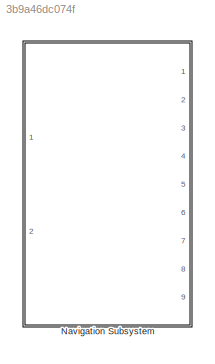
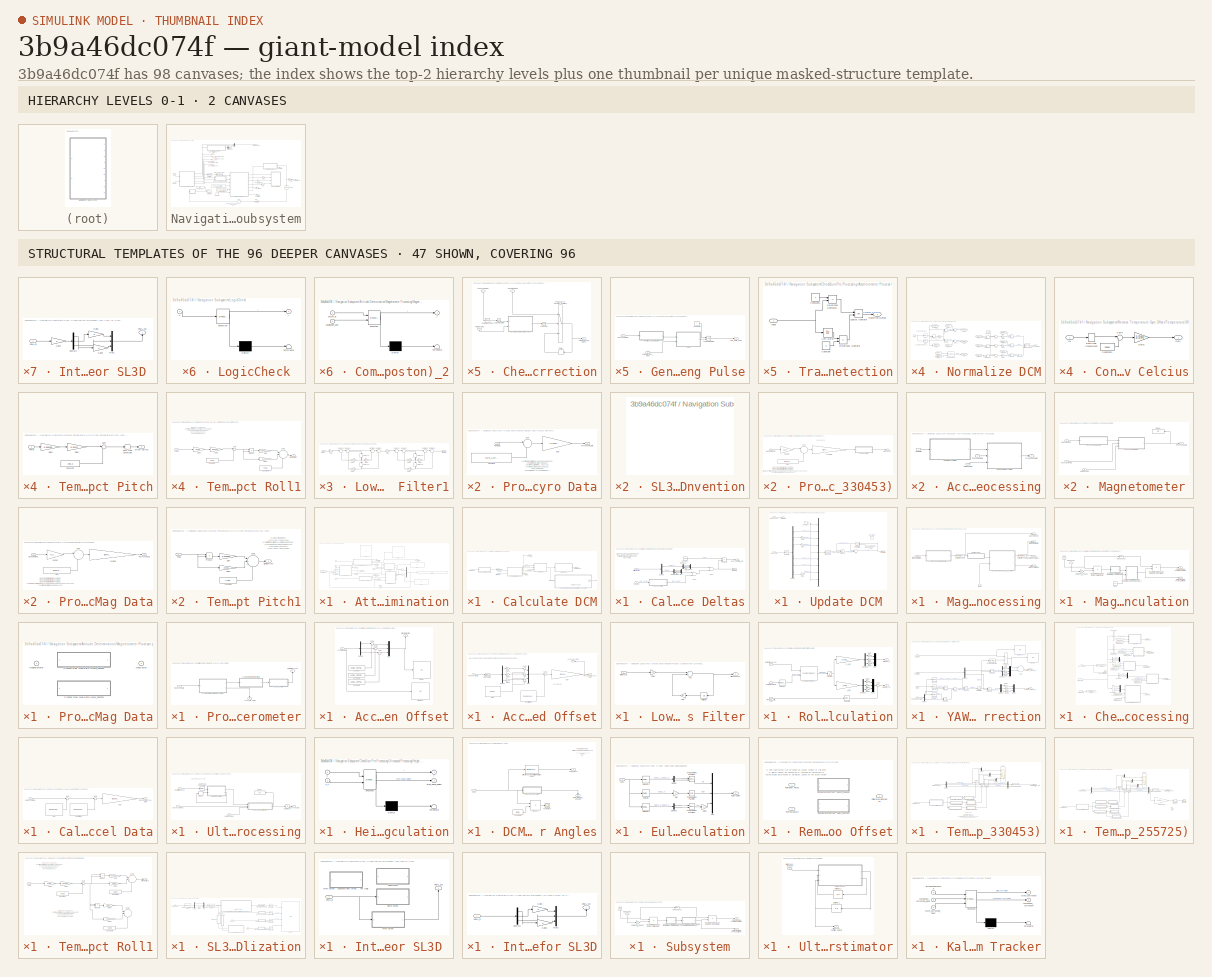
[diagram: thumbnail index - top-2 hierarchy levels (2 canvases) + 47 structural-template representatives of the remaining 96 canvases]
MODEL slx_3b9a46dc074f
KIND library
BLOCK [SubSystem] Navigation Subsystem
  Ports = [2, 9]
  RequestExecContextInheritance = off
BLOCK [Outport] Navigation Subsystem/Accel_Pre_NormOffset 
  IconDisplay = Port number
  Port = 9
BLOCK [SubSystem] Navigation Subsystem/Attitude Determination
  Ports = [6, 7]
  RequestExecContextInheritance = off
BLOCK [Outport] Navigation Subsystem/Attitude Determination/ Magnetometer XY Vector
  IconDisplay = Port number
  Port = 3
BLOCK [Inport] Navigation Subsystem/Attitude Determination/Accel
  IconDisplay = Port number
  OutDataTypeStr = uint16
  Port = 3
BLOCK [Outport] Navigation Subsystem/Attitude Determination/Accel_Pre_NormOffset
  IconDisplay = Port number
  Port = 7
BLOCK [Sum] Navigation Subsystem/Attitude Determination/Add
  InputSameDT = off
  OutDataTypeStr = Inherit: Inherit via internal rule
  Ports = [2, 1]
  SaturateOnIntegerOverflow = off
BLOCK [Sum] Navigation Subsystem/Attitude Determination/Add1
  InputSameDT = off
  OutDataTypeStr = Inherit: Inherit via internal rule
  Ports = [2, 1]
  SaturateOnIntegerOverflow = off
BLOCK [SubSystem] Navigation Subsystem/Attitude Determination/Calculate DCM
  Ports = [4, 3]
  RequestExecContextInheritance = off
BLOCK [SubSystem] Navigation Subsystem/Attitude Determination/Calculate DCM/Calculate Deltas
  Ports = [2, 2]
  RequestExecContextInheritance = off
BLOCK [Sum] Navigation Subsystem/Attitude Determination/Calculate DCM/Calculate Deltas/Add1
  InputSameDT = off
  OutDataTypeStr = Inherit: Inherit via internal rule
  Ports = [2, 1]
  SaturateOnIntegerOverflow = off
BLOCK [Sum] Navigation Subsystem/Attitude Determination/Calculate DCM/Calculate Deltas/Add2
  InputSameDT = off
  OutDataTypeStr = Inherit: Inherit via internal rule
  Ports = [2, 1]
  SaturateOnIntegerOverflow = off
BLOCK [Inport] Navigation Subsystem/Attitude Determination/Calculate DCM/Calculate Deltas/Adjusted
  IconDisplay = Port number
BLOCK [Constant] Navigation Subsystem/Attitude Determination/Calculate DCM/Calculate Deltas/Constant
  SampleTime = -1
  Value = 1/400
BLOCK [Demux] Navigation Subsystem/Attitude Determination/Calculate DCM/Calculate Deltas/Demux
  DisplayOption = bar
  Outputs = [3 3]
  Ports = [1, 2]
BLOCK [Demux] Navigation Subsystem/Attitude Determination/Calculate DCM/Calculate Deltas/Demux1
  DisplayOption = bar
  Outputs = 3
  Ports = [1, 3]
BLOCK [Demux] Navigation Subsystem/Attitude Determination/Calculate DCM/Calculate Deltas/Demux2
  DisplayOption = bar
  Outputs = 3
  Ports = [1, 3]
BLOCK [Inport] Navigation Subsystem/Attitude Determination/Calculate DCM/Calculate Deltas/DriftCorrection
  IconDisplay = Port number
  Port = 2
BLOCK [Gain] Navigation Subsystem/Attitude Determination/Calculate DCM/Calculate Deltas/Gain
  OutDataTypeStr = Inherit: Inherit via internal rule
  ParamDataTypeStr = Inherit: Inherit via internal rule
  SaturateOnIntegerOverflow = off
BLOCK [Gain] Navigation Subsystem/Attitude Determination/Calculate DCM/Calculate Deltas/Gain1
  OutDataTypeStr = Inherit: Inherit via internal rule
  ParamDataTypeStr = Inherit: Inherit via internal rule
  SaturateOnIntegerOverflow = off
BLOCK [Outport] Navigation Subsystem/Attitude Determination/Calculate DCM/Calculate Deltas/Gyro_Vector(G_Dt)
  IconDisplay = Port number
BLOCK [SubSystem] Navigation Subsystem/Attitude Determination/Calculate DCM/Calculate Deltas/Low Pass Filter1
  Ports = [1, 1]
  RequestExecContextInheritance = off
BLOCK [Delay] Navigation Subsystem/Attitude Determination/Calculate DCM/Calculate Deltas/Low Pass Filter1/Delay11
  DelayLength = 1
  InitialCondition = 0
  InputPortMap = u0
  Ports = [1, 1]
BLOCK [Delay] Navigation Subsystem/Attitude Determination/Calculate DCM/Calculate Deltas/Low Pass Filter1/Delay12
  DelayLength = 1
  InitialCondition = 0
  InputPortMap = u0
  Ports = [1, 1]
BLOCK [Delay] Navigation Subsystem/Attitude Determination/Calculate DCM/Calculate Deltas/Low Pass Filter1/Delay21
  DelayLength = 1
  InitialCondition = 0
  InputPortMap = u0
  Ports = [1, 1]
BLOCK [Delay] Navigation Subsystem/Attitude Determination/Calculate DCM/Calculate Deltas/Low Pass Filter1/Delay22
  DelayLength = 1
  InitialCondition = 0
  InputPortMap = u0
  Ports = [1, 1]
BLOCK [Inport] Navigation Subsystem/Attitude Determination/Calculate DCM/Calculate Deltas/Low Pass Filter1/Input
  IconDisplay = Port number
BLOCK [Outport] Navigation Subsystem/Attitude Determination/Calculate DCM/Calculate Deltas/Low Pass Filter1/Output
  IconDisplay = Port number
BLOCK [Sum] Navigation Subsystem/Attitude Determination/Calculate DCM/Calculate Deltas/Low Pass Filter1/SumA21
  IconShape = round
  InputSameDT = off
  Inputs = |+-
  Ports = [2, 1]
  RndMeth = Nearest
BLOCK [Sum] Navigation Subsystem/Attitude Determination/Calculate DCM/Calculate Deltas/Low Pass Filter1/SumA22
  IconShape = round
  InputSameDT = off
  Inputs = |+-
  Ports = [2, 1]
  RndMeth = Nearest
BLOCK [Sum] Navigation Subsystem/Attitude Determination/Calculate DCM/Calculate Deltas/Low Pass Filter1/SumA31
  IconShape = round
  InputSameDT = off
  Inputs = |+-
  Ports = [2, 1]
  RndMeth = Nearest
BLOCK [Sum] Navigation Subsystem/Attitude Determination/Calculate DCM/Calculate Deltas/Low Pass Filter1/SumA32
  IconShape = round
  InputSameDT = off
  Inputs = |+-
  Ports = [2, 1]
  RndMeth = Nearest
BLOCK [Sum] Navigation Subsystem/Attitude Determination/Calculate DCM/Calculate Deltas/Low Pass Filter1/SumB21
  IconShape = round
  InputSameDT = off
  Inputs = |++
  Ports = [2, 1]
  RndMeth = Nearest
BLOCK [Sum] Navigation Subsystem/Attitude Determination/Calculate DCM/Calculate Deltas/Low Pass Filter1/SumB22
  IconShape = round
  InputSameDT = off
  Inputs = |++
  Ports = [2, 1]
  RndMeth = Nearest
BLOCK [Sum] Navigation Subsystem/Attitude Determination/Calculate DCM/Calculate Deltas/Low Pass Filter1/SumB31
  IconShape = round
  InputSameDT = off
  Inputs = |++
  Ports = [2, 1]
  RndMeth = Nearest
BLOCK [Sum] Navigation Subsystem/Attitude Determination/Calculate DCM/Calculate Deltas/Low Pass Filter1/SumB32
  IconShape = round
  InputSameDT = off
  Inputs = |++
  Ports = [2, 1]
  RndMeth = Nearest
BLOCK [Gain] Navigation Subsystem/Attitude Determination/Calculate DCM/Calculate Deltas/Low Pass Filter1/a(2)(1)
  Gain = -1.2246464819911413
  ParamDataTypeStr = double
  RndMeth = Nearest
BLOCK [Gain] Navigation Subsystem/Attitude Determination/Calculate DCM/Calculate Deltas/Low Pass Filter1/a(2)(2)
  Gain = -1.3465055478176402
  ParamDataTypeStr = double
  RndMeth = Nearest
BLOCK [Gain] Navigation Subsystem/Attitude Determination/Calculate DCM/Calculate Deltas/Low Pass Filter1/a(3)(1)
  Gain = 0.42616417218876096
  ParamDataTypeStr = double
  RndMeth = Nearest
BLOCK [Gain] Navigation Subsystem/Attitude Determination/Calculate DCM/Calculate Deltas/Low Pass Filter1/a(3)(2)
  Gain = 0.77448341373041674
  ParamDataTypeStr = double
  RndMeth = Nearest
BLOCK [Gain] Navigation Subsystem/Attitude Determination/Calculate DCM/Calculate Deltas/Low Pass Filter1/b(2)(1)
  Gain = 0.98859289939093931
  ParamDataTypeStr = double
  RndMeth = Nearest
BLOCK [Gain] Navigation Subsystem/Attitude Determination/Calculate DCM/Calculate Deltas/Low Pass Filter1/b(2)(2)
  Gain = -0.57608730768019933
  ParamDataTypeStr = double
  RndMeth = Nearest
BLOCK [Gain] Navigation Subsystem/Attitude Determination/Calculate DCM/Calculate Deltas/Low Pass Filter1/s(1)
  Gain = 0.64277503697032301
  ParamDataTypeStr = double
  RndMeth = Nearest
BLOCK [Gain] Navigation Subsystem/Attitude Determination/Calculate DCM/Calculate Deltas/Low Pass Filter1/s(2)
  Gain = 0.031169178920745725
  ParamDataTypeStr = double
  RndMeth = Nearest
BLOCK [Mux] Navigation Subsystem/Attitude Determination/Calculate DCM/Calculate Deltas/Mux
  DisplayOption = bar
  Inputs = 3
  Ports = [3, 1]
BLOCK [Mux] Navigation Subsystem/Attitude Determination/Calculate DCM/Calculate Deltas/Mux1
  DisplayOption = bar
  Inputs = 3
  Ports = [3, 1]
BLOCK [Outport] Navigation Subsystem/Attitude Determination/Calculate DCM/Calculate Deltas/Omega
  IconDisplay = Port number
  Port = 2
BLOCK [Product] Navigation Subsystem/Attitude Determination/Calculate DCM/Calculate Deltas/Product1
  InputSameDT = off
  OutDataTypeStr = Inherit: Inherit via internal rule
  Ports = [2, 1]
  SaturateOnIntegerOverflow = off
BLOCK [Inport] Navigation Subsystem/Attitude Determination/Calculate DCM/DriftCorrection
  IconDisplay = Port number
  Port = 3
BLOCK [Outport] Navigation Subsystem/Attitude Determination/Calculate DCM/GyroFiltered
  IconDisplay = Port number
  Port = 3
BLOCK [SubSystem] Navigation Subsystem/Attitude Determination/Calculate DCM/Matrix Re-Order
  Commented = through
  ErrorFcn = Stateflow.Translate.translate
  PermitHierarchicalResolution = ExplicitOnly
  Ports = [1, 1]
  RequestExecContextInheritance = off
  SFBlockType = MATLAB Function
  TreatAsAtomicUnit = on
BLOCK [Demux] Navigation Subsystem/Attitude Determination/Calculate DCM/Matrix Re-Order/ Demux 
  Outputs = 1
  Ports = [1, 1]
BLOCK [S-Function] Navigation Subsystem/Attitude Determination/Calculate DCM/Matrix Re-Order/ SFunction 
  EnableBusSupport = off
  FunctionName = sf_sfun
  PortCounts = [1 2]
  Ports = [1, 2]
  Tag = Stateflow S-Function Navigation_Lib 1
BLOCK [Terminator] Navigation Subsystem/Attitude Determination/Calculate DCM/Matrix Re-Order/ Terminator 
BLOCK [Inport] Navigation Subsystem/Attitude Determination/Calculate DCM/Matrix Re-Order/M_in
  IconDisplay = Port number
BLOCK [Outport] Navigation Subsystem/Attitude Determination/Calculate DCM/Matrix Re-Order/M_out
  IconDisplay = Port number
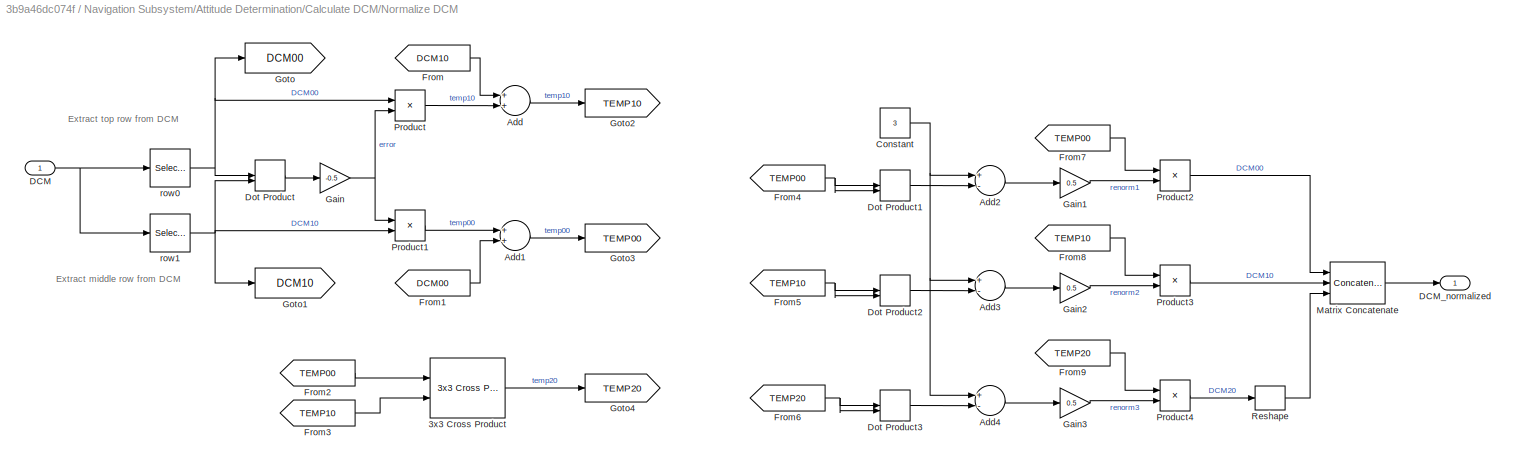
BLOCK [SubSystem] Navigation Subsystem/Attitude Determination/Calculate DCM/Normalize DCM
  Ports = [1, 1]
  RequestExecContextInheritance = off
  TreatAsAtomicUnit = on
BLOCK [Reference] Navigation Subsystem/Attitude Determination/Calculate DCM/Normalize DCM/3x3 Cross Product  REF=aerolibutil/3x3 Cross Product
  Ports = [2, 1]
  SourceBlock = aerolibutil/3x3 Cross Product
  SourceType = CrossProduct
BLOCK [Sum] Navigation Subsystem/Attitude Determination/Calculate DCM/Normalize DCM/Add
  InputSameDT = off
  OutDataTypeStr = Inherit: Inherit via internal rule
  Ports = [2, 1]
  SaturateOnIntegerOverflow = off
BLOCK [Sum] Navigation Subsystem/Attitude Determination/Calculate DCM/Normalize DCM/Add1
  InputSameDT = off
  OutDataTypeStr = Inherit: Inherit via internal rule
  Ports = [2, 1]
  SaturateOnIntegerOverflow = off
BLOCK [Sum] Navigation Subsystem/Attitude Determination/Calculate DCM/Normalize DCM/Add2
  InputSameDT = off
  Inputs = +-
  OutDataTypeStr = Inherit: Inherit via internal rule
  Ports = [2, 1]
  SaturateOnIntegerOverflow = off
BLOCK [Sum] Navigation Subsystem/Attitude Determination/Calculate DCM/Normalize DCM/Add3
  InputSameDT = off
  Inputs = +-
  OutDataTypeStr = Inherit: Inherit via internal rule
  Ports = [2, 1]
  SaturateOnIntegerOverflow = off
BLOCK [Sum] Navigation Subsystem/Attitude Determination/Calculate DCM/Normalize DCM/Add4
  InputSameDT = off
  Inputs = +-
  OutDataTypeStr = Inherit: Inherit via internal rule
  Ports = [2, 1]
  SaturateOnIntegerOverflow = off
BLOCK [Constant] Navigation Subsystem/Attitude Determination/Calculate DCM/Normalize DCM/Constant
  OutDataTypeStr = double
  SampleTime = -1
  Value = 3
BLOCK [Inport] Navigation Subsystem/Attitude Determination/Calculate DCM/Normalize DCM/DCM
  IconDisplay = Port number
  OutDataTypeStr = double
  PortDimensions = [3,3]
BLOCK [Outport] Navigation Subsystem/Attitude Determination/Calculate DCM/Normalize DCM/DCM_normalized
  IconDisplay = Port number
  OutDataTypeStr = double
BLOCK [DotProduct] Navigation Subsystem/Attitude Determination/Calculate DCM/Normalize DCM/Dot Product
  OutDataTypeStr = Inherit: Inherit via internal rule
BLOCK [DotProduct] Navigation Subsystem/Attitude Determination/Calculate DCM/Normalize DCM/Dot Product1
  OutDataTypeStr = Inherit: Inherit via internal rule
BLOCK [DotProduct] Navigation Subsystem/Attitude Determination/Calculate DCM/Normalize DCM/Dot Product2
  OutDataTypeStr = Inherit: Inherit via internal rule
BLOCK [DotProduct] Navigation Subsystem/Attitude Determination/Calculate DCM/Normalize DCM/Dot Product3
  OutDataTypeStr = Inherit: Inherit via internal rule
BLOCK [From] Navigation Subsystem/Attitude Determination/Calculate DCM/Normalize DCM/From
  GotoTag = DCM10
BLOCK [From] Navigation Subsystem/Attitude Determination/Calculate DCM/Normalize DCM/From1
  GotoTag = DCM00
BLOCK [From] Navigation Subsystem/Attitude Determination/Calculate DCM/Normalize DCM/From2
  GotoTag = TEMP00
BLOCK [From] Navigation Subsystem/Attitude Determination/Calculate DCM/Normalize DCM/From3
  GotoTag = TEMP10
BLOCK [From] Navigation Subsystem/Attitude Determination/Calculate DCM/Normalize DCM/From4
  GotoTag = TEMP00
BLOCK [From] Navigation Subsystem/Attitude Determination/Calculate DCM/Normalize DCM/From5
  GotoTag = TEMP10
BLOCK [From] Navigation Subsystem/Attitude Determination/Calculate DCM/Normalize DCM/From6
  GotoTag = TEMP20
BLOCK [From] Navigation Subsystem/Attitude Determination/Calculate DCM/Normalize DCM/From7
  GotoTag = TEMP00
BLOCK [From] Navigation Subsystem/Attitude Determination/Calculate DCM/Normalize DCM/From8
  GotoTag = TEMP10
BLOCK [From] Navigation Subsystem/Attitude Determination/Calculate DCM/Normalize DCM/From9
  GotoTag = TEMP20
BLOCK [Gain] Navigation Subsystem/Attitude Determination/Calculate DCM/Normalize DCM/Gain
  Gain = -0.5
  OutDataTypeStr = Inherit: Inherit via internal rule
  ParamDataTypeStr = Inherit: Inherit via internal rule
  SaturateOnIntegerOverflow = off
BLOCK [Gain] Navigation Subsystem/Attitude Determination/Calculate DCM/Normalize DCM/Gain1
  Gain = 0.5
  OutDataTypeStr = single
  ParamDataTypeStr = Inherit: Inherit via internal rule
  SaturateOnIntegerOverflow = off
BLOCK [Gain] Navigation Subsystem/Attitude Determination/Calculate DCM/Normalize DCM/Gain2
  Gain = 0.5
  OutDataTypeStr = single
  ParamDataTypeStr = Inherit: Inherit via internal rule
  SaturateOnIntegerOverflow = off
BLOCK [Gain] Navigation Subsystem/Attitude Determination/Calculate DCM/Normalize DCM/Gain3
  Gain = 0.5
  OutDataTypeStr = single
  ParamDataTypeStr = Inherit: Inherit via internal rule
  SaturateOnIntegerOverflow = off
BLOCK [Goto] Navigation Subsystem/Attitude Determination/Calculate DCM/Normalize DCM/Goto
  GotoTag = DCM00
BLOCK [Goto] Navigation Subsystem/Attitude Determination/Calculate DCM/Normalize DCM/Goto1
  GotoTag = DCM10
BLOCK [Goto] Navigation Subsystem/Attitude Determination/Calculate DCM/Normalize DCM/Goto2
  GotoTag = TEMP10
BLOCK [Goto] Navigation Subsystem/Attitude Determination/Calculate DCM/Normalize DCM/Goto3
  GotoTag = TEMP00
BLOCK [Goto] Navigation Subsystem/Attitude Determination/Calculate DCM/Normalize DCM/Goto4
  GotoTag = TEMP20
BLOCK [Concatenate] Navigation Subsystem/Attitude Determination/Calculate DCM/Normalize DCM/Matrix Concatenate
  Mode = Multidimensional array
  NumInputs = 3
  Ports = [3, 1]
BLOCK [Product] Navigation Subsystem/Attitude Determination/Calculate DCM/Normalize DCM/Product
  InputSameDT = off
  OutDataTypeStr = Inherit: Inherit via internal rule
  Ports = [2, 1]
  SaturateOnIntegerOverflow = off
BLOCK [Product] Navigation Subsystem/Attitude Determination/Calculate DCM/Normalize DCM/Product1
  InputSameDT = off
  OutDataTypeStr = Inherit: Inherit via internal rule
  Ports = [2, 1]
  SaturateOnIntegerOverflow = off
BLOCK [Product] Navigation Subsystem/Attitude Determination/Calculate DCM/Normalize DCM/Product2
  InputSameDT = off
  OutDataTypeStr = Inherit: Inherit via internal rule
  Ports = [2, 1]
  SaturateOnIntegerOverflow = off
BLOCK [Product] Navigation Subsystem/Attitude Determination/Calculate DCM/Normalize DCM/Product3
  InputSameDT = off
  OutDataTypeStr = Inherit: Inherit via internal rule
  Ports = [2, 1]
  SaturateOnIntegerOverflow = off
BLOCK [Product] Navigation Subsystem/Attitude Determination/Calculate DCM/Normalize DCM/Product4
  InputSameDT = off
  OutDataTypeStr = Inherit: Inherit via internal rule
  Ports = [2, 1]
  SaturateOnIntegerOverflow = off
BLOCK [Reshape] Navigation Subsystem/Attitude Determination/Calculate DCM/Normalize DCM/Reshape
  OutputDimensionality = Row vector (2-D)
  Ports = [1, 1]
BLOCK [Selector] Navigation Subsystem/Attitude Determination/Calculate DCM/Normalize DCM/row0
  IndexMode = Zero-based
  IndexOptions = Index vector (dialog),Index vector (dialog)
  Indices = 0,[0:2]
  InputPortWidth = 3
  NumberOfDimensions = 2
  OutputSizes = 1,1
  Ports = [1, 1]
BLOCK [Selector] Navigation Subsystem/Attitude Determination/Calculate DCM/Normalize DCM/row1
  IndexMode = Zero-based
  IndexOptions = Index vector (dialog),Index vector (dialog)
  Indices = 1,[0:2]
  InputPortWidth = 3
  NumberOfDimensions = 2
  OutputSizes = 1,1
  Ports = [1, 1]
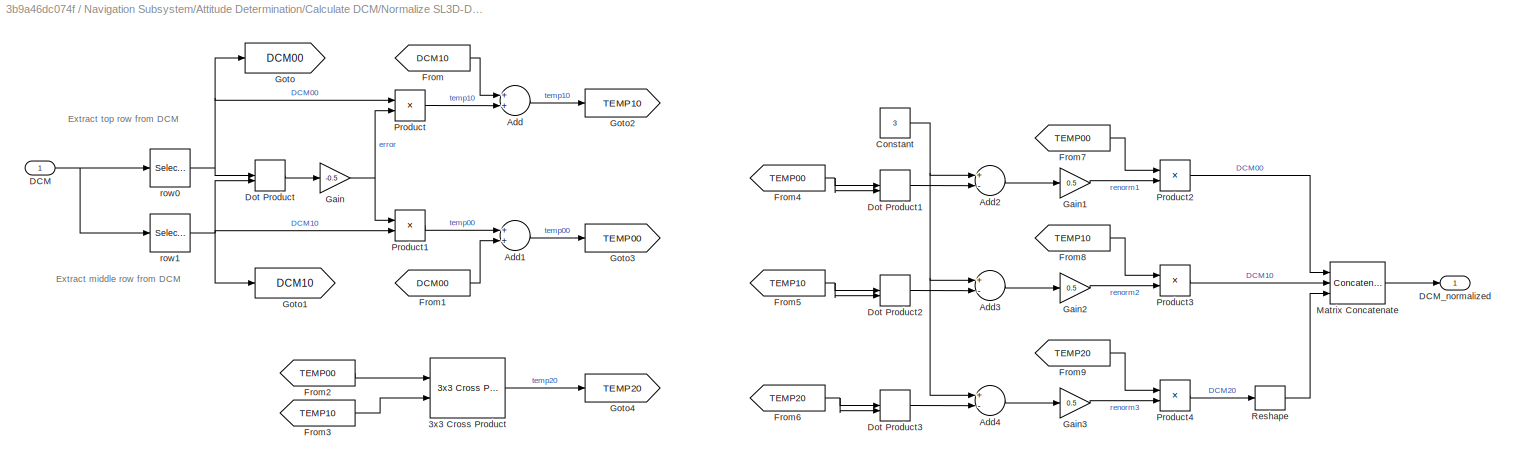
BLOCK [SubSystem] Navigation Subsystem/Attitude Determination/Calculate DCM/Normalize SL3D-DCM
  Commented = through
  Ports = [1, 1]
  RequestExecContextInheritance = off
  TreatAsAtomicUnit = on
BLOCK [Reference] Navigation Subsystem/Attitude Determination/Calculate DCM/Normalize SL3D-DCM/3x3 Cross Product  REF=aerolibutil/3x3 Cross Product
  Ports = [2, 1]
  SourceBlock = aerolibutil/3x3 Cross Product
  SourceType = CrossProduct
BLOCK [Sum] Navigation Subsystem/Attitude Determination/Calculate DCM/Normalize SL3D-DCM/Add
  InputSameDT = off
  OutDataTypeStr = Inherit: Inherit via internal rule
  Ports = [2, 1]
  SaturateOnIntegerOverflow = off
BLOCK [Sum] Navigation Subsystem/Attitude Determination/Calculate DCM/Normalize SL3D-DCM/Add1
  InputSameDT = off
  OutDataTypeStr = Inherit: Inherit via internal rule
  Ports = [2, 1]
  SaturateOnIntegerOverflow = off
BLOCK [Sum] Navigation Subsystem/Attitude Determination/Calculate DCM/Normalize SL3D-DCM/Add2
  InputSameDT = off
  Inputs = +-
  OutDataTypeStr = Inherit: Inherit via internal rule
  Ports = [2, 1]
  SaturateOnIntegerOverflow = off
BLOCK [Sum] Navigation Subsystem/Attitude Determination/Calculate DCM/Normalize SL3D-DCM/Add3
  InputSameDT = off
  Inputs = +-
  OutDataTypeStr = Inherit: Inherit via internal rule
  Ports = [2, 1]
  SaturateOnIntegerOverflow = off
BLOCK [Sum] Navigation Subsystem/Attitude Determination/Calculate DCM/Normalize SL3D-DCM/Add4
  InputSameDT = off
  Inputs = +-
  OutDataTypeStr = Inherit: Inherit via internal rule
  Ports = [2, 1]
  SaturateOnIntegerOverflow = off
BLOCK [Constant] Navigation Subsystem/Attitude Determination/Calculate DCM/Normalize SL3D-DCM/Constant
  OutDataTypeStr = double
  SampleTime = -1
  Value = 3
BLOCK [Inport] Navigation Subsystem/Attitude Determination/Calculate DCM/Normalize SL3D-DCM/DCM
  IconDisplay = Port number
  OutDataTypeStr = double
  PortDimensions = [3,3]
BLOCK [Outport] Navigation Subsystem/Attitude Determination/Calculate DCM/Normalize SL3D-DCM/DCM_normalized
  IconDisplay = Port number
  OutDataTypeStr = double
BLOCK [DotProduct] Navigation Subsystem/Attitude Determination/Calculate DCM/Normalize SL3D-DCM/Dot Product
  OutDataTypeStr = Inherit: Inherit via internal rule
BLOCK [DotProduct] Navigation Subsystem/Attitude Determination/Calculate DCM/Normalize SL3D-DCM/Dot Product1
  OutDataTypeStr = Inherit: Inherit via internal rule
BLOCK [DotProduct] Navigation Subsystem/Attitude Determination/Calculate DCM/Normalize SL3D-DCM/Dot Product2
  OutDataTypeStr = Inherit: Inherit via internal rule
BLOCK [DotProduct] Navigation Subsystem/Attitude Determination/Calculate DCM/Normalize SL3D-DCM/Dot Product3
  OutDataTypeStr = Inherit: Inherit via internal rule
BLOCK [From] Navigation Subsystem/Attitude Determination/Calculate DCM/Normalize SL3D-DCM/From
  GotoTag = DCM10
BLOCK [From] Navigation Subsystem/Attitude Determination/Calculate DCM/Normalize SL3D-DCM/From1
  GotoTag = DCM00
BLOCK [From] Navigation Subsystem/Attitude Determination/Calculate DCM/Normalize SL3D-DCM/From2
  GotoTag = TEMP00
BLOCK [From] Navigation Subsystem/Attitude Determination/Calculate DCM/Normalize SL3D-DCM/From3
  GotoTag = TEMP10
BLOCK [From] Navigation Subsystem/Attitude Determination/Calculate DCM/Normalize SL3D-DCM/From4
  GotoTag = TEMP00
BLOCK [From] Navigation Subsystem/Attitude Determination/Calculate DCM/Normalize SL3D-DCM/From5
  GotoTag = TEMP10
BLOCK [From] Navigation Subsystem/Attitude Determination/Calculate DCM/Normalize SL3D-DCM/From6
  GotoTag = TEMP20
BLOCK [From] Navigation Subsystem/Attitude Determination/Calculate DCM/Normalize SL3D-DCM/From7
  GotoTag = TEMP00
BLOCK [From] Navigation Subsystem/Attitude Determination/Calculate DCM/Normalize SL3D-DCM/From8
  GotoTag = TEMP10
BLOCK [From] Navigation Subsystem/Attitude Determination/Calculate DCM/Normalize SL3D-DCM/From9
  GotoTag = TEMP20
BLOCK [Gain] Navigation Subsystem/Attitude Determination/Calculate DCM/Normalize SL3D-DCM/Gain
  Gain = -0.5
  OutDataTypeStr = Inherit: Inherit via internal rule
  ParamDataTypeStr = Inherit: Inherit via internal rule
  SaturateOnIntegerOverflow = off
BLOCK [Gain] Navigation Subsystem/Attitude Determination/Calculate DCM/Normalize SL3D-DCM/Gain1
  Gain = 0.5
  OutDataTypeStr = single
  ParamDataTypeStr = Inherit: Inherit via internal rule
  SaturateOnIntegerOverflow = off
BLOCK [Gain] Navigation Subsystem/Attitude Determination/Calculate DCM/Normalize SL3D-DCM/Gain2
  Gain = 0.5
  OutDataTypeStr = single
  ParamDataTypeStr = Inherit: Inherit via internal rule
  SaturateOnIntegerOverflow = off
BLOCK [Gain] Navigation Subsystem/Attitude Determination/Calculate DCM/Normalize SL3D-DCM/Gain3
  Gain = 0.5
  OutDataTypeStr = single
  ParamDataTypeStr = Inherit: Inherit via internal rule
  SaturateOnIntegerOverflow = off
BLOCK [Goto] Navigation Subsystem/Attitude Determination/Calculate DCM/Normalize SL3D-DCM/Goto
  GotoTag = DCM00
BLOCK [Goto] Navigation Subsystem/Attitude Determination/Calculate DCM/Normalize SL3D-DCM/Goto1
  GotoTag = DCM10
BLOCK [Goto] Navigation Subsystem/Attitude Determination/Calculate DCM/Normalize SL3D-DCM/Goto2
  GotoTag = TEMP10
BLOCK [Goto] Navigation Subsystem/Attitude Determination/Calculate DCM/Normalize SL3D-DCM/Goto3
  GotoTag = TEMP00
BLOCK [Goto] Navigation Subsystem/Attitude Determination/Calculate DCM/Normalize SL3D-DCM/Goto4
  GotoTag = TEMP20
BLOCK [Concatenate] Navigation Subsystem/Attitude Determination/Calculate DCM/Normalize SL3D-DCM/Matrix Concatenate
  Mode = Multidimensional array
  NumInputs = 3
  Ports = [3, 1]
BLOCK [Product] Navigation Subsystem/Attitude Determination/Calculate DCM/Normalize SL3D-DCM/Product
  InputSameDT = off
  OutDataTypeStr = Inherit: Inherit via internal rule
  Ports = [2, 1]
  SaturateOnIntegerOverflow = off
BLOCK [Product] Navigation Subsystem/Attitude Determination/Calculate DCM/Normalize SL3D-DCM/Product1
  InputSameDT = off
  OutDataTypeStr = Inherit: Inherit via internal rule
  Ports = [2, 1]
  SaturateOnIntegerOverflow = off
BLOCK [Product] Navigation Subsystem/Attitude Determination/Calculate DCM/Normalize SL3D-DCM/Product2
  InputSameDT = off
  OutDataTypeStr = Inherit: Inherit via internal rule
  Ports = [2, 1]
  SaturateOnIntegerOverflow = off
BLOCK [Product] Navigation Subsystem/Attitude Determination/Calculate DCM/Normalize SL3D-DCM/Product3
  InputSameDT = off
  OutDataTypeStr = Inherit: Inherit via internal rule
  Ports = [2, 1]
  SaturateOnIntegerOverflow = off
BLOCK [Product] Navigation Subsystem/Attitude Determination/Calculate DCM/Normalize SL3D-DCM/Product4
  InputSameDT = off
  OutDataTypeStr = Inherit: Inherit via internal rule
  Ports = [2, 1]
  SaturateOnIntegerOverflow = off
BLOCK [Reshape] Navigation Subsystem/Attitude Determination/Calculate DCM/Normalize SL3D-DCM/Reshape
  OutputDimensionality = Row vector (2-D)
  Ports = [1, 1]
BLOCK [Selector] Navigation Subsystem/Attitude Determination/Calculate DCM/Normalize SL3D-DCM/row0
  IndexMode = Zero-based
  IndexOptions = Index vector (dialog),Index vector (dialog)
  Indices = 0,[0:2]
  InputPortWidth = 3
  NumberOfDimensions = 2
  OutputSizes = 1,1
  Ports = [1, 1]
BLOCK [Selector] Navigation Subsystem/Attitude Determination/Calculate DCM/Normalize SL3D-DCM/row1
  IndexMode = Zero-based
  IndexOptions = Index vector (dialog),Index vector (dialog)
  Indices = 1,[0:2]
  InputPortWidth = 3
  NumberOfDimensions = 2
  OutputSizes = 1,1
  Ports = [1, 1]
BLOCK [Outport] Navigation Subsystem/Attitude Determination/Calculate DCM/Normalized DCM
  IconDisplay = Port number
  Port = 2
BLOCK [Inport] Navigation Subsystem/Attitude Determination/Calculate DCM/Omega_Vector
  IconDisplay = Port number
BLOCK [SubSystem] Navigation Subsystem/Attitude Determination/Calculate DCM/Process Raw Rate Gyro Data
  Ports = [1, 1]
  RequestExecContextInheritance = off
BLOCK [Constant] Navigation Subsystem/Attitude Determination/Calculate DCM/Process Raw Rate Gyro Data/Constant1
  Commented = on
  Value = [gyro_x_offset, gyro_y_offset, gyro_z_offset]
BLOCK [Gain] Navigation Subsystem/Attitude Determination/Calculate DCM/Process Raw Rate Gyro Data/Gain
  Gain = [0.0609, 0.0609, 0.0609*1]
  OutDataTypeStr = Inherit: Inherit via internal rule
  ParamDataTypeStr = Inherit: Inherit via internal rule
  SaturateOnIntegerOverflow = off
BLOCK [Outport] Navigation Subsystem/Attitude Determination/Calculate DCM/Process Raw Rate Gyro Data/Processed Data
  IconDisplay = Port number
BLOCK [Inport] Navigation Subsystem/Attitude Determination/Calculate DCM/Process Raw Rate Gyro Data/Raw Data
  IconDisplay = Port number
BLOCK [Sum] Navigation Subsystem/Attitude Determination/Calculate DCM/Process Raw Rate Gyro Data/Sum
  IconShape = round
  InputSameDT = off
  Inputs = |++
  OutDataTypeStr = Inherit: Inherit via internal rule
  Ports = [2, 1]
  SaturateOnIntegerOverflow = off
BLOCK [Inport] Navigation Subsystem/Attitude Determination/Calculate DCM/Raw Gyro Data
  IconDisplay = Port number
  Port = 2
BLOCK [Inport] Navigation Subsystem/Attitude Determination/Calculate DCM/Reset_Integrator 
  IconDisplay = Port number
  Port = 4
BLOCK [SubSystem] Navigation Subsystem/Attitude Determination/Calculate DCM/SL3D DCM Output - used to adjust axes to fit wit SL3D convention
  Ports = []
  RequestExecContextInheritance = off
BLOCK [Outport] Navigation Subsystem/Attitude Determination/Calculate DCM/SL3D_DCM
  IconDisplay = Port number
BLOCK [Terminator] Navigation Subsystem/Attitude Determination/Calculate DCM/Terminator
BLOCK [SubSystem] Navigation Subsystem/Attitude Determination/Calculate DCM/Update DCM
  Ports = [3, 1]
  RequestExecContextInheritance = off
  TreatAsAtomicUnit = on
  VariantControl = UncorrectedMode
BLOCK [Sum] Navigation Subsystem/Attitude Determination/Calculate DCM/Update DCM/Add
  InputSameDT = off
  OutDataTypeStr = Inherit: Inherit via internal rule
  Ports = [2, 1]
  SaturateOnIntegerOverflow = off
BLOCK [Constant] Navigation Subsystem/Attitude Determination/Calculate DCM/Update DCM/Constant
  OutDataTypeStr = double
  SampleTime = 1/400
  Value = 0
BLOCK [Constant] Navigation Subsystem/Attitude Determination/Calculate DCM/Update DCM/Constant1
  Commented = on
  SampleTime = -1
  Value = 0
BLOCK [Outport] Navigation Subsystem/Attitude Determination/Calculate DCM/Update DCM/DCM Matrix
  IconDisplay = Port number
  PortDimensions = [3,3]
BLOCK [Demux] Navigation Subsystem/Attitude Determination/Calculate DCM/Update DCM/Demux
  DisplayOption = bar
  Outputs = 6
  Ports = [1, 6]
BLOCK [Gain] Navigation Subsystem/Attitude Determination/Calculate DCM/Update DCM/Gain
  Gain = -1
  OutDataTypeStr = Inherit: Inherit via internal rule
  ParamDataTypeStr = Inherit: Inherit via internal rule
  SaturateOnIntegerOverflow = off
BLOCK [Gain] Navigation Subsystem/Attitude Determination/Calculate DCM/Update DCM/Gain1
  Gain = -1
  OutDataTypeStr = Inherit: Inherit via internal rule
  ParamDataTypeStr = Inherit: Inherit via internal rule
  SaturateOnIntegerOverflow = off
BLOCK [Gain] Navigation Subsystem/Attitude Determination/Calculate DCM/Update DCM/Gain2
  Gain = -1
  OutDataTypeStr = Inherit: Inherit via internal rule
  ParamDataTypeStr = Inherit: Inherit via internal rule
  SaturateOnIntegerOverflow = off
BLOCK [Inport] Navigation Subsystem/Attitude Determination/Calculate DCM/Update DCM/Gyro vector
  IconDisplay = Port number
  Port = 2
BLOCK [Mux] Navigation Subsystem/Attitude Determination/Calculate DCM/Update DCM/Mux
  DisplayOption = bar
  Inputs = 9
  Ports = [9, 1]
BLOCK [Inport] Navigation Subsystem/Attitude Determination/Calculate DCM/Update DCM/Omega vector
  IconDisplay = Port number
BLOCK [Product] Navigation Subsystem/Attitude Determination/Calculate DCM/Update DCM/Product
  InputSameDT = off
  Multiplication = Matrix(*)
  OutDataTypeStr = Inherit: Inherit via internal rule
  Ports = [2, 1]
  SaturateOnIntegerOverflow = off
BLOCK [Inport] Navigation Subsystem/Attitude Determination/Calculate DCM/Update DCM/Reset_Integrator 
  IconDisplay = Port number
  Port = 3
BLOCK [Reshape] Navigation Subsystem/Attitude Determination/Calculate DCM/Update DCM/Reshape
  OutputDimensionality = Customize
  OutputDimensions = [3,3]
  Ports = [1, 1]
BLOCK [Selector] Navigation Subsystem/Attitude Determination/Calculate DCM/Update DCM/Selector1
  Indices = [3 2 3 1 2 1]
  InputPortWidth = 3
  Ports = [1, 1]
BLOCK [Terminator] Navigation Subsystem/Attitude Determination/Calculate DCM/Update DCM/Terminator
BLOCK [Reference] Navigation Subsystem/Attitude Determination/Calculate DCM/Update DCM/Unit Delay Resettable  REF=simulink/Additional Math
& Discrete/Additional
Discrete/Unit Delay
Resettable
  Ports = [2, 1]
  SourceBlock = simulink/Additional Math\n& Discrete/Additional\nDiscrete/Unit Delay\nResettable
  SourceType = Unit Delay Resettable
  tsamp = -1
  vinit = eye(3,3)
BLOCK [Gain] Navigation Subsystem/Attitude Determination/Calculate DCM/deg2rad
  Gain = pi/180
  OutDataTypeStr = Inherit: Inherit via internal rule
  ParamDataTypeStr = Inherit: Inherit via internal rule
  SaturateOnIntegerOverflow = off
BLOCK [Inport] Navigation Subsystem/Attitude Determination/D_gains
  IconDisplay = Port number
  Port = 5
BLOCK [Constant] Navigation Subsystem/Attitude Determination/Disable Drift Correction
  Value = [0 0 0 0 0 0]
BLOCK [Display] Navigation Subsystem/Attitude Determination/Display1
  Decimation = 1
  Ports = [1]
BLOCK [Display] Navigation Subsystem/Attitude Determination/Display2
  Decimation = 1
  Ports = [1]
BLOCK [Display] Navigation Subsystem/Attitude Determination/Display3
  Decimation = 1
  Ports = [1]
BLOCK [Display] Navigation Subsystem/Attitude Determination/Display4
  Decimation = 1
  Ports = [1]
BLOCK [Display] Navigation Subsystem/Attitude Determination/Display5
  Decimation = 1
  Ports = [1]
BLOCK [Ground] Navigation Subsystem/Attitude Determination/Ground
BLOCK [Outport] Navigation Subsystem/Attitude Determination/GyroFiltered
  IconDisplay = Port number
  Port = 5
BLOCK [Inport] Navigation Subsystem/Attitude Determination/Mag
  IconDisplay = Port number
  PortDimensions = 3
BLOCK [SubSystem] Navigation Subsystem/Attitude Determination/Magnetometer Processing
  Ports = [2, 4]
  RequestExecContextInheritance = off
BLOCK [Inport] Navigation Subsystem/Attitude Determination/Magnetometer Processing/DCM
  IconDisplay = Port number
  Port = 2
BLOCK [Outport] Navigation Subsystem/Attitude Determination/Magnetometer Processing/Mag Vector Projected on XY (Body)
  IconDisplay = Port number
BLOCK [Outport] Navigation Subsystem/Attitude Determination/Magnetometer Processing/Mag Vector Projected on XY (Global)
  IconDisplay = Port number
  Port = 2
BLOCK [SubSystem] Navigation Subsystem/Attitude Determination/Magnetometer Processing/Magnetometer Heading Calculation
  Ports = [2, 2]
  RequestExecContextInheritance = off
BLOCK [SubSystem] Navigation Subsystem/Attitude Determination/Magnetometer Processing/Magnetometer Heading Calculation/Compensate for Magnetic Declination (~60 degrees in Boston)_
  Commented = through
  ErrorFcn = Stateflow.Translate.translate
  PermitHierarchicalResolution = ExplicitOnly
  Ports = [1, 1]
  RequestExecContextInheritance = off
  SFBlockType = MATLAB Function
  TreatAsAtomicUnit = on
BLOCK [Demux] Navigation Subsystem/Attitude Determination/Magnetometer Processing/Magnetometer Heading Calculation/Compensate for Magnetic Declination (~60 degrees in Boston)_/ Demux 
  Outputs = 1
  Ports = [1, 1]
BLOCK [S-Function] Navigation Subsystem/Attitude Determination/Magnetometer Processing/Magnetometer Heading Calculation/Compensate for Magnetic Declination (~60 degrees in Boston)_/ SFunction 
  EnableBusSupport = off
  FunctionName = sf_sfun
  PortCounts = [1 2]
  Ports = [1, 2]
  Tag = Stateflow S-Function Navigation_Lib 2
BLOCK [Terminator] Navigation Subsystem/Attitude Determination/Magnetometer Processing/Magnetometer Heading Calculation/Compensate for Magnetic Declination (~60 degrees in Boston)_/ Terminator 
BLOCK [Inport] Navigation Subsystem/Attitude Determination/Magnetometer Processing/Magnetometer Heading Calculation/Compensate for Magnetic Declination (~60 degrees in Boston)_/vector_in
  IconDisplay = Port number
BLOCK [Outport] Navigation Subsystem/Attitude Determination/Magnetometer Processing/Magnetometer Heading Calculation/Compensate for Magnetic Declination (~60 degrees in Boston)_/y
  IconDisplay = Port number
BLOCK [SubSystem] Navigation Subsystem/Attitude Determination/Magnetometer Processing/Magnetometer Heading Calculation/Compensate for Magnetic Declination (~67 degrees in Boston)_2
  ErrorFcn = Stateflow.Translate.translate
  PermitHierarchicalResolution = ExplicitOnly
  Ports = [2, 1]
  RequestExecContextInheritance = off
  SFBlockType = MATLAB Function
  TreatAsAtomicUnit = on
BLOCK [Demux] Navigation Subsystem/Attitude Determination/Magnetometer Processing/Magnetometer Heading Calculation/Compensate for Magnetic Declination (~67 degrees in Boston)_2/ Demux 
  Outputs = 1
  Ports = [1, 1]
BLOCK [S-Function] Navigation Subsystem/Attitude Determination/Magnetometer Processing/Magnetometer Heading Calculation/Compensate for Magnetic Declination (~67 degrees in Boston)_2/ SFunction 
  EnableBusSupport = off
  FunctionName = sf_sfun
  PortCounts = [2 2]
  Ports = [2, 2]
  Tag = Stateflow S-Function Navigation_Lib 3
BLOCK [Terminator] Navigation Subsystem/Attitude Determination/Magnetometer Processing/Magnetometer Heading Calculation/Compensate for Magnetic Declination (~67 degrees in Boston)_2/ Terminator 
BLOCK [Inport] Navigation Subsystem/Attitude Determination/Magnetometer Processing/Magnetometer Heading Calculation/Compensate for Magnetic Declination (~67 degrees in Boston)_2/declination_ang
  IconDisplay = Port number
  Port = 2
BLOCK [Inport] Navigation Subsystem/Attitude Determination/Magnetometer Processing/Magnetometer Heading Calculation/Compensate for Magnetic Declination (~67 degrees in Boston)_2/vector_in
  IconDisplay = Port number
BLOCK [Outport] Navigation Subsystem/Attitude Determination/Magnetometer Processing/Magnetometer Heading Calculation/Compensate for Magnetic Declination (~67 degrees in Boston)_2/y
  IconDisplay = Port number
BLOCK [Inport] Navigation Subsystem/Attitude Determination/Magnetometer Processing/Magnetometer Heading Calculation/DCM
  IconDisplay = Port number
  Port = 2
BLOCK [Gain] Navigation Subsystem/Attitude Determination/Magnetometer Processing/Magnetometer Heading Calculation/EnlargeVectorAgain
  Commented = through
  Gain = 3
  OutDataTypeStr = Inherit: Inherit via internal rule
  ParamDataTypeStr = Inherit: Inherit via internal rule
  SaturateOnIntegerOverflow = off
BLOCK [Inport] Navigation Subsystem/Attitude Determination/Magnetometer Processing/Magnetometer Heading Calculation/MagVector
  IconDisplay = Port number
BLOCK [Outport] Navigation Subsystem/Attitude Determination/Magnetometer Processing/Magnetometer Heading Calculation/Projected Mag Vector (body frame)
  IconDisplay = Port number
BLOCK [Outport] Navigation Subsystem/Attitude Determination/Magnetometer Processing/Magnetometer Heading Calculation/Projected Mag Vector (global frame)
  IconDisplay = Port number
  Port = 2
BLOCK [Product] Navigation Subsystem/Attitude Determination/Magnetometer Processing/Magnetometer Heading Calculation/Transform MagVector from Body Frame to World Frame
  InputSameDT = off
  Multiplication = Matrix(*)
  OutDataTypeStr = Inherit: Inherit via internal rule
  Ports = [2, 1]
  RndMeth = Floor
  SaturateOnIntegerOverflow = off
BLOCK [Product] Navigation Subsystem/Attitude Determination/Magnetometer Processing/Magnetometer Heading Calculation/Transform compensated magnetic vector into the  body frame
  InputSameDT = off
  Multiplication = Matrix(*)
  OutDataTypeStr = Inherit: Inherit via internal rule
  Ports = [2, 1]
  RndMeth = Floor
  SaturateOnIntegerOverflow = off
BLOCK [Reference] Navigation Subsystem/Attitude Determination/Magnetometer Processing/Magnetometer Heading Calculation/Transpose2  REF=dspmtrx3/Transpose
  Hermitian = off
  Ports = [1, 1]
  SourceBlock = dspmtrx3/Transpose
  SourceType = Transpose
  overflowFlag = off
BLOCK [Constant] Navigation Subsystem/Attitude Determination/Magnetometer Processing/Magnetometer Heading Calculation/deg
  Value = 67
BLOCK [Inport] Navigation Subsystem/Attitude Determination/Magnetometer Processing/Magnetometer Measurement
  IconDisplay = Port number
BLOCK [Reference] Navigation Subsystem/Attitude Determination/Magnetometer Processing/Normalize Vector  REF=vrlib/Utilities/Normalize Vector
  Ports = [1, 1]
  SourceBlock = vrlib/Utilities/Normalize Vector
  SourceType = Normalize Vector
  maxzero = 0
BLOCK [Reference] Navigation Subsystem/Attitude Determination/Magnetometer Processing/Normalize Vector1  REF=vrlib/Utilities/Normalize Vector
  Ports = [1, 1]
  SourceBlock = vrlib/Utilities/Normalize Vector
  SourceType = Normalize Vector
  maxzero = 0
BLOCK [Outport] Navigation Subsystem/Attitude Determination/Magnetometer Processing/Normalized  Magnetometer
  IconDisplay = Port number
  Port = 4
BLOCK [Outport] Navigation Subsystem/Attitude Determination/Magnetometer Processing/Normalized XY Magnetometer
  IconDisplay = Port number
  Port = 3
BLOCK [SubSystem] Navigation Subsystem/Attitude Determination/Magnetometer Processing/Process Raw Mag Data
  OverrideUsingVariant = TempProcessVariant==1
  Ports = [1, 1]
  RequestExecContextInheritance = off
  Variant = on
BLOCK [Outport] Navigation Subsystem/Attitude Determination/Magnetometer Processing/Process Raw Mag Data/MagVector
  IconDisplay = Port number
BLOCK [Inport] Navigation Subsystem/Attitude Determination/Magnetometer Processing/Process Raw Mag Data/Magnetometer
  IconDisplay = Port number
BLOCK [SubSystem] Navigation Subsystem/Attitude Determination/Magnetometer Processing/Process Raw Mag Data/Process Raw Mag Data (Home_330453)
  Ports = [1, 1]
  RequestExecContextInheritance = off
  VariantControl = TempProcessVariant==1
BLOCK [Constant] Navigation Subsystem/Attitude Determination/Magnetometer Processing/Process Raw Mag Data/Process Raw Mag Data (Home_330453)/Bias
  Value = [-23 4.3 1.44]
BLOCK [SubSystem] Navigation Subsystem/Attitude Determination/Magnetometer Processing/Process Raw Mag Data/Process Raw Mag Data (Home_330453)/Low Pass Filter1
  Commented = through
  Ports = [1, 1]
  RequestExecContextInheritance = off
BLOCK [Delay] Navigation Subsystem/Attitude Determination/Magnetometer Processing/Process Raw Mag Data/Process Raw Mag Data (Home_330453)/Low Pass Filter1/Delay11
  DelayLength = 1
  InitialCondition = 0
  InputPortMap = u0
  Ports = [1, 1]
BLOCK [Delay] Navigation Subsystem/Attitude Determination/Magnetometer Processing/Process Raw Mag Data/Process Raw Mag Data (Home_330453)/Low Pass Filter1/Delay12
  DelayLength = 1
  InitialCondition = 0
  InputPortMap = u0
  Ports = [1, 1]
BLOCK [Delay] Navigation Subsystem/Attitude Determination/Magnetometer Processing/Process Raw Mag Data/Process Raw Mag Data (Home_330453)/Low Pass Filter1/Delay21
  DelayLength = 1
  InitialCondition = 0
  InputPortMap = u0
  Ports = [1, 1]
BLOCK [Delay] Navigation Subsystem/Attitude Determination/Magnetometer Processing/Process Raw Mag Data/Process Raw Mag Data (Home_330453)/Low Pass Filter1/Delay22
  DelayLength = 1
  InitialCondition = 0
  InputPortMap = u0
  Ports = [1, 1]
BLOCK [Inport] Navigation Subsystem/Attitude Determination/Magnetometer Processing/Process Raw Mag Data/Process Raw Mag Data (Home_330453)/Low Pass Filter1/Input
  IconDisplay = Port number
BLOCK [Outport] Navigation Subsystem/Attitude Determination/Magnetometer Processing/Process Raw Mag Data/Process Raw Mag Data (Home_330453)/Low Pass Filter1/Output
  IconDisplay = Port number
BLOCK [Sum] Navigation Subsystem/Attitude Determination/Magnetometer Processing/Process Raw Mag Data/Process Raw Mag Data (Home_330453)/Low Pass Filter1/SumA21
  IconShape = round
  InputSameDT = off
  Inputs = |+-
  Ports = [2, 1]
  RndMeth = Nearest
BLOCK [Sum] Navigation Subsystem/Attitude Determination/Magnetometer Processing/Process Raw Mag Data/Process Raw Mag Data (Home_330453)/Low Pass Filter1/SumA22
  IconShape = round
  InputSameDT = off
  Inputs = |+-
  Ports = [2, 1]
  RndMeth = Nearest
BLOCK [Sum] Navigation Subsystem/Attitude Determination/Magnetometer Processing/Process Raw Mag Data/Process Raw Mag Data (Home_330453)/Low Pass Filter1/SumA31
  IconShape = round
  InputSameDT = off
  Inputs = |+-
  Ports = [2, 1]
  RndMeth = Nearest
BLOCK [Sum] Navigation Subsystem/Attitude Determination/Magnetometer Processing/Process Raw Mag Data/Process Raw Mag Data (Home_330453)/Low Pass Filter1/SumA32
  IconShape = round
  InputSameDT = off
  Inputs = |+-
  Ports = [2, 1]
  RndMeth = Nearest
BLOCK [Sum] Navigation Subsystem/Attitude Determination/Magnetometer Processing/Process Raw Mag Data/Process Raw Mag Data (Home_330453)/Low Pass Filter1/SumB21
  IconShape = round
  InputSameDT = off
  Inputs = |++
  Ports = [2, 1]
  RndMeth = Nearest
BLOCK [Sum] Navigation Subsystem/Attitude Determination/Magnetometer Processing/Process Raw Mag Data/Process Raw Mag Data (Home_330453)/Low Pass Filter1/SumB22
  IconShape = round
  InputSameDT = off
  Inputs = |++
  Ports = [2, 1]
  RndMeth = Nearest
BLOCK [Sum] Navigation Subsystem/Attitude Determination/Magnetometer Processing/Process Raw Mag Data/Process Raw Mag Data (Home_330453)/Low Pass Filter1/SumB31
  IconShape = round
  InputSameDT = off
  Inputs = |++
  Ports = [2, 1]
  RndMeth = Nearest
BLOCK [Sum] Navigation Subsystem/Attitude Determination/Magnetometer Processing/Process Raw Mag Data/Process Raw Mag Data (Home_330453)/Low Pass Filter1/SumB32
  IconShape = round
  InputSameDT = off
  Inputs = |++
  Ports = [2, 1]
  RndMeth = Nearest
BLOCK [Gain] Navigation Subsystem/Attitude Determination/Magnetometer Processing/Process Raw Mag Data/Process Raw Mag Data (Home_330453)/Low Pass Filter1/a(2)(1)
  Gain = -1.2246464819911413
  ParamDataTypeStr = double
  RndMeth = Nearest
BLOCK [Gain] Navigation Subsystem/Attitude Determination/Magnetometer Processing/Process Raw Mag Data/Process Raw Mag Data (Home_330453)/Low Pass Filter1/a(2)(2)
  Gain = -1.3465055478176402
  ParamDataTypeStr = double
  RndMeth = Nearest
BLOCK [Gain] Navigation Subsystem/Attitude Determination/Magnetometer Processing/Process Raw Mag Data/Process Raw Mag Data (Home_330453)/Low Pass Filter1/a(3)(1)
  Gain = 0.42616417218876096
  ParamDataTypeStr = double
  RndMeth = Nearest
BLOCK [Gain] Navigation Subsystem/Attitude Determination/Magnetometer Processing/Process Raw Mag Data/Process Raw Mag Data (Home_330453)/Low Pass Filter1/a(3)(2)
  Gain = 0.77448341373041674
  ParamDataTypeStr = double
  RndMeth = Nearest
BLOCK [Gain] Navigation Subsystem/Attitude Determination/Magnetometer Processing/Process Raw Mag Data/Process Raw Mag Data (Home_330453)/Low Pass Filter1/b(2)(1)
  Gain = 0.98859289939093931
  ParamDataTypeStr = double
  RndMeth = Nearest
BLOCK [Gain] Navigation Subsystem/Attitude Determination/Magnetometer Processing/Process Raw Mag Data/Process Raw Mag Data (Home_330453)/Low Pass Filter1/b(2)(2)
  Gain = -0.57608730768019933
  ParamDataTypeStr = double
  RndMeth = Nearest
BLOCK [Gain] Navigation Subsystem/Attitude Determination/Magnetometer Processing/Process Raw Mag Data/Process Raw Mag Data (Home_330453)/Low Pass Filter1/s(1)
  Gain = 0.64277503697032301
  ParamDataTypeStr = double
  RndMeth = Nearest
BLOCK [Gain] Navigation Subsystem/Attitude Determination/Magnetometer Processing/Process Raw Mag Data/Process Raw Mag Data (Home_330453)/Low Pass Filter1/s(2)
  Gain = 0.031169178920745725
  ParamDataTypeStr = double
  RndMeth = Nearest
BLOCK [Outport] Navigation Subsystem/Attitude Determination/Magnetometer Processing/Process Raw Mag Data/Process Raw Mag Data (Home_330453)/MagVector
  IconDisplay = Port number
BLOCK [Inport] Navigation Subsystem/Attitude Determination/Magnetometer Processing/Process Raw Mag Data/Process Raw Mag Data (Home_330453)/Magnetometer
  IconDisplay = Port number
BLOCK [Sum] Navigation Subsystem/Attitude Determination/Magnetometer Processing/Process Raw Mag Data/Process Raw Mag Data (Home_330453)/Sum
  IconShape = round
  InputSameDT = off
  Inputs = |+-
  OutDataTypeStr = Inherit: Inherit via internal rule
  Ports = [2, 1]
  SaturateOnIntegerOverflow = off
BLOCK [Gain] Navigation Subsystem/Attitude Determination/Magnetometer Processing/Process Raw Mag Data/Process Raw Mag Data (Home_330453)/postGain
  Gain = 1./[187 163 139]
  OutDataTypeStr = Inherit: Inherit via internal rule
  ParamDataTypeStr = Inherit: Inherit via internal rule
  SaturateOnIntegerOverflow = off
BLOCK [Gain] Navigation Subsystem/Attitude Determination/Magnetometer Processing/Process Raw Mag Data/Process Raw Mag Data (Home_330453)/preGain
  Commented = through
  Gain = [1 1 1]
  OutDataTypeStr = Inherit: Inherit via internal rule
  ParamDataTypeStr = Inherit: Inherit via internal rule
  SaturateOnIntegerOverflow = off
BLOCK [SubSystem] Navigation Subsystem/Attitude Determination/Magnetometer Processing/Process Raw Mag Data/Process Raw Mag Data (Work_255725)
  Ports = [1, 1]
  RequestExecContextInheritance = off
  VariantControl = TempProcessVariant==2
BLOCK [Constant] Navigation Subsystem/Attitude Determination/Magnetometer Processing/Process Raw Mag Data/Process Raw Mag Data (Work_255725)/Bias
  Value = [2.93 18.9 77.5]
BLOCK [SubSystem] Navigation Subsystem/Attitude Determination/Magnetometer Processing/Process Raw Mag Data/Process Raw Mag Data (Work_255725)/Low Pass Filter1
  Commented = through
  Ports = [1, 1]
  RequestExecContextInheritance = off
BLOCK [Delay] Navigation Subsystem/Attitude Determination/Magnetometer Processing/Process Raw Mag Data/Process Raw Mag Data (Work_255725)/Low Pass Filter1/Delay11
  DelayLength = 1
  InitialCondition = 0
  InputPortMap = u0
  Ports = [1, 1]
BLOCK [Delay] Navigation Subsystem/Attitude Determination/Magnetometer Processing/Process Raw Mag Data/Process Raw Mag Data (Work_255725)/Low Pass Filter1/Delay12
  DelayLength = 1
  InitialCondition = 0
  InputPortMap = u0
  Ports = [1, 1]
BLOCK [Delay] Navigation Subsystem/Attitude Determination/Magnetometer Processing/Process Raw Mag Data/Process Raw Mag Data (Work_255725)/Low Pass Filter1/Delay21
  DelayLength = 1
  InitialCondition = 0
  InputPortMap = u0
  Ports = [1, 1]
BLOCK [Delay] Navigation Subsystem/Attitude Determination/Magnetometer Processing/Process Raw Mag Data/Process Raw Mag Data (Work_255725)/Low Pass Filter1/Delay22
  DelayLength = 1
  InitialCondition = 0
  InputPortMap = u0
  Ports = [1, 1]
BLOCK [Inport] Navigation Subsystem/Attitude Determination/Magnetometer Processing/Process Raw Mag Data/Process Raw Mag Data (Work_255725)/Low Pass Filter1/Input
  IconDisplay = Port number
BLOCK [Outport] Navigation Subsystem/Attitude Determination/Magnetometer Processing/Process Raw Mag Data/Process Raw Mag Data (Work_255725)/Low Pass Filter1/Output
  IconDisplay = Port number
BLOCK [Sum] Navigation Subsystem/Attitude Determination/Magnetometer Processing/Process Raw Mag Data/Process Raw Mag Data (Work_255725)/Low Pass Filter1/SumA21
  IconShape = round
  InputSameDT = off
  Inputs = |+-
  Ports = [2, 1]
  RndMeth = Nearest
BLOCK [Sum] Navigation Subsystem/Attitude Determination/Magnetometer Processing/Process Raw Mag Data/Process Raw Mag Data (Work_255725)/Low Pass Filter1/SumA22
  IconShape = round
  InputSameDT = off
  Inputs = |+-
  Ports = [2, 1]
  RndMeth = Nearest
BLOCK [Sum] Navigation Subsystem/Attitude Determination/Magnetometer Processing/Process Raw Mag Data/Process Raw Mag Data (Work_255725)/Low Pass Filter1/SumA31
  IconShape = round
  InputSameDT = off
  Inputs = |+-
  Ports = [2, 1]
  RndMeth = Nearest
BLOCK [Sum] Navigation Subsystem/Attitude Determination/Magnetometer Processing/Process Raw Mag Data/Process Raw Mag Data (Work_255725)/Low Pass Filter1/SumA32
  IconShape = round
  InputSameDT = off
  Inputs = |+-
  Ports = [2, 1]
  RndMeth = Nearest
BLOCK [Sum] Navigation Subsystem/Attitude Determination/Magnetometer Processing/Process Raw Mag Data/Process Raw Mag Data (Work_255725)/Low Pass Filter1/SumB21
  IconShape = round
  InputSameDT = off
  Inputs = |++
  Ports = [2, 1]
  RndMeth = Nearest
BLOCK [Sum] Navigation Subsystem/Attitude Determination/Magnetometer Processing/Process Raw Mag Data/Process Raw Mag Data (Work_255725)/Low Pass Filter1/SumB22
  IconShape = round
  InputSameDT = off
  Inputs = |++
  Ports = [2, 1]
  RndMeth = Nearest
BLOCK [Sum] Navigation Subsystem/Attitude Determination/Magnetometer Processing/Process Raw Mag Data/Process Raw Mag Data (Work_255725)/Low Pass Filter1/SumB31
  IconShape = round
  InputSameDT = off
  Inputs = |++
  Ports = [2, 1]
  RndMeth = Nearest
BLOCK [Sum] Navigation Subsystem/Attitude Determination/Magnetometer Processing/Process Raw Mag Data/Process Raw Mag Data (Work_255725)/Low Pass Filter1/SumB32
  IconShape = round
  InputSameDT = off
  Inputs = |++
  Ports = [2, 1]
  RndMeth = Nearest
BLOCK [Gain] Navigation Subsystem/Attitude Determination/Magnetometer Processing/Process Raw Mag Data/Process Raw Mag Data (Work_255725)/Low Pass Filter1/a(2)(1)
  Gain = -1.2246464819911413
  ParamDataTypeStr = double
  RndMeth = Nearest
BLOCK [Gain] Navigation Subsystem/Attitude Determination/Magnetometer Processing/Process Raw Mag Data/Process Raw Mag Data (Work_255725)/Low Pass Filter1/a(2)(2)
  Gain = -1.3465055478176402
  ParamDataTypeStr = double
  RndMeth = Nearest
BLOCK [Gain] Navigation Subsystem/Attitude Determination/Magnetometer Processing/Process Raw Mag Data/Process Raw Mag Data (Work_255725)/Low Pass Filter1/a(3)(1)
  Gain = 0.42616417218876096
  ParamDataTypeStr = double
  RndMeth = Nearest
BLOCK [Gain] Navigation Subsystem/Attitude Determination/Magnetometer Processing/Process Raw Mag Data/Process Raw Mag Data (Work_255725)/Low Pass Filter1/a(3)(2)
  Gain = 0.77448341373041674
  ParamDataTypeStr = double
  RndMeth = Nearest
BLOCK [Gain] Navigation Subsystem/Attitude Determination/Magnetometer Processing/Process Raw Mag Data/Process Raw Mag Data (Work_255725)/Low Pass Filter1/b(2)(1)
  Gain = 0.98859289939093931
  ParamDataTypeStr = double
  RndMeth = Nearest
BLOCK [Gain] Navigation Subsystem/Attitude Determination/Magnetometer Processing/Process Raw Mag Data/Process Raw Mag Data (Work_255725)/Low Pass Filter1/b(2)(2)
  Gain = -0.57608730768019933
  ParamDataTypeStr = double
  RndMeth = Nearest
BLOCK [Gain] Navigation Subsystem/Attitude Determination/Magnetometer Processing/Process Raw Mag Data/Process Raw Mag Data (Work_255725)/Low Pass Filter1/s(1)
  Gain = 0.64277503697032301
  ParamDataTypeStr = double
  RndMeth = Nearest
BLOCK [Gain] Navigation Subsystem/Attitude Determination/Magnetometer Processing/Process Raw Mag Data/Process Raw Mag Data (Work_255725)/Low Pass Filter1/s(2)
  Gain = 0.031169178920745725
  ParamDataTypeStr = double
  RndMeth = Nearest
BLOCK [Outport] Navigation Subsystem/Attitude Determination/Magnetometer Processing/Process Raw Mag Data/Process Raw Mag Data (Work_255725)/MagVector
  IconDisplay = Port number
BLOCK [Inport] Navigation Subsystem/Attitude Determination/Magnetometer Processing/Process Raw Mag Data/Process Raw Mag Data (Work_255725)/Magnetometer
  IconDisplay = Port number
BLOCK [Sum] Navigation Subsystem/Attitude Determination/Magnetometer Processing/Process Raw Mag Data/Process Raw Mag Data (Work_255725)/Sum
  IconShape = round
  InputSameDT = off
  Inputs = |+-
  OutDataTypeStr = Inherit: Inherit via internal rule
  Ports = [2, 1]
  SaturateOnIntegerOverflow = off
BLOCK [Gain] Navigation Subsystem/Attitude Determination/Magnetometer Processing/Process Raw Mag Data/Process Raw Mag Data (Work_255725)/postGain
  Gain = 1./[167 135 132]
  OutDataTypeStr = Inherit: Inherit via internal rule
  ParamDataTypeStr = Inherit: Inherit via internal rule
  SaturateOnIntegerOverflow = off
BLOCK [Gain] Navigation Subsystem/Attitude Determination/Magnetometer Processing/Process Raw Mag Data/Process Raw Mag Data (Work_255725)/preGain
  Commented = through
  Gain = [1 1 1]
  OutDataTypeStr = Inherit: Inherit via internal rule
  ParamDataTypeStr = Inherit: Inherit via internal rule
  SaturateOnIntegerOverflow = off
BLOCK [SubSystem] Navigation Subsystem/Attitude Determination/Magnetometer Processing/Re-align X-axis
  Ports = [1, 1]
  RequestExecContextInheritance = off
BLOCK [Demux] Navigation Subsystem/Attitude Determination/Magnetometer Processing/Re-align X-axis/Demux1
  DisplayOption = bar
  Outputs = 3
  Ports = [1, 3]
BLOCK [Gain] Navigation Subsystem/Attitude Determination/Magnetometer Processing/Re-align X-axis/Gain
  OutDataTypeStr = Inherit: Inherit via internal rule
  ParamDataTypeStr = Inherit: Inherit via internal rule
  SaturateOnIntegerOverflow = off
BLOCK [Gain] Navigation Subsystem/Attitude Determination/Magnetometer Processing/Re-align X-axis/Gain1
  Gain = -1
  OutDataTypeStr = Inherit: Inherit via internal rule
  ParamDataTypeStr = Inherit: Inherit via internal rule
  SaturateOnIntegerOverflow = off
BLOCK [Gain] Navigation Subsystem/Attitude Determination/Magnetometer Processing/Re-align X-axis/Gain2
  OutDataTypeStr = Inherit: Inherit via internal rule
  ParamDataTypeStr = Inherit: Inherit via internal rule
  SaturateOnIntegerOverflow = off
BLOCK [Inport] Navigation Subsystem/Attitude Determination/Magnetometer Processing/Re-align X-axis/MagVector
  IconDisplay = Port number
BLOCK [Outport] Navigation Subsystem/Attitude Determination/Magnetometer Processing/Re-align X-axis/MagVectorOut
  IconDisplay = Port number
BLOCK [Mux] Navigation Subsystem/Attitude Determination/Magnetometer Processing/Re-align X-axis/Mux2
  DisplayOption = bar
  Inputs = 3
  Ports = [3, 1]
BLOCK [Outport] Navigation Subsystem/Attitude Determination/Magnetometer Vector
  IconDisplay = Port number
  Port = 4
BLOCK [ManualSwitch] Navigation Subsystem/Attitude Determination/Manual Switch
  CurrentSetting = 0
BLOCK [Mux] Navigation Subsystem/Attitude Determination/Mux1
  DisplayOption = bar
  Inputs = 2
  Ports = [2, 1]
BLOCK [Outport] Navigation Subsystem/Attitude Determination/Normalized Gravity Vector
  IconDisplay = Port number
  Port = 2
BLOCK [Outport] Navigation Subsystem/Attitude Determination/Normalized_DCM 
  IconDisplay = Port number
  Port = 6
BLOCK [Inport] Navigation Subsystem/Attitude Determination/PI_gains
  IconDisplay = Port number
  Port = 4
BLOCK [SubSystem] Navigation Subsystem/Attitude Determination/Process Accelerometer
  Ports = [1, 2]
  RequestExecContextInheritance = off
BLOCK [Outport] Navigation Subsystem/Attitude Determination/Process Accelerometer/Accel_Pre_Norm
  IconDisplay = Port number
  Port = 2
BLOCK [SubSystem] Navigation Subsystem/Attitude Determination/Process Accelerometer/Accelerometer Correction Offset
  Ports = [1, 1]
  RequestExecContextInheritance = off
BLOCK [Inport] Navigation Subsystem/Attitude Determination/Process Accelerometer/Accelerometer Correction Offset/Accelerometer
  IconDisplay = Port number
BLOCK [Constant] Navigation Subsystem/Attitude Determination/Process Accelerometer/Accelerometer Correction Offset/Constant
  Value = ACCEL_OFFSET_X
BLOCK [Constant] Navigation Subsystem/Attitude Determination/Process Accelerometer/Accelerometer Correction Offset/Constant1
  Value = ACCEL_OFFSET_Z
BLOCK [Constant] Navigation Subsystem/Attitude Determination/Process Accelerometer/Accelerometer Correction Offset/Constant2
  Value = ACCEL_OFFSET_Y
BLOCK [Demux] Navigation Subsystem/Attitude Determination/Process Accelerometer/Accelerometer Correction Offset/Demux
  DisplayOption = bar
  Outputs = 3
  Ports = [1, 3]
BLOCK [Display] Navigation Subsystem/Attitude Determination/Process Accelerometer/Accelerometer Correction Offset/Display
  Decimation = 1
  Ports = [1]
BLOCK [Display] Navigation Subsystem/Attitude Determination/Process Accelerometer/Accelerometer Correction Offset/Display1
  Decimation = 1
  Ports = [1]
BLOCK [Mux] Navigation Subsystem/Attitude Determination/Process Accelerometer/Accelerometer Correction Offset/Mux
  DisplayOption = bar
  Inputs = 3
  Ports = [3, 1]
BLOCK [Outport] Navigation Subsystem/Attitude Determination/Process Accelerometer/Accelerometer Correction Offset/OffsetCorrection
  IconDisplay = Port number
BLOCK [Sum] Navigation Subsystem/Attitude Determination/Process Accelerometer/Accelerometer Correction Offset/Sum
  IconShape = round
  InputSameDT = off
  Inputs = |++
  OutDataTypeStr = Inherit: Inherit via internal rule
  Ports = [2, 1]
  SaturateOnIntegerOverflow = off
BLOCK [Sum] Navigation Subsystem/Attitude Determination/Process Accelerometer/Accelerometer Correction Offset/Sum1
  IconShape = round
  InputSameDT = off
  Inputs = |++
  OutDataTypeStr = Inherit: Inherit via internal rule
  Ports = [2, 1]
  SaturateOnIntegerOverflow = off
BLOCK [Sum] Navigation Subsystem/Attitude Determination/Process Accelerometer/Accelerometer Correction Offset/Sum2
  IconShape = round
  InputSameDT = off
  Inputs = |++
  OutDataTypeStr = Inherit: Inherit via internal rule
  Ports = [2, 1]
  SaturateOnIntegerOverflow = off
BLOCK [SubSystem] Navigation Subsystem/Attitude Determination/Process Accelerometer/Accelerometer Neutral Gain and Offset
  Ports = [1, 2]
  RequestExecContextInheritance = off
BLOCK [Outport] Navigation Subsystem/Attitude Determination/Process Accelerometer/Accelerometer Neutral Gain and Offset/Accel_Pre_Norm
  IconDisplay = Port number
  Port = 2
BLOCK [Constant] Navigation Subsystem/Attitude Determination/Process Accelerometer/Accelerometer Neutral Gain and Offset/Bias
  Value = [4096]
BLOCK [DataTypeConversion] Navigation Subsystem/Attitude Determination/Process Accelerometer/Accelerometer Neutral Gain and Offset/Data Type Conversion
  OutDataTypeStr = int16
  RndMeth = Floor
  SaturateOnIntegerOverflow = off
BLOCK [Demux] Navigation Subsystem/Attitude Determination/Process Accelerometer/Accelerometer Neutral Gain and Offset/Demux
  DisplayOption = bar
  Outputs = 3
  Ports = [1, 3]
BLOCK [Gain] Navigation Subsystem/Attitude Determination/Process Accelerometer/Accelerometer Neutral Gain and Offset/Gain
  Gain = [0.001953125, 0.001953125, 0.001953125]
  OutDataTypeStr = Inherit: Inherit via internal rule
  ParamDataTypeStr = Inherit: Inherit via internal rule
  SaturateOnIntegerOverflow = off
BLOCK [Gain] Navigation Subsystem/Attitude Determination/Process Accelerometer/Accelerometer Neutral Gain and Offset/Gain1
  Gain = -1
  OutDataTypeStr = double
  ParamDataTypeStr = Inherit: Inherit via internal rule
  SaturateOnIntegerOverflow = off
BLOCK [Gain] Navigation Subsystem/Attitude Determination/Process Accelerometer/Accelerometer Neutral Gain and Offset/Gain2
  Gain = -1
  OutDataTypeStr = double
  ParamDataTypeStr = Inherit: Inherit via internal rule
  SaturateOnIntegerOverflow = off
BLOCK [Gain] Navigation Subsystem/Attitude Determination/Process Accelerometer/Accelerometer Neutral Gain and Offset/Gain3
  Gain = -1
  OutDataTypeStr = double
  ParamDataTypeStr = Inherit: Inherit via internal rule
  SaturateOnIntegerOverflow = off
BLOCK [Mux] Navigation Subsystem/Attitude Determination/Process Accelerometer/Accelerometer Neutral Gain and Offset/Mux
  DisplayOption = bar
  Inputs = 3
  Ports = [3, 1]
BLOCK [Constant] Navigation Subsystem/Attitude Determination/Process Accelerometer/Accelerometer Neutral Gain and Offset/Neutral Bias
  Value = [2048 2048 2048]
BLOCK [Outport] Navigation Subsystem/Attitude Determination/Process Accelerometer/Accelerometer Neutral Gain and Offset/Processed Accel Data
  IconDisplay = Port number
BLOCK [Inport] Navigation Subsystem/Attitude Determination/Process Accelerometer/Accelerometer Neutral Gain and Offset/Raw Accel Data
  IconDisplay = Port number
BLOCK [Sum] Navigation Subsystem/Attitude Determination/Process Accelerometer/Accelerometer Neutral Gain and Offset/Sum
  IconShape = round
  InputSameDT = off
  Inputs = |++
  OutDataTypeStr = Inherit: Inherit via internal rule
  Ports = [2, 1]
  SaturateOnIntegerOverflow = off
BLOCK [Sum] Navigation Subsystem/Attitude Determination/Process Accelerometer/Accelerometer Neutral Gain and Offset/Sum1
  IconShape = round
  InputSameDT = off
  Inputs = |+-
  OutDataTypeStr = Inherit: Inherit via internal rule
  Ports = [2, 1]
  SaturateOnIntegerOverflow = off
BLOCK [Sum] Navigation Subsystem/Attitude Determination/Process Accelerometer/Accelerometer Neutral Gain and Offset/Sum2
  IconShape = round
  InputSameDT = off
  Inputs = |++
  OutDataTypeStr = Inherit: Inherit via internal rule
  Ports = [2, 1]
  SaturateOnIntegerOverflow = off
BLOCK [Sum] Navigation Subsystem/Attitude Determination/Process Accelerometer/Accelerometer Neutral Gain and Offset/Sum3
  IconShape = round
  InputSameDT = off
  Inputs = |++
  OutDataTypeStr = Inherit: Inherit via internal rule
  Ports = [2, 1]
  SaturateOnIntegerOverflow = off
BLOCK [SubSystem] Navigation Subsystem/Attitude Determination/Process Accelerometer/Low Pass Filter
  Ports = [1, 1]
  RequestExecContextInheritance = off
BLOCK [Sum] Navigation Subsystem/Attitude Determination/Process Accelerometer/Low Pass Filter/Add
  InputSameDT = off
  OutDataTypeStr = Inherit: Inherit via internal rule
  Ports = [2, 1]
  SaturateOnIntegerOverflow = off
BLOCK [Outport] Navigation Subsystem/Attitude Determination/Process Accelerometer/Low Pass Filter/Filtered Accel
  IconDisplay = Port number
BLOCK [Gain] Navigation Subsystem/Attitude Determination/Process Accelerometer/Low Pass Filter/Gain
  Gain = 0.8
  OutDataTypeStr = Inherit: Inherit via internal rule
  ParamDataTypeStr = Inherit: Inherit via internal rule
  SaturateOnIntegerOverflow = off
BLOCK [Gain] Navigation Subsystem/Attitude Determination/Process Accelerometer/Low Pass Filter/Gain1
  Gain = 0.2
  OutDataTypeStr = Inherit: Inherit via internal rule
  ParamDataTypeStr = Inherit: Inherit via internal rule
  SaturateOnIntegerOverflow = off
BLOCK [Inport] Navigation Subsystem/Attitude Determination/Process Accelerometer/Low Pass Filter/Offset Accel
  IconDisplay = Port number
BLOCK [UnitDelay] Navigation Subsystem/Attitude Determination/Process Accelerometer/Low Pass Filter/Unit Delay
  InputProcessing = Elements as channels (sample based)
  SampleTime = -1
BLOCK [Outport] Navigation Subsystem/Attitude Determination/Process Accelerometer/Normalize Accel
  IconDisplay = Port number
BLOCK [Inport] Navigation Subsystem/Attitude Determination/Process Accelerometer/Raw Accel Data
  IconDisplay = Port number
BLOCK [Inport] Navigation Subsystem/Attitude Determination/Rate Gyro
  IconDisplay = Port number
  Port = 2
  PortDimensions = 3
BLOCK [Inport] Navigation Subsystem/Attitude Determination/Reset_Integrator
  IconDisplay = Port number
  Port = 6
BLOCK [SubSystem] Navigation Subsystem/Attitude Determination/Roll-Pitch Drift Calculation
  Ports = [3, 2]
  RequestExecContextInheritance = off
BLOCK [Reference] Navigation Subsystem/Attitude Determination/Roll-Pitch Drift Calculation/3x3 Cross Product  REF=aerolibutil/3x3 Cross Product
  Ports = [2, 1]
  SourceBlock = aerolibutil/3x3 Cross Product
  SourceType = CrossProduct
BLOCK [Demux] Navigation Subsystem/Attitude Determination/Roll-Pitch Drift Calculation/Demux1
  DisplayOption = bar
  Outputs = 3
  Ports = [1, 3]
BLOCK [Demux] Navigation Subsystem/Attitude Determination/Roll-Pitch Drift Calculation/Demux2
  DisplayOption = bar
  Outputs = 3
  Ports = [1, 3]
BLOCK [Gain] Navigation Subsystem/Attitude Determination/Roll-Pitch Drift Calculation/Gain
  ParamDataTypeStr = Inherit: Inherit via internal rule
  SaturateOnIntegerOverflow = off
BLOCK [Gain] Navigation Subsystem/Attitude Determination/Roll-Pitch Drift Calculation/Gain1
  ParamDataTypeStr = Inherit: Inherit via internal rule
  SaturateOnIntegerOverflow = off
BLOCK [Gain] Navigation Subsystem/Attitude Determination/Roll-Pitch Drift Calculation/Gain2
  ParamDataTypeStr = Inherit: Inherit via internal rule
  SaturateOnIntegerOverflow = off
BLOCK [Gain] Navigation Subsystem/Attitude Determination/Roll-Pitch Drift Calculation/Gain3
  ParamDataTypeStr = Inherit: Inherit via internal rule
  SaturateOnIntegerOverflow = off
BLOCK [Gain] Navigation Subsystem/Attitude Determination/Roll-Pitch Drift Calculation/Gain4
  ParamDataTypeStr = Inherit: Inherit via internal rule
  SaturateOnIntegerOverflow = off
BLOCK [Gain] Navigation Subsystem/Attitude Determination/Roll-Pitch Drift Calculation/Gain5
  ParamDataTypeStr = Inherit: Inherit via internal rule
  SaturateOnIntegerOverflow = off
BLOCK [Gain] Navigation Subsystem/Attitude Determination/Roll-Pitch Drift Calculation/I_gain
  Gain = I_GAIN_ROLLPITCH
  OutDataTypeStr = Inherit: Inherit via internal rule
  ParamDataTypeStr = Inherit: Inherit via internal rule
  SaturateOnIntegerOverflow = off
BLOCK [Mux] Navigation Subsystem/Attitude Determination/Roll-Pitch Drift Calculation/Mux
  DisplayOption = bar
  Inputs = 3
  Ports = [3, 1]
BLOCK [Mux] Navigation Subsystem/Attitude Determination/Roll-Pitch Drift Calculation/Mux1
  DisplayOption = bar
  Inputs = 3
  Ports = [3, 1]
BLOCK [Inport] Navigation Subsystem/Attitude Determination/Roll-Pitch Drift Calculation/Normalized Accel
  IconDisplay = Port number
  Port = 2
BLOCK [Inport] Navigation Subsystem/Attitude Determination/Roll-Pitch Drift Calculation/Normalized DCM
  IconDisplay = Port number
BLOCK [Outport] Navigation Subsystem/Attitude Determination/Roll-Pitch Drift Calculation/Omega_P
  IconDisplay = Port number
BLOCK [Outport] Navigation Subsystem/Attitude Determination/Roll-Pitch Drift Calculation/Omega_P1
  IconDisplay = Port number
  Port = 2
BLOCK [Gain] Navigation Subsystem/Attitude Determination/Roll-Pitch Drift Calculation/P_gain
  Gain = P_GAIN_ROLLPITCH
  OutDataTypeStr = Inherit: Inherit via internal rule
  ParamDataTypeStr = Inherit: Inherit via internal rule
  SaturateOnIntegerOverflow = off
BLOCK [Inport] Navigation Subsystem/Attitude Determination/Roll-Pitch Drift Calculation/Previous_Drift_Value
  IconDisplay = Port number
  Port = 3
BLOCK [Saturate] Navigation Subsystem/Attitude Determination/Roll-Pitch Drift Calculation/Saturation
  AttributesFormatString = %<LowerLimit> to %<UpperLimit>
  InputPortMap = u0
  LowerLimit = -50
  Ports = [1, 1]
  UpperLimit = 50
BLOCK [Selector] Navigation Subsystem/Attitude Determination/Roll-Pitch Drift Calculation/Selector
  IndexMode = Zero-based
  IndexOptions = Index vector (dialog),Select all
  Indices = 2,[1:3]
  InputPortWidth = 3,3
  NumberOfDimensions = 2
  OutputSizes = 1,1
  Ports = [1, 1]
BLOCK [Selector] Navigation Subsystem/Attitude Determination/Roll-Pitch Drift Calculation/Selector1
  IndexMode = Zero-based
  Indices = [3:5]
  InputPortWidth = 6
  Ports = [1, 1]
BLOCK [Sum] Navigation Subsystem/Attitude Determination/Roll-Pitch Drift Calculation/Sum
  IconShape = round
  InputSameDT = off
  Inputs = |++
  OutDataTypeStr = Inherit: Inherit via internal rule
  Ports = [2, 1]
  SaturateOnIntegerOverflow = off
BLOCK [Outport] Navigation Subsystem/Attitude Determination/SL3D_DCM
  IconDisplay = Port number
BLOCK [Terminator] Navigation Subsystem/Attitude Determination/Terminator
BLOCK [Terminator] Navigation Subsystem/Attitude Determination/Terminator1
BLOCK [UnitDelay] Navigation Subsystem/Attitude Determination/Unit Delay
  InputProcessing = Elements as channels (sample based)
  SampleTime = -1
BLOCK [SubSystem] Navigation Subsystem/Attitude Determination/YAW Drift Correction
  Ports = [4, 2]
  RequestExecContextInheritance = off
  TreatAsAtomicUnit = on
BLOCK [Sum] Navigation Subsystem/Attitude Determination/YAW Drift Correction/Add2
  InputSameDT = off
  Inputs = +-
  OutDataTypeStr = Inherit: Inherit via internal rule
  Ports = [2, 1]
  SaturateOnIntegerOverflow = off
BLOCK [Inport] Navigation Subsystem/Attitude Determination/YAW Drift Correction/CompassHeading
  IconDisplay = Port number
BLOCK [Inport] Navigation Subsystem/Attitude Determination/YAW Drift Correction/DCM
  IconDisplay = Port number
  Port = 2
BLOCK [Inport] Navigation Subsystem/Attitude Determination/YAW Drift Correction/D_gain
  IconDisplay = Port number
  Port = 4
BLOCK [Demux] Navigation Subsystem/Attitude Determination/YAW Drift Correction/Demux
  DisplayOption = bar
  Outputs = 3
  Ports = [1, 3]
BLOCK [Demux] Navigation Subsystem/Attitude Determination/YAW Drift Correction/Demux1
  DisplayOption = bar
  Outputs = 2
  Ports = [1, 2]
BLOCK [Demux] Navigation Subsystem/Attitude Determination/YAW Drift Correction/Demux2
  DisplayOption = bar
  Outputs = 3
  Ports = [1, 3]
BLOCK [Demux] Navigation Subsystem/Attitude Determination/YAW Drift Correction/Demux3
  DisplayOption = bar
  Outputs = 3
  Ports = [1, 3]
BLOCK [Reference] Navigation Subsystem/Attitude Determination/YAW Drift Correction/Discrete Derivative  REF=simulink/Discrete/Discrete Derivative
  DoSatur = off
  ICPrevScaledInput = 0.01
  InputProcessing = Inherited
  LockScale = off
  OutDataType = fixdt(1, 16)
  OutDataTypeStr = Inherit: Inherit via internal rule
  OutMax = []
  OutMin = []
  OutScaling = 2^-10
  OutputDataTypeScalingMode = Inherit via internal rule
  Ports = [1, 1]
  RndMeth = Floor
  SourceBlock = simulink/Discrete/Discrete Derivative
  SourceType = Discrete Derivative
  gainval = 1.0
BLOCK [Display] Navigation Subsystem/Attitude Determination/YAW Drift Correction/Display
  Decimation = 1
  Ports = [1]
BLOCK [Display] Navigation Subsystem/Attitude Determination/YAW Drift Correction/Display1
  Decimation = 1
  Ports = [1]
BLOCK [Gain] Navigation Subsystem/Attitude Determination/YAW Drift Correction/Gain
  Gain = 0
  ParamDataTypeStr = Inherit: Inherit via internal rule
  SaturateOnIntegerOverflow = off
BLOCK [Gain] Navigation Subsystem/Attitude Determination/YAW Drift Correction/Gain1
  Gain = 0
  ParamDataTypeStr = Inherit: Inherit via internal rule
  SaturateOnIntegerOverflow = off
BLOCK [Gain] Navigation Subsystem/Attitude Determination/YAW Drift Correction/Gain2
  ParamDataTypeStr = Inherit: Inherit via internal rule
  SaturateOnIntegerOverflow = off
BLOCK [Gain] Navigation Subsystem/Attitude Determination/YAW Drift Correction/Gain3
  Gain = 0
  ParamDataTypeStr = Inherit: Inherit via internal rule
  SaturateOnIntegerOverflow = off
BLOCK [Gain] Navigation Subsystem/Attitude Determination/YAW Drift Correction/Gain4
  Gain = 0
  ParamDataTypeStr = Inherit: Inherit via internal rule
  SaturateOnIntegerOverflow = off
BLOCK [Gain] Navigation Subsystem/Attitude Determination/YAW Drift Correction/Gain5
  ParamDataTypeStr = Inherit: Inherit via internal rule
  SaturateOnIntegerOverflow = off
BLOCK [Mux] Navigation Subsystem/Attitude Determination/YAW Drift Correction/Mux
  DisplayOption = bar
  Inputs = 3
  Ports = [3, 1]
BLOCK [Mux] Navigation Subsystem/Attitude Determination/YAW Drift Correction/Mux1
  DisplayOption = bar
  Inputs = 3
  Ports = [3, 1]
BLOCK [Inport] Navigation Subsystem/Attitude Determination/YAW Drift Correction/PI_gains
  IconDisplay = Port number
  Port = 3
BLOCK [Product] Navigation Subsystem/Attitude Determination/YAW Drift Correction/Product
  InputSameDT = off
  OutDataTypeStr = Inherit: Inherit via internal rule
  Ports = [2, 1]
  SaturateOnIntegerOverflow = off
BLOCK [Product] Navigation Subsystem/Attitude Determination/YAW Drift Correction/Product1
  InputSameDT = off
  OutDataTypeStr = Inherit: Inherit via internal rule
  Ports = [2, 1]
  SaturateOnIntegerOverflow = off
BLOCK [Product] Navigation Subsystem/Attitude Determination/YAW Drift Correction/Product2
  InputSameDT = off
  OutDataTypeStr = Inherit: Inherit via internal rule
  Ports = [2, 1]
  SaturateOnIntegerOverflow = off
BLOCK [Product] Navigation Subsystem/Attitude Determination/YAW Drift Correction/Product3
  InputSameDT = off
  OutDataTypeStr = Inherit: Inherit via internal rule
  Ports = [2, 1]
  SaturateOnIntegerOverflow = off
BLOCK [Product] Navigation Subsystem/Attitude Determination/YAW Drift Correction/Product4
  InputSameDT = off
  OutDataTypeStr = Inherit: Inherit via internal rule
  Ports = [2, 1]
  SaturateOnIntegerOverflow = off
BLOCK [Product] Navigation Subsystem/Attitude Determination/YAW Drift Correction/Product5
  InputSameDT = off
  OutDataTypeStr = Inherit: Inherit via internal rule
  Ports = [2, 1]
  SaturateOnIntegerOverflow = off
BLOCK [Saturate] Navigation Subsystem/Attitude Determination/YAW Drift Correction/Saturation
  AttributesFormatString = %<LowerLimit> to %<UpperLimit>
  InputPortMap = u0
  LowerLimit = -50
  Ports = [1, 1]
  UpperLimit = 50
BLOCK [Outport] Navigation Subsystem/Attitude Determination/YAW Drift Correction/Scaled_Omega_I
  IconDisplay = Port number
  InitialOutput = [0 0 0]
  OutputWhenDisabled = reset
  Port = 2
BLOCK [Outport] Navigation Subsystem/Attitude Determination/YAW Drift Correction/Scaled_Omega_P
  IconDisplay = Port number
  InitialOutput = [0 0 0]
  OutputWhenDisabled = reset
BLOCK [Selector] Navigation Subsystem/Attitude Determination/YAW Drift Correction/Selector
  IndexMode = Zero-based
  IndexOptions = Index vector (dialog),Index vector (dialog)
  Indices = 0,0
  InputPortWidth = 3
  NumberOfDimensions = 2
  OutputSizes = 1,1
  Ports = [1, 1]
BLOCK [Selector] Navigation Subsystem/Attitude Determination/YAW Drift Correction/Selector1
  IndexMode = Zero-based
  IndexOptions = Index vector (dialog),Index vector (dialog)
  Indices = 1,0
  InputPortWidth = 3
  NumberOfDimensions = 2
  OutputSizes = 1,1
  Ports = [1, 1]
BLOCK [Selector] Navigation Subsystem/Attitude Determination/YAW Drift Correction/Selector2
  IndexMode = Zero-based
  IndexOptions = Index vector (dialog),Select all
  Indices = 2,0
  InputPortWidth = 3
  NumberOfDimensions = 2
  OutputSizes = 1,1
  Ports = [1, 1]
BLOCK [Sum] Navigation Subsystem/Attitude Determination/YAW Drift Correction/Sum
  InputSameDT = off
  OutDataTypeStr = Inherit: Inherit via internal rule
  Ports = [2, 1]
  SaturateOnIntegerOverflow = off
BLOCK [SubSystem] Navigation Subsystem/CheckSum Pre-Processing
  Ports = [2, 5]
  RequestExecContextInheritance = off
BLOCK [Outport] Navigation Subsystem/CheckSum Pre-Processing/Accelerometer
  IconDisplay = Port number
  Port = 4
BLOCK [SubSystem] Navigation Subsystem/CheckSum Pre-Processing/Accelerometer Processing
  Ports = [3, 1]
  RequestExecContextInheritance = off
BLOCK [SubSystem] Navigation Subsystem/CheckSum Pre-Processing/Accelerometer Processing/Calculate Accel Data
  Commented = through
  Ports = [1, 1]
  RequestExecContextInheritance = off
BLOCK [Constant] Navigation Subsystem/CheckSum Pre-Processing/Accelerometer Processing/Calculate Accel Data/Bias
  Value = [0 4096 4096]
BLOCK [Gain] Navigation Subsystem/CheckSum Pre-Processing/Accelerometer Processing/Calculate Accel Data/Gain
  Gain = [0.001953125, 0.001953125, 0.001953125]
  OutDataTypeStr = Inherit: Inherit via internal rule
  ParamDataTypeStr = Inherit: Inherit via internal rule
  SaturateOnIntegerOverflow = off
BLOCK [Constant] Navigation Subsystem/CheckSum Pre-Processing/Accelerometer Processing/Calculate Accel Data/Neutral Bias
  Value = [2048 2048 2048]
BLOCK [Outport] Navigation Subsystem/CheckSum Pre-Processing/Accelerometer Processing/Calculate Accel Data/Processed Accel Data
  IconDisplay = Port number
BLOCK [Inport] Navigation Subsystem/CheckSum Pre-Processing/Accelerometer Processing/Calculate Accel Data/Raw Accel Data
  IconDisplay = Port number
BLOCK [Sum] Navigation Subsystem/CheckSum Pre-Processing/Accelerometer Processing/Calculate Accel Data/Sum
  IconShape = round
  InputSameDT = off
  Inputs = |-+
  OutDataTypeStr = Inherit: Inherit via internal rule
  Ports = [2, 1]
  SaturateOnIntegerOverflow = off
BLOCK [Sum] Navigation Subsystem/CheckSum Pre-Processing/Accelerometer Processing/Calculate Accel Data/Sum1
  IconShape = round
  InputSameDT = off
  Inputs = |+-
  OutDataTypeStr = Inherit: Inherit via internal rule
  Ports = [2, 1]
  SaturateOnIntegerOverflow = off
BLOCK [SubSystem] Navigation Subsystem/CheckSum Pre-Processing/Accelerometer Processing/CheckSum Correction
  Ports = [3, 1]
  RequestExecContextInheritance = off
BLOCK [Inport] Navigation Subsystem/CheckSum Pre-Processing/Accelerometer Processing/CheckSum Correction/CalculatedData
  IconDisplay = Port number
BLOCK [Inport] Navigation Subsystem/CheckSum Pre-Processing/Accelerometer Processing/CheckSum Correction/CheckSumFlag
  IconDisplay = Port number
  Port = 2
BLOCK [Reference] Navigation Subsystem/CheckSum Pre-Processing/Accelerometer Processing/CheckSum Correction/Compare To Zero  REF=simulink/Logic and Bit
Operations/Compare
To Zero
  OutDataTypeStr = boolean
  Ports = [1, 1]
  SourceBlock = simulink/Logic and Bit\nOperations/Compare\nTo Zero
  SourceType = Compare To Zero
  ZeroCross = on
  relop = >
BLOCK [Delay] Navigation Subsystem/CheckSum Pre-Processing/Accelerometer Processing/CheckSum Correction/Delay
  DelayLength = 3
  InitialCondition = 0
  InputPortMap = u0
  Ports = [1, 1]
BLOCK [SubSystem] Navigation Subsystem/CheckSum Pre-Processing/Accelerometer Processing/CheckSum Correction/Generate Sample Holding Pulse
  Ports = [2, 1]
  RequestExecContextInheritance = off
BLOCK [SubSystem] Navigation Subsystem/CheckSum Pre-Processing/Accelerometer Processing/CheckSum Correction/Generate Sample Holding Pulse/Chart
  ErrorFcn = Stateflow.Translate.translate
  PermitHierarchicalResolution = ExplicitOnly
  Ports = [2, 1]
  RequestExecContextInheritance = off
  SFBlockType = Chart
  TreatAsAtomicUnit = on
BLOCK [Demux] Navigation Subsystem/CheckSum Pre-Processing/Accelerometer Processing/CheckSum Correction/Generate Sample Holding Pulse/Chart/ Demux 
  Outputs = 1
  Ports = [1, 1]
BLOCK [S-Function] Navigation Subsystem/CheckSum Pre-Processing/Accelerometer Processing/CheckSum Correction/Generate Sample Holding Pulse/Chart/ SFunction 
  EnableBusSupport = off
  FunctionName = sf_sfun
  PortCounts = [2 2]
  Ports = [2, 2]
  Tag = Stateflow S-Function Navigation_Lib 4
BLOCK [Terminator] Navigation Subsystem/CheckSum Pre-Processing/Accelerometer Processing/CheckSum Correction/Generate Sample Holding Pulse/Chart/ Terminator 
BLOCK [Inport] Navigation Subsystem/CheckSum Pre-Processing/Accelerometer Processing/CheckSum Correction/Generate Sample Holding Pulse/Chart/HoldDataTicks
  IconDisplay = Port number
  Port = 2
BLOCK [Inport] Navigation Subsystem/CheckSum Pre-Processing/Accelerometer Processing/CheckSum Correction/Generate Sample Holding Pulse/Chart/if_transition
  IconDisplay = Port number
BLOCK [Outport] Navigation Subsystem/CheckSum Pre-Processing/Accelerometer Processing/CheckSum Correction/Generate Sample Holding Pulse/Chart/output
  IconDisplay = Port number
BLOCK [Inport] Navigation Subsystem/CheckSum Pre-Processing/Accelerometer Processing/CheckSum Correction/Generate Sample Holding Pulse/CheckSumFlag
  IconDisplay = Port number
BLOCK [Constant] Navigation Subsystem/CheckSum Pre-Processing/Accelerometer Processing/CheckSum Correction/Generate Sample Holding Pulse/Constant2
BLOCK [Inport] Navigation Subsystem/CheckSum Pre-Processing/Accelerometer Processing/CheckSum Correction/Generate Sample Holding Pulse/HoldDataTicks_Value
  IconDisplay = Port number
  Port = 2
BLOCK [Outport] Navigation Subsystem/CheckSum Pre-Processing/Accelerometer Processing/CheckSum Correction/Generate Sample Holding Pulse/Hold_Data_Pulse
  IconDisplay = Port number
BLOCK [Logic] Navigation Subsystem/CheckSum Pre-Processing/Accelerometer Processing/CheckSum Correction/Generate Sample Holding Pulse/Logical Operator1
  AllPortsSameDT = off
  OutDataTypeStr = boolean
  Ports = [2, 1]
BLOCK [SubSystem] Navigation Subsystem/CheckSum Pre-Processing/Accelerometer Processing/CheckSum Correction/Generate Sample Holding Pulse/Transition Logic Detection
  Ports = [1, 1]
  RequestExecContextInheritance = off
BLOCK [Constant] Navigation Subsystem/CheckSum Pre-Processing/Accelerometer Processing/CheckSum Correction/Generate Sample Holding Pulse/Transition Logic Detection/Constant
  Value = 0
BLOCK [Constant] Navigation Subsystem/CheckSum Pre-Processing/Accelerometer Processing/CheckSum Correction/Generate Sample Holding Pulse/Transition Logic Detection/Constant1
BLOCK [Inport] Navigation Subsystem/CheckSum Pre-Processing/Accelerometer Processing/CheckSum Correction/Generate Sample Holding Pulse/Transition Logic Detection/Input
  IconDisplay = Port number
BLOCK [Logic] Navigation Subsystem/CheckSum Pre-Processing/Accelerometer Processing/CheckSum Correction/Generate Sample Holding Pulse/Transition Logic Detection/Logical Operator
  AllPortsSameDT = off
  OutDataTypeStr = boolean
  Ports = [2, 1]
BLOCK [RelationalOperator] Navigation Subsystem/CheckSum Pre-Processing/Accelerometer Processing/CheckSum Correction/Generate Sample Holding Pulse/Transition Logic Detection/Relational Operator
  InputSameDT = off
  Operator = ==
  OutDataTypeStr = boolean
  Ports = [2, 1]
BLOCK [RelationalOperator] Navigation Subsystem/CheckSum Pre-Processing/Accelerometer Processing/CheckSum Correction/Generate Sample Holding Pulse/Transition Logic Detection/Relational Operator1
  InputSameDT = off
  Operator = ==
  OutDataTypeStr = boolean
  Ports = [2, 1]
BLOCK [Outport] Navigation Subsystem/CheckSum Pre-Processing/Accelerometer Processing/CheckSum Correction/Generate Sample Holding Pulse/Transition Logic Detection/Transition Detect
  IconDisplay = Port number
BLOCK [UnitDelay] Navigation Subsystem/CheckSum Pre-Processing/Accelerometer Processing/CheckSum Correction/Generate Sample Holding Pulse/Transition Logic Detection/Unit Delay
  InputProcessing = Elements as channels (sample based)
  SampleTime = -1
BLOCK [Inport] Navigation Subsystem/CheckSum Pre-Processing/Accelerometer Processing/CheckSum Correction/Holding Value
  IconDisplay = Port number
  Port = 3
BLOCK [Switch] Navigation Subsystem/CheckSum Pre-Processing/Accelerometer Processing/CheckSum Correction/If True, we have good data, If false, we have bad data, With bad data, use previous good data from N samples ago and hold it on that value for M samples
  Criteria = u2 > Threshold
  InputSameDT = off
  SaturateOnIntegerOverflow = off
BLOCK [Logic] Navigation Subsystem/CheckSum Pre-Processing/Accelerometer Processing/CheckSum Correction/Invert Logic
  AllPortsSameDT = off
  Operator = NOT
  OutDataTypeStr = boolean
  Ports = [1, 1]
BLOCK [Logic] Navigation Subsystem/CheckSum Pre-Processing/Accelerometer Processing/CheckSum Correction/Logical Operator1
  AllPortsSameDT = off
  Operator = NOT
  OutDataTypeStr = boolean
  Ports = [1, 1]
BLOCK [Outport] Navigation Subsystem/CheckSum Pre-Processing/Accelerometer Processing/CheckSum Correction/Pre-Processed Height
  IconDisplay = Port number
BLOCK [Inport] Navigation Subsystem/CheckSum Pre-Processing/Accelerometer Processing/CheckSum Flag
  IconDisplay = Port number
  Port = 2
BLOCK [Inport] Navigation Subsystem/CheckSum Pre-Processing/Accelerometer Processing/Holding Value
  IconDisplay = Port number
  Port = 3
BLOCK [Outport] Navigation Subsystem/CheckSum Pre-Processing/Accelerometer Processing/Processed Data
  IconDisplay = Port number
BLOCK [Inport] Navigation Subsystem/CheckSum Pre-Processing/Accelerometer Processing/Raw Data
  IconDisplay = Port number
BLOCK [From] Navigation Subsystem/CheckSum Pre-Processing/Accelerometer_Goto_Tag
  GotoTag = CheckSum_Tag
BLOCK [Outport] Navigation Subsystem/CheckSum Pre-Processing/Body Rates - pqr
  IconDisplay = Port number
  Port = 3
BLOCK [BusSelector] Navigation Subsystem/CheckSum Pre-Processing/Bus Selector
  OutputSignals = vx,vy,vz
  Ports = [1, 3]
BLOCK [BusSelector] Navigation Subsystem/CheckSum Pre-Processing/Bus Selector1
  OutputSignals = ultrasound
  Ports = [1, 1]
BLOCK [BusSelector] Navigation Subsystem/CheckSum Pre-Processing/Bus Selector2
  OutputSignals = mx,my,mz
  Ports = [1, 3]
BLOCK [BusSelector] Navigation Subsystem/CheckSum Pre-Processing/Bus Selector3
  OutputSignals = temperature_gyro
  Ports = [1, 1]
BLOCK [BusSelector] Navigation Subsystem/CheckSum Pre-Processing/Bus Selector4
  OutputSignals = ax,ay,az
  Ports = [1, 3]
BLOCK [Scope] Navigation Subsystem/CheckSum Pre-Processing/CheckSum Value
  Commented = on
  DataFormat = StructureWithTime
  Floating = off
  LimitDataPoints = off
  NumInputPorts = 1
  Ports = [1]
  SampleTime = 0
  SaveName = CheckSum
  SaveToWorkspace = on
  ShowLegends = off
  YMax = 2500
  YMin = 0
  ZoomMode = xonly
BLOCK [Inport] Navigation Subsystem/CheckSum Pre-Processing/CheckSumFlag
  IconDisplay = Port number
  Port = 2
BLOCK [Goto] Navigation Subsystem/CheckSum Pre-Processing/Goto
  GotoTag = CheckSum_Tag
  IconDisplay = Signal name
BLOCK [Goto] Navigation Subsystem/CheckSum Pre-Processing/Goto1
  GotoTag = HoldingValue
  IconDisplay = Signal name
BLOCK [Constant] Navigation Subsystem/CheckSum Pre-Processing/Holding Value
  Value = 50
BLOCK [From] Navigation Subsystem/CheckSum Pre-Processing/Holding_Value
  GotoTag = HoldingValue
BLOCK [From] Navigation Subsystem/CheckSum Pre-Processing/Holding_Value1
  GotoTag = HoldingValue
BLOCK [From] Navigation Subsystem/CheckSum Pre-Processing/Holding_Value2
  GotoTag = HoldingValue
BLOCK [From] Navigation Subsystem/CheckSum Pre-Processing/Holding_Value3
  GotoTag = HoldingValue
BLOCK [From] Navigation Subsystem/CheckSum Pre-Processing/Holding_Value4
  GotoTag = HoldingValue
BLOCK [Inport] Navigation Subsystem/CheckSum Pre-Processing/IMU Packets
  IconDisplay = Port number
BLOCK [From] Navigation Subsystem/CheckSum Pre-Processing/Mag_GoTo_Tag
  GotoTag = CheckSum_Tag
BLOCK [SubSystem] Navigation Subsystem/CheckSum Pre-Processing/Magnetometer
  Ports = [3, 1]
  RequestExecContextInheritance = off
BLOCK [SubSystem] Navigation Subsystem/CheckSum Pre-Processing/Magnetometer/CheckSum Correction
  Ports = [3, 1]
  RequestExecContextInheritance = off
BLOCK [Inport] Navigation Subsystem/CheckSum Pre-Processing/Magnetometer/CheckSum Correction/CalculatedData
  IconDisplay = Port number
BLOCK [Inport] Navigation Subsystem/CheckSum Pre-Processing/Magnetometer/CheckSum Correction/CheckSumFlag
  IconDisplay = Port number
  Port = 2
BLOCK [Reference] Navigation Subsystem/CheckSum Pre-Processing/Magnetometer/CheckSum Correction/Compare To Zero  REF=simulink/Logic and Bit
Operations/Compare
To Zero
  OutDataTypeStr = boolean
  Ports = [1, 1]
  SourceBlock = simulink/Logic and Bit\nOperations/Compare\nTo Zero
  SourceType = Compare To Zero
  ZeroCross = on
  relop = >
BLOCK [Delay] Navigation Subsystem/CheckSum Pre-Processing/Magnetometer/CheckSum Correction/Delay
  DelayLength = 3
  InitialCondition = 0
  InputPortMap = u0
  Ports = [1, 1]
BLOCK [SubSystem] Navigation Subsystem/CheckSum Pre-Processing/Magnetometer/CheckSum Correction/Generate Sample Holding Pulse
  Ports = [2, 1]
  RequestExecContextInheritance = off
BLOCK [SubSystem] Navigation Subsystem/CheckSum Pre-Processing/Magnetometer/CheckSum Correction/Generate Sample Holding Pulse/Chart
  ErrorFcn = Stateflow.Translate.translate
  PermitHierarchicalResolution = ExplicitOnly
  Ports = [2, 1]
  RequestExecContextInheritance = off
  SFBlockType = Chart
  TreatAsAtomicUnit = on
BLOCK [Demux] Navigation Subsystem/CheckSum Pre-Processing/Magnetometer/CheckSum Correction/Generate Sample Holding Pulse/Chart/ Demux 
  Outputs = 1
  Ports = [1, 1]
BLOCK [S-Function] Navigation Subsystem/CheckSum Pre-Processing/Magnetometer/CheckSum Correction/Generate Sample Holding Pulse/Chart/ SFunction 
  EnableBusSupport = off
  FunctionName = sf_sfun
  PortCounts = [2 2]
  Ports = [2, 2]
  Tag = Stateflow S-Function Navigation_Lib 5
BLOCK [Terminator] Navigation Subsystem/CheckSum Pre-Processing/Magnetometer/CheckSum Correction/Generate Sample Holding Pulse/Chart/ Terminator 
BLOCK [Inport] Navigation Subsystem/CheckSum Pre-Processing/Magnetometer/CheckSum Correction/Generate Sample Holding Pulse/Chart/HoldDataTicks
  IconDisplay = Port number
  Port = 2
BLOCK [Inport] Navigation Subsystem/CheckSum Pre-Processing/Magnetometer/CheckSum Correction/Generate Sample Holding Pulse/Chart/if_transition
  IconDisplay = Port number
BLOCK [Outport] Navigation Subsystem/CheckSum Pre-Processing/Magnetometer/CheckSum Correction/Generate Sample Holding Pulse/Chart/output
  IconDisplay = Port number
BLOCK [Inport] Navigation Subsystem/CheckSum Pre-Processing/Magnetometer/CheckSum Correction/Generate Sample Holding Pulse/CheckSumFlag
  IconDisplay = Port number
BLOCK [Constant] Navigation Subsystem/CheckSum Pre-Processing/Magnetometer/CheckSum Correction/Generate Sample Holding Pulse/Constant2
BLOCK [Inport] Navigation Subsystem/CheckSum Pre-Processing/Magnetometer/CheckSum Correction/Generate Sample Holding Pulse/HoldDataTicks_Value
  IconDisplay = Port number
  Port = 2
BLOCK [Outport] Navigation Subsystem/CheckSum Pre-Processing/Magnetometer/CheckSum Correction/Generate Sample Holding Pulse/Hold_Data_Pulse
  IconDisplay = Port number
BLOCK [Logic] Navigation Subsystem/CheckSum Pre-Processing/Magnetometer/CheckSum Correction/Generate Sample Holding Pulse/Logical Operator1
  AllPortsSameDT = off
  OutDataTypeStr = boolean
  Ports = [2, 1]
BLOCK [SubSystem] Navigation Subsystem/CheckSum Pre-Processing/Magnetometer/CheckSum Correction/Generate Sample Holding Pulse/Transition Logic Detection
  Ports = [1, 1]
  RequestExecContextInheritance = off
BLOCK [Constant] Navigation Subsystem/CheckSum Pre-Processing/Magnetometer/CheckSum Correction/Generate Sample Holding Pulse/Transition Logic Detection/Constant
  Value = 0
BLOCK [Constant] Navigation Subsystem/CheckSum Pre-Processing/Magnetometer/CheckSum Correction/Generate Sample Holding Pulse/Transition Logic Detection/Constant1
BLOCK [Inport] Navigation Subsystem/CheckSum Pre-Processing/Magnetometer/CheckSum Correction/Generate Sample Holding Pulse/Transition Logic Detection/Input
  IconDisplay = Port number
BLOCK [Logic] Navigation Subsystem/CheckSum Pre-Processing/Magnetometer/CheckSum Correction/Generate Sample Holding Pulse/Transition Logic Detection/Logical Operator
  AllPortsSameDT = off
  OutDataTypeStr = boolean
  Ports = [2, 1]
BLOCK [RelationalOperator] Navigation Subsystem/CheckSum Pre-Processing/Magnetometer/CheckSum Correction/Generate Sample Holding Pulse/Transition Logic Detection/Relational Operator
  InputSameDT = off
  Operator = ==
  OutDataTypeStr = boolean
  Ports = [2, 1]
BLOCK [RelationalOperator] Navigation Subsystem/CheckSum Pre-Processing/Magnetometer/CheckSum Correction/Generate Sample Holding Pulse/Transition Logic Detection/Relational Operator1
  InputSameDT = off
  Operator = ==
  OutDataTypeStr = boolean
  Ports = [2, 1]
BLOCK [Outport] Navigation Subsystem/CheckSum Pre-Processing/Magnetometer/CheckSum Correction/Generate Sample Holding Pulse/Transition Logic Detection/Transition Detect
  IconDisplay = Port number
BLOCK [UnitDelay] Navigation Subsystem/CheckSum Pre-Processing/Magnetometer/CheckSum Correction/Generate Sample Holding Pulse/Transition Logic Detection/Unit Delay
  InputProcessing = Elements as channels (sample based)
  SampleTime = -1
BLOCK [Inport] Navigation Subsystem/CheckSum Pre-Processing/Magnetometer/CheckSum Correction/Holding Value
  IconDisplay = Port number
  Port = 3
BLOCK [Switch] Navigation Subsystem/CheckSum Pre-Processing/Magnetometer/CheckSum Correction/If True, we have good data, If false, we have bad data, With bad data, use previous good data from N samples ago and hold it on that value for M samples
  Criteria = u2 > Threshold
  InputSameDT = off
  SaturateOnIntegerOverflow = off
BLOCK [Logic] Navigation Subsystem/CheckSum Pre-Processing/Magnetometer/CheckSum Correction/Invert Logic
  AllPortsSameDT = off
  Operator = NOT
  OutDataTypeStr = boolean
  Ports = [1, 1]
BLOCK [Logic] Navigation Subsystem/CheckSum Pre-Processing/Magnetometer/CheckSum Correction/Logical Operator1
  AllPortsSameDT = off
  Operator = NOT
  OutDataTypeStr = boolean
  Ports = [1, 1]
BLOCK [Outport] Navigation Subsystem/CheckSum Pre-Processing/Magnetometer/CheckSum Correction/Pre-Processed Data
  IconDisplay = Port number
BLOCK [Inport] Navigation Subsystem/CheckSum Pre-Processing/Magnetometer/CheckSum Flag
  IconDisplay = Port number
  Port = 2
BLOCK [Display] Navigation Subsystem/CheckSum Pre-Processing/Magnetometer/Display
  Decimation = 1
  Ports = [1]
BLOCK [Inport] Navigation Subsystem/CheckSum Pre-Processing/Magnetometer/Holding Value
  IconDisplay = Port number
  Port = 3
BLOCK [Inport] Navigation Subsystem/CheckSum Pre-Processing/Magnetometer/Magnetometer
  IconDisplay = Port number
BLOCK [SubSystem] Navigation Subsystem/CheckSum Pre-Processing/Magnetometer/Process Raw Mag Data
  Commented = through
  Ports = [1, 1]
  RequestExecContextInheritance = off
BLOCK [Constant] Navigation Subsystem/CheckSum Pre-Processing/Magnetometer/Process Raw Mag Data/Bias
  Value = [ 118.0, -65.0, 110.0 ]
BLOCK [Inport] Navigation Subsystem/CheckSum Pre-Processing/Magnetometer/Process Raw Mag Data/Magnetometer
  IconDisplay = Port number
BLOCK [Outport] Navigation Subsystem/CheckSum Pre-Processing/Magnetometer/Process Raw Mag Data/ProcessedData
  IconDisplay = Port number
BLOCK [Sum] Navigation Subsystem/CheckSum Pre-Processing/Magnetometer/Process Raw Mag Data/Sum
  IconShape = round
  InputSameDT = off
  Inputs = |+-
  OutDataTypeStr = Inherit: Inherit via internal rule
  Ports = [2, 1]
  SaturateOnIntegerOverflow = off
BLOCK [Gain] Navigation Subsystem/CheckSum Pre-Processing/Magnetometer/Process Raw Mag Data/postGain
  Gain = [0.0071492608, 0.0070882491, 0.0074057781]
  OutDataTypeStr = Inherit: Inherit via internal rule
  ParamDataTypeStr = Inherit: Inherit via internal rule
  SaturateOnIntegerOverflow = off
BLOCK [Gain] Navigation Subsystem/CheckSum Pre-Processing/Magnetometer/Process Raw Mag Data/preGain
  Gain = [-1 1 -1]
  OutDataTypeStr = Inherit: Inherit via internal rule
  ParamDataTypeStr = Inherit: Inherit via internal rule
  SaturateOnIntegerOverflow = off
BLOCK [Outport] Navigation Subsystem/CheckSum Pre-Processing/Magnetometer/Processed Data
  IconDisplay = Port number
BLOCK [Outport] Navigation Subsystem/CheckSum Pre-Processing/Magnetometer_Processed
  IconDisplay = Port number
  Port = 2
BLOCK [Mux] Navigation Subsystem/CheckSum Pre-Processing/Mux1
  DisplayOption = bar
  Inputs = 3
  Ports = [3, 1]
BLOCK [Mux] Navigation Subsystem/CheckSum Pre-Processing/Mux2
  DisplayOption = bar
  Inputs = 3
  Ports = [3, 1]
BLOCK [Mux] Navigation Subsystem/CheckSum Pre-Processing/Mux3
  DisplayOption = bar
  Inputs = 3
  Ports = [3, 1]
BLOCK [SubSystem] Navigation Subsystem/CheckSum Pre-Processing/RateGyro Processing
  Ports = [3, 1]
  RequestExecContextInheritance = off
BLOCK [SubSystem] Navigation Subsystem/CheckSum Pre-Processing/RateGyro Processing/CheckSum Correction
  Ports = [3, 1]
  RequestExecContextInheritance = off
BLOCK [Inport] Navigation Subsystem/CheckSum Pre-Processing/RateGyro Processing/CheckSum Correction/CalculatedData
  IconDisplay = Port number
BLOCK [Inport] Navigation Subsystem/CheckSum Pre-Processing/RateGyro Processing/CheckSum Correction/CheckSumFlag
  IconDisplay = Port number
  Port = 2
BLOCK [Reference] Navigation Subsystem/CheckSum Pre-Processing/RateGyro Processing/CheckSum Correction/Compare To Zero  REF=simulink/Logic and Bit
Operations/Compare
To Zero
  OutDataTypeStr = boolean
  Ports = [1, 1]
  SourceBlock = simulink/Logic and Bit\nOperations/Compare\nTo Zero
  SourceType = Compare To Zero
  ZeroCross = on
  relop = >
BLOCK [Delay] Navigation Subsystem/CheckSum Pre-Processing/RateGyro Processing/CheckSum Correction/Delay
  DelayLength = 3
  InitialCondition = 0
  InputPortMap = u0
  Ports = [1, 1]
BLOCK [SubSystem] Navigation Subsystem/CheckSum Pre-Processing/RateGyro Processing/CheckSum Correction/Generate Sample Holding Pulse
  Ports = [2, 1]
  RequestExecContextInheritance = off
BLOCK [SubSystem] Navigation Subsystem/CheckSum Pre-Processing/RateGyro Processing/CheckSum Correction/Generate Sample Holding Pulse/Chart
  ErrorFcn = Stateflow.Translate.translate
  PermitHierarchicalResolution = ExplicitOnly
  Ports = [2, 1]
  RequestExecContextInheritance = off
  SFBlockType = Chart
  TreatAsAtomicUnit = on
BLOCK [Demux] Navigation Subsystem/CheckSum Pre-Processing/RateGyro Processing/CheckSum Correction/Generate Sample Holding Pulse/Chart/ Demux 
  Outputs = 1
  Ports = [1, 1]
BLOCK [S-Function] Navigation Subsystem/CheckSum Pre-Processing/RateGyro Processing/CheckSum Correction/Generate Sample Holding Pulse/Chart/ SFunction 
  EnableBusSupport = off
  FunctionName = sf_sfun
  PortCounts = [2 2]
  Ports = [2, 2]
  Tag = Stateflow S-Function Navigation_Lib 6
BLOCK [Terminator] Navigation Subsystem/CheckSum Pre-Processing/RateGyro Processing/CheckSum Correction/Generate Sample Holding Pulse/Chart/ Terminator 
BLOCK [Inport] Navigation Subsystem/CheckSum Pre-Processing/RateGyro Processing/CheckSum Correction/Generate Sample Holding Pulse/Chart/HoldDataTicks
  IconDisplay = Port number
  Port = 2
BLOCK [Inport] Navigation Subsystem/CheckSum Pre-Processing/RateGyro Processing/CheckSum Correction/Generate Sample Holding Pulse/Chart/if_transition
  IconDisplay = Port number
BLOCK [Outport] Navigation Subsystem/CheckSum Pre-Processing/RateGyro Processing/CheckSum Correction/Generate Sample Holding Pulse/Chart/output
  IconDisplay = Port number
BLOCK [Inport] Navigation Subsystem/CheckSum Pre-Processing/RateGyro Processing/CheckSum Correction/Generate Sample Holding Pulse/CheckSumFlag
  IconDisplay = Port number
BLOCK [Constant] Navigation Subsystem/CheckSum Pre-Processing/RateGyro Processing/CheckSum Correction/Generate Sample Holding Pulse/Constant2
BLOCK [Inport] Navigation Subsystem/CheckSum Pre-Processing/RateGyro Processing/CheckSum Correction/Generate Sample Holding Pulse/HoldDataTicks_Value
  IconDisplay = Port number
  Port = 2
BLOCK [Outport] Navigation Subsystem/CheckSum Pre-Processing/RateGyro Processing/CheckSum Correction/Generate Sample Holding Pulse/Hold_Data_Pulse
  IconDisplay = Port number
BLOCK [Logic] Navigation Subsystem/CheckSum Pre-Processing/RateGyro Processing/CheckSum Correction/Generate Sample Holding Pulse/Logical Operator1
  AllPortsSameDT = off
  OutDataTypeStr = boolean
  Ports = [2, 1]
BLOCK [SubSystem] Navigation Subsystem/CheckSum Pre-Processing/RateGyro Processing/CheckSum Correction/Generate Sample Holding Pulse/Transition Logic Detection
  Ports = [1, 1]
  RequestExecContextInheritance = off
BLOCK [Constant] Navigation Subsystem/CheckSum Pre-Processing/RateGyro Processing/CheckSum Correction/Generate Sample Holding Pulse/Transition Logic Detection/Constant
  Value = 0
BLOCK [Constant] Navigation Subsystem/CheckSum Pre-Processing/RateGyro Processing/CheckSum Correction/Generate Sample Holding Pulse/Transition Logic Detection/Constant1
BLOCK [Inport] Navigation Subsystem/CheckSum Pre-Processing/RateGyro Processing/CheckSum Correction/Generate Sample Holding Pulse/Transition Logic Detection/Input
  IconDisplay = Port number
BLOCK [Logic] Navigation Subsystem/CheckSum Pre-Processing/RateGyro Processing/CheckSum Correction/Generate Sample Holding Pulse/Transition Logic Detection/Logical Operator
  AllPortsSameDT = off
  OutDataTypeStr = boolean
  Ports = [2, 1]
BLOCK [RelationalOperator] Navigation Subsystem/CheckSum Pre-Processing/RateGyro Processing/CheckSum Correction/Generate Sample Holding Pulse/Transition Logic Detection/Relational Operator
  InputSameDT = off
  Operator = ==
  OutDataTypeStr = boolean
  Ports = [2, 1]
BLOCK [RelationalOperator] Navigation Subsystem/CheckSum Pre-Processing/RateGyro Processing/CheckSum Correction/Generate Sample Holding Pulse/Transition Logic Detection/Relational Operator1
  InputSameDT = off
  Operator = ==
  OutDataTypeStr = boolean
  Ports = [2, 1]
BLOCK [Outport] Navigation Subsystem/CheckSum Pre-Processing/RateGyro Processing/CheckSum Correction/Generate Sample Holding Pulse/Transition Logic Detection/Transition Detect
  IconDisplay = Port number
BLOCK [UnitDelay] Navigation Subsystem/CheckSum Pre-Processing/RateGyro Processing/CheckSum Correction/Generate Sample Holding Pulse/Transition Logic Detection/Unit Delay
  InputProcessing = Elements as channels (sample based)
  SampleTime = -1
BLOCK [Inport] Navigation Subsystem/CheckSum Pre-Processing/RateGyro Processing/CheckSum Correction/Holding Value
  IconDisplay = Port number
  Port = 3
BLOCK [Switch] Navigation Subsystem/CheckSum Pre-Processing/RateGyro Processing/CheckSum Correction/If True, we have good data, If false, we have bad data, With bad data, use previous good data from N samples ago and hold it on that value for M samples
  Criteria = u2 > Threshold
  InputSameDT = off
  SaturateOnIntegerOverflow = off
BLOCK [Logic] Navigation Subsystem/CheckSum Pre-Processing/RateGyro Processing/CheckSum Correction/Invert Logic
  AllPortsSameDT = off
  Operator = NOT
  OutDataTypeStr = boolean
  Ports = [1, 1]
BLOCK [Logic] Navigation Subsystem/CheckSum Pre-Processing/RateGyro Processing/CheckSum Correction/Logical Operator1
  AllPortsSameDT = off
  Operator = NOT
  OutDataTypeStr = boolean
  Ports = [1, 1]
BLOCK [Outport] Navigation Subsystem/CheckSum Pre-Processing/RateGyro Processing/CheckSum Correction/Pre-Processed Height
  IconDisplay = Port number
BLOCK [Inport] Navigation Subsystem/CheckSum Pre-Processing/RateGyro Processing/CheckSum Flag
  IconDisplay = Port number
  Port = 2
BLOCK [Inport] Navigation Subsystem/CheckSum Pre-Processing/RateGyro Processing/Holding Value
  IconDisplay = Port number
  Port = 3
BLOCK [SubSystem] Navigation Subsystem/CheckSum Pre-Processing/RateGyro Processing/Process Data
  Commented = through
  Ports = [1, 1]
  RequestExecContextInheritance = off
BLOCK [Constant] Navigation Subsystem/CheckSum Pre-Processing/RateGyro Processing/Process Data/Constant
  Value = [0.0, 0.0, 0.0]
BLOCK [Gain] Navigation Subsystem/CheckSum Pre-Processing/RateGyro Processing/Process Data/Gain
  Gain = [0.0609, 0.0609, 0.0609]
  OutDataTypeStr = Inherit: Inherit via internal rule
  ParamDataTypeStr = Inherit: Inherit via internal rule
  SaturateOnIntegerOverflow = off
BLOCK [Outport] Navigation Subsystem/CheckSum Pre-Processing/RateGyro Processing/Process Data/Processed Data
  IconDisplay = Port number
BLOCK [Inport] Navigation Subsystem/CheckSum Pre-Processing/RateGyro Processing/Process Data/Raw Data
  IconDisplay = Port number
BLOCK [Sum] Navigation Subsystem/CheckSum Pre-Processing/RateGyro Processing/Process Data/Sum
  IconShape = round
  InputSameDT = off
  Inputs = |++
  OutDataTypeStr = Inherit: Inherit via internal rule
  Ports = [2, 1]
  SaturateOnIntegerOverflow = off
BLOCK [Outport] Navigation Subsystem/CheckSum Pre-Processing/RateGyro Processing/Processed Data
  IconDisplay = Port number
BLOCK [Inport] Navigation Subsystem/CheckSum Pre-Processing/RateGyro Processing/Raw Data
  IconDisplay = Port number
BLOCK [From] Navigation Subsystem/CheckSum Pre-Processing/Rate_Gyro_Processing_Tag
  GotoTag = CheckSum_Tag
BLOCK [SubSystem] Navigation Subsystem/CheckSum Pre-Processing/TempFilter
  Ports = [3, 1]
  RequestExecContextInheritance = off
BLOCK [SubSystem] Navigation Subsystem/CheckSum Pre-Processing/TempFilter/CheckSum Correction
  Ports = [3, 1]
  RequestExecContextInheritance = off
BLOCK [Inport] Navigation Subsystem/CheckSum Pre-Processing/TempFilter/CheckSum Correction/CalculatedData
  IconDisplay = Port number
BLOCK [Inport] Navigation Subsystem/CheckSum Pre-Processing/TempFilter/CheckSum Correction/CheckSumFlag
  IconDisplay = Port number
  Port = 2
BLOCK [Reference] Navigation Subsystem/CheckSum Pre-Processing/TempFilter/CheckSum Correction/Compare To Zero  REF=simulink/Logic and Bit
Operations/Compare
To Zero
  OutDataTypeStr = boolean
  Ports = [1, 1]
  SourceBlock = simulink/Logic and Bit\nOperations/Compare\nTo Zero
  SourceType = Compare To Zero
  ZeroCross = on
  relop = >
BLOCK [Delay] Navigation Subsystem/CheckSum Pre-Processing/TempFilter/CheckSum Correction/Delay
  DelayLength = 3
  InitialCondition = 0
  InputPortMap = u0
  Ports = [1, 1]
BLOCK [SubSystem] Navigation Subsystem/CheckSum Pre-Processing/TempFilter/CheckSum Correction/Generate Sample Holding Pulse
  Ports = [2, 1]
  RequestExecContextInheritance = off
BLOCK [SubSystem] Navigation Subsystem/CheckSum Pre-Processing/TempFilter/CheckSum Correction/Generate Sample Holding Pulse/Chart
  ErrorFcn = Stateflow.Translate.translate
  PermitHierarchicalResolution = ExplicitOnly
  Ports = [2, 1]
  RequestExecContextInheritance = off
  SFBlockType = Chart
  TreatAsAtomicUnit = on
BLOCK [Demux] Navigation Subsystem/CheckSum Pre-Processing/TempFilter/CheckSum Correction/Generate Sample Holding Pulse/Chart/ Demux 
  Outputs = 1
  Ports = [1, 1]
BLOCK [S-Function] Navigation Subsystem/CheckSum Pre-Processing/TempFilter/CheckSum Correction/Generate Sample Holding Pulse/Chart/ SFunction 
  EnableBusSupport = off
  FunctionName = sf_sfun
  PortCounts = [2 2]
  Ports = [2, 2]
  Tag = Stateflow S-Function Navigation_Lib 7
BLOCK [Terminator] Navigation Subsystem/CheckSum Pre-Processing/TempFilter/CheckSum Correction/Generate Sample Holding Pulse/Chart/ Terminator 
BLOCK [Inport] Navigation Subsystem/CheckSum Pre-Processing/TempFilter/CheckSum Correction/Generate Sample Holding Pulse/Chart/HoldDataTicks
  IconDisplay = Port number
  Port = 2
BLOCK [Inport] Navigation Subsystem/CheckSum Pre-Processing/TempFilter/CheckSum Correction/Generate Sample Holding Pulse/Chart/if_transition
  IconDisplay = Port number
BLOCK [Outport] Navigation Subsystem/CheckSum Pre-Processing/TempFilter/CheckSum Correction/Generate Sample Holding Pulse/Chart/output
  IconDisplay = Port number
BLOCK [Inport] Navigation Subsystem/CheckSum Pre-Processing/TempFilter/CheckSum Correction/Generate Sample Holding Pulse/CheckSumFlag
  IconDisplay = Port number
BLOCK [Constant] Navigation Subsystem/CheckSum Pre-Processing/TempFilter/CheckSum Correction/Generate Sample Holding Pulse/Constant2
BLOCK [Inport] Navigation Subsystem/CheckSum Pre-Processing/TempFilter/CheckSum Correction/Generate Sample Holding Pulse/HoldDataTicks_Value
  IconDisplay = Port number
  Port = 2
BLOCK [Outport] Navigation Subsystem/CheckSum Pre-Processing/TempFilter/CheckSum Correction/Generate Sample Holding Pulse/Hold_Data_Pulse
  IconDisplay = Port number
BLOCK [Logic] Navigation Subsystem/CheckSum Pre-Processing/TempFilter/CheckSum Correction/Generate Sample Holding Pulse/Logical Operator1
  AllPortsSameDT = off
  OutDataTypeStr = boolean
  Ports = [2, 1]
BLOCK [SubSystem] Navigation Subsystem/CheckSum Pre-Processing/TempFilter/CheckSum Correction/Generate Sample Holding Pulse/Transition Logic Detection
  Ports = [1, 1]
  RequestExecContextInheritance = off
BLOCK [Constant] Navigation Subsystem/CheckSum Pre-Processing/TempFilter/CheckSum Correction/Generate Sample Holding Pulse/Transition Logic Detection/Constant
  Value = 0
BLOCK [Constant] Navigation Subsystem/CheckSum Pre-Processing/TempFilter/CheckSum Correction/Generate Sample Holding Pulse/Transition Logic Detection/Constant1
BLOCK [Inport] Navigation Subsystem/CheckSum Pre-Processing/TempFilter/CheckSum Correction/Generate Sample Holding Pulse/Transition Logic Detection/Input
  IconDisplay = Port number
BLOCK [Logic] Navigation Subsystem/CheckSum Pre-Processing/TempFilter/CheckSum Correction/Generate Sample Holding Pulse/Transition Logic Detection/Logical Operator
  AllPortsSameDT = off
  OutDataTypeStr = boolean
  Ports = [2, 1]
BLOCK [RelationalOperator] Navigation Subsystem/CheckSum Pre-Processing/TempFilter/CheckSum Correction/Generate Sample Holding Pulse/Transition Logic Detection/Relational Operator
  InputSameDT = off
  Operator = ==
  OutDataTypeStr = boolean
  Ports = [2, 1]
BLOCK [RelationalOperator] Navigation Subsystem/CheckSum Pre-Processing/TempFilter/CheckSum Correction/Generate Sample Holding Pulse/Transition Logic Detection/Relational Operator1
  InputSameDT = off
  Operator = ==
  OutDataTypeStr = boolean
  Ports = [2, 1]
BLOCK [Outport] Navigation Subsystem/CheckSum Pre-Processing/TempFilter/CheckSum Correction/Generate Sample Holding Pulse/Transition Logic Detection/Transition Detect
  IconDisplay = Port number
BLOCK [UnitDelay] Navigation Subsystem/CheckSum Pre-Processing/TempFilter/CheckSum Correction/Generate Sample Holding Pulse/Transition Logic Detection/Unit Delay
  InputProcessing = Elements as channels (sample based)
  SampleTime = -1
BLOCK [Inport] Navigation Subsystem/CheckSum Pre-Processing/TempFilter/CheckSum Correction/Holding Value
  IconDisplay = Port number
  Port = 3
BLOCK [Switch] Navigation Subsystem/CheckSum Pre-Processing/TempFilter/CheckSum Correction/If True, we have good data, If false, we have bad data, With bad data, use previous good data from N samples ago and hold it on that value for M samples
  Criteria = u2 > Threshold
  InputSameDT = off
  SaturateOnIntegerOverflow = off
BLOCK [Logic] Navigation Subsystem/CheckSum Pre-Processing/TempFilter/CheckSum Correction/Invert Logic
  AllPortsSameDT = off
  Operator = NOT
  OutDataTypeStr = boolean
  Ports = [1, 1]
BLOCK [Logic] Navigation Subsystem/CheckSum Pre-Processing/TempFilter/CheckSum Correction/Logical Operator1
  AllPortsSameDT = off
  Operator = NOT
  OutDataTypeStr = boolean
  Ports = [1, 1]
BLOCK [Outport] Navigation Subsystem/CheckSum Pre-Processing/TempFilter/CheckSum Correction/Pre-Processed Data
  IconDisplay = Port number
BLOCK [Inport] Navigation Subsystem/CheckSum Pre-Processing/TempFilter/CheckSum Flag
  IconDisplay = Port number
  Port = 2
BLOCK [Display] Navigation Subsystem/CheckSum Pre-Processing/TempFilter/Display
  Decimation = 1
  Ports = [1]
BLOCK [Inport] Navigation Subsystem/CheckSum Pre-Processing/TempFilter/HoldingValue
  IconDisplay = Port number
  Port = 3
BLOCK [Inport] Navigation Subsystem/CheckSum Pre-Processing/TempFilter/Magnetometer
  IconDisplay = Port number
BLOCK [SubSystem] Navigation Subsystem/CheckSum Pre-Processing/TempFilter/Process Raw Mag Data
  Commented = through
  Ports = [1, 1]
  RequestExecContextInheritance = off
BLOCK [Constant] Navigation Subsystem/CheckSum Pre-Processing/TempFilter/Process Raw Mag Data/Bias
  Value = [ 118.0, -65.0, 110.0 ]
BLOCK [Inport] Navigation Subsystem/CheckSum Pre-Processing/TempFilter/Process Raw Mag Data/Magnetometer
  IconDisplay = Port number
BLOCK [Outport] Navigation Subsystem/CheckSum Pre-Processing/TempFilter/Process Raw Mag Data/ProcessedData
  IconDisplay = Port number
BLOCK [Sum] Navigation Subsystem/CheckSum Pre-Processing/TempFilter/Process Raw Mag Data/Sum
  IconShape = round
  InputSameDT = off
  Inputs = |+-
  OutDataTypeStr = Inherit: Inherit via internal rule
  Ports = [2, 1]
  SaturateOnIntegerOverflow = off
BLOCK [Gain] Navigation Subsystem/CheckSum Pre-Processing/TempFilter/Process Raw Mag Data/postGain
  Gain = [0.0071492608, 0.0070882491, 0.0074057781]
  OutDataTypeStr = Inherit: Inherit via internal rule
  ParamDataTypeStr = Inherit: Inherit via internal rule
  SaturateOnIntegerOverflow = off
BLOCK [Gain] Navigation Subsystem/CheckSum Pre-Processing/TempFilter/Process Raw Mag Data/preGain
  Gain = [-1 1 -1]
  OutDataTypeStr = Inherit: Inherit via internal rule
  ParamDataTypeStr = Inherit: Inherit via internal rule
  SaturateOnIntegerOverflow = off
BLOCK [Outport] Navigation Subsystem/CheckSum Pre-Processing/TempFilter/Processed Data
  IconDisplay = Port number
BLOCK [Outport] Navigation Subsystem/CheckSum Pre-Processing/TempMeasure
  IconDisplay = Port number
  Port = 5
BLOCK [From] Navigation Subsystem/CheckSum Pre-Processing/Temp_Tag
  GotoTag = CheckSum_Tag
BLOCK [Outport] Navigation Subsystem/CheckSum Pre-Processing/UltraSoundHeight_Processed
  IconDisplay = Port number
BLOCK [From] Navigation Subsystem/CheckSum Pre-Processing/Ultra_Sound_Checksum_Tag
  GotoTag = CheckSum_Tag
BLOCK [SubSystem] Navigation Subsystem/CheckSum Pre-Processing/Ultrasound Processing
  Ports = [3, 1]
  RequestExecContextInheritance = off
BLOCK [SubSystem] Navigation Subsystem/CheckSum Pre-Processing/Ultrasound Processing/CheckSum Correction
  Ports = [3, 1]
  RequestExecContextInheritance = off
BLOCK [Inport] Navigation Subsystem/CheckSum Pre-Processing/Ultrasound Processing/CheckSum Correction/CalculatedData
  IconDisplay = Port number
BLOCK [Inport] Navigation Subsystem/CheckSum Pre-Processing/Ultrasound Processing/CheckSum Correction/CheckSumFlag
  IconDisplay = Port number
  Port = 2
BLOCK [Reference] Navigation Subsystem/CheckSum Pre-Processing/Ultrasound Processing/CheckSum Correction/Compare To Zero  REF=simulink/Logic and Bit
Operations/Compare
To Zero
  OutDataTypeStr = boolean
  Ports = [1, 1]
  SourceBlock = simulink/Logic and Bit\nOperations/Compare\nTo Zero
  SourceType = Compare To Zero
  ZeroCross = on
  relop = >
BLOCK [Delay] Navigation Subsystem/CheckSum Pre-Processing/Ultrasound Processing/CheckSum Correction/Delay
  DelayLength = 3
  InitialCondition = 0
  InputPortMap = u0
  Ports = [1, 1]
BLOCK [SubSystem] Navigation Subsystem/CheckSum Pre-Processing/Ultrasound Processing/CheckSum Correction/Generate Sample Holding Pulse
  Ports = [2, 1]
  RequestExecContextInheritance = off
BLOCK [SubSystem] Navigation Subsystem/CheckSum Pre-Processing/Ultrasound Processing/CheckSum Correction/Generate Sample Holding Pulse/Chart
  ErrorFcn = Stateflow.Translate.translate
  PermitHierarchicalResolution = ExplicitOnly
  Ports = [2, 1]
  RequestExecContextInheritance = off
  SFBlockType = Chart
  TreatAsAtomicUnit = on
BLOCK [Demux] Navigation Subsystem/CheckSum Pre-Processing/Ultrasound Processing/CheckSum Correction/Generate Sample Holding Pulse/Chart/ Demux 
  Outputs = 1
  Ports = [1, 1]
BLOCK [S-Function] Navigation Subsystem/CheckSum Pre-Processing/Ultrasound Processing/CheckSum Correction/Generate Sample Holding Pulse/Chart/ SFunction 
  EnableBusSupport = off
  FunctionName = sf_sfun
  PortCounts = [2 2]
  Ports = [2, 2]
  Tag = Stateflow S-Function Navigation_Lib 11
BLOCK [Terminator] Navigation Subsystem/CheckSum Pre-Processing/Ultrasound Processing/CheckSum Correction/Generate Sample Holding Pulse/Chart/ Terminator 
BLOCK [Inport] Navigation Subsystem/CheckSum Pre-Processing/Ultrasound Processing/CheckSum Correction/Generate Sample Holding Pulse/Chart/HoldDataTicks
  IconDisplay = Port number
  Port = 2
BLOCK [Inport] Navigation Subsystem/CheckSum Pre-Processing/Ultrasound Processing/CheckSum Correction/Generate Sample Holding Pulse/Chart/if_transition
  IconDisplay = Port number
BLOCK [Outport] Navigation Subsystem/CheckSum Pre-Processing/Ultrasound Processing/CheckSum Correction/Generate Sample Holding Pulse/Chart/output
  IconDisplay = Port number
BLOCK [Inport] Navigation Subsystem/CheckSum Pre-Processing/Ultrasound Processing/CheckSum Correction/Generate Sample Holding Pulse/CheckSumFlag
  IconDisplay = Port number
BLOCK [Constant] Navigation Subsystem/CheckSum Pre-Processing/Ultrasound Processing/CheckSum Correction/Generate Sample Holding Pulse/Constant2
BLOCK [Inport] Navigation Subsystem/CheckSum Pre-Processing/Ultrasound Processing/CheckSum Correction/Generate Sample Holding Pulse/HoldDataTicks_Value
  IconDisplay = Port number
  Port = 2
BLOCK [Outport] Navigation Subsystem/CheckSum Pre-Processing/Ultrasound Processing/CheckSum Correction/Generate Sample Holding Pulse/Hold_Data_Pulse
  IconDisplay = Port number
BLOCK [Logic] Navigation Subsystem/CheckSum Pre-Processing/Ultrasound Processing/CheckSum Correction/Generate Sample Holding Pulse/Logical Operator1
  AllPortsSameDT = off
  OutDataTypeStr = boolean
  Ports = [2, 1]
BLOCK [SubSystem] Navigation Subsystem/CheckSum Pre-Processing/Ultrasound Processing/CheckSum Correction/Generate Sample Holding Pulse/Transition Logic Detection
  Ports = [1, 1]
  RequestExecContextInheritance = off
BLOCK [Constant] Navigation Subsystem/CheckSum Pre-Processing/Ultrasound Processing/CheckSum Correction/Generate Sample Holding Pulse/Transition Logic Detection/Constant
  Value = 0
BLOCK [Constant] Navigation Subsystem/CheckSum Pre-Processing/Ultrasound Processing/CheckSum Correction/Generate Sample Holding Pulse/Transition Logic Detection/Constant1
BLOCK [Inport] Navigation Subsystem/CheckSum Pre-Processing/Ultrasound Processing/CheckSum Correction/Generate Sample Holding Pulse/Transition Logic Detection/Input
  IconDisplay = Port number
BLOCK [Logic] Navigation Subsystem/CheckSum Pre-Processing/Ultrasound Processing/CheckSum Correction/Generate Sample Holding Pulse/Transition Logic Detection/Logical Operator
  AllPortsSameDT = off
  OutDataTypeStr = boolean
  Ports = [2, 1]
BLOCK [RelationalOperator] Navigation Subsystem/CheckSum Pre-Processing/Ultrasound Processing/CheckSum Correction/Generate Sample Holding Pulse/Transition Logic Detection/Relational Operator
  InputSameDT = off
  Operator = ==
  OutDataTypeStr = boolean
  Ports = [2, 1]
BLOCK [RelationalOperator] Navigation Subsystem/CheckSum Pre-Processing/Ultrasound Processing/CheckSum Correction/Generate Sample Holding Pulse/Transition Logic Detection/Relational Operator1
  InputSameDT = off
  Operator = ==
  OutDataTypeStr = boolean
  Ports = [2, 1]
BLOCK [Outport] Navigation Subsystem/CheckSum Pre-Processing/Ultrasound Processing/CheckSum Correction/Generate Sample Holding Pulse/Transition Logic Detection/Transition Detect
  IconDisplay = Port number
BLOCK [UnitDelay] Navigation Subsystem/CheckSum Pre-Processing/Ultrasound Processing/CheckSum Correction/Generate Sample Holding Pulse/Transition Logic Detection/Unit Delay
  InputProcessing = Elements as channels (sample based)
  SampleTime = -1
BLOCK [Inport] Navigation Subsystem/CheckSum Pre-Processing/Ultrasound Processing/CheckSum Correction/Holding Value
  IconDisplay = Port number
  Port = 3
BLOCK [Switch] Navigation Subsystem/CheckSum Pre-Processing/Ultrasound Processing/CheckSum Correction/If True, we have good data, If false, we have bad data, With bad data, use previous good data from N samples ago and hold it on that value for M samples
  Criteria = u2 > Threshold
  InputSameDT = off
  SaturateOnIntegerOverflow = off
BLOCK [Logic] Navigation Subsystem/CheckSum Pre-Processing/Ultrasound Processing/CheckSum Correction/Invert Logic
  AllPortsSameDT = off
  Operator = NOT
  OutDataTypeStr = boolean
  Ports = [1, 1]
BLOCK [Logic] Navigation Subsystem/CheckSum Pre-Processing/Ultrasound Processing/CheckSum Correction/Logical Operator1
  AllPortsSameDT = off
  Operator = NOT
  OutDataTypeStr = boolean
  Ports = [1, 1]
BLOCK [Outport] Navigation Subsystem/CheckSum Pre-Processing/Ultrasound Processing/CheckSum Correction/Pre-Processed Height
  IconDisplay = Port number
BLOCK [Inport] Navigation Subsystem/CheckSum Pre-Processing/Ultrasound Processing/CheckSum Flag
  IconDisplay = Port number
  Port = 2
BLOCK [DataTypeConversion] Navigation Subsystem/CheckSum Pre-Processing/Ultrasound Processing/Data Type Conversion1
  RndMeth = Floor
  SaturateOnIntegerOverflow = off
BLOCK [Delay] Navigation Subsystem/CheckSum Pre-Processing/Ultrasound Processing/Delay1
  DelayLength = 1
  InitialCondition = 0
  InputPortMap = u0
  Ports = [1, 1]
BLOCK [Display] Navigation Subsystem/CheckSum Pre-Processing/Ultrasound Processing/Display
  Decimation = 1
  Ports = [1]
BLOCK [SubSystem] Navigation Subsystem/CheckSum Pre-Processing/Ultrasound Processing/Height Calculation
  ErrorFcn = Stateflow.Translate.translate
  PermitHierarchicalResolution = ExplicitOnly
  Ports = [2, 2]
  RequestExecContextInheritance = off
  SFBlockType = MATLAB Function
  TreatAsAtomicUnit = on
BLOCK [Demux] Navigation Subsystem/CheckSum Pre-Processing/Ultrasound Processing/Height Calculation/ Demux 
  Outputs = 1
  Ports = [1, 1]
BLOCK [S-Function] Navigation Subsystem/CheckSum Pre-Processing/Ultrasound Processing/Height Calculation/ SFunction 
  EnableBusSupport = off
  FunctionName = sf_sfun
  PortCounts = [2 3]
  Ports = [2, 3]
  Tag = Stateflow S-Function Navigation_Lib 30
BLOCK [Terminator] Navigation Subsystem/CheckSum Pre-Processing/Ultrasound Processing/Height Calculation/ Terminator 
BLOCK [Outport] Navigation Subsystem/CheckSum Pre-Processing/Ultrasound Processing/Height Calculation/prev_good_height
  IconDisplay = Port number
  Port = 2
BLOCK [Inport] Navigation Subsystem/CheckSum Pre-Processing/Ultrasound Processing/Height Calculation/u
  IconDisplay = Port number
BLOCK [Outport] Navigation Subsystem/CheckSum Pre-Processing/Ultrasound Processing/Height Calculation/y
  IconDisplay = Port number
BLOCK [Inport] Navigation Subsystem/CheckSum Pre-Processing/Ultrasound Processing/Height Calculation/z_1
  IconDisplay = Port number
  Port = 2
BLOCK [Inport] Navigation Subsystem/CheckSum Pre-Processing/Ultrasound Processing/Holding Value
  IconDisplay = Port number
  Port = 3
BLOCK [Outport] Navigation Subsystem/CheckSum Pre-Processing/Ultrasound Processing/Processed Data
  IconDisplay = Port number
BLOCK [Inport] Navigation Subsystem/CheckSum Pre-Processing/Ultrasound Processing/Raw Ultrasound
  IconDisplay = Port number
BLOCK [Saturate] Navigation Subsystem/CheckSum Pre-Processing/Ultrasound Processing/Saturation1
  InputPortMap = u0
  LowerLimit = 0
  Ports = [1, 1]
  UpperLimit = 100e3
BLOCK [Inport] Navigation Subsystem/ChkSum
  IconDisplay = Port number
  Port = 2
BLOCK [Constant] Navigation Subsystem/Constant1
  Value = 0
BLOCK [Constant] Navigation Subsystem/D Gains for Yaw
  Value = D_YAW_CORRECT
BLOCK [SubSystem] Navigation Subsystem/DCM to Euler Angles
  Ports = [1, 2]
  RequestExecContextInheritance = off
BLOCK [Constant] Navigation Subsystem/DCM to Euler Angles/Constant2
  Value = [1 0 0]
BLOCK [Inport] Navigation Subsystem/DCM to Euler Angles/DCM
  IconDisplay = Port number
BLOCK [Reference] Navigation Subsystem/DCM to Euler Angles/Direction Cosine Matrix to Rotation Angles  REF=aerolibtransform2/Direction Cosine Matrix
to Rotation Angles
  AttributesFormatString = Rotation Order: %<rotationOrder>
  Ports = [1, 1]
  SourceBlock = aerolibtransform2/Direction Cosine Matrix\nto Rotation Angles
  SourceType = DCM2Ang
  lim = Default
  rotationOrder = XYZ
BLOCK [SubSystem] Navigation Subsystem/DCM to Euler Angles/EulerAnglesCalculation
  Ports = [1, 1]
  RequestExecContextInheritance = off
  TreatAsAtomicUnit = on
BLOCK [Inport] Navigation Subsystem/DCM to Euler Angles/EulerAnglesCalculation/DCM
  IconDisplay = Port number
BLOCK [Demux] Navigation Subsystem/DCM to Euler Angles/EulerAnglesCalculation/Demux
  DisplayOption = bar
  Outputs = 2
  Ports = [1, 2]
BLOCK [Demux] Navigation Subsystem/DCM to Euler Angles/EulerAnglesCalculation/Demux1
  DisplayOption = bar
  Outputs = 2
  Ports = [1, 2]
BLOCK [Outport] Navigation Subsystem/DCM to Euler Angles/EulerAnglesCalculation/Euler Angles
  IconDisplay = Port number
  InitialOutput = [0 0 0]
BLOCK [Gain] Navigation Subsystem/DCM to Euler Angles/EulerAnglesCalculation/Gain
  Gain = -1
  OutDataTypeStr = Inherit: Inherit via internal rule
  ParamDataTypeStr = Inherit: Inherit via internal rule
  SaturateOnIntegerOverflow = off
BLOCK [Gain] Navigation Subsystem/DCM to Euler Angles/EulerAnglesCalculation/Gain1
  ParamDataTypeStr = Inherit: Inherit via internal rule
  SaturateOnIntegerOverflow = off
BLOCK [Mux] Navigation Subsystem/DCM to Euler Angles/EulerAnglesCalculation/Mux
  DisplayOption = bar
  Inputs = 3
  Ports = [3, 1]
BLOCK [Selector] Navigation Subsystem/DCM to Euler Angles/EulerAnglesCalculation/Selector
  IndexMode = Zero-based
  IndexOptions = Index vector (dialog),Index vector (dialog)
  Indices = 2,0
  InputPortWidth = 3
  NumberOfDimensions = 2
  OutputSizes = 1,1
  Ports = [1, 1]
BLOCK [Selector] Navigation Subsystem/DCM to Euler Angles/EulerAnglesCalculation/Selector1
  IndexMode = Zero-based
  IndexOptions = Index vector (dialog),Index vector (dialog)
  Indices = 2,[1 2]
  InputPortWidth = 3
  NumberOfDimensions = 2
  OutputSizes = 1,1
  Ports = [1, 1]
BLOCK [Selector] Navigation Subsystem/DCM to Euler Angles/EulerAnglesCalculation/Selector2
  IndexMode = Zero-based
  IndexOptions = Index vector (dialog),Index vector (dialog)
  Indices = [1 0],0
  InputPortWidth = 3
  NumberOfDimensions = 2
  OutputSizes = 1,1
  Ports = [1, 1]
BLOCK [Trigonometry] Navigation Subsystem/DCM to Euler Angles/EulerAnglesCalculation/Trigonometric Function
  Operator = asin
  Ports = [1, 1]
BLOCK [Trigonometry] Navigation Subsystem/DCM to Euler Angles/EulerAnglesCalculation/Trigonometric Function1
  Operator = atan2
  Ports = [2, 1]
BLOCK [Trigonometry] Navigation Subsystem/DCM to Euler Angles/EulerAnglesCalculation/Trigonometric Function2
  Operator = atan2
  Ports = [2, 1]
BLOCK [Outport] Navigation Subsystem/DCM to Euler Angles/Euler_Block
  IconDisplay = Port number
BLOCK [Outport] Navigation Subsystem/DCM to Euler Angles/Euler_Manual_Calculate
  IconDisplay = Port number
  Port = 2
BLOCK [Product] Navigation Subsystem/DCM to Euler Angles/Product
  InputSameDT = off
  Multiplication = Matrix(*)
  OutDataTypeStr = Inherit: Inherit via internal rule
  Ports = [2, 1]
  RndMeth = Floor
  SaturateOnIntegerOverflow = off
BLOCK [Scope] Navigation Subsystem/DCM to Euler Angles/VectorTrace
  DataFormat = StructureWithTime
  Floating = off
  LimitDataPoints = off
  NumInputPorts = 1
  Ports = [1]
  SampleTime = 0
  SaveName = RotationVectorTrace
  SaveToWorkspace = on
  ShowLegends = off
BLOCK [DataTypeConversion] Navigation Subsystem/Data Type Conversion
  OutDataTypeStr = double
  RndMeth = Floor
  SaturateOnIntegerOverflow = off
BLOCK [Delay] Navigation Subsystem/Delay
  DelayLength = 1
  InitialCondition = 0
  InputPortMap = u0
  Ports = [1, 1]
BLOCK [Demux] Navigation Subsystem/Demux
  DisplayOption = bar
  Outputs = 2
  Ports = [1, 2]
BLOCK [DiscreteTransferFcn] Navigation Subsystem/Digital Filter
  Denominator = [1 -0.9512]
  InputPortMap = u0
  Numerator = [0.04877]
  Ports = [1, 1]
  SampleTime = 1/400
BLOCK [Gain] Navigation Subsystem/Elongate MagXY Vector
  Gain = 5
  OutDataTypeStr = double
  ParamDataTypeStr = Inherit: Inherit via internal rule
  SaturateOnIntegerOverflow = off
BLOCK [Outport] Navigation Subsystem/Euler_Ctrl_deg
  IconDisplay = Port number
  Port = 7
BLOCK [Gain] Navigation Subsystem/Gain
  Gain = 180/pi
  OutDataTypeStr = Inherit: Inherit via internal rule
  ParamDataTypeStr = Inherit: Inherit via internal rule
  SaturateOnIntegerOverflow = off
BLOCK [Gain] Navigation Subsystem/Gain1
  Gain = 5
  OutDataTypeStr = double
  ParamDataTypeStr = Inherit: Inherit via internal rule
  SaturateOnIntegerOverflow = off
BLOCK [Gain] Navigation Subsystem/Gain3
  OutDataTypeStr = double
  ParamDataTypeStr = Inherit: Inherit via internal rule
  SaturateOnIntegerOverflow = off
BLOCK [Gain] Navigation Subsystem/Gain4
  Gain = 180/pi
  OutDataTypeStr = Inherit: Inherit via internal rule
  ParamDataTypeStr = Inherit: Inherit via internal rule
  SaturateOnIntegerOverflow = off
BLOCK [Outport] Navigation Subsystem/Gyro_Ctrl_deg
  IconDisplay = Port number
  Port = 8
BLOCK [Inport] Navigation Subsystem/IMU Data
  IconDisplay = Port number
  OutDataTypeStr = Bus: IMU_Packets
BLOCK [SubSystem] Navigation Subsystem/LogicCheck
  ErrorFcn = Stateflow.Translate.translate
  PermitHierarchicalResolution = ExplicitOnly
  Ports = [1, 1]
  RequestExecContextInheritance = off
  SFBlockType = MATLAB Function
  TreatAsAtomicUnit = on
BLOCK [Demux] Navigation Subsystem/LogicCheck/ Demux 
  Outputs = 1
  Ports = [1, 1]
BLOCK [S-Function] Navigation Subsystem/LogicCheck/ SFunction 
  EnableBusSupport = off
  FunctionName = sf_sfun
  PortCounts = [1 2]
  Ports = [1, 2]
  Tag = Stateflow S-Function Navigation_Lib 31
BLOCK [Terminator] Navigation Subsystem/LogicCheck/ Terminator 
BLOCK [Inport] Navigation Subsystem/LogicCheck/u
  IconDisplay = Port number
BLOCK [Outport] Navigation Subsystem/LogicCheck/y
  IconDisplay = Port number
BLOCK [Outport] Navigation Subsystem/MeasuredAccelerometer
  IconDisplay = Port number
  Port = 4
BLOCK [Outport] Navigation Subsystem/MeasuredBodyRate
  IconDisplay = Port number
  Port = 5
BLOCK [Outport] Navigation Subsystem/MeasuredGyroTemp
  IconDisplay = Port number
  Port = 6
BLOCK [Outport] Navigation Subsystem/MeasuredMagnetometer
  IconDisplay = Port number
  Port = 3
BLOCK [Outport] Navigation Subsystem/MeasuredUltraSound
  IconDisplay = Port number
  Port = 2
BLOCK [Mux] Navigation Subsystem/Mux1
  DisplayOption = bar
  Inputs = 2
  Ports = [2, 1]
BLOCK [SubSystem] Navigation Subsystem/Remove Temperature Gyro Offset
  OverrideUsingVariant = TempProcessVariant==1
  Ports = [2, 1]
  RequestExecContextInheritance = off
  Variant = on
BLOCK [Outport] Navigation Subsystem/Remove Temperature Gyro Offset/Calibrated-BodyRates
  IconDisplay = Port number
BLOCK [Inport] Navigation Subsystem/Remove Temperature Gyro Offset/PQR-Body Rates
  IconDisplay = Port number
BLOCK [Inport] Navigation Subsystem/Remove Temperature Gyro Offset/TempMeasure
  IconDisplay = Port number
  Port = 2
BLOCK [SubSystem] Navigation Subsystem/Remove Temperature Gyro Offset/TemperatureOffset (home_330453)
  Ports = [2, 1]
  RequestExecContextInheritance = off
  VariantControl = TempProcessVariant==1
BLOCK [Outport] Navigation Subsystem/Remove Temperature Gyro Offset/TemperatureOffset (home_330453)/Calibrated-BodyRates
  IconDisplay = Port number
BLOCK [SubSystem] Navigation Subsystem/Remove Temperature Gyro Offset/TemperatureOffset (home_330453)/Convert to Celcius
  Ports = [1, 1]
  RequestExecContextInheritance = off
BLOCK [Constant] Navigation Subsystem/Remove Temperature Gyro Offset/TemperatureOffset (home_330453)/Convert to Celcius/Constant1
  OutDataTypeStr = int16
  Value = 23000
BLOCK [DataTypeConversion] Navigation Subsystem/Remove Temperature Gyro Offset/TemperatureOffset (home_330453)/Convert to Celcius/Data Type Conversion3
  OutDataTypeStr = int16
  RndMeth = Floor
  SaturateOnIntegerOverflow = off
BLOCK [Gain] Navigation Subsystem/Remove Temperature Gyro Offset/TemperatureOffset (home_330453)/Convert to Celcius/Gain1
  Gain = 1/280
  OutDataTypeStr = double
  ParamDataTypeStr = Inherit: Inherit via internal rule
  SaturateOnIntegerOverflow = off
BLOCK [Inport] Navigation Subsystem/Remove Temperature Gyro Offset/TemperatureOffset (home_330453)/Convert to Celcius/In1
  IconDisplay = Port number
BLOCK [Outport] Navigation Subsystem/Remove Temperature Gyro Offset/TemperatureOffset (home_330453)/Convert to Celcius/Out1
  IconDisplay = Port number
BLOCK [Sum] Navigation Subsystem/Remove Temperature Gyro Offset/TemperatureOffset (home_330453)/Convert to Celcius/Sum4
  IconShape = round
  InputSameDT = off
  Inputs = |++
  OutDataTypeStr = Inherit: Inherit via internal rule
  Ports = [2, 1]
  SaturateOnIntegerOverflow = off
BLOCK [DataTypeConversion] Navigation Subsystem/Remove Temperature Gyro Offset/TemperatureOffset (home_330453)/Data Type Conversion
  RndMeth = Floor
  SaturateOnIntegerOverflow = off
BLOCK [Demux] Navigation Subsystem/Remove Temperature Gyro Offset/TemperatureOffset (home_330453)/Demux
  DisplayOption = bar
  Outputs = 3
  Ports = [1, 3]
BLOCK [Mux] Navigation Subsystem/Remove Temperature Gyro Offset/TemperatureOffset (home_330453)/Mux
  DisplayOption = bar
  Inputs = 3
  Ports = [3, 1]
BLOCK [Mux] Navigation Subsystem/Remove Temperature Gyro Offset/TemperatureOffset (home_330453)/Mux1
  DisplayOption = bar
  Inputs = 2
  Ports = [2, 1]
BLOCK [Mux] Navigation Subsystem/Remove Temperature Gyro Offset/TemperatureOffset (home_330453)/Mux2
  DisplayOption = bar
  Inputs = 2
  Ports = [2, 1]
BLOCK [Mux] Navigation Subsystem/Remove Temperature Gyro Offset/TemperatureOffset (home_330453)/Mux3
  DisplayOption = bar
  Inputs = 2
  Ports = [2, 1]
BLOCK [Inport] Navigation Subsystem/Remove Temperature Gyro Offset/TemperatureOffset (home_330453)/PQR-Body Rates
  IconDisplay = Port number
BLOCK [Scope] Navigation Subsystem/Remove Temperature Gyro Offset/TemperatureOffset (home_330453)/Scope
  DataFormat = StructureWithTime
  Floating = off
  LimitDataPoints = off
  NumInputPorts = 3
  Ports = [3]
  SampleTime = 0
  SaveName = TempOffsetCorrect
  SaveToWorkspace = on
  ShowLegends = on
  YMax = 120~11~14
  YMin = -10~-4~-4
  ZoomMode = yonly
BLOCK [Sum] Navigation Subsystem/Remove Temperature Gyro Offset/TemperatureOffset (home_330453)/Sum1
  IconShape = round
  InputSameDT = off
  Inputs = |+-
  OutDataTypeStr = Inherit: Inherit via internal rule
  Ports = [2, 1]
  SaturateOnIntegerOverflow = off
BLOCK [Sum] Navigation Subsystem/Remove Temperature Gyro Offset/TemperatureOffset (home_330453)/Sum2
  IconShape = round
  InputSameDT = off
  Inputs = |+-
  OutDataTypeStr = Inherit: Inherit via internal rule
  Ports = [2, 1]
  SaturateOnIntegerOverflow = off
BLOCK [Sum] Navigation Subsystem/Remove Temperature Gyro Offset/TemperatureOffset (home_330453)/Sum3
  IconShape = round
  InputSameDT = off
  Inputs = |+-
  OutDataTypeStr = Inherit: Inherit via internal rule
  Ports = [2, 1]
  SaturateOnIntegerOverflow = off
BLOCK [Inport] Navigation Subsystem/Remove Temperature Gyro Offset/TemperatureOffset (home_330453)/TempMeasure
  IconDisplay = Port number
  Port = 2
BLOCK [SubSystem] Navigation Subsystem/Remove Temperature Gyro Offset/TemperatureOffset (home_330453)/Temperature Correct Pitch
  Commented = through
  Ports = [1, 1]
  RequestExecContextInheritance = off
BLOCK [Constant] Navigation Subsystem/Remove Temperature Gyro Offset/TemperatureOffset (home_330453)/Temperature Correct Pitch/Constant
  Value = -293.2
BLOCK [DataTypeConversion] Navigation Subsystem/Remove Temperature Gyro Offset/TemperatureOffset (home_330453)/Temperature Correct Pitch/Data Type Conversion
  OutDataTypeStr = int16
  RndMeth = Floor
  SaturateOnIntegerOverflow = off
BLOCK [Gain] Navigation Subsystem/Remove Temperature Gyro Offset/TemperatureOffset (home_330453)/Temperature Correct Pitch/Gain1
  Commented = through
  Gain = 0.01074
  OutDataTypeStr = Inherit: Inherit via internal rule
  ParamDataTypeStr = Inherit: Inherit via internal rule
  SaturateOnIntegerOverflow = off
BLOCK [Gain] Navigation Subsystem/Remove Temperature Gyro Offset/TemperatureOffset (home_330453)/Temperature Correct Pitch/Gain2
  Gain = 0.005239
  OutDataTypeStr = Inherit: Inherit via internal rule
  ParamDataTypeStr = Inherit: Inherit via internal rule
  SaturateOnIntegerOverflow = off
BLOCK [Outport] Navigation Subsystem/Remove Temperature Gyro Offset/TemperatureOffset (home_330453)/Temperature Correct Pitch/Offset Correct
  IconDisplay = Port number
BLOCK [Sum] Navigation Subsystem/Remove Temperature Gyro Offset/TemperatureOffset (home_330453)/Temperature Correct Pitch/Sum
  IconShape = round
  InputSameDT = off
  Inputs = |++
  OutDataTypeStr = Inherit: Inherit via internal rule
  Ports = [2, 1]
  SaturateOnIntegerOverflow = off
BLOCK [Inport] Navigation Subsystem/Remove Temperature Gyro Offset/TemperatureOffset (home_330453)/Temperature Correct Pitch/Temp
  IconDisplay = Port number
BLOCK [SubSystem] Navigation Subsystem/Remove Temperature Gyro Offset/TemperatureOffset (home_330453)/Temperature Correct Pitch1
  Ports = [1, 1]
  RequestExecContextInheritance = off
BLOCK [Constant] Navigation Subsystem/Remove Temperature Gyro Offset/TemperatureOffset (home_330453)/Temperature Correct Pitch1/Constant1
  Value = 4.961
BLOCK [Gain] Navigation Subsystem/Remove Temperature Gyro Offset/TemperatureOffset (home_330453)/Temperature Correct Pitch1/Gain
  Gain = 0.009828
  OutDataTypeStr = Inherit: Inherit via internal rule
  ParamDataTypeStr = Inherit: Inherit via internal rule
  SaturateOnIntegerOverflow = off
BLOCK [Gain] Navigation Subsystem/Remove Temperature Gyro Offset/TemperatureOffset (home_330453)/Temperature Correct Pitch1/Gain3
  Gain = 0.4486
  OutDataTypeStr = Inherit: Inherit via internal rule
  ParamDataTypeStr = Inherit: Inherit via internal rule
  SaturateOnIntegerOverflow = off
BLOCK [Outport] Navigation Subsystem/Remove Temperature Gyro Offset/TemperatureOffset (home_330453)/Temperature Correct Pitch1/Offset Correct
  IconDisplay = Port number
BLOCK [Product] Navigation Subsystem/Remove Temperature Gyro Offset/TemperatureOffset (home_330453)/Temperature Correct Pitch1/Product
  InputSameDT = off
  OutDataTypeStr = Inherit: Inherit via internal rule
  Ports = [2, 1]
  RndMeth = Floor
  SaturateOnIntegerOverflow = off
BLOCK [Sum] Navigation Subsystem/Remove Temperature Gyro Offset/TemperatureOffset (home_330453)/Temperature Correct Pitch1/Sum1
  IconShape = round
  InputSameDT = off
  Inputs = |+++
  OutDataTypeStr = Inherit: Inherit via internal rule
  Ports = [3, 1]
  SaturateOnIntegerOverflow = off
BLOCK [Inport] Navigation Subsystem/Remove Temperature Gyro Offset/TemperatureOffset (home_330453)/Temperature Correct Pitch1/Temp
  IconDisplay = Port number
BLOCK [SubSystem] Navigation Subsystem/Remove Temperature Gyro Offset/TemperatureOffset (home_330453)/Temperature Correct Roll
  Commented = through
  Ports = [1, 1]
  RequestExecContextInheritance = off
BLOCK [DataTypeConversion] Navigation Subsystem/Remove Temperature Gyro Offset/TemperatureOffset (home_330453)/Temperature Correct Roll/Data Type Conversion
  OutDataTypeStr = int16
  RndMeth = Floor
  SaturateOnIntegerOverflow = off
BLOCK [Constant] Navigation Subsystem/Remove Temperature Gyro Offset/TemperatureOffset (home_330453)/Temperature Correct Roll/Offset
  Value = -498.8
BLOCK [Outport] Navigation Subsystem/Remove Temperature Gyro Offset/TemperatureOffset (home_330453)/Temperature Correct Roll/Offset Correction
  IconDisplay = Port number
BLOCK [Gain] Navigation Subsystem/Remove Temperature Gyro Offset/TemperatureOffset (home_330453)/Temperature Correct Roll/Slope
  Gain = 0.01074
  OutDataTypeStr = Inherit: Inherit via internal rule
  ParamDataTypeStr = Inherit: Inherit via internal rule
  SaturateOnIntegerOverflow = off
BLOCK [Sum] Navigation Subsystem/Remove Temperature Gyro Offset/TemperatureOffset (home_330453)/Temperature Correct Roll/Sum
  IconShape = round
  InputSameDT = off
  Inputs = |++
  OutDataTypeStr = Inherit: Inherit via internal rule
  Ports = [2, 1]
  SaturateOnIntegerOverflow = off
BLOCK [Inport] Navigation Subsystem/Remove Temperature Gyro Offset/TemperatureOffset (home_330453)/Temperature Correct Roll/Temp
  IconDisplay = Port number
BLOCK [SubSystem] Navigation Subsystem/Remove Temperature Gyro Offset/TemperatureOffset (home_330453)/Temperature Correct Roll1
  Ports = [1, 1]
  RequestExecContextInheritance = off
BLOCK [Constant] Navigation Subsystem/Remove Temperature Gyro Offset/TemperatureOffset (home_330453)/Temperature Correct Roll1/Constant
  Commented = on
  Value = -47.33
BLOCK [Constant] Navigation Subsystem/Remove Temperature Gyro Offset/TemperatureOffset (home_330453)/Temperature Correct Roll1/Constant1
  Value = -72.51
BLOCK [Gain] Navigation Subsystem/Remove Temperature Gyro Offset/TemperatureOffset (home_330453)/Temperature Correct Roll1/Gain
  Gain = -0.004462
  OutDataTypeStr = Inherit: Inherit via internal rule
  ParamDataTypeStr = Inherit: Inherit via internal rule
  SaturateOnIntegerOverflow = off
BLOCK [Gain] Navigation Subsystem/Remove Temperature Gyro Offset/TemperatureOffset (home_330453)/Temperature Correct Roll1/Gain1
  Commented = through
  Gain = 0.01074
  OutDataTypeStr = Inherit: Inherit via internal rule
  ParamDataTypeStr = Inherit: Inherit via internal rule
  SaturateOnIntegerOverflow = off
BLOCK [Gain] Navigation Subsystem/Remove Temperature Gyro Offset/TemperatureOffset (home_330453)/Temperature Correct Roll1/Gain2
  Commented = through
  Gain = 3.139
  OutDataTypeStr = Inherit: Inherit via internal rule
  ParamDataTypeStr = Inherit: Inherit via internal rule
  SaturateOnIntegerOverflow = off
BLOCK [Gain] Navigation Subsystem/Remove Temperature Gyro Offset/TemperatureOffset (home_330453)/Temperature Correct Roll1/Gain3
  Gain = 1.144
  OutDataTypeStr = Inherit: Inherit via internal rule
  ParamDataTypeStr = Inherit: Inherit via internal rule
  SaturateOnIntegerOverflow = off
BLOCK [Outport] Navigation Subsystem/Remove Temperature Gyro Offset/TemperatureOffset (home_330453)/Temperature Correct Roll1/Offset Correct
  IconDisplay = Port number
BLOCK [Product] Navigation Subsystem/Remove Temperature Gyro Offset/TemperatureOffset (home_330453)/Temperature Correct Roll1/Product
  InputSameDT = off
  OutDataTypeStr = Inherit: Inherit via internal rule
  Ports = [2, 1]
  RndMeth = Floor
  SaturateOnIntegerOverflow = off
BLOCK [Sum] Navigation Subsystem/Remove Temperature Gyro Offset/TemperatureOffset (home_330453)/Temperature Correct Roll1/Sum
  IconShape = round
  InputSameDT = off
  Inputs = |++
  OutDataTypeStr = Inherit: Inherit via internal rule
  Ports = [2, 1]
  SaturateOnIntegerOverflow = off
BLOCK [Sum] Navigation Subsystem/Remove Temperature Gyro Offset/TemperatureOffset (home_330453)/Temperature Correct Roll1/Sum1
  IconShape = round
  InputSameDT = off
  Inputs = |+++
  OutDataTypeStr = Inherit: Inherit via internal rule
  Ports = [3, 1]
  SaturateOnIntegerOverflow = off
BLOCK [Inport] Navigation Subsystem/Remove Temperature Gyro Offset/TemperatureOffset (home_330453)/Temperature Correct Roll1/Temp
  IconDisplay = Port number
BLOCK [SubSystem] Navigation Subsystem/Remove Temperature Gyro Offset/TemperatureOffset (home_330453)/Temperature Correct Yaw
  Commented = through
  Ports = [1, 1]
  RequestExecContextInheritance = off
BLOCK [Constant] Navigation Subsystem/Remove Temperature Gyro Offset/TemperatureOffset (home_330453)/Temperature Correct Yaw/Constant
  Value = -40.65
BLOCK [DataTypeConversion] Navigation Subsystem/Remove Temperature Gyro Offset/TemperatureOffset (home_330453)/Temperature Correct Yaw/Data Type Conversion
  OutDataTypeStr = int16
  RndMeth = Floor
  SaturateOnIntegerOverflow = off
BLOCK [Gain] Navigation Subsystem/Remove Temperature Gyro Offset/TemperatureOffset (home_330453)/Temperature Correct Yaw/Gain1
  Commented = through
  Gain = 0.01074
  OutDataTypeStr = Inherit: Inherit via internal rule
  ParamDataTypeStr = Inherit: Inherit via internal rule
  SaturateOnIntegerOverflow = off
BLOCK [Gain] Navigation Subsystem/Remove Temperature Gyro Offset/TemperatureOffset (home_330453)/Temperature Correct Yaw/Gain2
  Gain = 0.0008992
  OutDataTypeStr = Inherit: Inherit via internal rule
  ParamDataTypeStr = Inherit: Inherit via internal rule
  SaturateOnIntegerOverflow = off
BLOCK [Outport] Navigation Subsystem/Remove Temperature Gyro Offset/TemperatureOffset (home_330453)/Temperature Correct Yaw/Offset Correct
  IconDisplay = Port number
BLOCK [Sum] Navigation Subsystem/Remove Temperature Gyro Offset/TemperatureOffset (home_330453)/Temperature Correct Yaw/Sum
  IconShape = round
  InputSameDT = off
  Inputs = |++
  OutDataTypeStr = Inherit: Inherit via internal rule
  Ports = [2, 1]
  SaturateOnIntegerOverflow = off
BLOCK [Inport] Navigation Subsystem/Remove Temperature Gyro Offset/TemperatureOffset (home_330453)/Temperature Correct Yaw/Temp
  IconDisplay = Port number
BLOCK [SubSystem] Navigation Subsystem/Remove Temperature Gyro Offset/TemperatureOffset (home_330453)/Temperature Correct Yaw1
  Commented = through
  Ports = [1, 1]
  RequestExecContextInheritance = off
BLOCK [Constant] Navigation Subsystem/Remove Temperature Gyro Offset/TemperatureOffset (home_330453)/Temperature Correct Yaw1/Constant
  Commented = on
  Value = -47.33
BLOCK [Constant] Navigation Subsystem/Remove Temperature Gyro Offset/TemperatureOffset (home_330453)/Temperature Correct Yaw1/Constant1
  Value = -7.059
BLOCK [Gain] Navigation Subsystem/Remove Temperature Gyro Offset/TemperatureOffset (home_330453)/Temperature Correct Yaw1/Gain
  Gain = -0.00233
  OutDataTypeStr = Inherit: Inherit via internal rule
  ParamDataTypeStr = Inherit: Inherit via internal rule
  SaturateOnIntegerOverflow = off
BLOCK [Gain] Navigation Subsystem/Remove Temperature Gyro Offset/TemperatureOffset (home_330453)/Temperature Correct Yaw1/Gain1
  Commented = through
  Gain = 0.01074
  OutDataTypeStr = Inherit: Inherit via internal rule
  ParamDataTypeStr = Inherit: Inherit via internal rule
  SaturateOnIntegerOverflow = off
BLOCK [Gain] Navigation Subsystem/Remove Temperature Gyro Offset/TemperatureOffset (home_330453)/Temperature Correct Yaw1/Gain2
  Commented = through
  Gain = 3.139
  OutDataTypeStr = Inherit: Inherit via internal rule
  ParamDataTypeStr = Inherit: Inherit via internal rule
  SaturateOnIntegerOverflow = off
BLOCK [Gain] Navigation Subsystem/Remove Temperature Gyro Offset/TemperatureOffset (home_330453)/Temperature Correct Yaw1/Gain3
  Gain = 0.46
  OutDataTypeStr = Inherit: Inherit via internal rule
  ParamDataTypeStr = Inherit: Inherit via internal rule
  SaturateOnIntegerOverflow = off
BLOCK [Outport] Navigation Subsystem/Remove Temperature Gyro Offset/TemperatureOffset (home_330453)/Temperature Correct Yaw1/Offset Correct
  IconDisplay = Port number
BLOCK [Product] Navigation Subsystem/Remove Temperature Gyro Offset/TemperatureOffset (home_330453)/Temperature Correct Yaw1/Product
  InputSameDT = off
  OutDataTypeStr = Inherit: Inherit via internal rule
  Ports = [2, 1]
  RndMeth = Floor
  SaturateOnIntegerOverflow = off
BLOCK [Sum] Navigation Subsystem/Remove Temperature Gyro Offset/TemperatureOffset (home_330453)/Temperature Correct Yaw1/Sum
  IconShape = round
  InputSameDT = off
  Inputs = |++
  OutDataTypeStr = Inherit: Inherit via internal rule
  Ports = [2, 1]
  SaturateOnIntegerOverflow = off
BLOCK [Sum] Navigation Subsystem/Remove Temperature Gyro Offset/TemperatureOffset (home_330453)/Temperature Correct Yaw1/Sum1
  IconShape = round
  InputSameDT = off
  Inputs = |+++
  OutDataTypeStr = Inherit: Inherit via internal rule
  Ports = [3, 1]
  SaturateOnIntegerOverflow = off
BLOCK [Inport] Navigation Subsystem/Remove Temperature Gyro Offset/TemperatureOffset (home_330453)/Temperature Correct Yaw1/Temp
  IconDisplay = Port number
BLOCK [SubSystem] Navigation Subsystem/Remove Temperature Gyro Offset/TemperatureOffset (work_255725)
  Ports = [2, 1]
  RequestExecContextInheritance = off
  VariantControl = TempProcessVariant==2
BLOCK [Gain] Navigation Subsystem/Remove Temperature Gyro Offset/TemperatureOffset (work_255725)/Bit Step to Deg//s
  Gain = [0.0609, 0.0609, 0.0609*1]
  OutDataTypeStr = Inherit: Inherit via internal rule
  ParamDataTypeStr = Inherit: Inherit via internal rule
  SaturateOnIntegerOverflow = off
BLOCK [Outport] Navigation Subsystem/Remove Temperature Gyro Offset/TemperatureOffset (work_255725)/Calibrated-BodyRates
  IconDisplay = Port number
BLOCK [SubSystem] Navigation Subsystem/Remove Temperature Gyro Offset/TemperatureOffset (work_255725)/Convert to Celcius
  Ports = [1, 1]
  RequestExecContextInheritance = off
BLOCK [Constant] Navigation Subsystem/Remove Temperature Gyro Offset/TemperatureOffset (work_255725)/Convert to Celcius/Constant1
  OutDataTypeStr = int16
  Value = 23000
BLOCK [DataTypeConversion] Navigation Subsystem/Remove Temperature Gyro Offset/TemperatureOffset (work_255725)/Convert to Celcius/Data Type Conversion3
  OutDataTypeStr = int16
  RndMeth = Floor
  SaturateOnIntegerOverflow = off
BLOCK [Gain] Navigation Subsystem/Remove Temperature Gyro Offset/TemperatureOffset (work_255725)/Convert to Celcius/Gain1
  Gain = 1/280
  OutDataTypeStr = double
  ParamDataTypeStr = Inherit: Inherit via internal rule
  SaturateOnIntegerOverflow = off
BLOCK [Inport] Navigation Subsystem/Remove Temperature Gyro Offset/TemperatureOffset (work_255725)/Convert to Celcius/In1
  IconDisplay = Port number
BLOCK [Outport] Navigation Subsystem/Remove Temperature Gyro Offset/TemperatureOffset (work_255725)/Convert to Celcius/Out1
  IconDisplay = Port number
BLOCK [Sum] Navigation Subsystem/Remove Temperature Gyro Offset/TemperatureOffset (work_255725)/Convert to Celcius/Sum4
  IconShape = round
  InputSameDT = off
  Inputs = |++
  OutDataTypeStr = Inherit: Inherit via internal rule
  Ports = [2, 1]
  SaturateOnIntegerOverflow = off
BLOCK [DataTypeConversion] Navigation Subsystem/Remove Temperature Gyro Offset/TemperatureOffset (work_255725)/Data Type Conversion
  RndMeth = Floor
  SaturateOnIntegerOverflow = off
BLOCK [Demux] Navigation Subsystem/Remove Temperature Gyro Offset/TemperatureOffset (work_255725)/Demux
  DisplayOption = bar
  Outputs = 3
  Ports = [1, 3]
BLOCK [DiscreteIntegrator] Navigation Subsystem/Remove Temperature Gyro Offset/TemperatureOffset (work_255725)/Discrete-Time Integrator
  ICPrevOutput = DiscIntNeverNeededParam
  ICPrevScaledInput = DiscIntNeverNeededParam
  Ports = [1, 1]
  SampleTime = -1
BLOCK [Scope] Navigation Subsystem/Remove Temperature Gyro Offset/TemperatureOffset (work_255725)/Drift Integration
  DataFormat = StructureWithTime
  Floating = off
  LimitDataPoints = off
  NumInputPorts = 1
  Ports = [1]
  SampleTime = 0
  SaveName = ScopeData2
  ShowLegends = off
  YMax = 2200
  YMin = 0
BLOCK [Gain] Navigation Subsystem/Remove Temperature Gyro Offset/TemperatureOffset (work_255725)/Gain
  OutDataTypeStr = Inherit: Inherit via internal rule
  ParamDataTypeStr = Inherit: Inherit via internal rule
  SaturateOnIntegerOverflow = off
BLOCK [Mux] Navigation Subsystem/Remove Temperature Gyro Offset/TemperatureOffset (work_255725)/Mux
  DisplayOption = bar
  Inputs = 3
  Ports = [3, 1]
BLOCK [Mux] Navigation Subsystem/Remove Temperature Gyro Offset/TemperatureOffset (work_255725)/Mux1
  DisplayOption = bar
  Inputs = 2
  Ports = [2, 1]
BLOCK [Mux] Navigation Subsystem/Remove Temperature Gyro Offset/TemperatureOffset (work_255725)/Mux2
  DisplayOption = bar
  Inputs = 2
  Ports = [2, 1]
BLOCK [Mux] Navigation Subsystem/Remove Temperature Gyro Offset/TemperatureOffset (work_255725)/Mux3
  DisplayOption = bar
  Inputs = 2
  Ports = [2, 1]
BLOCK [Inport] Navigation Subsystem/Remove Temperature Gyro Offset/TemperatureOffset (work_255725)/PQR-Body Rates
  IconDisplay = Port number
BLOCK [Scope] Navigation Subsystem/Remove Temperature Gyro Offset/TemperatureOffset (work_255725)/Scope
  DataFormat = StructureWithTime
  Floating = off
  LimitDataPoints = off
  NumInputPorts = 3
  Ports = [3]
  SampleTime = 0
  SaveName = TempOffsetCorrect
  SaveToWorkspace = on
  ShowLegends = on
  YMax = 120~35~65
  YMin = -10~-22.5~-15
  ZoomMode = yonly
BLOCK [Sum] Navigation Subsystem/Remove Temperature Gyro Offset/TemperatureOffset (work_255725)/Sum1
  IconShape = round
  InputSameDT = off
  Inputs = |+-
  OutDataTypeStr = Inherit: Inherit via internal rule
  Ports = [2, 1]
  SaturateOnIntegerOverflow = off
BLOCK [Sum] Navigation Subsystem/Remove Temperature Gyro Offset/TemperatureOffset (work_255725)/Sum2
  IconShape = round
  InputSameDT = off
  Inputs = |+-
  OutDataTypeStr = Inherit: Inherit via internal rule
  Ports = [2, 1]
  SaturateOnIntegerOverflow = off
BLOCK [Sum] Navigation Subsystem/Remove Temperature Gyro Offset/TemperatureOffset (work_255725)/Sum3
  IconShape = round
  InputSameDT = off
  Inputs = |+-
  OutDataTypeStr = Inherit: Inherit via internal rule
  Ports = [2, 1]
  SaturateOnIntegerOverflow = off
BLOCK [Inport] Navigation Subsystem/Remove Temperature Gyro Offset/TemperatureOffset (work_255725)/TempMeasure
  IconDisplay = Port number
  Port = 2
BLOCK [SubSystem] Navigation Subsystem/Remove Temperature Gyro Offset/TemperatureOffset (work_255725)/Temperature Correct Pitch
  Commented = through
  Ports = [1, 1]
  RequestExecContextInheritance = off
BLOCK [Constant] Navigation Subsystem/Remove Temperature Gyro Offset/TemperatureOffset (work_255725)/Temperature Correct Pitch/Constant
  Value = -293.2
BLOCK [DataTypeConversion] Navigation Subsystem/Remove Temperature Gyro Offset/TemperatureOffset (work_255725)/Temperature Correct Pitch/Data Type Conversion
  OutDataTypeStr = int16
  RndMeth = Floor
  SaturateOnIntegerOverflow = off
BLOCK [Gain] Navigation Subsystem/Remove Temperature Gyro Offset/TemperatureOffset (work_255725)/Temperature Correct Pitch/Gain1
  Commented = through
  Gain = 0.01074
  OutDataTypeStr = Inherit: Inherit via internal rule
  ParamDataTypeStr = Inherit: Inherit via internal rule
  SaturateOnIntegerOverflow = off
BLOCK [Gain] Navigation Subsystem/Remove Temperature Gyro Offset/TemperatureOffset (work_255725)/Temperature Correct Pitch/Gain2
  Gain = 0.005239
  OutDataTypeStr = Inherit: Inherit via internal rule
  ParamDataTypeStr = Inherit: Inherit via internal rule
  SaturateOnIntegerOverflow = off
BLOCK [Outport] Navigation Subsystem/Remove Temperature Gyro Offset/TemperatureOffset (work_255725)/Temperature Correct Pitch/Offset Correct
  IconDisplay = Port number
BLOCK [Sum] Navigation Subsystem/Remove Temperature Gyro Offset/TemperatureOffset (work_255725)/Temperature Correct Pitch/Sum
  IconShape = round
  InputSameDT = off
  Inputs = |++
  OutDataTypeStr = Inherit: Inherit via internal rule
  Ports = [2, 1]
  SaturateOnIntegerOverflow = off
BLOCK [Inport] Navigation Subsystem/Remove Temperature Gyro Offset/TemperatureOffset (work_255725)/Temperature Correct Pitch/Temp
  IconDisplay = Port number
BLOCK [SubSystem] Navigation Subsystem/Remove Temperature Gyro Offset/TemperatureOffset (work_255725)/Temperature Correct Pitch1
  Ports = [1, 1]
  RequestExecContextInheritance = off
BLOCK [Constant] Navigation Subsystem/Remove Temperature Gyro Offset/TemperatureOffset (work_255725)/Temperature Correct Pitch1/Constant1
  Value = -66.21
BLOCK [Gain] Navigation Subsystem/Remove Temperature Gyro Offset/TemperatureOffset (work_255725)/Temperature Correct Pitch1/Gain
  Gain = 0.006948
  OutDataTypeStr = Inherit: Inherit via internal rule
  ParamDataTypeStr = Inherit: Inherit via internal rule
  SaturateOnIntegerOverflow = off
BLOCK [Gain] Navigation Subsystem/Remove Temperature Gyro Offset/TemperatureOffset (work_255725)/Temperature Correct Pitch1/Gain3
  Gain = 1.056
  OutDataTypeStr = Inherit: Inherit via internal rule
  ParamDataTypeStr = Inherit: Inherit via internal rule
  SaturateOnIntegerOverflow = off
BLOCK [Outport] Navigation Subsystem/Remove Temperature Gyro Offset/TemperatureOffset (work_255725)/Temperature Correct Pitch1/Offset Correct
  IconDisplay = Port number
BLOCK [Product] Navigation Subsystem/Remove Temperature Gyro Offset/TemperatureOffset (work_255725)/Temperature Correct Pitch1/Product
  InputSameDT = off
  OutDataTypeStr = Inherit: Inherit via internal rule
  Ports = [2, 1]
  RndMeth = Floor
  SaturateOnIntegerOverflow = off
BLOCK [Sum] Navigation Subsystem/Remove Temperature Gyro Offset/TemperatureOffset (work_255725)/Temperature Correct Pitch1/Sum1
  IconShape = round
  InputSameDT = off
  Inputs = |+++
  OutDataTypeStr = Inherit: Inherit via internal rule
  Ports = [3, 1]
  SaturateOnIntegerOverflow = off
BLOCK [Inport] Navigation Subsystem/Remove Temperature Gyro Offset/TemperatureOffset (work_255725)/Temperature Correct Pitch1/Temp
  IconDisplay = Port number
BLOCK [SubSystem] Navigation Subsystem/Remove Temperature Gyro Offset/TemperatureOffset (work_255725)/Temperature Correct Roll
  Commented = through
  Ports = [1, 1]
  RequestExecContextInheritance = off
BLOCK [DataTypeConversion] Navigation Subsystem/Remove Temperature Gyro Offset/TemperatureOffset (work_255725)/Temperature Correct Roll/Data Type Conversion
  OutDataTypeStr = int16
  RndMeth = Floor
  SaturateOnIntegerOverflow = off
BLOCK [Constant] Navigation Subsystem/Remove Temperature Gyro Offset/TemperatureOffset (work_255725)/Temperature Correct Roll/Offset
  Value = -498.8
BLOCK [Outport] Navigation Subsystem/Remove Temperature Gyro Offset/TemperatureOffset (work_255725)/Temperature Correct Roll/Offset Correction
  IconDisplay = Port number
BLOCK [Gain] Navigation Subsystem/Remove Temperature Gyro Offset/TemperatureOffset (work_255725)/Temperature Correct Roll/Slope
  Gain = 0.01074
  OutDataTypeStr = Inherit: Inherit via internal rule
  ParamDataTypeStr = Inherit: Inherit via internal rule
  SaturateOnIntegerOverflow = off
BLOCK [Sum] Navigation Subsystem/Remove Temperature Gyro Offset/TemperatureOffset (work_255725)/Temperature Correct Roll/Sum
  IconShape = round
  InputSameDT = off
  Inputs = |++
  OutDataTypeStr = Inherit: Inherit via internal rule
  Ports = [2, 1]
  SaturateOnIntegerOverflow = off
BLOCK [Inport] Navigation Subsystem/Remove Temperature Gyro Offset/TemperatureOffset (work_255725)/Temperature Correct Roll/Temp
  IconDisplay = Port number
BLOCK [SubSystem] Navigation Subsystem/Remove Temperature Gyro Offset/TemperatureOffset (work_255725)/Temperature Correct Roll1
  Ports = [1, 1]
  RequestExecContextInheritance = off
BLOCK [Constant] Navigation Subsystem/Remove Temperature Gyro Offset/TemperatureOffset (work_255725)/Temperature Correct Roll1/Constant
  Commented = on
  Value = -47.33
BLOCK [Constant] Navigation Subsystem/Remove Temperature Gyro Offset/TemperatureOffset (work_255725)/Temperature Correct Roll1/Constant1
  Value = -13.59
BLOCK [Constant] Navigation Subsystem/Remove Temperature Gyro Offset/TemperatureOffset (work_255725)/Temperature Correct Roll1/Constant2
  Value = 3248
BLOCK [Gain] Navigation Subsystem/Remove Temperature Gyro Offset/TemperatureOffset (work_255725)/Temperature Correct Roll1/Gain
  Gain = 0.01851
  OutDataTypeStr = Inherit: Inherit via internal rule
  ParamDataTypeStr = Inherit: Inherit via internal rule
  SaturateOnIntegerOverflow = off
BLOCK [Gain] Navigation Subsystem/Remove Temperature Gyro Offset/TemperatureOffset (work_255725)/Temperature Correct Roll1/Gain1
  Commented = through
  Gain = 0.01074
  OutDataTypeStr = Inherit: Inherit via internal rule
  ParamDataTypeStr = Inherit: Inherit via internal rule
  SaturateOnIntegerOverflow = off
BLOCK [Gain] Navigation Subsystem/Remove Temperature Gyro Offset/TemperatureOffset (work_255725)/Temperature Correct Roll1/Gain2
  Commented = through
  Gain = 3.139
  OutDataTypeStr = Inherit: Inherit via internal rule
  ParamDataTypeStr = Inherit: Inherit via internal rule
  SaturateOnIntegerOverflow = off
BLOCK [Gain] Navigation Subsystem/Remove Temperature Gyro Offset/TemperatureOffset (work_255725)/Temperature Correct Roll1/Gain3
  Gain = 1.553
  OutDataTypeStr = Inherit: Inherit via internal rule
  ParamDataTypeStr = Inherit: Inherit via internal rule
  SaturateOnIntegerOverflow = off
BLOCK [Gain] Navigation Subsystem/Remove Temperature Gyro Offset/TemperatureOffset (work_255725)/Temperature Correct Roll1/Gain4
  Gain = 1.25
  OutDataTypeStr = Inherit: Inherit via internal rule
  ParamDataTypeStr = Inherit: Inherit via internal rule
  SaturateOnIntegerOverflow = off
BLOCK [Gain] Navigation Subsystem/Remove Temperature Gyro Offset/TemperatureOffset (work_255725)/Temperature Correct Roll1/Gain5
  Gain = -125.3
  OutDataTypeStr = Inherit: Inherit via internal rule
  ParamDataTypeStr = Inherit: Inherit via internal rule
  SaturateOnIntegerOverflow = off
BLOCK [Outport] Navigation Subsystem/Remove Temperature Gyro Offset/TemperatureOffset (work_255725)/Temperature Correct Roll1/Offset Correct
  IconDisplay = Port number
BLOCK [Product] Navigation Subsystem/Remove Temperature Gyro Offset/TemperatureOffset (work_255725)/Temperature Correct Roll1/Product
  InputSameDT = off
  OutDataTypeStr = Inherit: Inherit via internal rule
  Ports = [2, 1]
  RndMeth = Floor
  SaturateOnIntegerOverflow = off
BLOCK [Product] Navigation Subsystem/Remove Temperature Gyro Offset/TemperatureOffset (work_255725)/Temperature Correct Roll1/Product1
  InputSameDT = off
  OutDataTypeStr = Inherit: Inherit via internal rule
  Ports = [2, 1]
  RndMeth = Floor
  SaturateOnIntegerOverflow = off
BLOCK [Sum] Navigation Subsystem/Remove Temperature Gyro Offset/TemperatureOffset (work_255725)/Temperature Correct Roll1/Sum
  IconShape = round
  InputSameDT = off
  Inputs = |++
  OutDataTypeStr = Inherit: Inherit via internal rule
  Ports = [2, 1]
  SaturateOnIntegerOverflow = off
BLOCK [Sum] Navigation Subsystem/Remove Temperature Gyro Offset/TemperatureOffset (work_255725)/Temperature Correct Roll1/Sum1
  IconShape = round
  InputSameDT = off
  Inputs = |+++
  OutDataTypeStr = Inherit: Inherit via internal rule
  Ports = [3, 1]
  SaturateOnIntegerOverflow = off
BLOCK [Sum] Navigation Subsystem/Remove Temperature Gyro Offset/TemperatureOffset (work_255725)/Temperature Correct Roll1/Sum2
  IconShape = round
  InputSameDT = off
  Inputs = |+++
  OutDataTypeStr = Inherit: Inherit via internal rule
  Ports = [3, 1]
  SaturateOnIntegerOverflow = off
BLOCK [Inport] Navigation Subsystem/Remove Temperature Gyro Offset/TemperatureOffset (work_255725)/Temperature Correct Roll1/Temp
  IconDisplay = Port number
BLOCK [SubSystem] Navigation Subsystem/Remove Temperature Gyro Offset/TemperatureOffset (work_255725)/Temperature Correct Yaw
  Commented = through
  Ports = [1, 1]
  RequestExecContextInheritance = off
BLOCK [Constant] Navigation Subsystem/Remove Temperature Gyro Offset/TemperatureOffset (work_255725)/Temperature Correct Yaw/Constant
  Value = -40.65
BLOCK [DataTypeConversion] Navigation Subsystem/Remove Temperature Gyro Offset/TemperatureOffset (work_255725)/Temperature Correct Yaw/Data Type Conversion
  OutDataTypeStr = int16
  RndMeth = Floor
  SaturateOnIntegerOverflow = off
BLOCK [Gain] Navigation Subsystem/Remove Temperature Gyro Offset/TemperatureOffset (work_255725)/Temperature Correct Yaw/Gain1
  Commented = through
  Gain = 0.01074
  OutDataTypeStr = Inherit: Inherit via internal rule
  ParamDataTypeStr = Inherit: Inherit via internal rule
  SaturateOnIntegerOverflow = off
BLOCK [Gain] Navigation Subsystem/Remove Temperature Gyro Offset/TemperatureOffset (work_255725)/Temperature Correct Yaw/Gain2
  Gain = 0.0008992
  OutDataTypeStr = Inherit: Inherit via internal rule
  ParamDataTypeStr = Inherit: Inherit via internal rule
  SaturateOnIntegerOverflow = off
BLOCK [Outport] Navigation Subsystem/Remove Temperature Gyro Offset/TemperatureOffset (work_255725)/Temperature Correct Yaw/Offset Correct
  IconDisplay = Port number
BLOCK [Sum] Navigation Subsystem/Remove Temperature Gyro Offset/TemperatureOffset (work_255725)/Temperature Correct Yaw/Sum
  IconShape = round
  InputSameDT = off
  Inputs = |++
  OutDataTypeStr = Inherit: Inherit via internal rule
  Ports = [2, 1]
  SaturateOnIntegerOverflow = off
BLOCK [Inport] Navigation Subsystem/Remove Temperature Gyro Offset/TemperatureOffset (work_255725)/Temperature Correct Yaw/Temp
  IconDisplay = Port number
BLOCK [SubSystem] Navigation Subsystem/Remove Temperature Gyro Offset/TemperatureOffset (work_255725)/Temperature Correct Yaw1
  Ports = [1, 1]
  RequestExecContextInheritance = off
BLOCK [Constant] Navigation Subsystem/Remove Temperature Gyro Offset/TemperatureOffset (work_255725)/Temperature Correct Yaw1/Constant
  Commented = on
  Value = -47.33
BLOCK [Constant] Navigation Subsystem/Remove Temperature Gyro Offset/TemperatureOffset (work_255725)/Temperature Correct Yaw1/Constant1
  Value = -7.962
BLOCK [Gain] Navigation Subsystem/Remove Temperature Gyro Offset/TemperatureOffset (work_255725)/Temperature Correct Yaw1/Gain
  Gain = 0.009834
  OutDataTypeStr = Inherit: Inherit via internal rule
  ParamDataTypeStr = Inherit: Inherit via internal rule
  SaturateOnIntegerOverflow = off
BLOCK [Gain] Navigation Subsystem/Remove Temperature Gyro Offset/TemperatureOffset (work_255725)/Temperature Correct Yaw1/Gain1
  Commented = through
  Gain = 0.01074
  OutDataTypeStr = Inherit: Inherit via internal rule
  ParamDataTypeStr = Inherit: Inherit via internal rule
  SaturateOnIntegerOverflow = off
BLOCK [Gain] Navigation Subsystem/Remove Temperature Gyro Offset/TemperatureOffset (work_255725)/Temperature Correct Yaw1/Gain2
  Commented = through
  Gain = 3.139
  OutDataTypeStr = Inherit: Inherit via internal rule
  ParamDataTypeStr = Inherit: Inherit via internal rule
  SaturateOnIntegerOverflow = off
BLOCK [Gain] Navigation Subsystem/Remove Temperature Gyro Offset/TemperatureOffset (work_255725)/Temperature Correct Yaw1/Gain3
  Gain = -0.4009
  OutDataTypeStr = Inherit: Inherit via internal rule
  ParamDataTypeStr = Inherit: Inherit via internal rule
  SaturateOnIntegerOverflow = off
BLOCK [Outport] Navigation Subsystem/Remove Temperature Gyro Offset/TemperatureOffset (work_255725)/Temperature Correct Yaw1/Offset Correct
  IconDisplay = Port number
BLOCK [Product] Navigation Subsystem/Remove Temperature Gyro Offset/TemperatureOffset (work_255725)/Temperature Correct Yaw1/Product
  InputSameDT = off
  OutDataTypeStr = Inherit: Inherit via internal rule
  Ports = [2, 1]
  RndMeth = Floor
  SaturateOnIntegerOverflow = off
BLOCK [Sum] Navigation Subsystem/Remove Temperature Gyro Offset/TemperatureOffset (work_255725)/Temperature Correct Yaw1/Sum
  IconShape = round
  InputSameDT = off
  Inputs = |++
  OutDataTypeStr = Inherit: Inherit via internal rule
  Ports = [2, 1]
  SaturateOnIntegerOverflow = off
BLOCK [Sum] Navigation Subsystem/Remove Temperature Gyro Offset/TemperatureOffset (work_255725)/Temperature Correct Yaw1/Sum1
  IconShape = round
  InputSameDT = off
  Inputs = |+++
  OutDataTypeStr = Inherit: Inherit via internal rule
  Ports = [3, 1]
  SaturateOnIntegerOverflow = off
BLOCK [Inport] Navigation Subsystem/Remove Temperature Gyro Offset/TemperatureOffset (work_255725)/Temperature Correct Yaw1/Temp
  IconDisplay = Port number
BLOCK [SubSystem] Navigation Subsystem/Remove Temperature Gyro Offset/TemperatureOffset (work_255725)/Temperature Correct Yaw2
  Ports = [1, 1]
  RequestExecContextInheritance = off
BLOCK [Constant] Navigation Subsystem/Remove Temperature Gyro Offset/TemperatureOffset (work_255725)/Temperature Correct Yaw2/Constant
  Commented = on
  Value = -47.33
BLOCK [Constant] Navigation Subsystem/Remove Temperature Gyro Offset/TemperatureOffset (work_255725)/Temperature Correct Yaw2/Constant1
  Value = -7.059
BLOCK [Gain] Navigation Subsystem/Remove Temperature Gyro Offset/TemperatureOffset (work_255725)/Temperature Correct Yaw2/Gain
  Gain = -0.00233
  OutDataTypeStr = Inherit: Inherit via internal rule
  ParamDataTypeStr = Inherit: Inherit via internal rule
  SaturateOnIntegerOverflow = off
BLOCK [Gain] Navigation Subsystem/Remove Temperature Gyro Offset/TemperatureOffset (work_255725)/Temperature Correct Yaw2/Gain1
  Commented = through
  Gain = 0.01074
  OutDataTypeStr = Inherit: Inherit via internal rule
  ParamDataTypeStr = Inherit: Inherit via internal rule
  SaturateOnIntegerOverflow = off
BLOCK [Gain] Navigation Subsystem/Remove Temperature Gyro Offset/TemperatureOffset (work_255725)/Temperature Correct Yaw2/Gain2
  Commented = through
  Gain = 3.139
  OutDataTypeStr = Inherit: Inherit via internal rule
  ParamDataTypeStr = Inherit: Inherit via internal rule
  SaturateOnIntegerOverflow = off
BLOCK [Gain] Navigation Subsystem/Remove Temperature Gyro Offset/TemperatureOffset (work_255725)/Temperature Correct Yaw2/Gain3
  Gain = 0.46
  OutDataTypeStr = Inherit: Inherit via internal rule
  ParamDataTypeStr = Inherit: Inherit via internal rule
  SaturateOnIntegerOverflow = off
BLOCK [Outport] Navigation Subsystem/Remove Temperature Gyro Offset/TemperatureOffset (work_255725)/Temperature Correct Yaw2/Offset Correct
  IconDisplay = Port number
BLOCK [Product] Navigation Subsystem/Remove Temperature Gyro Offset/TemperatureOffset (work_255725)/Temperature Correct Yaw2/Product
  InputSameDT = off
  OutDataTypeStr = Inherit: Inherit via internal rule
  Ports = [2, 1]
  RndMeth = Floor
  SaturateOnIntegerOverflow = off
BLOCK [Sum] Navigation Subsystem/Remove Temperature Gyro Offset/TemperatureOffset (work_255725)/Temperature Correct Yaw2/Sum
  IconShape = round
  InputSameDT = off
  Inputs = |++
  OutDataTypeStr = Inherit: Inherit via internal rule
  Ports = [2, 1]
  SaturateOnIntegerOverflow = off
BLOCK [Sum] Navigation Subsystem/Remove Temperature Gyro Offset/TemperatureOffset (work_255725)/Temperature Correct Yaw2/Sum1
  IconShape = round
  InputSameDT = off
  Inputs = |+++
  OutDataTypeStr = Inherit: Inherit via internal rule
  Ports = [3, 1]
  SaturateOnIntegerOverflow = off
BLOCK [Inport] Navigation Subsystem/Remove Temperature Gyro Offset/TemperatureOffset (work_255725)/Temperature Correct Yaw2/Temp
  IconDisplay = Port number
BLOCK [SubSystem] Navigation Subsystem/SL3D Visualization
  Ports = [4]
  RequestExecContextInheritance = off
BLOCK [Demux] Navigation Subsystem/SL3D Visualization/Demux
  DisplayOption = bar
  Outputs = 3
  Ports = [1, 3]
BLOCK [Reference] Navigation Subsystem/SL3D Visualization/Direction Cosine Matrix to Rotation Angles1  REF=aerolibtransform2/Direction Cosine Matrix
to Rotation Angles
  AttributesFormatString = Rotation Order: %<rotationOrder>
  Ports = [1, 1]
  SourceBlock = aerolibtransform2/Direction Cosine Matrix\nto Rotation Angles
  SourceType = DCM2Ang
  lim = ZeroR3
  rotationOrder = XYZ
BLOCK [Gain] Navigation Subsystem/SL3D Visualization/Gain
  ParamDataTypeStr = Inherit: Inherit via internal rule
  SaturateOnIntegerOverflow = off
BLOCK [Inport] Navigation Subsystem/SL3D Visualization/GravVector
  IconDisplay = Port number
  Port = 2
BLOCK [SubSystem] Navigation Subsystem/SL3D Visualization/Interchange Axes Accel for SL3D 
  Ports = [1, 1]
  RequestExecContextInheritance = off
BLOCK [Demux] Navigation Subsystem/SL3D Visualization/Interchange Axes Accel for SL3D /Demux1
  DisplayOption = bar
  Outputs = 3
  Ports = [1, 3]
BLOCK [Gain] Navigation Subsystem/SL3D Visualization/Interchange Axes Accel for SL3D /Gain1
  Gain = 3
  OutDataTypeStr = Inherit: Inherit via internal rule
  ParamDataTypeStr = Inherit: Inherit via internal rule
  SaturateOnIntegerOverflow = off
BLOCK [Gain] Navigation Subsystem/SL3D Visualization/Interchange Axes Accel for SL3D /Gain2
  OutDataTypeStr = Inherit: Inherit via internal rule
  ParamDataTypeStr = Inherit: Inherit via internal rule
  SaturateOnIntegerOverflow = off
BLOCK [Gain] Navigation Subsystem/SL3D Visualization/Interchange Axes Accel for SL3D /Gain3
  OutDataTypeStr = Inherit: Inherit via internal rule
  ParamDataTypeStr = Inherit: Inherit via internal rule
  SaturateOnIntegerOverflow = off
BLOCK [Mux] Navigation Subsystem/SL3D Visualization/Interchange Axes Accel for SL3D /Mux2
  DisplayOption = bar
  Inputs = 3
  Ports = [3, 1]
BLOCK [Inport] Navigation Subsystem/SL3D Visualization/Interchange Axes Accel for SL3D /VRML_in
  IconDisplay = Port number
BLOCK [Outport] Navigation Subsystem/SL3D Visualization/Interchange Axes Accel for SL3D /VRML_out
  IconDisplay = Port number
BLOCK [SubSystem] Navigation Subsystem/SL3D Visualization/Interchange Axes Mag for SL3D 
  Ports = [1, 1]
  RequestExecContextInheritance = off
BLOCK [SubSystem] Navigation Subsystem/SL3D Visualization/Interchange Axes Mag for SL3D /Home Drone
  Ports = [1, 1]
  RequestExecContextInheritance = off
BLOCK [Demux] Navigation Subsystem/SL3D Visualization/Interchange Axes Mag for SL3D /Home Drone/Demux1
  DisplayOption = bar
  Outputs = 3
  Ports = [1, 3]
BLOCK [Gain] Navigation Subsystem/SL3D Visualization/Interchange Axes Mag for SL3D /Home Drone/Gain
  Gain = -1
  OutDataTypeStr = Inherit: Inherit via internal rule
  ParamDataTypeStr = Inherit: Inherit via internal rule
  SaturateOnIntegerOverflow = off
BLOCK [Gain] Navigation Subsystem/SL3D Visualization/Interchange Axes Mag for SL3D /Home Drone/Gain1
  OutDataTypeStr = Inherit: Inherit via internal rule
  ParamDataTypeStr = Inherit: Inherit via internal rule
  SaturateOnIntegerOverflow = off
BLOCK [Gain] Navigation Subsystem/SL3D Visualization/Interchange Axes Mag for SL3D /Home Drone/Gain2
  OutDataTypeStr = Inherit: Inherit via internal rule
  ParamDataTypeStr = Inherit: Inherit via internal rule
  SaturateOnIntegerOverflow = off
BLOCK [Inport] Navigation Subsystem/SL3D Visualization/Interchange Axes Mag for SL3D /Home Drone/In1
  IconDisplay = Port number
BLOCK [Mux] Navigation Subsystem/SL3D Visualization/Interchange Axes Mag for SL3D /Home Drone/Mux2
  DisplayOption = bar
  Inputs = 3
  Ports = [3, 1]
BLOCK [Outport] Navigation Subsystem/SL3D Visualization/Interchange Axes Mag for SL3D /Home Drone/Out1
  IconDisplay = Port number
BLOCK [SubSystem] Navigation Subsystem/SL3D Visualization/Interchange Axes Mag for SL3D /Subsystem
  Commented = on
  Ports = [1, 1]
  RequestExecContextInheritance = off
BLOCK [Demux] Navigation Subsystem/SL3D Visualization/Interchange Axes Mag for SL3D /Subsystem/Demux1
  DisplayOption = bar
  Outputs = 3
  Ports = [1, 3]
BLOCK [Gain] Navigation Subsystem/SL3D Visualization/Interchange Axes Mag for SL3D /Subsystem/Gain
  OutDataTypeStr = Inherit: Inherit via internal rule
  ParamDataTypeStr = Inherit: Inherit via internal rule
  SaturateOnIntegerOverflow = off
BLOCK [Gain] Navigation Subsystem/SL3D Visualization/Interchange Axes Mag for SL3D /Subsystem/Gain1
  Gain = -1
  OutDataTypeStr = Inherit: Inherit via internal rule
  ParamDataTypeStr = Inherit: Inherit via internal rule
  SaturateOnIntegerOverflow = off
BLOCK [Gain] Navigation Subsystem/SL3D Visualization/Interchange Axes Mag for SL3D /Subsystem/Gain2
  Gain = -1
  OutDataTypeStr = Inherit: Inherit via internal rule
  ParamDataTypeStr = Inherit: Inherit via internal rule
  SaturateOnIntegerOverflow = off
BLOCK [Inport] Navigation Subsystem/SL3D Visualization/Interchange Axes Mag for SL3D /Subsystem/In1
  IconDisplay = Port number
BLOCK [Mux] Navigation Subsystem/SL3D Visualization/Interchange Axes Mag for SL3D /Subsystem/Mux2
  DisplayOption = bar
  Inputs = 3
  Ports = [3, 1]
BLOCK [Outport] Navigation Subsystem/SL3D Visualization/Interchange Axes Mag for SL3D /Subsystem/Out1
  IconDisplay = Port number
BLOCK [Inport] Navigation Subsystem/SL3D Visualization/Interchange Axes Mag for SL3D /VRML_in
  IconDisplay = Port number
BLOCK [Outport] Navigation Subsystem/SL3D Visualization/Interchange Axes Mag for SL3D /VRML_out
  IconDisplay = Port number
BLOCK [SubSystem] Navigation Subsystem/SL3D Visualization/Interchange Axes Mag for SL3D /Work Drone
  Ports = [1, 1]
  RequestExecContextInheritance = off
BLOCK [SubSystem] Navigation Subsystem/SL3D Visualization/Interchange Axes Mag for SL3D /Work Drone - supposed work drone .. not really
  Ports = [1, 1]
  RequestExecContextInheritance = off
BLOCK [Demux] Navigation Subsystem/SL3D Visualization/Interchange Axes Mag for SL3D /Work Drone - supposed work drone .. not really/Demux1
  DisplayOption = bar
  Outputs = 3
  Ports = [1, 3]
BLOCK [Gain] Navigation Subsystem/SL3D Visualization/Interchange Axes Mag for SL3D /Work Drone - supposed work drone .. not really/Gain
  Gain = -1
  OutDataTypeStr = Inherit: Inherit via internal rule
  ParamDataTypeStr = Inherit: Inherit via internal rule
  SaturateOnIntegerOverflow = off
BLOCK [Gain] Navigation Subsystem/SL3D Visualization/Interchange Axes Mag for SL3D /Work Drone - supposed work drone .. not really/Gain1
  OutDataTypeStr = Inherit: Inherit via internal rule
  ParamDataTypeStr = Inherit: Inherit via internal rule
  SaturateOnIntegerOverflow = off
BLOCK [Gain] Navigation Subsystem/SL3D Visualization/Interchange Axes Mag for SL3D /Work Drone - supposed work drone .. not really/Gain2
  Gain = -1
  OutDataTypeStr = Inherit: Inherit via internal rule
  ParamDataTypeStr = Inherit: Inherit via internal rule
  SaturateOnIntegerOverflow = off
BLOCK [Inport] Navigation Subsystem/SL3D Visualization/Interchange Axes Mag for SL3D /Work Drone - supposed work drone .. not really/In1
  IconDisplay = Port number
BLOCK [Mux] Navigation Subsystem/SL3D Visualization/Interchange Axes Mag for SL3D /Work Drone - supposed work drone .. not really/Mux2
  DisplayOption = bar
  Inputs = 3
  Ports = [3, 1]
BLOCK [Outport] Navigation Subsystem/SL3D Visualization/Interchange Axes Mag for SL3D /Work Drone - supposed work drone .. not really/Out1
  IconDisplay = Port number
BLOCK [Demux] Navigation Subsystem/SL3D Visualization/Interchange Axes Mag for SL3D /Work Drone/Demux1
  DisplayOption = bar
  Outputs = 3
  Ports = [1, 3]
BLOCK [Gain] Navigation Subsystem/SL3D Visualization/Interchange Axes Mag for SL3D /Work Drone/Gain
  Gain = -1
  OutDataTypeStr = Inherit: Inherit via internal rule
  ParamDataTypeStr = Inherit: Inherit via internal rule
  SaturateOnIntegerOverflow = off
BLOCK [Gain] Navigation Subsystem/SL3D Visualization/Interchange Axes Mag for SL3D /Work Drone/Gain1
  OutDataTypeStr = Inherit: Inherit via internal rule
  ParamDataTypeStr = Inherit: Inherit via internal rule
  SaturateOnIntegerOverflow = off
BLOCK [Gain] Navigation Subsystem/SL3D Visualization/Interchange Axes Mag for SL3D /Work Drone/Gain2
  OutDataTypeStr = Inherit: Inherit via internal rule
  ParamDataTypeStr = Inherit: Inherit via internal rule
  SaturateOnIntegerOverflow = off
BLOCK [Inport] Navigation Subsystem/SL3D Visualization/Interchange Axes Mag for SL3D /Work Drone/In1
  IconDisplay = Port number
BLOCK [Mux] Navigation Subsystem/SL3D Visualization/Interchange Axes Mag for SL3D /Work Drone/Mux2
  DisplayOption = bar
  Inputs = 3
  Ports = [3, 1]
BLOCK [Outport] Navigation Subsystem/SL3D Visualization/Interchange Axes Mag for SL3D /Work Drone/Out1
  IconDisplay = Port number
BLOCK [SubSystem] Navigation Subsystem/SL3D Visualization/Interchange Axis Mag Project for SL3D
  Ports = [1, 1]
  RequestExecContextInheritance = off
BLOCK [Demux] Navigation Subsystem/SL3D Visualization/Interchange Axis Mag Project for SL3D/Demux1
  DisplayOption = bar
  Outputs = 3
  Ports = [1, 3]
BLOCK [Gain] Navigation Subsystem/SL3D Visualization/Interchange Axis Mag Project for SL3D/Gain2
  OutDataTypeStr = Inherit: Inherit via internal rule
  ParamDataTypeStr = Inherit: Inherit via internal rule
  SaturateOnIntegerOverflow = off
BLOCK [Gain] Navigation Subsystem/SL3D Visualization/Interchange Axis Mag Project for SL3D/Gain3
  OutDataTypeStr = Inherit: Inherit via internal rule
  ParamDataTypeStr = Inherit: Inherit via internal rule
  SaturateOnIntegerOverflow = off
BLOCK [Mux] Navigation Subsystem/SL3D Visualization/Interchange Axis Mag Project for SL3D/Mux2
  DisplayOption = bar
  Inputs = 3
  Ports = [3, 1]
BLOCK [Inport] Navigation Subsystem/SL3D Visualization/Interchange Axis Mag Project for SL3D/VRML_in
  IconDisplay = Port number
BLOCK [Outport] Navigation Subsystem/SL3D Visualization/Interchange Axis Mag Project for SL3D/VRML_out
  IconDisplay = Port number
BLOCK [Inport] Navigation Subsystem/SL3D Visualization/MagVector
  IconDisplay = Port number
  Port = 4
BLOCK [Inport] Navigation Subsystem/SL3D Visualization/MagXY
  IconDisplay = Port number
  Port = 3
BLOCK [SubSystem] Navigation Subsystem/SL3D Visualization/Matrix Re-Order
  ErrorFcn = Stateflow.Translate.translate
  PermitHierarchicalResolution = ExplicitOnly
  Ports = [1, 1]
  RequestExecContextInheritance = off
  SFBlockType = MATLAB Function
  TreatAsAtomicUnit = on
BLOCK [Demux] Navigation Subsystem/SL3D Visualization/Matrix Re-Order/ Demux 
  Outputs = 1
  Ports = [1, 1]
BLOCK [S-Function] Navigation Subsystem/SL3D Visualization/Matrix Re-Order/ SFunction 
  EnableBusSupport = off
  FunctionName = sf_sfun
  PortCounts = [1 2]
  Ports = [1, 2]
  Tag = Stateflow S-Function Navigation_Lib 32
BLOCK [Terminator] Navigation Subsystem/SL3D Visualization/Matrix Re-Order/ Terminator 
BLOCK [Inport] Navigation Subsystem/SL3D Visualization/Matrix Re-Order/M_in
  IconDisplay = Port number
BLOCK [Outport] Navigation Subsystem/SL3D Visualization/Matrix Re-Order/M_out
  IconDisplay = Port number
BLOCK [Mux] Navigation Subsystem/SL3D Visualization/Mux
  DisplayOption = bar
  Inputs = 3
  Ports = [3, 1]
BLOCK [SubSystem] Navigation Subsystem/SL3D Visualization/Normalize DCM
  Commented = on
  Ports = [1, 1]
  RequestExecContextInheritance = off
  TreatAsAtomicUnit = on
BLOCK [Reference] Navigation Subsystem/SL3D Visualization/Normalize DCM/3x3 Cross Product  REF=aerolibutil/3x3 Cross Product
  Ports = [2, 1]
  SourceBlock = aerolibutil/3x3 Cross Product
  SourceType = CrossProduct
BLOCK [Sum] Navigation Subsystem/SL3D Visualization/Normalize DCM/Add
  InputSameDT = off
  OutDataTypeStr = Inherit: Inherit via internal rule
  Ports = [2, 1]
  SaturateOnIntegerOverflow = off
BLOCK [Sum] Navigation Subsystem/SL3D Visualization/Normalize DCM/Add1
  InputSameDT = off
  OutDataTypeStr = Inherit: Inherit via internal rule
  Ports = [2, 1]
  SaturateOnIntegerOverflow = off
BLOCK [Sum] Navigation Subsystem/SL3D Visualization/Normalize DCM/Add2
  InputSameDT = off
  Inputs = +-
  OutDataTypeStr = Inherit: Inherit via internal rule
  Ports = [2, 1]
  SaturateOnIntegerOverflow = off
BLOCK [Sum] Navigation Subsystem/SL3D Visualization/Normalize DCM/Add3
  InputSameDT = off
  Inputs = +-
  OutDataTypeStr = Inherit: Inherit via internal rule
  Ports = [2, 1]
  SaturateOnIntegerOverflow = off
BLOCK [Sum] Navigation Subsystem/SL3D Visualization/Normalize DCM/Add4
  InputSameDT = off
  Inputs = +-
  OutDataTypeStr = Inherit: Inherit via internal rule
  Ports = [2, 1]
  SaturateOnIntegerOverflow = off
BLOCK [Constant] Navigation Subsystem/SL3D Visualization/Normalize DCM/Constant
  OutDataTypeStr = double
  SampleTime = -1
  Value = 3
BLOCK [Inport] Navigation Subsystem/SL3D Visualization/Normalize DCM/DCM
  IconDisplay = Port number
  OutDataTypeStr = double
  PortDimensions = [3,3]
BLOCK [Outport] Navigation Subsystem/SL3D Visualization/Normalize DCM/DCM_normalized
  IconDisplay = Port number
  OutDataTypeStr = double
BLOCK [DotProduct] Navigation Subsystem/SL3D Visualization/Normalize DCM/Dot Product
  OutDataTypeStr = Inherit: Inherit via internal rule
BLOCK [DotProduct] Navigation Subsystem/SL3D Visualization/Normalize DCM/Dot Product1
  OutDataTypeStr = Inherit: Inherit via internal rule
BLOCK [DotProduct] Navigation Subsystem/SL3D Visualization/Normalize DCM/Dot Product2
  OutDataTypeStr = Inherit: Inherit via internal rule
BLOCK [DotProduct] Navigation Subsystem/SL3D Visualization/Normalize DCM/Dot Product3
  OutDataTypeStr = Inherit: Inherit via internal rule
BLOCK [From] Navigation Subsystem/SL3D Visualization/Normalize DCM/From
  GotoTag = DCM10
BLOCK [From] Navigation Subsystem/SL3D Visualization/Normalize DCM/From1
  GotoTag = DCM00
BLOCK [From] Navigation Subsystem/SL3D Visualization/Normalize DCM/From2
  GotoTag = TEMP00
BLOCK [From] Navigation Subsystem/SL3D Visualization/Normalize DCM/From3
  GotoTag = TEMP10
BLOCK [From] Navigation Subsystem/SL3D Visualization/Normalize DCM/From4
  GotoTag = TEMP00
BLOCK [From] Navigation Subsystem/SL3D Visualization/Normalize DCM/From5
  GotoTag = TEMP10
BLOCK [From] Navigation Subsystem/SL3D Visualization/Normalize DCM/From6
  GotoTag = TEMP20
BLOCK [From] Navigation Subsystem/SL3D Visualization/Normalize DCM/From7
  GotoTag = TEMP00
BLOCK [From] Navigation Subsystem/SL3D Visualization/Normalize DCM/From8
  GotoTag = TEMP10
BLOCK [From] Navigation Subsystem/SL3D Visualization/Normalize DCM/From9
  GotoTag = TEMP20
BLOCK [Gain] Navigation Subsystem/SL3D Visualization/Normalize DCM/Gain
  Gain = -0.5
  OutDataTypeStr = Inherit: Inherit via internal rule
  ParamDataTypeStr = Inherit: Inherit via internal rule
  SaturateOnIntegerOverflow = off
BLOCK [Gain] Navigation Subsystem/SL3D Visualization/Normalize DCM/Gain1
  Gain = 0.5
  OutDataTypeStr = single
  ParamDataTypeStr = Inherit: Inherit via internal rule
  SaturateOnIntegerOverflow = off
BLOCK [Gain] Navigation Subsystem/SL3D Visualization/Normalize DCM/Gain2
  Gain = 0.5
  OutDataTypeStr = single
  ParamDataTypeStr = Inherit: Inherit via internal rule
  SaturateOnIntegerOverflow = off
BLOCK [Gain] Navigation Subsystem/SL3D Visualization/Normalize DCM/Gain3
  Gain = 0.5
  OutDataTypeStr = single
  ParamDataTypeStr = Inherit: Inherit via internal rule
  SaturateOnIntegerOverflow = off
BLOCK [Goto] Navigation Subsystem/SL3D Visualization/Normalize DCM/Goto
  GotoTag = DCM00
BLOCK [Goto] Navigation Subsystem/SL3D Visualization/Normalize DCM/Goto1
  GotoTag = DCM10
BLOCK [Goto] Navigation Subsystem/SL3D Visualization/Normalize DCM/Goto2
  GotoTag = TEMP10
BLOCK [Goto] Navigation Subsystem/SL3D Visualization/Normalize DCM/Goto3
  GotoTag = TEMP00
BLOCK [Goto] Navigation Subsystem/SL3D Visualization/Normalize DCM/Goto4
  GotoTag = TEMP20
BLOCK [Concatenate] Navigation Subsystem/SL3D Visualization/Normalize DCM/Matrix Concatenate
  Mode = Multidimensional array
  NumInputs = 3
  Ports = [3, 1]
BLOCK [Product] Navigation Subsystem/SL3D Visualization/Normalize DCM/Product
  InputSameDT = off
  OutDataTypeStr = Inherit: Inherit via internal rule
  Ports = [2, 1]
  SaturateOnIntegerOverflow = off
BLOCK [Product] Navigation Subsystem/SL3D Visualization/Normalize DCM/Product1
  InputSameDT = off
  OutDataTypeStr = Inherit: Inherit via internal rule
  Ports = [2, 1]
  SaturateOnIntegerOverflow = off
BLOCK [Product] Navigation Subsystem/SL3D Visualization/Normalize DCM/Product2
  InputSameDT = off
  OutDataTypeStr = Inherit: Inherit via internal rule
  Ports = [2, 1]
  SaturateOnIntegerOverflow = off
BLOCK [Product] Navigation Subsystem/SL3D Visualization/Normalize DCM/Product3
  InputSameDT = off
  OutDataTypeStr = Inherit: Inherit via internal rule
  Ports = [2, 1]
  SaturateOnIntegerOverflow = off
BLOCK [Product] Navigation Subsystem/SL3D Visualization/Normalize DCM/Product4
  InputSameDT = off
  OutDataTypeStr = Inherit: Inherit via internal rule
  Ports = [2, 1]
  SaturateOnIntegerOverflow = off
BLOCK [Reshape] Navigation Subsystem/SL3D Visualization/Normalize DCM/Reshape
  OutputDimensionality = Row vector (2-D)
  Ports = [1, 1]
BLOCK [Selector] Navigation Subsystem/SL3D Visualization/Normalize DCM/row0
  IndexMode = Zero-based
  IndexOptions = Index vector (dialog),Index vector (dialog)
  Indices = 0,[0:2]
  InputPortWidth = 3
  NumberOfDimensions = 2
  OutputSizes = 1,1
  Ports = [1, 1]
BLOCK [Selector] Navigation Subsystem/SL3D Visualization/Normalize DCM/row1
  IndexMode = Zero-based
  IndexOptions = Index vector (dialog),Index vector (dialog)
  Indices = 1,[0:2]
  InputPortWidth = 3
  NumberOfDimensions = 2
  OutputSizes = 1,1
  Ports = [1, 1]
BLOCK [SubSystem] Navigation Subsystem/SL3D Visualization/Normalize SL3D-DCM
  Ports = [1, 1]
  RequestExecContextInheritance = off
  TreatAsAtomicUnit = on
BLOCK [Reference] Navigation Subsystem/SL3D Visualization/Normalize SL3D-DCM/3x3 Cross Product  REF=aerolibutil/3x3 Cross Product
  Ports = [2, 1]
  SourceBlock = aerolibutil/3x3 Cross Product
  SourceType = CrossProduct
BLOCK [Sum] Navigation Subsystem/SL3D Visualization/Normalize SL3D-DCM/Add
  InputSameDT = off
  OutDataTypeStr = Inherit: Inherit via internal rule
  Ports = [2, 1]
  SaturateOnIntegerOverflow = off
BLOCK [Sum] Navigation Subsystem/SL3D Visualization/Normalize SL3D-DCM/Add1
  InputSameDT = off
  OutDataTypeStr = Inherit: Inherit via internal rule
  Ports = [2, 1]
  SaturateOnIntegerOverflow = off
BLOCK [Sum] Navigation Subsystem/SL3D Visualization/Normalize SL3D-DCM/Add2
  InputSameDT = off
  Inputs = +-
  OutDataTypeStr = Inherit: Inherit via internal rule
  Ports = [2, 1]
  SaturateOnIntegerOverflow = off
BLOCK [Sum] Navigation Subsystem/SL3D Visualization/Normalize SL3D-DCM/Add3
  InputSameDT = off
  Inputs = +-
  OutDataTypeStr = Inherit: Inherit via internal rule
  Ports = [2, 1]
  SaturateOnIntegerOverflow = off
BLOCK [Sum] Navigation Subsystem/SL3D Visualization/Normalize SL3D-DCM/Add4
  InputSameDT = off
  Inputs = +-
  OutDataTypeStr = Inherit: Inherit via internal rule
  Ports = [2, 1]
  SaturateOnIntegerOverflow = off
BLOCK [Constant] Navigation Subsystem/SL3D Visualization/Normalize SL3D-DCM/Constant
  OutDataTypeStr = double
  SampleTime = -1
  Value = 3
BLOCK [Inport] Navigation Subsystem/SL3D Visualization/Normalize SL3D-DCM/DCM
  IconDisplay = Port number
  OutDataTypeStr = double
  PortDimensions = [3,3]
BLOCK [Outport] Navigation Subsystem/SL3D Visualization/Normalize SL3D-DCM/DCM_normalized
  IconDisplay = Port number
  OutDataTypeStr = double
BLOCK [DotProduct] Navigation Subsystem/SL3D Visualization/Normalize SL3D-DCM/Dot Product
  OutDataTypeStr = Inherit: Inherit via internal rule
BLOCK [DotProduct] Navigation Subsystem/SL3D Visualization/Normalize SL3D-DCM/Dot Product1
  OutDataTypeStr = Inherit: Inherit via internal rule
BLOCK [DotProduct] Navigation Subsystem/SL3D Visualization/Normalize SL3D-DCM/Dot Product2
  OutDataTypeStr = Inherit: Inherit via internal rule
BLOCK [DotProduct] Navigation Subsystem/SL3D Visualization/Normalize SL3D-DCM/Dot Product3
  OutDataTypeStr = Inherit: Inherit via internal rule
BLOCK [From] Navigation Subsystem/SL3D Visualization/Normalize SL3D-DCM/From
  GotoTag = DCM10
BLOCK [From] Navigation Subsystem/SL3D Visualization/Normalize SL3D-DCM/From1
  GotoTag = DCM00
BLOCK [From] Navigation Subsystem/SL3D Visualization/Normalize SL3D-DCM/From2
  GotoTag = TEMP00
BLOCK [From] Navigation Subsystem/SL3D Visualization/Normalize SL3D-DCM/From3
  GotoTag = TEMP10
BLOCK [From] Navigation Subsystem/SL3D Visualization/Normalize SL3D-DCM/From4
  GotoTag = TEMP00
BLOCK [From] Navigation Subsystem/SL3D Visualization/Normalize SL3D-DCM/From5
  GotoTag = TEMP10
BLOCK [From] Navigation Subsystem/SL3D Visualization/Normalize SL3D-DCM/From6
  GotoTag = TEMP20
BLOCK [From] Navigation Subsystem/SL3D Visualization/Normalize SL3D-DCM/From7
  GotoTag = TEMP00
BLOCK [From] Navigation Subsystem/SL3D Visualization/Normalize SL3D-DCM/From8
  GotoTag = TEMP10
BLOCK [From] Navigation Subsystem/SL3D Visualization/Normalize SL3D-DCM/From9
  GotoTag = TEMP20
BLOCK [Gain] Navigation Subsystem/SL3D Visualization/Normalize SL3D-DCM/Gain
  Gain = -0.5
  OutDataTypeStr = Inherit: Inherit via internal rule
  ParamDataTypeStr = Inherit: Inherit via internal rule
  SaturateOnIntegerOverflow = off
BLOCK [Gain] Navigation Subsystem/SL3D Visualization/Normalize SL3D-DCM/Gain1
  Gain = 0.5
  OutDataTypeStr = single
  ParamDataTypeStr = Inherit: Inherit via internal rule
  SaturateOnIntegerOverflow = off
BLOCK [Gain] Navigation Subsystem/SL3D Visualization/Normalize SL3D-DCM/Gain2
  Gain = 0.5
  OutDataTypeStr = single
  ParamDataTypeStr = Inherit: Inherit via internal rule
  SaturateOnIntegerOverflow = off
BLOCK [Gain] Navigation Subsystem/SL3D Visualization/Normalize SL3D-DCM/Gain3
  Gain = 0.5
  OutDataTypeStr = single
  ParamDataTypeStr = Inherit: Inherit via internal rule
  SaturateOnIntegerOverflow = off
BLOCK [Goto] Navigation Subsystem/SL3D Visualization/Normalize SL3D-DCM/Goto
  GotoTag = DCM00
BLOCK [Goto] Navigation Subsystem/SL3D Visualization/Normalize SL3D-DCM/Goto1
  GotoTag = DCM10
BLOCK [Goto] Navigation Subsystem/SL3D Visualization/Normalize SL3D-DCM/Goto2
  GotoTag = TEMP10
BLOCK [Goto] Navigation Subsystem/SL3D Visualization/Normalize SL3D-DCM/Goto3
  GotoTag = TEMP00
BLOCK [Goto] Navigation Subsystem/SL3D Visualization/Normalize SL3D-DCM/Goto4
  GotoTag = TEMP20
BLOCK [Concatenate] Navigation Subsystem/SL3D Visualization/Normalize SL3D-DCM/Matrix Concatenate
  Mode = Multidimensional array
  NumInputs = 3
  Ports = [3, 1]
BLOCK [Product] Navigation Subsystem/SL3D Visualization/Normalize SL3D-DCM/Product
  InputSameDT = off
  OutDataTypeStr = Inherit: Inherit via internal rule
  Ports = [2, 1]
  SaturateOnIntegerOverflow = off
BLOCK [Product] Navigation Subsystem/SL3D Visualization/Normalize SL3D-DCM/Product1
  InputSameDT = off
  OutDataTypeStr = Inherit: Inherit via internal rule
  Ports = [2, 1]
  SaturateOnIntegerOverflow = off
BLOCK [Product] Navigation Subsystem/SL3D Visualization/Normalize SL3D-DCM/Product2
  InputSameDT = off
  OutDataTypeStr = Inherit: Inherit via internal rule
  Ports = [2, 1]
  SaturateOnIntegerOverflow = off
BLOCK [Product] Navigation Subsystem/SL3D Visualization/Normalize SL3D-DCM/Product3
  InputSameDT = off
  OutDataTypeStr = Inherit: Inherit via internal rule
  Ports = [2, 1]
  SaturateOnIntegerOverflow = off
BLOCK [Product] Navigation Subsystem/SL3D Visualization/Normalize SL3D-DCM/Product4
  InputSameDT = off
  OutDataTypeStr = Inherit: Inherit via internal rule
  Ports = [2, 1]
  SaturateOnIntegerOverflow = off
BLOCK [Reshape] Navigation Subsystem/SL3D Visualization/Normalize SL3D-DCM/Reshape
  OutputDimensionality = Row vector (2-D)
  Ports = [1, 1]
BLOCK [Selector] Navigation Subsystem/SL3D Visualization/Normalize SL3D-DCM/row0
  IndexMode = Zero-based
  IndexOptions = Index vector (dialog),Index vector (dialog)
  Indices = 0,[0:2]
  InputPortWidth = 3
  NumberOfDimensions = 2
  OutputSizes = 1,1
  Ports = [1, 1]
BLOCK [Selector] Navigation Subsystem/SL3D Visualization/Normalize SL3D-DCM/row1
  IndexMode = Zero-based
  IndexOptions = Index vector (dialog),Index vector (dialog)
  Indices = 1,[0:2]
  InputPortWidth = 3
  NumberOfDimensions = 2
  OutputSizes = 1,1
  Ports = [1, 1]
BLOCK [RateTransition] Navigation Subsystem/SL3D Visualization/Rate Transition1
BLOCK [RateTransition] Navigation Subsystem/SL3D Visualization/Rate Transition2
BLOCK [RateTransition] Navigation Subsystem/SL3D Visualization/Rate Transition3
BLOCK [RateTransition] Navigation Subsystem/SL3D Visualization/Rate Transition4
BLOCK [SubSystem] Navigation Subsystem/SL3D Visualization/Re-align X-axis
  Commented = on
  Ports = [1, 1]
  RequestExecContextInheritance = off
BLOCK [Demux] Navigation Subsystem/SL3D Visualization/Re-align X-axis/Demux1
  DisplayOption = bar
  Outputs = 3
  Ports = [1, 3]
BLOCK [Gain] Navigation Subsystem/SL3D Visualization/Re-align X-axis/Gain
  OutDataTypeStr = Inherit: Inherit via internal rule
  ParamDataTypeStr = Inherit: Inherit via internal rule
  SaturateOnIntegerOverflow = off
BLOCK [Gain] Navigation Subsystem/SL3D Visualization/Re-align X-axis/Gain1
  Gain = -1
  OutDataTypeStr = Inherit: Inherit via internal rule
  ParamDataTypeStr = Inherit: Inherit via internal rule
  SaturateOnIntegerOverflow = off
BLOCK [Gain] Navigation Subsystem/SL3D Visualization/Re-align X-axis/Gain2
  OutDataTypeStr = Inherit: Inherit via internal rule
  ParamDataTypeStr = Inherit: Inherit via internal rule
  SaturateOnIntegerOverflow = off
BLOCK [Inport] Navigation Subsystem/SL3D Visualization/Re-align X-axis/MagVector
  IconDisplay = Port number
BLOCK [Outport] Navigation Subsystem/SL3D Visualization/Re-align X-axis/MagVectorOut
  IconDisplay = Port number
BLOCK [Mux] Navigation Subsystem/SL3D Visualization/Re-align X-axis/Mux2
  DisplayOption = bar
  Inputs = 3
  Ports = [3, 1]
BLOCK [Reference] Navigation Subsystem/SL3D Visualization/Rotation Angles to Direction Cosine Matrix  REF=aerolibtransform2/Rotation Angles to
Direction Cosine Matrix
  AttributesFormatString = Rotation Order: %<rotationOrder>
  Ports = [1, 1]
  SourceBlock = aerolibtransform2/Rotation Angles to\nDirection Cosine Matrix
  SourceType = Ang2DCM
  rotationOrder = XYZ
BLOCK [Reference] Navigation Subsystem/SL3D Visualization/Rotation Matrix to VRML Rotation1  REF=vrlib/Utilities/Rotation Matrix
to VRML Rotation
  Ports = [1, 1]
  SourceBlock = vrlib/Utilities/Rotation Matrix\nto VRML Rotation
  SourceType = Rotation Matrix to VRML Rotation
  maxzero = 1e-12
BLOCK [SubSystem] Navigation Subsystem/SL3D Visualization/SL3D DCM Output - used to adjust axes to fit wit SL3D convention
  Ports = []
  RequestExecContextInheritance = off
BLOCK [SubSystem] Navigation Subsystem/SL3D Visualization/Subsystem
  Commented = on
  Ports = [2, 2]
  RequestExecContextInheritance = off
BLOCK [SubSystem] Navigation Subsystem/SL3D Visualization/Subsystem/Compensate for Magnetic Declination (~60 degrees in Boston)_
  Commented = through
  ErrorFcn = Stateflow.Translate.translate
  PermitHierarchicalResolution = ExplicitOnly
  Ports = [1, 1]
  RequestExecContextInheritance = off
  SFBlockType = MATLAB Function
  TreatAsAtomicUnit = on
BLOCK [Demux] Navigation Subsystem/SL3D Visualization/Subsystem/Compensate for Magnetic Declination (~60 degrees in Boston)_/ Demux 
  Outputs = 1
  Ports = [1, 1]
BLOCK [S-Function] Navigation Subsystem/SL3D Visualization/Subsystem/Compensate for Magnetic Declination (~60 degrees in Boston)_/ SFunction 
  EnableBusSupport = off
  FunctionName = sf_sfun
  PortCounts = [1 2]
  Ports = [1, 2]
  Tag = Stateflow S-Function Navigation_Lib 33
BLOCK [Terminator] Navigation Subsystem/SL3D Visualization/Subsystem/Compensate for Magnetic Declination (~60 degrees in Boston)_/ Terminator 
BLOCK [Inport] Navigation Subsystem/SL3D Visualization/Subsystem/Compensate for Magnetic Declination (~60 degrees in Boston)_/vector_in
  IconDisplay = Port number
BLOCK [Outport] Navigation Subsystem/SL3D Visualization/Subsystem/Compensate for Magnetic Declination (~60 degrees in Boston)_/y
  IconDisplay = Port number
BLOCK [SubSystem] Navigation Subsystem/SL3D Visualization/Subsystem/Compensate for Magnetic Declination (~60 degrees in Boston)_1
  ErrorFcn = Stateflow.Translate.translate
  PermitHierarchicalResolution = ExplicitOnly
  Ports = [1, 1]
  RequestExecContextInheritance = off
  SFBlockType = MATLAB Function
  TreatAsAtomicUnit = on
BLOCK [Demux] Navigation Subsystem/SL3D Visualization/Subsystem/Compensate for Magnetic Declination (~60 degrees in Boston)_1/ Demux 
  Outputs = 1
  Ports = [1, 1]
BLOCK [S-Function] Navigation Subsystem/SL3D Visualization/Subsystem/Compensate for Magnetic Declination (~60 degrees in Boston)_1/ SFunction 
  EnableBusSupport = off
  FunctionName = sf_sfun
  PortCounts = [1 2]
  Ports = [1, 2]
  Tag = Stateflow S-Function Navigation_Lib 34
BLOCK [Terminator] Navigation Subsystem/SL3D Visualization/Subsystem/Compensate for Magnetic Declination (~60 degrees in Boston)_1/ Terminator 
BLOCK [Inport] Navigation Subsystem/SL3D Visualization/Subsystem/Compensate for Magnetic Declination (~60 degrees in Boston)_1/vector_in
  IconDisplay = Port number
BLOCK [Outport] Navigation Subsystem/SL3D Visualization/Subsystem/Compensate for Magnetic Declination (~60 degrees in Boston)_1/y
  IconDisplay = Port number
BLOCK [Inport] Navigation Subsystem/SL3D Visualization/Subsystem/DCM
  IconDisplay = Port number
BLOCK [Gain] Navigation Subsystem/SL3D Visualization/Subsystem/EnlargeVectorAgain
  Commented = through
  Gain = 3
  OutDataTypeStr = Inherit: Inherit via internal rule
  ParamDataTypeStr = Inherit: Inherit via internal rule
  SaturateOnIntegerOverflow = off
BLOCK [Inport] Navigation Subsystem/SL3D Visualization/Subsystem/MagVector
  IconDisplay = Port number
  Port = 2
BLOCK [Outport] Navigation Subsystem/SL3D Visualization/Subsystem/Projected Mag Vector (body frame)
  IconDisplay = Port number
BLOCK [Outport] Navigation Subsystem/SL3D Visualization/Subsystem/Projected Mag Vector (global frame)
  IconDisplay = Port number
  Port = 2
BLOCK [Product] Navigation Subsystem/SL3D Visualization/Subsystem/Transform MagVector from Body Frame to World Frame
  InputSameDT = off
  Multiplication = Matrix(*)
  OutDataTypeStr = Inherit: Inherit via internal rule
  Ports = [2, 1]
  RndMeth = Floor
  SaturateOnIntegerOverflow = off
BLOCK [Product] Navigation Subsystem/SL3D Visualization/Subsystem/Transform compensated magnetic vector into the  body frame
  InputSameDT = off
  Multiplication = Matrix(*)
  OutDataTypeStr = Inherit: Inherit via internal rule
  Ports = [2, 1]
  RndMeth = Floor
  SaturateOnIntegerOverflow = off
BLOCK [Reference] Navigation Subsystem/SL3D Visualization/Subsystem/Transpose2  REF=dspmtrx3/Transpose
  Hermitian = off
  Ports = [1, 1]
  SourceBlock = dspmtrx3/Transpose
  SourceType = Transpose
  overflowFlag = off
BLOCK [Reference] Navigation Subsystem/SL3D Visualization/VR Sink1  REF=vrlib/VR Sink
  AllowVariableSize = off
  AutoView = off
  FieldsWritten = Plane.rotation.4.1.1.double#mag_point.translation.3.1.1.double#grav_point.translation.3.1.1.double#mag_projection_point.translation.3.1.1.double
  InstantiateOnLoad = on
  Ports = [4]
  RemoteChange = off
  RemoteView = off
  SampleTime = 0.02
  SourceBlock = vrlib/VR Sink
  SourceType = Virtual Reality Sink
  VideoDimensions = []
  ViewEnable = on
  WorldFileName = AR_Drone_Visualization.WRL
BLOCK [Inport] Navigation Subsystem/SL3D Visualization/VisualizationInput
  IconDisplay = Port number
BLOCK [Selector] Navigation Subsystem/Selector1
  IndexMode = Zero-based
  Indices = 2
  InputPortWidth = 3
  Ports = [1, 1]
BLOCK [Terminator] Navigation Subsystem/Terminator
BLOCK [Terminator] Navigation Subsystem/Terminator1
BLOCK [Switch] Navigation Subsystem/Turn Off Yaw Correction 
  Criteria = u2 > Threshold
  InputSameDT = off
  SaturateOnIntegerOverflow = off
BLOCK [SubSystem] Navigation Subsystem/Ultrasound Estimator
  Ports = [1, 1]
  RequestExecContextInheritance = off
BLOCK [SubSystem] Navigation Subsystem/Ultrasound Estimator/Kalman Tracker
  ErrorFcn = Stateflow.Translate.translate
  PermitHierarchicalResolution = ExplicitOnly
  Ports = [3, 2]
  RequestExecContextInheritance = off
  SFBlockType = MATLAB Function
  TreatAsAtomicUnit = on
BLOCK [Demux] Navigation Subsystem/Ultrasound Estimator/Kalman Tracker/ Demux 
  Outputs = 1
  Ports = [1, 1]
BLOCK [S-Function] Navigation Subsystem/Ultrasound Estimator/Kalman Tracker/ SFunction 
  EnableBusSupport = off
  FunctionName = sf_sfun
  PortCounts = [3 3]
  Ports = [3, 3]
  Tag = Stateflow S-Function Navigation_Lib 14
BLOCK [Terminator] Navigation Subsystem/Ultrasound Estimator/Kalman Tracker/ Terminator 
BLOCK [Inport] Navigation Subsystem/Ultrasound Estimator/Kalman Tracker/UltraSoundMeasure
  IconDisplay = Port number
BLOCK [Outport] Navigation Subsystem/Ultrasound Estimator/Kalman Tracker/covariance_correction
  IconDisplay = Port number
  Port = 2
BLOCK [Inport] Navigation Subsystem/Ultrasound Estimator/Kalman Tracker/covariance_correction_input
  IconDisplay = Port number
  Port = 2
BLOCK [Outport] Navigation Subsystem/Ultrasound Estimator/Kalman Tracker/state_correction
  IconDisplay = Port number
BLOCK [Inport] Navigation Subsystem/Ultrasound Estimator/Kalman Tracker/state_correction_input
  IconDisplay = Port number
  Port = 3
BLOCK [Inport] Navigation Subsystem/Ultrasound Estimator/UltraSound_Measure
  IconDisplay = Port number
BLOCK [Outport] Navigation Subsystem/Ultrasound Estimator/UltraSound_Position_Velocity 
  IconDisplay = Port number
BLOCK [UnitDelay] Navigation Subsystem/Ultrasound Estimator/Unit Delay1
  InitialCondition = [0 0 ]
  InputProcessing = Elements as channels (sample based)
  SampleTime = -1
BLOCK [UnitDelay] Navigation Subsystem/Ultrasound Estimator/Unit Delay2
  InitialCondition = eye(2)
  InputProcessing = Elements as channels (sample based)
  SampleTime = -1
BLOCK [Outport] Navigation Subsystem/Ultrasound_Ctrl
  IconDisplay = Port number
BLOCK [Constant] Navigation Subsystem/[-1 -0.0001]*1
  Value = PI_YAW_CORRECT
BLOCK [Constant] Navigation Subsystem/[-1 -0.0001]*3
  Value = [0 0 ]
ANNOTATION Navigation Subsystem: if angle is in between 110 and 70 disable correction else
ANNOTATION Navigation Subsystem/Attitude Determination/Calculate DCM/Calculate Deltas: This needs to be investigated to see if we can replace this with an actual call to intrinsic timers to get the actual elapsed time.
ANNOTATION Navigation Subsystem/Attitude Determination/Calculate DCM/Normalize DCM: Extract middle row from DCM
ANNOTATION Navigation Subsystem/Attitude Determination/Calculate DCM/Normalize DCM: Extract top row from DCM
ANNOTATION Navigation Subsystem/Attitude Determination/Calculate DCM/Normalize SL3D-DCM: Extract middle row from DCM
ANNOTATION Navigation Subsystem/Attitude Determination/Calculate DCM/Normalize SL3D-DCM: Extract top row from DCM
ANNOTATION Navigation Subsystem/Attitude Determination/Calculate DCM/Process Raw Rate Gyro Data: const float Sensitivity[ 3 ] = { 0.0609 , 0.0609 , 0.0609 } ; const float Neutral[ 3 ] = { 0.0 , 0.0 , 0.0 } ; const int16_t Offset[ 3 ] = { - 73 , 14 , - 13 } ; const int16_t Noises[ 3 ] = { 35 , 35 , 15 } ; int16_t vRaws[ 3 ] = { Navdata :: IMU :: Gyroscope :: getRawX (), Navdata :: IMU :: Gyroscope :: getRawY (), Navdata :: IMU :: Gyroscope :: getRawZ () } ; gyroscope[i] = vRaws[i] * Gyroscope ...<+34ch>
ANNOTATION Navigation Subsystem/Attitude Determination/Magnetometer Processing/Process Raw Mag Data/Process Raw Mag Data (Home_330453): 158 145 136
ANNOTATION Navigation Subsystem/Attitude Determination/Magnetometer Processing/Process Raw Mag Data/Process Raw Mag Data (Home_330453): magnetometer[ 0 ] = - ( float ) navdata.mx ; magnetometer[ 1 ] = ( float ) navdata.my ; magnetometer[ 2 ] = - ( float ) navdata.mz ; const float Sensitivity[ 3 ] = { 0.0071492608 , 0.0070882491 , 0.0074057781 } ; const float Neutral[ 3 ] = { 118.0 , - 65.0 , 110.0 } ;
ANNOTATION Navigation Subsystem/Attitude Determination/Magnetometer Processing/Process Raw Mag Data/Process Raw Mag Data (Work_255725): 158 145 136
ANNOTATION Navigation Subsystem/Attitude Determination/Magnetometer Processing/Process Raw Mag Data/Process Raw Mag Data (Work_255725): magnetometer[ 0 ] = - ( float ) navdata.mx ; magnetometer[ 1 ] = ( float ) navdata.my ; magnetometer[ 2 ] = - ( float ) navdata.mz ; const float Sensitivity[ 3 ] = { 0.0071492608 , 0.0070882491 , 0.0074057781 } ; const float Neutral[ 3 ] = { 118.0 , - 65.0 , 110.0 } ;
ANNOTATION Navigation Subsystem/Attitude Determination/Process Accelerometer/Accelerometer Neutral Gain and Offset: (1/512)g /LSB
ANNOTATION Navigation Subsystem/Attitude Determination/Process Accelerometer/Accelerometer Neutral Gain and Offset: All axes were invereted here, both implementations in paparazzi and student team seem to do this
ANNOTATION Navigation Subsystem/CheckSum Pre-Processing/Magnetometer/Process Raw Mag Data: magnetometer[ 0 ] = - ( float ) navdata.mx ; magnetometer[ 1 ] = ( float ) navdata.my ; magnetometer[ 2 ] = - ( float ) navdata.mz ; const float Sensitivity[ 3 ] = { 0.0071492608 , 0.0070882491 , 0.0074057781 } ; const float Neutral[ 3 ] = { 118.0 , - 65.0 , 110.0 } ;
ANNOTATION Navigation Subsystem/CheckSum Pre-Processing/RateGyro Processing/Process Data: const float Sensitivity[ 3 ] = { 0.0609 , 0.0609 , 0.0609 } ; const float Neutral[ 3 ] = { 0.0 , 0.0 , 0.0 } ; const int16_t Offset[ 3 ] = { - 73 , 14 , - 13 } ; const int16_t Noises[ 3 ] = { 35 , 35 , 15 } ; int16_t vRaws[ 3 ] = { Navdata :: IMU :: Gyroscope :: getRawX (), Navdata :: IMU :: Gyroscope :: getRawY (), Navdata :: IMU :: Gyroscope :: getRawZ () } ; gyroscope[i] = vRaws[i] * Gyroscope ...<+34ch>
ANNOTATION Navigation Subsystem/CheckSum Pre-Processing/TempFilter/Process Raw Mag Data: magnetometer[ 0 ] = - ( float ) navdata.mx ; magnetometer[ 1 ] = ( float ) navdata.my ; magnetometer[ 2 ] = - ( float ) navdata.mz ; const float Sensitivity[ 3 ] = { 0.0071492608 , 0.0070882491 , 0.0074057781 } ; const float Neutral[ 3 ] = { 118.0 , - 65.0 , 110.0 } ;
ANNOTATION Navigation Subsystem/CheckSum Pre-Processing/Ultrasound Processing: '192.168.1.1' 1 17725
ANNOTATION Navigation Subsystem/DCM to Euler Angles: Euler Rotation Order: With the camera facing towards you ______________ Camera | 1 2 | | 3 4 | ______________| Rotation Roll+ , increase 2+4 Roll - , increase 1 3 Pitch+ , increaes 1+2 Pitch- , increase 3+4
ANNOTATION Navigation Subsystem/Remove Temperature Gyro Offset: 1) Only subsystems can be added as variant choices at this level 2) Blocks cannot be connected at this level as connectivity is automatically determined at simulation, based on the active variant
ANNOTATION Navigation Subsystem/Remove Temperature Gyro Offset/TemperatureOffset (home_330453): Yaw looks off Linear model Poly2: f(x) = p1*x^2 + p2*x + p3 Coefficients (with 95% confidence bounds): p1 = 0.2212 (0.2178, 0.2246) p2 = -20.02 (-20.33, -19.71) p3 = 449.6 (442.4, 456.8)
ANNOTATION Navigation Subsystem/Remove Temperature Gyro Offset/TemperatureOffset (home_330453)/Temperature Correct Pitch1: % Linear model Poly2: % f(x) = p1*x^2 + p2*x + p3 % Coefficients (with 95% confidence bounds): % p1 = 0.006948 (0.006782, 0.007115) % p2 = 1.056 (1.041, 1.071) % p3 = -66.21 (-66.54, -65.88)
ANNOTATION Navigation Subsystem/Remove Temperature Gyro Offset/TemperatureOffset (home_330453)/Temperature Correct Roll1: f(x) = p1*x^2 + p2*x + p3 Coefficients (with 95% confidence bounds): p1 = 0.01851 (0.0183, 0.01872) p2 = 1.553 (1.534, 1.572) p3 = -13.59 (-14, -13.17)
ANNOTATION Navigation Subsystem/Remove Temperature Gyro Offset/TemperatureOffset (home_330453)/Temperature Correct Yaw1: f(x) = p1*x^2 + p2*x + p3 Coefficients (with 95% confidence bounds): p1 = 0.01851 (0.0183, 0.01872) p2 = 1.553 (1.534, 1.572) p3 = -13.59 (-14, -13.17)
ANNOTATION Navigation Subsystem/Remove Temperature Gyro Offset/TemperatureOffset (home_330453)/Temperature Correct Yaw1: f(x) = p1*x^2 + p2*x + p3 Coefficients (with 95% confidence bounds): p1 = -0.00233 (-0.002509, -0.00215) p2 = 0.46 (0.444, 0.476) p3 = -7.059 (-7.413, -6.705)
ANNOTATION Navigation Subsystem/Remove Temperature Gyro Offset/TemperatureOffset (work_255725)/Temperature Correct Pitch1: % Linear model Poly2: % f(x) = p1*x^2 + p2*x + p3 % Coefficients (with 95% confidence bounds): % p1 = 0.006948 (0.006782, 0.007115) % p2 = 1.056 (1.041, 1.071) % p3 = -66.21 (-66.54, -65.88)
ANNOTATION Navigation Subsystem/Remove Temperature Gyro Offset/TemperatureOffset (work_255725)/Temperature Correct Roll1: f(x) = p1*x^2 + p2*x + p3 Coefficients (with 95% confidence bounds): p1 = 0.1019 (0.068, 0.1358) p2 = -5.199 (-7.907, -2.491) p3 = 119.8 (65.74, 173.8) Goodness of fit: SSE: 5.103e+04 R-square: 0.7122 Adjusted R-square: 0.7121 RMSE: 1.13 f(x) = p1*x^2 + p2*x + p3 Coefficients (with 95% confidence bounds): p1 = 1.25 (1.214, 1.287) p2 = -125.3 (-129.1, -121.5) p3 = 3248 (3149, 3347)
ANNOTATION Navigation Subsystem/Remove Temperature Gyro Offset/TemperatureOffset (work_255725)/Temperature Correct Roll1: f(x) = p1*x^2 + p2*x + p3 Coefficients (with 95% confidence bounds): p1 = 0.01851 (0.0183, 0.01872) p2 = 1.553 (1.534, 1.572) p3 = -13.59 (-14, -13.17)
ANNOTATION Navigation Subsystem/Remove Temperature Gyro Offset/TemperatureOffset (work_255725)/Temperature Correct Yaw1: f(x) = p1*x^2 + p2*x + p3 Coefficients (with 95% confidence bounds): p1 = 0.01851 (0.0183, 0.01872) p2 = 1.553 (1.534, 1.572) p3 = -13.59 (-14, -13.17)
ANNOTATION Navigation Subsystem/Remove Temperature Gyro Offset/TemperatureOffset (work_255725)/Temperature Correct Yaw1: f(x) = p1*x^2 + p2*x + p3 Coefficients (with 95% confidence bounds): p1 = -0.00233 (-0.002509, -0.00215) p2 = 0.46 (0.444, 0.476) p3 = -7.059 (-7.413, -6.705)
ANNOTATION Navigation Subsystem/Remove Temperature Gyro Offset/TemperatureOffset (work_255725)/Temperature Correct Yaw2: f(x) = p1*x^2 + p2*x + p3 Coefficients (with 95% confidence bounds): p1 = 0.01851 (0.0183, 0.01872) p2 = 1.553 (1.534, 1.572) p3 = -13.59 (-14, -13.17)
ANNOTATION Navigation Subsystem/Remove Temperature Gyro Offset/TemperatureOffset (work_255725)/Temperature Correct Yaw2: f(x) = p1*x^2 + p2*x + p3 Coefficients (with 95% confidence bounds): p1 = -0.00233 (-0.002509, -0.00215) p2 = 0.46 (0.444, 0.476) p3 = -7.059 (-7.413, -6.705)
ANNOTATION Navigation Subsystem/SL3D Visualization/Interchange Axes Mag for SL3D /Home Drone: This comes close, however, it doesnt seem that the axis changes properly ie: i rotate drone, the green dot follows it. This tells me the Z-axis is not properly placed
ANNOTATION Navigation Subsystem/SL3D Visualization/Interchange Axes Mag for SL3D /Home Drone: x
ANNOTATION Navigation Subsystem/SL3D Visualization/Interchange Axes Mag for SL3D /Home Drone: y
ANNOTATION Navigation Subsystem/SL3D Visualization/Interchange Axes Mag for SL3D /Home Drone: z
ANNOTATION Navigation Subsystem/SL3D Visualization/Interchange Axes Mag for SL3D /Subsystem: This comes close, however, it doesnt seem that the axis changes properly ie: i rotate drone, the green dot follows it. This tells me the Z-axis is not properly placed
ANNOTATION Navigation Subsystem/SL3D Visualization/Interchange Axes Mag for SL3D /Subsystem: x
ANNOTATION Navigation Subsystem/SL3D Visualization/Interchange Axes Mag for SL3D /Subsystem: y
ANNOTATION Navigation Subsystem/SL3D Visualization/Interchange Axes Mag for SL3D /Subsystem: z
ANNOTATION Navigation Subsystem/SL3D Visualization/Interchange Axes Mag for SL3D /Work Drone: This comes close, however, it doesnt seem that the axis changes properly ie: i rotate drone, the green dot follows it. This tells me the Z-axis is not properly placed
ANNOTATION Navigation Subsystem/SL3D Visualization/Interchange Axes Mag for SL3D /Work Drone: x
ANNOTATION Navigation Subsystem/SL3D Visualization/Interchange Axes Mag for SL3D /Work Drone: y
ANNOTATION Navigation Subsystem/SL3D Visualization/Interchange Axes Mag for SL3D /Work Drone: z
ANNOTATION Navigation Subsystem/SL3D Visualization/Interchange Axes Mag for SL3D /Work Drone - supposed work drone .. not really: This comes close, however, it doesnt seem that the axis changes properly ie: i rotate drone, the green dot follows it. This tells me the Z-axis is not properly placed
ANNOTATION Navigation Subsystem/SL3D Visualization/Interchange Axes Mag for SL3D /Work Drone - supposed work drone .. not really: x
ANNOTATION Navigation Subsystem/SL3D Visualization/Interchange Axes Mag for SL3D /Work Drone - supposed work drone .. not really: y
ANNOTATION Navigation Subsystem/SL3D Visualization/Interchange Axes Mag for SL3D /Work Drone - supposed work drone .. not really: z
ANNOTATION Navigation Subsystem/SL3D Visualization/Normalize DCM: Extract middle row from DCM
ANNOTATION Navigation Subsystem/SL3D Visualization/Normalize DCM: Extract top row from DCM
ANNOTATION Navigation Subsystem/SL3D Visualization/Normalize SL3D-DCM: Extract middle row from DCM
ANNOTATION Navigation Subsystem/SL3D Visualization/Normalize SL3D-DCM: Extract top row from DCM
LINE Navigation Subsystem/Attitude Determination/Accel:1 -> Navigation Subsystem/Attitude Determination/Process Accelerometer:1
LINE Navigation Subsystem/Attitude Determination/Add1:1 -> Navigation Subsystem/Attitude Determination/Mux1:1
NET Navigation Subsystem/Attitude Determination/Add:1 -> Navigation Subsystem/Attitude Determination/Display5:1, Navigation Subsystem/Attitude Determination/Mux1:2
LINE Navigation Subsystem/Attitude Determination/Calculate DCM/Calculate Deltas/Add1:1 -> Navigation Subsystem/Attitude Determination/Calculate DCM/Calculate Deltas/Add2:2
NET Navigation Subsystem/Attitude Determination/Calculate DCM/Calculate Deltas/Add2:1 -> Navigation Subsystem/Attitude Determination/Calculate DCM/Calculate Deltas/Omega:1, Navigation Subsystem/Attitude Determination/Calculate DCM/Calculate Deltas/Product1:2
LINE Navigation Subsystem/Attitude Determination/Calculate DCM/Calculate Deltas/Adjusted:1 -> Navigation Subsystem/Attitude Determination/Calculate DCM/Calculate Deltas/Low Pass Filter1:1
LINE Navigation Subsystem/Attitude Determination/Calculate DCM/Calculate Deltas/Constant:1 -> Navigation Subsystem/Attitude Determination/Calculate DCM/Calculate Deltas/Product1:1
LINE Navigation Subsystem/Attitude Determination/Calculate DCM/Calculate Deltas/Demux1:1 -> Navigation Subsystem/Attitude Determination/Calculate DCM/Calculate Deltas/Mux:1
LINE Navigation Subsystem/Attitude Determination/Calculate DCM/Calculate Deltas/Demux1:2 -> Navigation Subsystem/Attitude Determination/Calculate DCM/Calculate Deltas/Mux:2
LINE Navigation Subsystem/Attitude Determination/Calculate DCM/Calculate Deltas/Demux1:3 -> Navigation Subsystem/Attitude Determination/Calculate DCM/Calculate Deltas/Gain:1
LINE Navigation Subsystem/Attitude Determination/Calculate DCM/Calculate Deltas/Demux2:1 -> Navigation Subsystem/Attitude Determination/Calculate DCM/Calculate Deltas/Mux1:1
LINE Navigation Subsystem/Attitude Determination/Calculate DCM/Calculate Deltas/Demux2:2 -> Navigation Subsystem/Attitude Determination/Calculate DCM/Calculate Deltas/Mux1:2
LINE Navigation Subsystem/Attitude Determination/Calculate DCM/Calculate Deltas/Demux2:3 -> Navigation Subsystem/Attitude Determination/Calculate DCM/Calculate Deltas/Gain1:1
LINE Navigation Subsystem/Attitude Determination/Calculate DCM/Calculate Deltas/Demux:1 -> Navigation Subsystem/Attitude Determination/Calculate DCM/Calculate Deltas/Demux2:1
LINE Navigation Subsystem/Attitude Determination/Calculate DCM/Calculate Deltas/Demux:2 -> Navigation Subsystem/Attitude Determination/Calculate DCM/Calculate Deltas/Demux1:1
LINE Navigation Subsystem/Attitude Determination/Calculate DCM/Calculate Deltas/DriftCorrection:1 -> Navigation Subsystem/Attitude Determination/Calculate DCM/Calculate Deltas/Demux:1
LINE Navigation Subsystem/Attitude Determination/Calculate DCM/Calculate Deltas/Gain1:1 -> Navigation Subsystem/Attitude Determination/Calculate DCM/Calculate Deltas/Mux1:3
LINE Navigation Subsystem/Attitude Determination/Calculate DCM/Calculate Deltas/Gain:1 -> Navigation Subsystem/Attitude Determination/Calculate DCM/Calculate Deltas/Mux:3
NET Navigation Subsystem/Attitude Determination/Calculate DCM/Calculate Deltas/Low Pass Filter1/Delay11:1 -> Navigation Subsystem/Attitude Determination/Calculate DCM/Calculate Deltas/Low Pass Filter1/Delay21:1, Navigation Subsystem/Attitude Determination/Calculate DCM/Calculate Deltas/Low Pass Filter1/a(2)(1):1, Navigation Subsystem/Attitude Determination/Calculate DCM/Calculate Deltas/Low Pass Filter1/b(2)(1):1
NET Navigation Subsystem/Attitude Determination/Calculate DCM/Calculate Deltas/Low Pass Filter1/Delay12:1 -> Navigation Subsystem/Attitude Determination/Calculate DCM/Calculate Deltas/Low Pass Filter1/Delay22:1, Navigation Subsystem/Attitude Determination/Calculate DCM/Calculate Deltas/Low Pass Filter1/a(2)(2):1, Navigation Subsystem/Attitude Determination/Calculate DCM/Calculate Deltas/Low Pass Filter1/b(2)(2):1
NET Navigation Subsystem/Attitude Determination/Calculate DCM/Calculate Deltas/Low Pass Filter1/Delay21:1 -> Navigation Subsystem/Attitude Determination/Calculate DCM/Calculate Deltas/Low Pass Filter1/SumB31:2, Navigation Subsystem/Attitude Determination/Calculate DCM/Calculate Deltas/Low Pass Filter1/a(3)(1):1
NET Navigation Subsystem/Attitude Determination/Calculate DCM/Calculate Deltas/Low Pass Filter1/Delay22:1 -> Navigation Subsystem/Attitude Determination/Calculate DCM/Calculate Deltas/Low Pass Filter1/SumB32:2, Navigation Subsystem/Attitude Determination/Calculate DCM/Calculate Deltas/Low Pass Filter1/a(3)(2):1
LINE Navigation Subsystem/Attitude Determination/Calculate DCM/Calculate Deltas/Low Pass Filter1/Input:1 -> Navigation Subsystem/Attitude Determination/Calculate DCM/Calculate Deltas/Low Pass Filter1/s(1):1
LINE Navigation Subsystem/Attitude Determination/Calculate DCM/Calculate Deltas/Low Pass Filter1/SumA21:1 -> Navigation Subsystem/Attitude Determination/Calculate DCM/Calculate Deltas/Low Pass Filter1/SumA31:1
LINE Navigation Subsystem/Attitude Determination/Calculate DCM/Calculate Deltas/Low Pass Filter1/SumA22:1 -> Navigation Subsystem/Attitude Determination/Calculate DCM/Calculate Deltas/Low Pass Filter1/SumA32:1
NET Navigation Subsystem/Attitude Determination/Calculate DCM/Calculate Deltas/Low Pass Filter1/SumA31:1 -> Navigation Subsystem/Attitude Determination/Calculate DCM/Calculate Deltas/Low Pass Filter1/Delay11:1, Navigation Subsystem/Attitude Determination/Calculate DCM/Calculate Deltas/Low Pass Filter1/SumB21:1
NET Navigation Subsystem/Attitude Determination/Calculate DCM/Calculate Deltas/Low Pass Filter1/SumA32:1 -> Navigation Subsystem/Attitude Determination/Calculate DCM/Calculate Deltas/Low Pass Filter1/Delay12:1, Navigation Subsystem/Attitude Determination/Calculate DCM/Calculate Deltas/Low Pass Filter1/SumB22:1
LINE Navigation Subsystem/Attitude Determination/Calculate DCM/Calculate Deltas/Low Pass Filter1/SumB21:1 -> Navigation Subsystem/Attitude Determination/Calculate DCM/Calculate Deltas/Low Pass Filter1/SumB31:1
LINE Navigation Subsystem/Attitude Determination/Calculate DCM/Calculate Deltas/Low Pass Filter1/SumB22:1 -> Navigation Subsystem/Attitude Determination/Calculate DCM/Calculate Deltas/Low Pass Filter1/SumB32:1
LINE Navigation Subsystem/Attitude Determination/Calculate DCM/Calculate Deltas/Low Pass Filter1/SumB31:1 -> Navigation Subsystem/Attitude Determination/Calculate DCM/Calculate Deltas/Low Pass Filter1/s(2):1
LINE Navigation Subsystem/Attitude Determination/Calculate DCM/Calculate Deltas/Low Pass Filter1/SumB32:1 -> Navigation Subsystem/Attitude Determination/Calculate DCM/Calculate Deltas/Low Pass Filter1/Output:1
LINE Navigation Subsystem/Attitude Determination/Calculate DCM/Calculate Deltas/Low Pass Filter1/a(2)(1):1 -> Navigation Subsystem/Attitude Determination/Calculate DCM/Calculate Deltas/Low Pass Filter1/SumA21:2
LINE Navigation Subsystem/Attitude Determination/Calculate DCM/Calculate Deltas/Low Pass Filter1/a(2)(2):1 -> Navigation Subsystem/Attitude Determination/Calculate DCM/Calculate Deltas/Low Pass Filter1/SumA22:2
LINE Navigation Subsystem/Attitude Determination/Calculate DCM/Calculate Deltas/Low Pass Filter1/a(3)(1):1 -> Navigation Subsystem/Attitude Determination/Calculate DCM/Calculate Deltas/Low Pass Filter1/SumA31:2
LINE Navigation Subsystem/Attitude Determination/Calculate DCM/Calculate Deltas/Low Pass Filter1/a(3)(2):1 -> Navigation Subsystem/Attitude Determination/Calculate DCM/Calculate Deltas/Low Pass Filter1/SumA32:2
LINE Navigation Subsystem/Attitude Determination/Calculate DCM/Calculate Deltas/Low Pass Filter1/b(2)(1):1 -> Navigation Subsystem/Attitude Determination/Calculate DCM/Calculate Deltas/Low Pass Filter1/SumB21:2
LINE Navigation Subsystem/Attitude Determination/Calculate DCM/Calculate Deltas/Low Pass Filter1/b(2)(2):1 -> Navigation Subsystem/Attitude Determination/Calculate DCM/Calculate Deltas/Low Pass Filter1/SumB22:2
LINE Navigation Subsystem/Attitude Determination/Calculate DCM/Calculate Deltas/Low Pass Filter1/s(1):1 -> Navigation Subsystem/Attitude Determination/Calculate DCM/Calculate Deltas/Low Pass Filter1/SumA21:1
LINE Navigation Subsystem/Attitude Determination/Calculate DCM/Calculate Deltas/Low Pass Filter1/s(2):1 -> Navigation Subsystem/Attitude Determination/Calculate DCM/Calculate Deltas/Low Pass Filter1/SumA22:1
LINE Navigation Subsystem/Attitude Determination/Calculate DCM/Calculate Deltas/Low Pass Filter1:1 -> Navigation Subsystem/Attitude Determination/Calculate DCM/Calculate Deltas/Add1:2
LINE Navigation Subsystem/Attitude Determination/Calculate DCM/Calculate Deltas/Mux1:1 -> Navigation Subsystem/Attitude Determination/Calculate DCM/Calculate Deltas/Add2:1
LINE Navigation Subsystem/Attitude Determination/Calculate DCM/Calculate Deltas/Mux:1 -> Navigation Subsystem/Attitude Determination/Calculate DCM/Calculate Deltas/Add1:1
LINE Navigation Subsystem/Attitude Determination/Calculate DCM/Calculate Deltas/Product1:1 -> Navigation Subsystem/Attitude Determination/Calculate DCM/Calculate Deltas/Gyro_Vector(G_Dt):1
LINE Navigation Subsystem/Attitude Determination/Calculate DCM/Calculate Deltas:1 -> Navigation Subsystem/Attitude Determination/Calculate DCM/Update DCM:2
NET Navigation Subsystem/Attitude Determination/Calculate DCM/Calculate Deltas:2 -> Navigation Subsystem/Attitude Determination/Calculate DCM/GyroFiltered:1, Navigation Subsystem/Attitude Determination/Calculate DCM/Terminator:1
LINE Navigation Subsystem/Attitude Determination/Calculate DCM/DriftCorrection:1 -> Navigation Subsystem/Attitude Determination/Calculate DCM/Calculate Deltas:2
LINE Navigation Subsystem/Attitude Determination/Calculate DCM/Matrix Re-Order:1 -> Navigation Subsystem/Attitude Determination/Calculate DCM/Normalize SL3D-DCM:1
LINE Navigation Subsystem/Attitude Determination/Calculate DCM/Normalize DCM/3x3 Cross Product:1 -> Navigation Subsystem/Attitude Determination/Calculate DCM/Normalize DCM/Goto4:1
LINE Navigation Subsystem/Attitude Determination/Calculate DCM/Normalize DCM/Add1:1 -> Navigation Subsystem/Attitude Determination/Calculate DCM/Normalize DCM/Goto3:1
LINE Navigation Subsystem/Attitude Determination/Calculate DCM/Normalize DCM/Add2:1 -> Navigation Subsystem/Attitude Determination/Calculate DCM/Normalize DCM/Gain1:1
LINE Navigation Subsystem/Attitude Determination/Calculate DCM/Normalize DCM/Add3:1 -> Navigation Subsystem/Attitude Determination/Calculate DCM/Normalize DCM/Gain2:1
LINE Navigation Subsystem/Attitude Determination/Calculate DCM/Normalize DCM/Add4:1 -> Navigation Subsystem/Attitude Determination/Calculate DCM/Normalize DCM/Gain3:1
LINE Navigation Subsystem/Attitude Determination/Calculate DCM/Normalize DCM/Add:1 -> Navigation Subsystem/Attitude Determination/Calculate DCM/Normalize DCM/Goto2:1
NET Navigation Subsystem/Attitude Determination/Calculate DCM/Normalize DCM/Constant:1 -> Navigation Subsystem/Attitude Determination/Calculate DCM/Normalize DCM/Add2:1, Navigation Subsystem/Attitude Determination/Calculate DCM/Normalize DCM/Add3:1, Navigation Subsystem/Attitude Determination/Calculate DCM/Normalize DCM/Add4:1
NET Navigation Subsystem/Attitude Determination/Calculate DCM/Normalize DCM/DCM:1 -> Navigation Subsystem/Attitude Determination/Calculate DCM/Normalize DCM/row0:1, Navigation Subsystem/Attitude Determination/Calculate DCM/Normalize DCM/row1:1
LINE Navigation Subsystem/Attitude Determination/Calculate DCM/Normalize DCM/Dot Product1:1 -> Navigation Subsystem/Attitude Determination/Calculate DCM/Normalize DCM/Add2:2
LINE Navigation Subsystem/Attitude Determination/Calculate DCM/Normalize DCM/Dot Product2:1 -> Navigation Subsystem/Attitude Determination/Calculate DCM/Normalize DCM/Add3:2
LINE Navigation Subsystem/Attitude Determination/Calculate DCM/Normalize DCM/Dot Product3:1 -> Navigation Subsystem/Attitude Determination/Calculate DCM/Normalize DCM/Add4:2
LINE Navigation Subsystem/Attitude Determination/Calculate DCM/Normalize DCM/Dot Product:1 -> Navigation Subsystem/Attitude Determination/Calculate DCM/Normalize DCM/Gain:1
LINE Navigation Subsystem/Attitude Determination/Calculate DCM/Normalize DCM/From1:1 -> Navigation Subsystem/Attitude Determination/Calculate DCM/Normalize DCM/Add1:2
LINE Navigation Subsystem/Attitude Determination/Calculate DCM/Normalize DCM/From2:1 -> Navigation Subsystem/Attitude Determination/Calculate DCM/Normalize DCM/3x3 Cross Product:1
LINE Navigation Subsystem/Attitude Determination/Calculate DCM/Normalize DCM/From3:1 -> Navigation Subsystem/Attitude Determination/Calculate DCM/Normalize DCM/3x3 Cross Product:2
NET Navigation Subsystem/Attitude Determination/Calculate DCM/Normalize DCM/From4:1 -> Navigation Subsystem/Attitude Determination/Calculate DCM/Normalize DCM/Dot Product1:1, Navigation Subsystem/Attitude Determination/Calculate DCM/Normalize DCM/Dot Product1:2
NET Navigation Subsystem/Attitude Determination/Calculate DCM/Normalize DCM/From5:1 -> Navigation Subsystem/Attitude Determination/Calculate DCM/Normalize DCM/Dot Product2:1, Navigation Subsystem/Attitude Determination/Calculate DCM/Normalize DCM/Dot Product2:2
NET Navigation Subsystem/Attitude Determination/Calculate DCM/Normalize DCM/From6:1 -> Navigation Subsystem/Attitude Determination/Calculate DCM/Normalize DCM/Dot Product3:1, Navigation Subsystem/Attitude Determination/Calculate DCM/Normalize DCM/Dot Product3:2
LINE Navigation Subsystem/Attitude Determination/Calculate DCM/Normalize DCM/From7:1 -> Navigation Subsystem/Attitude Determination/Calculate DCM/Normalize DCM/Product2:1
LINE Navigation Subsystem/Attitude Determination/Calculate DCM/Normalize DCM/From8:1 -> Navigation Subsystem/Attitude Determination/Calculate DCM/Normalize DCM/Product3:1
LINE Navigation Subsystem/Attitude Determination/Calculate DCM/Normalize DCM/From9:1 -> Navigation Subsystem/Attitude Determination/Calculate DCM/Normalize DCM/Product4:1
LINE Navigation Subsystem/Attitude Determination/Calculate DCM/Normalize DCM/From:1 -> Navigation Subsystem/Attitude Determination/Calculate DCM/Normalize DCM/Add:1
LINE Navigation Subsystem/Attitude Determination/Calculate DCM/Normalize DCM/Gain1:1 -> Navigation Subsystem/Attitude Determination/Calculate DCM/Normalize DCM/Product2:2
LINE Navigation Subsystem/Attitude Determination/Calculate DCM/Normalize DCM/Gain2:1 -> Navigation Subsystem/Attitude Determination/Calculate DCM/Normalize DCM/Product3:2
LINE Navigation Subsystem/Attitude Determination/Calculate DCM/Normalize DCM/Gain3:1 -> Navigation Subsystem/Attitude Determination/Calculate DCM/Normalize DCM/Product4:2
NET Navigation Subsystem/Attitude Determination/Calculate DCM/Normalize DCM/Gain:1 -> Navigation Subsystem/Attitude Determination/Calculate DCM/Normalize DCM/Product1:1, Navigation Subsystem/Attitude Determination/Calculate DCM/Normalize DCM/Product:2
LINE Navigation Subsystem/Attitude Determination/Calculate DCM/Normalize DCM/Matrix Concatenate:1 -> Navigation Subsystem/Attitude Determination/Calculate DCM/Normalize DCM/DCM_normalized:1
LINE Navigation Subsystem/Attitude Determination/Calculate DCM/Normalize DCM/Product1:1 -> Navigation Subsystem/Attitude Determination/Calculate DCM/Normalize DCM/Add1:1
LINE Navigation Subsystem/Attitude Determination/Calculate DCM/Normalize DCM/Product2:1 -> Navigation Subsystem/Attitude Determination/Calculate DCM/Normalize DCM/Matrix Concatenate:1
LINE Navigation Subsystem/Attitude Determination/Calculate DCM/Normalize DCM/Product3:1 -> Navigation Subsystem/Attitude Determination/Calculate DCM/Normalize DCM/Matrix Concatenate:2
LINE Navigation Subsystem/Attitude Determination/Calculate DCM/Normalize DCM/Product4:1 -> Navigation Subsystem/Attitude Determination/Calculate DCM/Normalize DCM/Reshape:1
LINE Navigation Subsystem/Attitude Determination/Calculate DCM/Normalize DCM/Product:1 -> Navigation Subsystem/Attitude Determination/Calculate DCM/Normalize DCM/Add:2
LINE Navigation Subsystem/Attitude Determination/Calculate DCM/Normalize DCM/Reshape:1 -> Navigation Subsystem/Attitude Determination/Calculate DCM/Normalize DCM/Matrix Concatenate:3
NET Navigation Subsystem/Attitude Determination/Calculate DCM/Normalize DCM/row0:1 -> Navigation Subsystem/Attitude Determination/Calculate DCM/Normalize DCM/Dot Product:1, Navigation Subsystem/Attitude Determination/Calculate DCM/Normalize DCM/Goto:1, Navigation Subsystem/Attitude Determination/Calculate DCM/Normalize DCM/Product:1
NET Navigation Subsystem/Attitude Determination/Calculate DCM/Normalize DCM/row1:1 -> Navigation Subsystem/Attitude Determination/Calculate DCM/Normalize DCM/Dot Product:2, Navigation Subsystem/Attitude Determination/Calculate DCM/Normalize DCM/Goto1:1, Navigation Subsystem/Attitude Determination/Calculate DCM/Normalize DCM/Product1:2
LINE Navigation Subsystem/Attitude Determination/Calculate DCM/Normalize DCM:1 -> Navigation Subsystem/Attitude Determination/Calculate DCM/Normalized DCM:1
LINE Navigation Subsystem/Attitude Determination/Calculate DCM/Normalize SL3D-DCM/3x3 Cross Product:1 -> Navigation Subsystem/Attitude Determination/Calculate DCM/Normalize SL3D-DCM/Goto4:1
LINE Navigation Subsystem/Attitude Determination/Calculate DCM/Normalize SL3D-DCM/Add1:1 -> Navigation Subsystem/Attitude Determination/Calculate DCM/Normalize SL3D-DCM/Goto3:1
LINE Navigation Subsystem/Attitude Determination/Calculate DCM/Normalize SL3D-DCM/Add2:1 -> Navigation Subsystem/Attitude Determination/Calculate DCM/Normalize SL3D-DCM/Gain1:1
LINE Navigation Subsystem/Attitude Determination/Calculate DCM/Normalize SL3D-DCM/Add3:1 -> Navigation Subsystem/Attitude Determination/Calculate DCM/Normalize SL3D-DCM/Gain2:1
LINE Navigation Subsystem/Attitude Determination/Calculate DCM/Normalize SL3D-DCM/Add4:1 -> Navigation Subsystem/Attitude Determination/Calculate DCM/Normalize SL3D-DCM/Gain3:1
LINE Navigation Subsystem/Attitude Determination/Calculate DCM/Normalize SL3D-DCM/Add:1 -> Navigation Subsystem/Attitude Determination/Calculate DCM/Normalize SL3D-DCM/Goto2:1
NET Navigation Subsystem/Attitude Determination/Calculate DCM/Normalize SL3D-DCM/Constant:1 -> Navigation Subsystem/Attitude Determination/Calculate DCM/Normalize SL3D-DCM/Add2:1, Navigation Subsystem/Attitude Determination/Calculate DCM/Normalize SL3D-DCM/Add3:1, Navigation Subsystem/Attitude Determination/Calculate DCM/Normalize SL3D-DCM/Add4:1
NET Navigation Subsystem/Attitude Determination/Calculate DCM/Normalize SL3D-DCM/DCM:1 -> Navigation Subsystem/Attitude Determination/Calculate DCM/Normalize SL3D-DCM/row0:1, Navigation Subsystem/Attitude Determination/Calculate DCM/Normalize SL3D-DCM/row1:1
LINE Navigation Subsystem/Attitude Determination/Calculate DCM/Normalize SL3D-DCM/Dot Product1:1 -> Navigation Subsystem/Attitude Determination/Calculate DCM/Normalize SL3D-DCM/Add2:2
LINE Navigation Subsystem/Attitude Determination/Calculate DCM/Normalize SL3D-DCM/Dot Product2:1 -> Navigation Subsystem/Attitude Determination/Calculate DCM/Normalize SL3D-DCM/Add3:2
LINE Navigation Subsystem/Attitude Determination/Calculate DCM/Normalize SL3D-DCM/Dot Product3:1 -> Navigation Subsystem/Attitude Determination/Calculate DCM/Normalize SL3D-DCM/Add4:2
LINE Navigation Subsystem/Attitude Determination/Calculate DCM/Normalize SL3D-DCM/Dot Product:1 -> Navigation Subsystem/Attitude Determination/Calculate DCM/Normalize SL3D-DCM/Gain:1
LINE Navigation Subsystem/Attitude Determination/Calculate DCM/Normalize SL3D-DCM/From1:1 -> Navigation Subsystem/Attitude Determination/Calculate DCM/Normalize SL3D-DCM/Add1:2
LINE Navigation Subsystem/Attitude Determination/Calculate DCM/Normalize SL3D-DCM/From2:1 -> Navigation Subsystem/Attitude Determination/Calculate DCM/Normalize SL3D-DCM/3x3 Cross Product:1
LINE Navigation Subsystem/Attitude Determination/Calculate DCM/Normalize SL3D-DCM/From3:1 -> Navigation Subsystem/Attitude Determination/Calculate DCM/Normalize SL3D-DCM/3x3 Cross Product:2
NET Navigation Subsystem/Attitude Determination/Calculate DCM/Normalize SL3D-DCM/From4:1 -> Navigation Subsystem/Attitude Determination/Calculate DCM/Normalize SL3D-DCM/Dot Product1:1, Navigation Subsystem/Attitude Determination/Calculate DCM/Normalize SL3D-DCM/Dot Product1:2
NET Navigation Subsystem/Attitude Determination/Calculate DCM/Normalize SL3D-DCM/From5:1 -> Navigation Subsystem/Attitude Determination/Calculate DCM/Normalize SL3D-DCM/Dot Product2:1, Navigation Subsystem/Attitude Determination/Calculate DCM/Normalize SL3D-DCM/Dot Product2:2
NET Navigation Subsystem/Attitude Determination/Calculate DCM/Normalize SL3D-DCM/From6:1 -> Navigation Subsystem/Attitude Determination/Calculate DCM/Normalize SL3D-DCM/Dot Product3:1, Navigation Subsystem/Attitude Determination/Calculate DCM/Normalize SL3D-DCM/Dot Product3:2
LINE Navigation Subsystem/Attitude Determination/Calculate DCM/Normalize SL3D-DCM/From7:1 -> Navigation Subsystem/Attitude Determination/Calculate DCM/Normalize SL3D-DCM/Product2:1
LINE Navigation Subsystem/Attitude Determination/Calculate DCM/Normalize SL3D-DCM/From8:1 -> Navigation Subsystem/Attitude Determination/Calculate DCM/Normalize SL3D-DCM/Product3:1
LINE Navigation Subsystem/Attitude Determination/Calculate DCM/Normalize SL3D-DCM/From9:1 -> Navigation Subsystem/Attitude Determination/Calculate DCM/Normalize SL3D-DCM/Product4:1
LINE Navigation Subsystem/Attitude Determination/Calculate DCM/Normalize SL3D-DCM/From:1 -> Navigation Subsystem/Attitude Determination/Calculate DCM/Normalize SL3D-DCM/Add:1
LINE Navigation Subsystem/Attitude Determination/Calculate DCM/Normalize SL3D-DCM/Gain1:1 -> Navigation Subsystem/Attitude Determination/Calculate DCM/Normalize SL3D-DCM/Product2:2
LINE Navigation Subsystem/Attitude Determination/Calculate DCM/Normalize SL3D-DCM/Gain2:1 -> Navigation Subsystem/Attitude Determination/Calculate DCM/Normalize SL3D-DCM/Product3:2
LINE Navigation Subsystem/Attitude Determination/Calculate DCM/Normalize SL3D-DCM/Gain3:1 -> Navigation Subsystem/Attitude Determination/Calculate DCM/Normalize SL3D-DCM/Product4:2
NET Navigation Subsystem/Attitude Determination/Calculate DCM/Normalize SL3D-DCM/Gain:1 -> Navigation Subsystem/Attitude Determination/Calculate DCM/Normalize SL3D-DCM/Product1:1, Navigation Subsystem/Attitude Determination/Calculate DCM/Normalize SL3D-DCM/Product:2
LINE Navigation Subsystem/Attitude Determination/Calculate DCM/Normalize SL3D-DCM/Matrix Concatenate:1 -> Navigation Subsystem/Attitude Determination/Calculate DCM/Normalize SL3D-DCM/DCM_normalized:1
LINE Navigation Subsystem/Attitude Determination/Calculate DCM/Normalize SL3D-DCM/Product1:1 -> Navigation Subsystem/Attitude Determination/Calculate DCM/Normalize SL3D-DCM/Add1:1
LINE Navigation Subsystem/Attitude Determination/Calculate DCM/Normalize SL3D-DCM/Product2:1 -> Navigation Subsystem/Attitude Determination/Calculate DCM/Normalize SL3D-DCM/Matrix Concatenate:1
LINE Navigation Subsystem/Attitude Determination/Calculate DCM/Normalize SL3D-DCM/Product3:1 -> Navigation Subsystem/Attitude Determination/Calculate DCM/Normalize SL3D-DCM/Matrix Concatenate:2
LINE Navigation Subsystem/Attitude Determination/Calculate DCM/Normalize SL3D-DCM/Product4:1 -> Navigation Subsystem/Attitude Determination/Calculate DCM/Normalize SL3D-DCM/Reshape:1
LINE Navigation Subsystem/Attitude Determination/Calculate DCM/Normalize SL3D-DCM/Product:1 -> Navigation Subsystem/Attitude Determination/Calculate DCM/Normalize SL3D-DCM/Add:2
LINE Navigation Subsystem/Attitude Determination/Calculate DCM/Normalize SL3D-DCM/Reshape:1 -> Navigation Subsystem/Attitude Determination/Calculate DCM/Normalize SL3D-DCM/Matrix Concatenate:3
NET Navigation Subsystem/Attitude Determination/Calculate DCM/Normalize SL3D-DCM/row0:1 -> Navigation Subsystem/Attitude Determination/Calculate DCM/Normalize SL3D-DCM/Dot Product:1, Navigation Subsystem/Attitude Determination/Calculate DCM/Normalize SL3D-DCM/Goto:1, Navigation Subsystem/Attitude Determination/Calculate DCM/Normalize SL3D-DCM/Product:1
NET Navigation Subsystem/Attitude Determination/Calculate DCM/Normalize SL3D-DCM/row1:1 -> Navigation Subsystem/Attitude Determination/Calculate DCM/Normalize SL3D-DCM/Dot Product:2, Navigation Subsystem/Attitude Determination/Calculate DCM/Normalize SL3D-DCM/Goto1:1, Navigation Subsystem/Attitude Determination/Calculate DCM/Normalize SL3D-DCM/Product1:2
LINE Navigation Subsystem/Attitude Determination/Calculate DCM/Normalize SL3D-DCM:1 -> Navigation Subsystem/Attitude Determination/Calculate DCM/SL3D_DCM:1
LINE Navigation Subsystem/Attitude Determination/Calculate DCM/Omega_Vector:1 -> Navigation Subsystem/Attitude Determination/Calculate DCM/Update DCM:1
LINE Navigation Subsystem/Attitude Determination/Calculate DCM/Process Raw Rate Gyro Data/Constant1:1 -> Navigation Subsystem/Attitude Determination/Calculate DCM/Process Raw Rate Gyro Data/Sum:2
LINE Navigation Subsystem/Attitude Determination/Calculate DCM/Process Raw Rate Gyro Data/Gain:1 -> Navigation Subsystem/Attitude Determination/Calculate DCM/Process Raw Rate Gyro Data/Processed Data:1
LINE Navigation Subsystem/Attitude Determination/Calculate DCM/Process Raw Rate Gyro Data/Raw Data:1 -> Navigation Subsystem/Attitude Determination/Calculate DCM/Process Raw Rate Gyro Data/Sum:1
LINE Navigation Subsystem/Attitude Determination/Calculate DCM/Process Raw Rate Gyro Data/Sum:1 -> Navigation Subsystem/Attitude Determination/Calculate DCM/Process Raw Rate Gyro Data/Gain:1
LINE Navigation Subsystem/Attitude Determination/Calculate DCM/Process Raw Rate Gyro Data:1 -> Navigation Subsystem/Attitude Determination/Calculate DCM/deg2rad:1
LINE Navigation Subsystem/Attitude Determination/Calculate DCM/Raw Gyro Data:1 -> Navigation Subsystem/Attitude Determination/Calculate DCM/Process Raw Rate Gyro Data:1
LINE Navigation Subsystem/Attitude Determination/Calculate DCM/Reset_Integrator :1 -> Navigation Subsystem/Attitude Determination/Calculate DCM/Update DCM:3
NET Navigation Subsystem/Attitude Determination/Calculate DCM/Update DCM/Add:1 -> Navigation Subsystem/Attitude Determination/Calculate DCM/Update DCM/DCM Matrix:1, Navigation Subsystem/Attitude Determination/Calculate DCM/Update DCM/Unit Delay Resettable:1
NET Navigation Subsystem/Attitude Determination/Calculate DCM/Update DCM/Constant:1 -> Navigation Subsystem/Attitude Determination/Calculate DCM/Update DCM/Mux:1, Navigation Subsystem/Attitude Determination/Calculate DCM/Update DCM/Mux:5, Navigation Subsystem/Attitude Determination/Calculate DCM/Update DCM/Mux:9
LINE Navigation Subsystem/Attitude Determination/Calculate DCM/Update DCM/Demux:1 -> Navigation Subsystem/Attitude Determination/Calculate DCM/Update DCM/Mux:2
LINE Navigation Subsystem/Attitude Determination/Calculate DCM/Update DCM/Demux:2 -> Navigation Subsystem/Attitude Determination/Calculate DCM/Update DCM/Gain:1
LINE Navigation Subsystem/Attitude Determination/Calculate DCM/Update DCM/Demux:3 -> Navigation Subsystem/Attitude Determination/Calculate DCM/Update DCM/Gain1:1
LINE Navigation Subsystem/Attitude Determination/Calculate DCM/Update DCM/Demux:4 -> Navigation Subsystem/Attitude Determination/Calculate DCM/Update DCM/Mux:6
LINE Navigation Subsystem/Attitude Determination/Calculate DCM/Update DCM/Demux:5 -> Navigation Subsystem/Attitude Determination/Calculate DCM/Update DCM/Mux:7
LINE Navigation Subsystem/Attitude Determination/Calculate DCM/Update DCM/Demux:6 -> Navigation Subsystem/Attitude Determination/Calculate DCM/Update DCM/Gain2:1
LINE Navigation Subsystem/Attitude Determination/Calculate DCM/Update DCM/Gain1:1 -> Navigation Subsystem/Attitude Determination/Calculate DCM/Update DCM/Mux:4
LINE Navigation Subsystem/Attitude Determination/Calculate DCM/Update DCM/Gain2:1 -> Navigation Subsystem/Attitude Determination/Calculate DCM/Update DCM/Mux:8
LINE Navigation Subsystem/Attitude Determination/Calculate DCM/Update DCM/Gain:1 -> Navigation Subsystem/Attitude Determination/Calculate DCM/Update DCM/Mux:3
LINE Navigation Subsystem/Attitude Determination/Calculate DCM/Update DCM/Gyro vector:1 -> Navigation Subsystem/Attitude Determination/Calculate DCM/Update DCM/Selector1:1
LINE Navigation Subsystem/Attitude Determination/Calculate DCM/Update DCM/Mux:1 -> Navigation Subsystem/Attitude Determination/Calculate DCM/Update DCM/Reshape:1
LINE Navigation Subsystem/Attitude Determination/Calculate DCM/Update DCM/Omega vector:1 -> Navigation Subsystem/Attitude Determination/Calculate DCM/Update DCM/Terminator:1
LINE Navigation Subsystem/Attitude Determination/Calculate DCM/Update DCM/Product:1 -> Navigation Subsystem/Attitude Determination/Calculate DCM/Update DCM/Add:2
LINE Navigation Subsystem/Attitude Determination/Calculate DCM/Update DCM/Reset_Integrator :1 -> Navigation Subsystem/Attitude Determination/Calculate DCM/Update DCM/Unit Delay Resettable:2
LINE Navigation Subsystem/Attitude Determination/Calculate DCM/Update DCM/Reshape:1 -> Navigation Subsystem/Attitude Determination/Calculate DCM/Update DCM/Product:2
LINE Navigation Subsystem/Attitude Determination/Calculate DCM/Update DCM/Selector1:1 -> Navigation Subsystem/Attitude Determination/Calculate DCM/Update DCM/Demux:1
NET Navigation Subsystem/Attitude Determination/Calculate DCM/Update DCM/Unit Delay Resettable:1 -> Navigation Subsystem/Attitude Determination/Calculate DCM/Update DCM/Add:1, Navigation Subsystem/Attitude Determination/Calculate DCM/Update DCM/Product:1
NET Navigation Subsystem/Attitude Determination/Calculate DCM/Update DCM:1 -> Navigation Subsystem/Attitude Determination/Calculate DCM/Matrix Re-Order:1, Navigation Subsystem/Attitude Determination/Calculate DCM/Normalize DCM:1
LINE Navigation Subsystem/Attitude Determination/Calculate DCM/deg2rad:1 -> Navigation Subsystem/Attitude Determination/Calculate DCM/Calculate Deltas:1
NET Navigation Subsystem/Attitude Determination/Calculate DCM:1 -> Navigation Subsystem/Attitude Determination/Magnetometer Processing:2, Navigation Subsystem/Attitude Determination/SL3D_DCM:1
NET Navigation Subsystem/Attitude Determination/Calculate DCM:2 -> Navigation Subsystem/Attitude Determination/Normalized_DCM :1, Navigation Subsystem/Attitude Determination/Roll-Pitch Drift Calculation:1, Navigation Subsystem/Attitude Determination/YAW Drift Correction:2
LINE Navigation Subsystem/Attitude Determination/Calculate DCM:3 -> Navigation Subsystem/Attitude Determination/GyroFiltered:1
LINE Navigation Subsystem/Attitude Determination/D_gains:1 -> Navigation Subsystem/Attitude Determination/YAW Drift Correction:4
LINE Navigation Subsystem/Attitude Determination/Disable Drift Correction:1 -> Navigation Subsystem/Attitude Determination/Manual Switch:1
LINE Navigation Subsystem/Attitude Determination/Ground:1 -> Navigation Subsystem/Attitude Determination/Calculate DCM:1
LINE Navigation Subsystem/Attitude Determination/Mag:1 -> Navigation Subsystem/Attitude Determination/Magnetometer Processing:1
LINE Navigation Subsystem/Attitude Determination/Magnetometer Processing/DCM:1 -> Navigation Subsystem/Attitude Determination/Magnetometer Processing/Magnetometer Heading Calculation:2
LINE Navigation Subsystem/Attitude Determination/Magnetometer Processing/Magnetometer Heading Calculation/Compensate for Magnetic Declination (~60 degrees in Boston)_:1 -> Navigation Subsystem/Attitude Determination/Magnetometer Processing/Magnetometer Heading Calculation/Compensate for Magnetic Declination (~67 degrees in Boston)_2:1
NET Navigation Subsystem/Attitude Determination/Magnetometer Processing/Magnetometer Heading Calculation/Compensate for Magnetic Declination (~67 degrees in Boston)_2:1 -> Navigation Subsystem/Attitude Determination/Magnetometer Processing/Magnetometer Heading Calculation/Projected Mag Vector (global frame):1, Navigation Subsystem/Attitude Determination/Magnetometer Processing/Magnetometer Heading Calculation/Transform compensated magnetic vector into the  body frame:2
NET Navigation Subsystem/Attitude Determination/Magnetometer Processing/Magnetometer Heading Calculation/DCM:1 -> Navigation Subsystem/Attitude Determination/Magnetometer Processing/Magnetometer Heading Calculation/Transform MagVector from Body Frame to World Frame:1, Navigation Subsystem/Attitude Determination/Magnetometer Processing/Magnetometer Heading Calculation/Transpose2:1
LINE Navigation Subsystem/Attitude Determination/Magnetometer Processing/Magnetometer Heading Calculation/EnlargeVectorAgain:1 -> Navigation Subsystem/Attitude Determination/Magnetometer Processing/Magnetometer Heading Calculation/Transform MagVector from Body Frame to World Frame:2
LINE Navigation Subsystem/Attitude Determination/Magnetometer Processing/Magnetometer Heading Calculation/MagVector:1 -> Navigation Subsystem/Attitude Determination/Magnetometer Processing/Magnetometer Heading Calculation/EnlargeVectorAgain:1
LINE Navigation Subsystem/Attitude Determination/Magnetometer Processing/Magnetometer Heading Calculation/Transform MagVector from Body Frame to World Frame:1 -> Navigation Subsystem/Attitude Determination/Magnetometer Processing/Magnetometer Heading Calculation/Compensate for Magnetic Declination (~60 degrees in Boston)_:1
LINE Navigation Subsystem/Attitude Determination/Magnetometer Processing/Magnetometer Heading Calculation/Transform compensated magnetic vector into the  body frame:1 -> Navigation Subsystem/Attitude Determination/Magnetometer Processing/Magnetometer Heading Calculation/Projected Mag Vector (body frame):1
LINE Navigation Subsystem/Attitude Determination/Magnetometer Processing/Magnetometer Heading Calculation/Transpose2:1 -> Navigation Subsystem/Attitude Determination/Magnetometer Processing/Magnetometer Heading Calculation/Transform compensated magnetic vector into the  body frame:1
LINE Navigation Subsystem/Attitude Determination/Magnetometer Processing/Magnetometer Heading Calculation/deg:1 -> Navigation Subsystem/Attitude Determination/Magnetometer Processing/Magnetometer Heading Calculation/Compensate for Magnetic Declination (~67 degrees in Boston)_2:2
LINE Navigation Subsystem/Attitude Determination/Magnetometer Processing/Magnetometer Heading Calculation:1 -> Navigation Subsystem/Attitude Determination/Magnetometer Processing/Normalize Vector1:1
LINE Navigation Subsystem/Attitude Determination/Magnetometer Processing/Magnetometer Heading Calculation:2 -> Navigation Subsystem/Attitude Determination/Magnetometer Processing/Mag Vector Projected on XY (Global):1
LINE Navigation Subsystem/Attitude Determination/Magnetometer Processing/Magnetometer Measurement:1 -> Navigation Subsystem/Attitude Determination/Magnetometer Processing/Process Raw Mag Data:1
NET Navigation Subsystem/Attitude Determination/Magnetometer Processing/Normalize Vector1:1 -> Navigation Subsystem/Attitude Determination/Magnetometer Processing/Mag Vector Projected on XY (Body):1, Navigation Subsystem/Attitude Determination/Magnetometer Processing/Normalized XY Magnetometer:1
NET Navigation Subsystem/Attitude Determination/Magnetometer Processing/Normalize Vector:1 -> Navigation Subsystem/Attitude Determination/Magnetometer Processing/Normalized  Magnetometer:1, Navigation Subsystem/Attitude Determination/Magnetometer Processing/Re-align X-axis:1
LINE Navigation Subsystem/Attitude Determination/Magnetometer Processing/Process Raw Mag Data/Process Raw Mag Data (Home_330453)/Bias:1 -> Navigation Subsystem/Attitude Determination/Magnetometer Processing/Process Raw Mag Data/Process Raw Mag Data (Home_330453)/Sum:2
NET Navigation Subsystem/Attitude Determination/Magnetometer Processing/Process Raw Mag Data/Process Raw Mag Data (Home_330453)/Low Pass Filter1/Delay11:1 -> Navigation Subsystem/Attitude Determination/Magnetometer Processing/Process Raw Mag Data/Process Raw Mag Data (Home_330453)/Low Pass Filter1/Delay21:1, Navigation Subsystem/Attitude Determination/Magnetometer Processing/Process Raw Mag Data/Process Raw Mag Data (Home_330453)/Low Pass Filter1/a(2)(1):1, Navigation Subsystem/Attitude Determination/Magnetometer Processing/Process Raw Mag Data/Process Raw Mag Data (Home_330453)/Low Pass Filter1/b(2)(1):1
NET Navigation Subsystem/Attitude Determination/Magnetometer Processing/Process Raw Mag Data/Process Raw Mag Data (Home_330453)/Low Pass Filter1/Delay12:1 -> Navigation Subsystem/Attitude Determination/Magnetometer Processing/Process Raw Mag Data/Process Raw Mag Data (Home_330453)/Low Pass Filter1/Delay22:1, Navigation Subsystem/Attitude Determination/Magnetometer Processing/Process Raw Mag Data/Process Raw Mag Data (Home_330453)/Low Pass Filter1/a(2)(2):1, Navigation Subsystem/Attitude Determination/Magnetometer Processing/Process Raw Mag Data/Process Raw Mag Data (Home_330453)/Low Pass Filter1/b(2)(2):1
NET Navigation Subsystem/Attitude Determination/Magnetometer Processing/Process Raw Mag Data/Process Raw Mag Data (Home_330453)/Low Pass Filter1/Delay21:1 -> Navigation Subsystem/Attitude Determination/Magnetometer Processing/Process Raw Mag Data/Process Raw Mag Data (Home_330453)/Low Pass Filter1/SumB31:2, Navigation Subsystem/Attitude Determination/Magnetometer Processing/Process Raw Mag Data/Process Raw Mag Data (Home_330453)/Low Pass Filter1/a(3)(1):1
NET Navigation Subsystem/Attitude Determination/Magnetometer Processing/Process Raw Mag Data/Process Raw Mag Data (Home_330453)/Low Pass Filter1/Delay22:1 -> Navigation Subsystem/Attitude Determination/Magnetometer Processing/Process Raw Mag Data/Process Raw Mag Data (Home_330453)/Low Pass Filter1/SumB32:2, Navigation Subsystem/Attitude Determination/Magnetometer Processing/Process Raw Mag Data/Process Raw Mag Data (Home_330453)/Low Pass Filter1/a(3)(2):1
LINE Navigation Subsystem/Attitude Determination/Magnetometer Processing/Process Raw Mag Data/Process Raw Mag Data (Home_330453)/Low Pass Filter1/Input:1 -> Navigation Subsystem/Attitude Determination/Magnetometer Processing/Process Raw Mag Data/Process Raw Mag Data (Home_330453)/Low Pass Filter1/s(1):1
LINE Navigation Subsystem/Attitude Determination/Magnetometer Processing/Process Raw Mag Data/Process Raw Mag Data (Home_330453)/Low Pass Filter1/SumA21:1 -> Navigation Subsystem/Attitude Determination/Magnetometer Processing/Process Raw Mag Data/Process Raw Mag Data (Home_330453)/Low Pass Filter1/SumA31:1
LINE Navigation Subsystem/Attitude Determination/Magnetometer Processing/Process Raw Mag Data/Process Raw Mag Data (Home_330453)/Low Pass Filter1/SumA22:1 -> Navigation Subsystem/Attitude Determination/Magnetometer Processing/Process Raw Mag Data/Process Raw Mag Data (Home_330453)/Low Pass Filter1/SumA32:1
NET Navigation Subsystem/Attitude Determination/Magnetometer Processing/Process Raw Mag Data/Process Raw Mag Data (Home_330453)/Low Pass Filter1/SumA31:1 -> Navigation Subsystem/Attitude Determination/Magnetometer Processing/Process Raw Mag Data/Process Raw Mag Data (Home_330453)/Low Pass Filter1/Delay11:1, Navigation Subsystem/Attitude Determination/Magnetometer Processing/Process Raw Mag Data/Process Raw Mag Data (Home_330453)/Low Pass Filter1/SumB21:1
NET Navigation Subsystem/Attitude Determination/Magnetometer Processing/Process Raw Mag Data/Process Raw Mag Data (Home_330453)/Low Pass Filter1/SumA32:1 -> Navigation Subsystem/Attitude Determination/Magnetometer Processing/Process Raw Mag Data/Process Raw Mag Data (Home_330453)/Low Pass Filter1/Delay12:1, Navigation Subsystem/Attitude Determination/Magnetometer Processing/Process Raw Mag Data/Process Raw Mag Data (Home_330453)/Low Pass Filter1/SumB22:1
LINE Navigation Subsystem/Attitude Determination/Magnetometer Processing/Process Raw Mag Data/Process Raw Mag Data (Home_330453)/Low Pass Filter1/SumB21:1 -> Navigation Subsystem/Attitude Determination/Magnetometer Processing/Process Raw Mag Data/Process Raw Mag Data (Home_330453)/Low Pass Filter1/SumB31:1
LINE Navigation Subsystem/Attitude Determination/Magnetometer Processing/Process Raw Mag Data/Process Raw Mag Data (Home_330453)/Low Pass Filter1/SumB22:1 -> Navigation Subsystem/Attitude Determination/Magnetometer Processing/Process Raw Mag Data/Process Raw Mag Data (Home_330453)/Low Pass Filter1/SumB32:1
LINE Navigation Subsystem/Attitude Determination/Magnetometer Processing/Process Raw Mag Data/Process Raw Mag Data (Home_330453)/Low Pass Filter1/SumB31:1 -> Navigation Subsystem/Attitude Determination/Magnetometer Processing/Process Raw Mag Data/Process Raw Mag Data (Home_330453)/Low Pass Filter1/s(2):1
LINE Navigation Subsystem/Attitude Determination/Magnetometer Processing/Process Raw Mag Data/Process Raw Mag Data (Home_330453)/Low Pass Filter1/SumB32:1 -> Navigation Subsystem/Attitude Determination/Magnetometer Processing/Process Raw Mag Data/Process Raw Mag Data (Home_330453)/Low Pass Filter1/Output:1
LINE Navigation Subsystem/Attitude Determination/Magnetometer Processing/Process Raw Mag Data/Process Raw Mag Data (Home_330453)/Low Pass Filter1/a(2)(1):1 -> Navigation Subsystem/Attitude Determination/Magnetometer Processing/Process Raw Mag Data/Process Raw Mag Data (Home_330453)/Low Pass Filter1/SumA21:2
LINE Navigation Subsystem/Attitude Determination/Magnetometer Processing/Process Raw Mag Data/Process Raw Mag Data (Home_330453)/Low Pass Filter1/a(2)(2):1 -> Navigation Subsystem/Attitude Determination/Magnetometer Processing/Process Raw Mag Data/Process Raw Mag Data (Home_330453)/Low Pass Filter1/SumA22:2
LINE Navigation Subsystem/Attitude Determination/Magnetometer Processing/Process Raw Mag Data/Process Raw Mag Data (Home_330453)/Low Pass Filter1/a(3)(1):1 -> Navigation Subsystem/Attitude Determination/Magnetometer Processing/Process Raw Mag Data/Process Raw Mag Data (Home_330453)/Low Pass Filter1/SumA31:2
LINE Navigation Subsystem/Attitude Determination/Magnetometer Processing/Process Raw Mag Data/Process Raw Mag Data (Home_330453)/Low Pass Filter1/a(3)(2):1 -> Navigation Subsystem/Attitude Determination/Magnetometer Processing/Process Raw Mag Data/Process Raw Mag Data (Home_330453)/Low Pass Filter1/SumA32:2
LINE Navigation Subsystem/Attitude Determination/Magnetometer Processing/Process Raw Mag Data/Process Raw Mag Data (Home_330453)/Low Pass Filter1/b(2)(1):1 -> Navigation Subsystem/Attitude Determination/Magnetometer Processing/Process Raw Mag Data/Process Raw Mag Data (Home_330453)/Low Pass Filter1/SumB21:2
LINE Navigation Subsystem/Attitude Determination/Magnetometer Processing/Process Raw Mag Data/Process Raw Mag Data (Home_330453)/Low Pass Filter1/b(2)(2):1 -> Navigation Subsystem/Attitude Determination/Magnetometer Processing/Process Raw Mag Data/Process Raw Mag Data (Home_330453)/Low Pass Filter1/SumB22:2
LINE Navigation Subsystem/Attitude Determination/Magnetometer Processing/Process Raw Mag Data/Process Raw Mag Data (Home_330453)/Low Pass Filter1/s(1):1 -> Navigation Subsystem/Attitude Determination/Magnetometer Processing/Process Raw Mag Data/Process Raw Mag Data (Home_330453)/Low Pass Filter1/SumA21:1
LINE Navigation Subsystem/Attitude Determination/Magnetometer Processing/Process Raw Mag Data/Process Raw Mag Data (Home_330453)/Low Pass Filter1/s(2):1 -> Navigation Subsystem/Attitude Determination/Magnetometer Processing/Process Raw Mag Data/Process Raw Mag Data (Home_330453)/Low Pass Filter1/SumA22:1
LINE Navigation Subsystem/Attitude Determination/Magnetometer Processing/Process Raw Mag Data/Process Raw Mag Data (Home_330453)/Low Pass Filter1:1 -> Navigation Subsystem/Attitude Determination/Magnetometer Processing/Process Raw Mag Data/Process Raw Mag Data (Home_330453)/MagVector:1
LINE Navigation Subsystem/Attitude Determination/Magnetometer Processing/Process Raw Mag Data/Process Raw Mag Data (Home_330453)/Magnetometer:1 -> Navigation Subsystem/Attitude Determination/Magnetometer Processing/Process Raw Mag Data/Process Raw Mag Data (Home_330453)/preGain:1
LINE Navigation Subsystem/Attitude Determination/Magnetometer Processing/Process Raw Mag Data/Process Raw Mag Data (Home_330453)/Sum:1 -> Navigation Subsystem/Attitude Determination/Magnetometer Processing/Process Raw Mag Data/Process Raw Mag Data (Home_330453)/postGain:1
LINE Navigation Subsystem/Attitude Determination/Magnetometer Processing/Process Raw Mag Data/Process Raw Mag Data (Home_330453)/postGain:1 -> Navigation Subsystem/Attitude Determination/Magnetometer Processing/Process Raw Mag Data/Process Raw Mag Data (Home_330453)/Low Pass Filter1:1
LINE Navigation Subsystem/Attitude Determination/Magnetometer Processing/Process Raw Mag Data/Process Raw Mag Data (Home_330453)/preGain:1 -> Navigation Subsystem/Attitude Determination/Magnetometer Processing/Process Raw Mag Data/Process Raw Mag Data (Home_330453)/Sum:1
LINE Navigation Subsystem/Attitude Determination/Magnetometer Processing/Process Raw Mag Data/Process Raw Mag Data (Work_255725)/Bias:1 -> Navigation Subsystem/Attitude Determination/Magnetometer Processing/Process Raw Mag Data/Process Raw Mag Data (Work_255725)/Sum:2
NET Navigation Subsystem/Attitude Determination/Magnetometer Processing/Process Raw Mag Data/Process Raw Mag Data (Work_255725)/Low Pass Filter1/Delay11:1 -> Navigation Subsystem/Attitude Determination/Magnetometer Processing/Process Raw Mag Data/Process Raw Mag Data (Work_255725)/Low Pass Filter1/Delay21:1, Navigation Subsystem/Attitude Determination/Magnetometer Processing/Process Raw Mag Data/Process Raw Mag Data (Work_255725)/Low Pass Filter1/a(2)(1):1, Navigation Subsystem/Attitude Determination/Magnetometer Processing/Process Raw Mag Data/Process Raw Mag Data (Work_255725)/Low Pass Filter1/b(2)(1):1
NET Navigation Subsystem/Attitude Determination/Magnetometer Processing/Process Raw Mag Data/Process Raw Mag Data (Work_255725)/Low Pass Filter1/Delay12:1 -> Navigation Subsystem/Attitude Determination/Magnetometer Processing/Process Raw Mag Data/Process Raw Mag Data (Work_255725)/Low Pass Filter1/Delay22:1, Navigation Subsystem/Attitude Determination/Magnetometer Processing/Process Raw Mag Data/Process Raw Mag Data (Work_255725)/Low Pass Filter1/a(2)(2):1, Navigation Subsystem/Attitude Determination/Magnetometer Processing/Process Raw Mag Data/Process Raw Mag Data (Work_255725)/Low Pass Filter1/b(2)(2):1
NET Navigation Subsystem/Attitude Determination/Magnetometer Processing/Process Raw Mag Data/Process Raw Mag Data (Work_255725)/Low Pass Filter1/Delay21:1 -> Navigation Subsystem/Attitude Determination/Magnetometer Processing/Process Raw Mag Data/Process Raw Mag Data (Work_255725)/Low Pass Filter1/SumB31:2, Navigation Subsystem/Attitude Determination/Magnetometer Processing/Process Raw Mag Data/Process Raw Mag Data (Work_255725)/Low Pass Filter1/a(3)(1):1
NET Navigation Subsystem/Attitude Determination/Magnetometer Processing/Process Raw Mag Data/Process Raw Mag Data (Work_255725)/Low Pass Filter1/Delay22:1 -> Navigation Subsystem/Attitude Determination/Magnetometer Processing/Process Raw Mag Data/Process Raw Mag Data (Work_255725)/Low Pass Filter1/SumB32:2, Navigation Subsystem/Attitude Determination/Magnetometer Processing/Process Raw Mag Data/Process Raw Mag Data (Work_255725)/Low Pass Filter1/a(3)(2):1
LINE Navigation Subsystem/Attitude Determination/Magnetometer Processing/Process Raw Mag Data/Process Raw Mag Data (Work_255725)/Low Pass Filter1/Input:1 -> Navigation Subsystem/Attitude Determination/Magnetometer Processing/Process Raw Mag Data/Process Raw Mag Data (Work_255725)/Low Pass Filter1/s(1):1
LINE Navigation Subsystem/Attitude Determination/Magnetometer Processing/Process Raw Mag Data/Process Raw Mag Data (Work_255725)/Low Pass Filter1/SumA21:1 -> Navigation Subsystem/Attitude Determination/Magnetometer Processing/Process Raw Mag Data/Process Raw Mag Data (Work_255725)/Low Pass Filter1/SumA31:1
LINE Navigation Subsystem/Attitude Determination/Magnetometer Processing/Process Raw Mag Data/Process Raw Mag Data (Work_255725)/Low Pass Filter1/SumA22:1 -> Navigation Subsystem/Attitude Determination/Magnetometer Processing/Process Raw Mag Data/Process Raw Mag Data (Work_255725)/Low Pass Filter1/SumA32:1
NET Navigation Subsystem/Attitude Determination/Magnetometer Processing/Process Raw Mag Data/Process Raw Mag Data (Work_255725)/Low Pass Filter1/SumA31:1 -> Navigation Subsystem/Attitude Determination/Magnetometer Processing/Process Raw Mag Data/Process Raw Mag Data (Work_255725)/Low Pass Filter1/Delay11:1, Navigation Subsystem/Attitude Determination/Magnetometer Processing/Process Raw Mag Data/Process Raw Mag Data (Work_255725)/Low Pass Filter1/SumB21:1
NET Navigation Subsystem/Attitude Determination/Magnetometer Processing/Process Raw Mag Data/Process Raw Mag Data (Work_255725)/Low Pass Filter1/SumA32:1 -> Navigation Subsystem/Attitude Determination/Magnetometer Processing/Process Raw Mag Data/Process Raw Mag Data (Work_255725)/Low Pass Filter1/Delay12:1, Navigation Subsystem/Attitude Determination/Magnetometer Processing/Process Raw Mag Data/Process Raw Mag Data (Work_255725)/Low Pass Filter1/SumB22:1
LINE Navigation Subsystem/Attitude Determination/Magnetometer Processing/Process Raw Mag Data/Process Raw Mag Data (Work_255725)/Low Pass Filter1/SumB21:1 -> Navigation Subsystem/Attitude Determination/Magnetometer Processing/Process Raw Mag Data/Process Raw Mag Data (Work_255725)/Low Pass Filter1/SumB31:1
LINE Navigation Subsystem/Attitude Determination/Magnetometer Processing/Process Raw Mag Data/Process Raw Mag Data (Work_255725)/Low Pass Filter1/SumB22:1 -> Navigation Subsystem/Attitude Determination/Magnetometer Processing/Process Raw Mag Data/Process Raw Mag Data (Work_255725)/Low Pass Filter1/SumB32:1
LINE Navigation Subsystem/Attitude Determination/Magnetometer Processing/Process Raw Mag Data/Process Raw Mag Data (Work_255725)/Low Pass Filter1/SumB31:1 -> Navigation Subsystem/Attitude Determination/Magnetometer Processing/Process Raw Mag Data/Process Raw Mag Data (Work_255725)/Low Pass Filter1/s(2):1
LINE Navigation Subsystem/Attitude Determination/Magnetometer Processing/Process Raw Mag Data/Process Raw Mag Data (Work_255725)/Low Pass Filter1/SumB32:1 -> Navigation Subsystem/Attitude Determination/Magnetometer Processing/Process Raw Mag Data/Process Raw Mag Data (Work_255725)/Low Pass Filter1/Output:1
LINE Navigation Subsystem/Attitude Determination/Magnetometer Processing/Process Raw Mag Data/Process Raw Mag Data (Work_255725)/Low Pass Filter1/a(2)(1):1 -> Navigation Subsystem/Attitude Determination/Magnetometer Processing/Process Raw Mag Data/Process Raw Mag Data (Work_255725)/Low Pass Filter1/SumA21:2
LINE Navigation Subsystem/Attitude Determination/Magnetometer Processing/Process Raw Mag Data/Process Raw Mag Data (Work_255725)/Low Pass Filter1/a(2)(2):1 -> Navigation Subsystem/Attitude Determination/Magnetometer Processing/Process Raw Mag Data/Process Raw Mag Data (Work_255725)/Low Pass Filter1/SumA22:2
LINE Navigation Subsystem/Attitude Determination/Magnetometer Processing/Process Raw Mag Data/Process Raw Mag Data (Work_255725)/Low Pass Filter1/a(3)(1):1 -> Navigation Subsystem/Attitude Determination/Magnetometer Processing/Process Raw Mag Data/Process Raw Mag Data (Work_255725)/Low Pass Filter1/SumA31:2
LINE Navigation Subsystem/Attitude Determination/Magnetometer Processing/Process Raw Mag Data/Process Raw Mag Data (Work_255725)/Low Pass Filter1/a(3)(2):1 -> Navigation Subsystem/Attitude Determination/Magnetometer Processing/Process Raw Mag Data/Process Raw Mag Data (Work_255725)/Low Pass Filter1/SumA32:2
LINE Navigation Subsystem/Attitude Determination/Magnetometer Processing/Process Raw Mag Data/Process Raw Mag Data (Work_255725)/Low Pass Filter1/b(2)(1):1 -> Navigation Subsystem/Attitude Determination/Magnetometer Processing/Process Raw Mag Data/Process Raw Mag Data (Work_255725)/Low Pass Filter1/SumB21:2
LINE Navigation Subsystem/Attitude Determination/Magnetometer Processing/Process Raw Mag Data/Process Raw Mag Data (Work_255725)/Low Pass Filter1/b(2)(2):1 -> Navigation Subsystem/Attitude Determination/Magnetometer Processing/Process Raw Mag Data/Process Raw Mag Data (Work_255725)/Low Pass Filter1/SumB22:2
LINE Navigation Subsystem/Attitude Determination/Magnetometer Processing/Process Raw Mag Data/Process Raw Mag Data (Work_255725)/Low Pass Filter1/s(1):1 -> Navigation Subsystem/Attitude Determination/Magnetometer Processing/Process Raw Mag Data/Process Raw Mag Data (Work_255725)/Low Pass Filter1/SumA21:1
LINE Navigation Subsystem/Attitude Determination/Magnetometer Processing/Process Raw Mag Data/Process Raw Mag Data (Work_255725)/Low Pass Filter1/s(2):1 -> Navigation Subsystem/Attitude Determination/Magnetometer Processing/Process Raw Mag Data/Process Raw Mag Data (Work_255725)/Low Pass Filter1/SumA22:1
LINE Navigation Subsystem/Attitude Determination/Magnetometer Processing/Process Raw Mag Data/Process Raw Mag Data (Work_255725)/Low Pass Filter1:1 -> Navigation Subsystem/Attitude Determination/Magnetometer Processing/Process Raw Mag Data/Process Raw Mag Data (Work_255725)/MagVector:1
LINE Navigation Subsystem/Attitude Determination/Magnetometer Processing/Process Raw Mag Data/Process Raw Mag Data (Work_255725)/Magnetometer:1 -> Navigation Subsystem/Attitude Determination/Magnetometer Processing/Process Raw Mag Data/Process Raw Mag Data (Work_255725)/preGain:1
LINE Navigation Subsystem/Attitude Determination/Magnetometer Processing/Process Raw Mag Data/Process Raw Mag Data (Work_255725)/Sum:1 -> Navigation Subsystem/Attitude Determination/Magnetometer Processing/Process Raw Mag Data/Process Raw Mag Data (Work_255725)/postGain:1
LINE Navigation Subsystem/Attitude Determination/Magnetometer Processing/Process Raw Mag Data/Process Raw Mag Data (Work_255725)/postGain:1 -> Navigation Subsystem/Attitude Determination/Magnetometer Processing/Process Raw Mag Data/Process Raw Mag Data (Work_255725)/Low Pass Filter1:1
LINE Navigation Subsystem/Attitude Determination/Magnetometer Processing/Process Raw Mag Data/Process Raw Mag Data (Work_255725)/preGain:1 -> Navigation Subsystem/Attitude Determination/Magnetometer Processing/Process Raw Mag Data/Process Raw Mag Data (Work_255725)/Sum:1
LINE Navigation Subsystem/Attitude Determination/Magnetometer Processing/Process Raw Mag Data:1 -> Navigation Subsystem/Attitude Determination/Magnetometer Processing/Normalize Vector:1
LINE Navigation Subsystem/Attitude Determination/Magnetometer Processing/Re-align X-axis/Demux1:1 -> Navigation Subsystem/Attitude Determination/Magnetometer Processing/Re-align X-axis/Gain1:1
LINE Navigation Subsystem/Attitude Determination/Magnetometer Processing/Re-align X-axis/Demux1:2 -> Navigation Subsystem/Attitude Determination/Magnetometer Processing/Re-align X-axis/Gain2:1
LINE Navigation Subsystem/Attitude Determination/Magnetometer Processing/Re-align X-axis/Demux1:3 -> Navigation Subsystem/Attitude Determination/Magnetometer Processing/Re-align X-axis/Gain:1
LINE Navigation Subsystem/Attitude Determination/Magnetometer Processing/Re-align X-axis/Gain1:1 -> Navigation Subsystem/Attitude Determination/Magnetometer Processing/Re-align X-axis/Mux2:1
LINE Navigation Subsystem/Attitude Determination/Magnetometer Processing/Re-align X-axis/Gain2:1 -> Navigation Subsystem/Attitude Determination/Magnetometer Processing/Re-align X-axis/Mux2:2
LINE Navigation Subsystem/Attitude Determination/Magnetometer Processing/Re-align X-axis/Gain:1 -> Navigation Subsystem/Attitude Determination/Magnetometer Processing/Re-align X-axis/Mux2:3
LINE Navigation Subsystem/Attitude Determination/Magnetometer Processing/Re-align X-axis/MagVector:1 -> Navigation Subsystem/Attitude Determination/Magnetometer Processing/Re-align X-axis/Demux1:1
LINE Navigation Subsystem/Attitude Determination/Magnetometer Processing/Re-align X-axis/Mux2:1 -> Navigation Subsystem/Attitude Determination/Magnetometer Processing/Re-align X-axis/MagVectorOut:1
LINE Navigation Subsystem/Attitude Determination/Magnetometer Processing/Re-align X-axis:1 -> Navigation Subsystem/Attitude Determination/Magnetometer Processing/Magnetometer Heading Calculation:1
LINE Navigation Subsystem/Attitude Determination/Magnetometer Processing:1 -> Navigation Subsystem/Attitude Determination/Terminator1:1
LINE Navigation Subsystem/Attitude Determination/Magnetometer Processing:2 -> Navigation Subsystem/Attitude Determination/Terminator:1
NET Navigation Subsystem/Attitude Determination/Magnetometer Processing:3 -> Navigation Subsystem/Attitude Determination/ Magnetometer XY Vector:1, Navigation Subsystem/Attitude Determination/Display1:1, Navigation Subsystem/Attitude Determination/YAW Drift Correction:1
LINE Navigation Subsystem/Attitude Determination/Magnetometer Processing:4 -> Navigation Subsystem/Attitude Determination/Magnetometer Vector:1
LINE Navigation Subsystem/Attitude Determination/Manual Switch:1 -> Navigation Subsystem/Attitude Determination/Calculate DCM:3
NET Navigation Subsystem/Attitude Determination/Mux1:1 -> Navigation Subsystem/Attitude Determination/Display2:1, Navigation Subsystem/Attitude Determination/Unit Delay:1
LINE Navigation Subsystem/Attitude Determination/PI_gains:1 -> Navigation Subsystem/Attitude Determination/YAW Drift Correction:3
NET Navigation Subsystem/Attitude Determination/Process Accelerometer/Accelerometer Correction Offset/Accelerometer:1 -> Navigation Subsystem/Attitude Determination/Process Accelerometer/Accelerometer Correction Offset/Demux:1, Navigation Subsystem/Attitude Determination/Process Accelerometer/Accelerometer Correction Offset/Display1:1
LINE Navigation Subsystem/Attitude Determination/Process Accelerometer/Accelerometer Correction Offset/Constant1:1 -> Navigation Subsystem/Attitude Determination/Process Accelerometer/Accelerometer Correction Offset/Sum:2
LINE Navigation Subsystem/Attitude Determination/Process Accelerometer/Accelerometer Correction Offset/Constant2:1 -> Navigation Subsystem/Attitude Determination/Process Accelerometer/Accelerometer Correction Offset/Sum2:2
LINE Navigation Subsystem/Attitude Determination/Process Accelerometer/Accelerometer Correction Offset/Constant:1 -> Navigation Subsystem/Attitude Determination/Process Accelerometer/Accelerometer Correction Offset/Sum1:2
LINE Navigation Subsystem/Attitude Determination/Process Accelerometer/Accelerometer Correction Offset/Demux:1 -> Navigation Subsystem/Attitude Determination/Process Accelerometer/Accelerometer Correction Offset/Sum1:1
LINE Navigation Subsystem/Attitude Determination/Process Accelerometer/Accelerometer Correction Offset/Demux:2 -> Navigation Subsystem/Attitude Determination/Process Accelerometer/Accelerometer Correction Offset/Sum2:1
LINE Navigation Subsystem/Attitude Determination/Process Accelerometer/Accelerometer Correction Offset/Demux:3 -> Navigation Subsystem/Attitude Determination/Process Accelerometer/Accelerometer Correction Offset/Sum:1
NET Navigation Subsystem/Attitude Determination/Process Accelerometer/Accelerometer Correction Offset/Mux:1 -> Navigation Subsystem/Attitude Determination/Process Accelerometer/Accelerometer Correction Offset/Display:1, Navigation Subsystem/Attitude Determination/Process Accelerometer/Accelerometer Correction Offset/OffsetCorrection:1
LINE Navigation Subsystem/Attitude Determination/Process Accelerometer/Accelerometer Correction Offset/Sum1:1 -> Navigation Subsystem/Attitude Determination/Process Accelerometer/Accelerometer Correction Offset/Mux:1
LINE Navigation Subsystem/Attitude Determination/Process Accelerometer/Accelerometer Correction Offset/Sum2:1 -> Navigation Subsystem/Attitude Determination/Process Accelerometer/Accelerometer Correction Offset/Mux:2
LINE Navigation Subsystem/Attitude Determination/Process Accelerometer/Accelerometer Correction Offset/Sum:1 -> Navigation Subsystem/Attitude Determination/Process Accelerometer/Accelerometer Correction Offset/Mux:3
LINE Navigation Subsystem/Attitude Determination/Process Accelerometer/Accelerometer Correction Offset:1 -> Navigation Subsystem/Attitude Determination/Process Accelerometer/Low Pass Filter:1
NET Navigation Subsystem/Attitude Determination/Process Accelerometer/Accelerometer Neutral Gain and Offset/Bias:1 -> Navigation Subsystem/Attitude Determination/Process Accelerometer/Accelerometer Neutral Gain and Offset/Sum2:2, Navigation Subsystem/Attitude Determination/Process Accelerometer/Accelerometer Neutral Gain and Offset/Sum3:2, Navigation Subsystem/Attitude Determination/Process Accelerometer/Accelerometer Neutral Gain and Offset/Sum:2
LINE Navigation Subsystem/Attitude Determination/Process Accelerometer/Accelerometer Neutral Gain and Offset/Data Type Conversion:1 -> Navigation Subsystem/Attitude Determination/Process Accelerometer/Accelerometer Neutral Gain and Offset/Demux:1
LINE Navigation Subsystem/Attitude Determination/Process Accelerometer/Accelerometer Neutral Gain and Offset/Demux:1 -> Navigation Subsystem/Attitude Determination/Process Accelerometer/Accelerometer Neutral Gain and Offset/Gain1:1
LINE Navigation Subsystem/Attitude Determination/Process Accelerometer/Accelerometer Neutral Gain and Offset/Demux:2 -> Navigation Subsystem/Attitude Determination/Process Accelerometer/Accelerometer Neutral Gain and Offset/Gain2:1
LINE Navigation Subsystem/Attitude Determination/Process Accelerometer/Accelerometer Neutral Gain and Offset/Demux:3 -> Navigation Subsystem/Attitude Determination/Process Accelerometer/Accelerometer Neutral Gain and Offset/Gain3:1
LINE Navigation Subsystem/Attitude Determination/Process Accelerometer/Accelerometer Neutral Gain and Offset/Gain1:1 -> Navigation Subsystem/Attitude Determination/Process Accelerometer/Accelerometer Neutral Gain and Offset/Sum3:1
LINE Navigation Subsystem/Attitude Determination/Process Accelerometer/Accelerometer Neutral Gain and Offset/Gain2:1 -> Navigation Subsystem/Attitude Determination/Process Accelerometer/Accelerometer Neutral Gain and Offset/Sum:1
LINE Navigation Subsystem/Attitude Determination/Process Accelerometer/Accelerometer Neutral Gain and Offset/Gain3:1 -> Navigation Subsystem/Attitude Determination/Process Accelerometer/Accelerometer Neutral Gain and Offset/Sum2:1
NET Navigation Subsystem/Attitude Determination/Process Accelerometer/Accelerometer Neutral Gain and Offset/Gain:1 -> Navigation Subsystem/Attitude Determination/Process Accelerometer/Accelerometer Neutral Gain and Offset/Accel_Pre_Norm:1, Navigation Subsystem/Attitude Determination/Process Accelerometer/Accelerometer Neutral Gain and Offset/Processed Accel Data:1
LINE Navigation Subsystem/Attitude Determination/Process Accelerometer/Accelerometer Neutral Gain and Offset/Mux:1 -> Navigation Subsystem/Attitude Determination/Process Accelerometer/Accelerometer Neutral Gain and Offset/Sum1:1
LINE Navigation Subsystem/Attitude Determination/Process Accelerometer/Accelerometer Neutral Gain and Offset/Neutral Bias:1 -> Navigation Subsystem/Attitude Determination/Process Accelerometer/Accelerometer Neutral Gain and Offset/Sum1:2
LINE Navigation Subsystem/Attitude Determination/Process Accelerometer/Accelerometer Neutral Gain and Offset/Raw Accel Data:1 -> Navigation Subsystem/Attitude Determination/Process Accelerometer/Accelerometer Neutral Gain and Offset/Data Type Conversion:1
LINE Navigation Subsystem/Attitude Determination/Process Accelerometer/Accelerometer Neutral Gain and Offset/Sum1:1 -> Navigation Subsystem/Attitude Determination/Process Accelerometer/Accelerometer Neutral Gain and Offset/Gain:1
LINE Navigation Subsystem/Attitude Determination/Process Accelerometer/Accelerometer Neutral Gain and Offset/Sum2:1 -> Navigation Subsystem/Attitude Determination/Process Accelerometer/Accelerometer Neutral Gain and Offset/Mux:3
LINE Navigation Subsystem/Attitude Determination/Process Accelerometer/Accelerometer Neutral Gain and Offset/Sum3:1 -> Navigation Subsystem/Attitude Determination/Process Accelerometer/Accelerometer Neutral Gain and Offset/Mux:1
LINE Navigation Subsystem/Attitude Determination/Process Accelerometer/Accelerometer Neutral Gain and Offset/Sum:1 -> Navigation Subsystem/Attitude Determination/Process Accelerometer/Accelerometer Neutral Gain and Offset/Mux:2
LINE Navigation Subsystem/Attitude Determination/Process Accelerometer/Accelerometer Neutral Gain and Offset:1 -> Navigation Subsystem/Attitude Determination/Process Accelerometer/Accelerometer Correction Offset:1
LINE Navigation Subsystem/Attitude Determination/Process Accelerometer/Accelerometer Neutral Gain and Offset:2 -> Navigation Subsystem/Attitude Determination/Process Accelerometer/Accel_Pre_Norm:1
NET Navigation Subsystem/Attitude Determination/Process Accelerometer/Low Pass Filter/Add:1 -> Navigation Subsystem/Attitude Determination/Process Accelerometer/Low Pass Filter/Filtered Accel:1, Navigation Subsystem/Attitude Determination/Process Accelerometer/Low Pass Filter/Unit Delay:1
LINE Navigation Subsystem/Attitude Determination/Process Accelerometer/Low Pass Filter/Gain1:1 -> Navigation Subsystem/Attitude Determination/Process Accelerometer/Low Pass Filter/Add:1
LINE Navigation Subsystem/Attitude Determination/Process Accelerometer/Low Pass Filter/Gain:1 -> Navigation Subsystem/Attitude Determination/Process Accelerometer/Low Pass Filter/Add:2
LINE Navigation Subsystem/Attitude Determination/Process Accelerometer/Low Pass Filter/Offset Accel:1 -> Navigation Subsystem/Attitude Determination/Process Accelerometer/Low Pass Filter/Gain1:1
LINE Navigation Subsystem/Attitude Determination/Process Accelerometer/Low Pass Filter/Unit Delay:1 -> Navigation Subsystem/Attitude Determination/Process Accelerometer/Low Pass Filter/Gain:1
LINE Navigation Subsystem/Attitude Determination/Process Accelerometer/Low Pass Filter:1 -> Navigation Subsystem/Attitude Determination/Process Accelerometer/Normalize Accel:1
LINE Navigation Subsystem/Attitude Determination/Process Accelerometer/Raw Accel Data:1 -> Navigation Subsystem/Attitude Determination/Process Accelerometer/Accelerometer Neutral Gain and Offset:1
NET Navigation Subsystem/Attitude Determination/Process Accelerometer:1 -> Navigation Subsystem/Attitude Determination/Normalized Gravity Vector:1, Navigation Subsystem/Attitude Determination/Roll-Pitch Drift Calculation:2
LINE Navigation Subsystem/Attitude Determination/Process Accelerometer:2 -> Navigation Subsystem/Attitude Determination/Accel_Pre_NormOffset:1
LINE Navigation Subsystem/Attitude Determination/Rate Gyro:1 -> Navigation Subsystem/Attitude Determination/Calculate DCM:2
LINE Navigation Subsystem/Attitude Determination/Reset_Integrator:1 -> Navigation Subsystem/Attitude Determination/Calculate DCM:4
LINE Navigation Subsystem/Attitude Determination/Roll-Pitch Drift Calculation/3x3 Cross Product:1 -> Navigation Subsystem/Attitude Determination/Roll-Pitch Drift Calculation/Saturation:1
LINE Navigation Subsystem/Attitude Determination/Roll-Pitch Drift Calculation/Demux1:1 -> Navigation Subsystem/Attitude Determination/Roll-Pitch Drift Calculation/Gain3:1
LINE Navigation Subsystem/Attitude Determination/Roll-Pitch Drift Calculation/Demux1:2 -> Navigation Subsystem/Attitude Determination/Roll-Pitch Drift Calculation/Gain4:1
LINE Navigation Subsystem/Attitude Determination/Roll-Pitch Drift Calculation/Demux1:3 -> Navigation Subsystem/Attitude Determination/Roll-Pitch Drift Calculation/Gain5:1
LINE Navigation Subsystem/Attitude Determination/Roll-Pitch Drift Calculation/Demux2:1 -> Navigation Subsystem/Attitude Determination/Roll-Pitch Drift Calculation/Gain:1
LINE Navigation Subsystem/Attitude Determination/Roll-Pitch Drift Calculation/Demux2:2 -> Navigation Subsystem/Attitude Determination/Roll-Pitch Drift Calculation/Gain1:1
LINE Navigation Subsystem/Attitude Determination/Roll-Pitch Drift Calculation/Demux2:3 -> Navigation Subsystem/Attitude Determination/Roll-Pitch Drift Calculation/Gain2:1
LINE Navigation Subsystem/Attitude Determination/Roll-Pitch Drift Calculation/Gain1:1 -> Navigation Subsystem/Attitude Determination/Roll-Pitch Drift Calculation/Mux:2
LINE Navigation Subsystem/Attitude Determination/Roll-Pitch Drift Calculation/Gain2:1 -> Navigation Subsystem/Attitude Determination/Roll-Pitch Drift Calculation/Mux:3
LINE Navigation Subsystem/Attitude Determination/Roll-Pitch Drift Calculation/Gain3:1 -> Navigation Subsystem/Attitude Determination/Roll-Pitch Drift Calculation/Mux1:1
LINE Navigation Subsystem/Attitude Determination/Roll-Pitch Drift Calculation/Gain4:1 -> Navigation Subsystem/Attitude Determination/Roll-Pitch Drift Calculation/Mux1:2
LINE Navigation Subsystem/Attitude Determination/Roll-Pitch Drift Calculation/Gain5:1 -> Navigation Subsystem/Attitude Determination/Roll-Pitch Drift Calculation/Mux1:3
LINE Navigation Subsystem/Attitude Determination/Roll-Pitch Drift Calculation/Gain:1 -> Navigation Subsystem/Attitude Determination/Roll-Pitch Drift Calculation/Mux:1
LINE Navigation Subsystem/Attitude Determination/Roll-Pitch Drift Calculation/I_gain:1 -> Navigation Subsystem/Attitude Determination/Roll-Pitch Drift Calculation/Demux1:1
LINE Navigation Subsystem/Attitude Determination/Roll-Pitch Drift Calculation/Mux1:1 -> Navigation Subsystem/Attitude Determination/Roll-Pitch Drift Calculation/Sum:1
LINE Navigation Subsystem/Attitude Determination/Roll-Pitch Drift Calculation/Mux:1 -> Navigation Subsystem/Attitude Determination/Roll-Pitch Drift Calculation/Omega_P:1
LINE Navigation Subsystem/Attitude Determination/Roll-Pitch Drift Calculation/Normalized Accel:1 -> Navigation Subsystem/Attitude Determination/Roll-Pitch Drift Calculation/3x3 Cross Product:1
LINE Navigation Subsystem/Attitude Determination/Roll-Pitch Drift Calculation/Normalized DCM:1 -> Navigation Subsystem/Attitude Determination/Roll-Pitch Drift Calculation/Selector:1
LINE Navigation Subsystem/Attitude Determination/Roll-Pitch Drift Calculation/P_gain:1 -> Navigation Subsystem/Attitude Determination/Roll-Pitch Drift Calculation/Demux2:1
LINE Navigation Subsystem/Attitude Determination/Roll-Pitch Drift Calculation/Previous_Drift_Value:1 -> Navigation Subsystem/Attitude Determination/Roll-Pitch Drift Calculation/Selector1:1
NET Navigation Subsystem/Attitude Determination/Roll-Pitch Drift Calculation/Saturation:1 -> Navigation Subsystem/Attitude Determination/Roll-Pitch Drift Calculation/I_gain:1, Navigation Subsystem/Attitude Determination/Roll-Pitch Drift Calculation/P_gain:1
LINE Navigation Subsystem/Attitude Determination/Roll-Pitch Drift Calculation/Selector1:1 -> Navigation Subsystem/Attitude Determination/Roll-Pitch Drift Calculation/Sum:2
LINE Navigation Subsystem/Attitude Determination/Roll-Pitch Drift Calculation/Selector:1 -> Navigation Subsystem/Attitude Determination/Roll-Pitch Drift Calculation/3x3 Cross Product:2
LINE Navigation Subsystem/Attitude Determination/Roll-Pitch Drift Calculation/Sum:1 -> Navigation Subsystem/Attitude Determination/Roll-Pitch Drift Calculation/Omega_P1:1
LINE Navigation Subsystem/Attitude Determination/Roll-Pitch Drift Calculation:1 -> Navigation Subsystem/Attitude Determination/Add1:2
LINE Navigation Subsystem/Attitude Determination/Roll-Pitch Drift Calculation:2 -> Navigation Subsystem/Attitude Determination/Add:2
NET Navigation Subsystem/Attitude Determination/Unit Delay:1 -> Navigation Subsystem/Attitude Determination/Manual Switch:2, Navigation Subsystem/Attitude Determination/Roll-Pitch Drift Calculation:3
LINE Navigation Subsystem/Attitude Determination/YAW Drift Correction/Add2:1 -> Navigation Subsystem/Attitude Determination/YAW Drift Correction/Product4:2
LINE Navigation Subsystem/Attitude Determination/YAW Drift Correction/CompassHeading:1 -> Navigation Subsystem/Attitude Determination/YAW Drift Correction/Demux:1
NET Navigation Subsystem/Attitude Determination/YAW Drift Correction/DCM:1 -> Navigation Subsystem/Attitude Determination/YAW Drift Correction/Selector1:1, Navigation Subsystem/Attitude Determination/YAW Drift Correction/Selector2:1, Navigation Subsystem/Attitude Determination/YAW Drift Correction/Selector:1
NET Navigation Subsystem/Attitude Determination/YAW Drift Correction/D_gain:1 -> Navigation Subsystem/Attitude Determination/YAW Drift Correction/Display1:1, Navigation Subsystem/Attitude Determination/YAW Drift Correction/Product5:1
LINE Navigation Subsystem/Attitude Determination/YAW Drift Correction/Demux1:1 -> Navigation Subsystem/Attitude Determination/YAW Drift Correction/Product2:1
LINE Navigation Subsystem/Attitude Determination/YAW Drift Correction/Demux1:2 -> Navigation Subsystem/Attitude Determination/YAW Drift Correction/Product3:2
LINE Navigation Subsystem/Attitude Determination/YAW Drift Correction/Demux2:1 -> Navigation Subsystem/Attitude Determination/YAW Drift Correction/Gain:1
LINE Navigation Subsystem/Attitude Determination/YAW Drift Correction/Demux2:2 -> Navigation Subsystem/Attitude Determination/YAW Drift Correction/Gain1:1
LINE Navigation Subsystem/Attitude Determination/YAW Drift Correction/Demux2:3 -> Navigation Subsystem/Attitude Determination/YAW Drift Correction/Gain2:1
LINE Navigation Subsystem/Attitude Determination/YAW Drift Correction/Demux3:1 -> Navigation Subsystem/Attitude Determination/YAW Drift Correction/Gain3:1
LINE Navigation Subsystem/Attitude Determination/YAW Drift Correction/Demux3:2 -> Navigation Subsystem/Attitude Determination/YAW Drift Correction/Gain4:1
LINE Navigation Subsystem/Attitude Determination/YAW Drift Correction/Demux3:3 -> Navigation Subsystem/Attitude Determination/YAW Drift Correction/Gain5:1
LINE Navigation Subsystem/Attitude Determination/YAW Drift Correction/Demux:1 -> Navigation Subsystem/Attitude Determination/YAW Drift Correction/Product:2
LINE Navigation Subsystem/Attitude Determination/YAW Drift Correction/Demux:2 -> Navigation Subsystem/Attitude Determination/YAW Drift Correction/Product1:2
LINE Navigation Subsystem/Attitude Determination/YAW Drift Correction/Discrete Derivative:1 -> Navigation Subsystem/Attitude Determination/YAW Drift Correction/Product5:2
LINE Navigation Subsystem/Attitude Determination/YAW Drift Correction/Gain1:1 -> Navigation Subsystem/Attitude Determination/YAW Drift Correction/Mux:2
LINE Navigation Subsystem/Attitude Determination/YAW Drift Correction/Gain2:1 -> Navigation Subsystem/Attitude Determination/YAW Drift Correction/Mux:3
LINE Navigation Subsystem/Attitude Determination/YAW Drift Correction/Gain3:1 -> Navigation Subsystem/Attitude Determination/YAW Drift Correction/Mux1:1
LINE Navigation Subsystem/Attitude Determination/YAW Drift Correction/Gain4:1 -> Navigation Subsystem/Attitude Determination/YAW Drift Correction/Mux1:2
LINE Navigation Subsystem/Attitude Determination/YAW Drift Correction/Gain5:1 -> Navigation Subsystem/Attitude Determination/YAW Drift Correction/Mux1:3
LINE Navigation Subsystem/Attitude Determination/YAW Drift Correction/Gain:1 -> Navigation Subsystem/Attitude Determination/YAW Drift Correction/Mux:1
LINE Navigation Subsystem/Attitude Determination/YAW Drift Correction/Mux1:1 -> Navigation Subsystem/Attitude Determination/YAW Drift Correction/Scaled_Omega_I:1
LINE Navigation Subsystem/Attitude Determination/YAW Drift Correction/Mux:1 -> Navigation Subsystem/Attitude Determination/YAW Drift Correction/Sum:2
LINE Navigation Subsystem/Attitude Determination/YAW Drift Correction/PI_gains:1 -> Navigation Subsystem/Attitude Determination/YAW Drift Correction/Demux1:1
LINE Navigation Subsystem/Attitude Determination/YAW Drift Correction/Product1:1 -> Navigation Subsystem/Attitude Determination/YAW Drift Correction/Add2:2
LINE Navigation Subsystem/Attitude Determination/YAW Drift Correction/Product2:1 -> Navigation Subsystem/Attitude Determination/YAW Drift Correction/Demux2:1
LINE Navigation Subsystem/Attitude Determination/YAW Drift Correction/Product3:1 -> Navigation Subsystem/Attitude Determination/YAW Drift Correction/Demux3:1
LINE Navigation Subsystem/Attitude Determination/YAW Drift Correction/Product4:1 -> Navigation Subsystem/Attitude Determination/YAW Drift Correction/Saturation:1
NET Navigation Subsystem/Attitude Determination/YAW Drift Correction/Product5:1 -> Navigation Subsystem/Attitude Determination/YAW Drift Correction/Display:1, Navigation Subsystem/Attitude Determination/YAW Drift Correction/Sum:1
LINE Navigation Subsystem/Attitude Determination/YAW Drift Correction/Product:1 -> Navigation Subsystem/Attitude Determination/YAW Drift Correction/Add2:1
NET Navigation Subsystem/Attitude Determination/YAW Drift Correction/Saturation:1 -> Navigation Subsystem/Attitude Determination/YAW Drift Correction/Discrete Derivative:1, Navigation Subsystem/Attitude Determination/YAW Drift Correction/Product2:2, Navigation Subsystem/Attitude Determination/YAW Drift Correction/Product3:1
LINE Navigation Subsystem/Attitude Determination/YAW Drift Correction/Selector1:1 -> Navigation Subsystem/Attitude Determination/YAW Drift Correction/Product1:1
LINE Navigation Subsystem/Attitude Determination/YAW Drift Correction/Selector2:1 -> Navigation Subsystem/Attitude Determination/YAW Drift Correction/Product4:1
LINE Navigation Subsystem/Attitude Determination/YAW Drift Correction/Selector:1 -> Navigation Subsystem/Attitude Determination/YAW Drift Correction/Product:1
LINE Navigation Subsystem/Attitude Determination/YAW Drift Correction/Sum:1 -> Navigation Subsystem/Attitude Determination/YAW Drift Correction/Scaled_Omega_P:1
NET Navigation Subsystem/Attitude Determination/YAW Drift Correction:1 -> Navigation Subsystem/Attitude Determination/Add1:1, Navigation Subsystem/Attitude Determination/Display3:1
LINE Navigation Subsystem/Attitude Determination/YAW Drift Correction:2 -> Navigation Subsystem/Attitude Determination/Add:1
LINE Navigation Subsystem/Attitude Determination:1 -> Navigation Subsystem/SL3D Visualization:1
LINE Navigation Subsystem/Attitude Determination:2 -> Navigation Subsystem/Gain3:1
LINE Navigation Subsystem/Attitude Determination:3 -> Navigation Subsystem/Elongate MagXY Vector:1
LINE Navigation Subsystem/Attitude Determination:4 -> Navigation Subsystem/Gain1:1
LINE Navigation Subsystem/Attitude Determination:5 -> Navigation Subsystem/Gyro_Ctrl_deg:1
LINE Navigation Subsystem/Attitude Determination:6 -> Navigation Subsystem/DCM to Euler Angles:1
LINE Navigation Subsystem/Attitude Determination:7 -> Navigation Subsystem/Accel_Pre_NormOffset :1
LINE Navigation Subsystem/CheckSum Pre-Processing/Accelerometer Processing/Calculate Accel Data/Bias:1 -> Navigation Subsystem/CheckSum Pre-Processing/Accelerometer Processing/Calculate Accel Data/Sum:2
LINE Navigation Subsystem/CheckSum Pre-Processing/Accelerometer Processing/Calculate Accel Data/Gain:1 -> Navigation Subsystem/CheckSum Pre-Processing/Accelerometer Processing/Calculate Accel Data/Processed Accel Data:1
LINE Navigation Subsystem/CheckSum Pre-Processing/Accelerometer Processing/Calculate Accel Data/Neutral Bias:1 -> Navigation Subsystem/CheckSum Pre-Processing/Accelerometer Processing/Calculate Accel Data/Sum1:2
LINE Navigation Subsystem/CheckSum Pre-Processing/Accelerometer Processing/Calculate Accel Data/Raw Accel Data:1 -> Navigation Subsystem/CheckSum Pre-Processing/Accelerometer Processing/Calculate Accel Data/Sum:1
LINE Navigation Subsystem/CheckSum Pre-Processing/Accelerometer Processing/Calculate Accel Data/Sum1:1 -> Navigation Subsystem/CheckSum Pre-Processing/Accelerometer Processing/Calculate Accel Data/Gain:1
LINE Navigation Subsystem/CheckSum Pre-Processing/Accelerometer Processing/Calculate Accel Data/Sum:1 -> Navigation Subsystem/CheckSum Pre-Processing/Accelerometer Processing/Calculate Accel Data/Sum1:1
LINE Navigation Subsystem/CheckSum Pre-Processing/Accelerometer Processing/Calculate Accel Data:1 -> Navigation Subsystem/CheckSum Pre-Processing/Accelerometer Processing/CheckSum Correction:1
LINE Navigation Subsystem/CheckSum Pre-Processing/Accelerometer Processing/CheckSum Correction/CalculatedData:1 -> Navigation Subsystem/CheckSum Pre-Processing/Accelerometer Processing/CheckSum Correction/If True, we have good data, If false, we have bad data, With bad data, use previous good data from N samples ago and hold it on that value for M samples:1
LINE Navigation Subsystem/CheckSum Pre-Processing/Accelerometer Processing/CheckSum Correction/CheckSumFlag:1 -> Navigation Subsystem/CheckSum Pre-Processing/Accelerometer Processing/CheckSum Correction/Compare To Zero:1
LINE Navigation Subsystem/CheckSum Pre-Processing/Accelerometer Processing/CheckSum Correction/Compare To Zero:1 -> Navigation Subsystem/CheckSum Pre-Processing/Accelerometer Processing/CheckSum Correction/Logical Operator1:1
LINE Navigation Subsystem/CheckSum Pre-Processing/Accelerometer Processing/CheckSum Correction/Delay:1 -> Navigation Subsystem/CheckSum Pre-Processing/Accelerometer Processing/CheckSum Correction/If True, we have good data, If false, we have bad data, With bad data, use previous good data from N samples ago and hold it on that value for M samples:3
LINE Navigation Subsystem/CheckSum Pre-Processing/Accelerometer Processing/CheckSum Correction/Generate Sample Holding Pulse/Chart:1 -> Navigation Subsystem/CheckSum Pre-Processing/Accelerometer Processing/CheckSum Correction/Generate Sample Holding Pulse/Logical Operator1:2
LINE Navigation Subsystem/CheckSum Pre-Processing/Accelerometer Processing/CheckSum Correction/Generate Sample Holding Pulse/CheckSumFlag:1 -> Navigation Subsystem/CheckSum Pre-Processing/Accelerometer Processing/CheckSum Correction/Generate Sample Holding Pulse/Transition Logic Detection:1
LINE Navigation Subsystem/CheckSum Pre-Processing/Accelerometer Processing/CheckSum Correction/Generate Sample Holding Pulse/Constant2:1 -> Navigation Subsystem/CheckSum Pre-Processing/Accelerometer Processing/CheckSum Correction/Generate Sample Holding Pulse/Logical Operator1:1
LINE Navigation Subsystem/CheckSum Pre-Processing/Accelerometer Processing/CheckSum Correction/Generate Sample Holding Pulse/HoldDataTicks_Value:1 -> Navigation Subsystem/CheckSum Pre-Processing/Accelerometer Processing/CheckSum Correction/Generate Sample Holding Pulse/Chart:2
LINE Navigation Subsystem/CheckSum Pre-Processing/Accelerometer Processing/CheckSum Correction/Generate Sample Holding Pulse/Logical Operator1:1 -> Navigation Subsystem/CheckSum Pre-Processing/Accelerometer Processing/CheckSum Correction/Generate Sample Holding Pulse/Hold_Data_Pulse:1
LINE Navigation Subsystem/CheckSum Pre-Processing/Accelerometer Processing/CheckSum Correction/Generate Sample Holding Pulse/Transition Logic Detection/Constant1:1 -> Navigation Subsystem/CheckSum Pre-Processing/Accelerometer Processing/CheckSum Correction/Generate Sample Holding Pulse/Transition Logic Detection/Relational Operator1:1
LINE Navigation Subsystem/CheckSum Pre-Processing/Accelerometer Processing/CheckSum Correction/Generate Sample Holding Pulse/Transition Logic Detection/Constant:1 -> Navigation Subsystem/CheckSum Pre-Processing/Accelerometer Processing/CheckSum Correction/Generate Sample Holding Pulse/Transition Logic Detection/Relational Operator:2
NET Navigation Subsystem/CheckSum Pre-Processing/Accelerometer Processing/CheckSum Correction/Generate Sample Holding Pulse/Transition Logic Detection/Input:1 -> Navigation Subsystem/CheckSum Pre-Processing/Accelerometer Processing/CheckSum Correction/Generate Sample Holding Pulse/Transition Logic Detection/Relational Operator1:2, Navigation Subsystem/CheckSum Pre-Processing/Accelerometer Processing/CheckSum Correction/Generate Sample Holding Pulse/Transition Logic Detection/Unit Delay:1
LINE Navigation Subsystem/CheckSum Pre-Processing/Accelerometer Processing/CheckSum Correction/Generate Sample Holding Pulse/Transition Logic Detection/Logical Operator:1 -> Navigation Subsystem/CheckSum Pre-Processing/Accelerometer Processing/CheckSum Correction/Generate Sample Holding Pulse/Transition Logic Detection/Transition Detect:1
LINE Navigation Subsystem/CheckSum Pre-Processing/Accelerometer Processing/CheckSum Correction/Generate Sample Holding Pulse/Transition Logic Detection/Relational Operator1:1 -> Navigation Subsystem/CheckSum Pre-Processing/Accelerometer Processing/CheckSum Correction/Generate Sample Holding Pulse/Transition Logic Detection/Logical Operator:1
LINE Navigation Subsystem/CheckSum Pre-Processing/Accelerometer Processing/CheckSum Correction/Generate Sample Holding Pulse/Transition Logic Detection/Relational Operator:1 -> Navigation Subsystem/CheckSum Pre-Processing/Accelerometer Processing/CheckSum Correction/Generate Sample Holding Pulse/Transition Logic Detection/Logical Operator:2
LINE Navigation Subsystem/CheckSum Pre-Processing/Accelerometer Processing/CheckSum Correction/Generate Sample Holding Pulse/Transition Logic Detection/Unit Delay:1 -> Navigation Subsystem/CheckSum Pre-Processing/Accelerometer Processing/CheckSum Correction/Generate Sample Holding Pulse/Transition Logic Detection/Relational Operator:1
LINE Navigation Subsystem/CheckSum Pre-Processing/Accelerometer Processing/CheckSum Correction/Generate Sample Holding Pulse/Transition Logic Detection:1 -> Navigation Subsystem/CheckSum Pre-Processing/Accelerometer Processing/CheckSum Correction/Generate Sample Holding Pulse/Chart:1
LINE Navigation Subsystem/CheckSum Pre-Processing/Accelerometer Processing/CheckSum Correction/Generate Sample Holding Pulse:1 -> Navigation Subsystem/CheckSum Pre-Processing/Accelerometer Processing/CheckSum Correction/Invert Logic:1
LINE Navigation Subsystem/CheckSum Pre-Processing/Accelerometer Processing/CheckSum Correction/Holding Value:1 -> Navigation Subsystem/CheckSum Pre-Processing/Accelerometer Processing/CheckSum Correction/Generate Sample Holding Pulse:2
NET Navigation Subsystem/CheckSum Pre-Processing/Accelerometer Processing/CheckSum Correction/If True, we have good data, If false, we have bad data, With bad data, use previous good data from N samples ago and hold it on that value for M samples:1 -> Navigation Subsystem/CheckSum Pre-Processing/Accelerometer Processing/CheckSum Correction/Delay:1, Navigation Subsystem/CheckSum Pre-Processing/Accelerometer Processing/CheckSum Correction/Pre-Processed Height:1
LINE Navigation Subsystem/CheckSum Pre-Processing/Accelerometer Processing/CheckSum Correction/Invert Logic:1 -> Navigation Subsystem/CheckSum Pre-Processing/Accelerometer Processing/CheckSum Correction/If True, we have good data, If false, we have bad data, With bad data, use previous good data from N samples ago and hold it on that value for M samples:2
LINE Navigation Subsystem/CheckSum Pre-Processing/Accelerometer Processing/CheckSum Correction/Logical Operator1:1 -> Navigation Subsystem/CheckSum Pre-Processing/Accelerometer Processing/CheckSum Correction/Generate Sample Holding Pulse:1
LINE Navigation Subsystem/CheckSum Pre-Processing/Accelerometer Processing/CheckSum Correction:1 -> Navigation Subsystem/CheckSum Pre-Processing/Accelerometer Processing/Processed Data:1
LINE Navigation Subsystem/CheckSum Pre-Processing/Accelerometer Processing/CheckSum Flag:1 -> Navigation Subsystem/CheckSum Pre-Processing/Accelerometer Processing/CheckSum Correction:2
LINE Navigation Subsystem/CheckSum Pre-Processing/Accelerometer Processing/Holding Value:1 -> Navigation Subsystem/CheckSum Pre-Processing/Accelerometer Processing/CheckSum Correction:3
LINE Navigation Subsystem/CheckSum Pre-Processing/Accelerometer Processing/Raw Data:1 -> Navigation Subsystem/CheckSum Pre-Processing/Accelerometer Processing/Calculate Accel Data:1
LINE Navigation Subsystem/CheckSum Pre-Processing/Accelerometer Processing:1 -> Navigation Subsystem/CheckSum Pre-Processing/Accelerometer:1
LINE Navigation Subsystem/CheckSum Pre-Processing/Accelerometer_Goto_Tag:1 -> Navigation Subsystem/CheckSum Pre-Processing/Accelerometer Processing:2
LINE Navigation Subsystem/CheckSum Pre-Processing/Bus Selector1:1 -> Navigation Subsystem/CheckSum Pre-Processing/Ultrasound Processing:1
LINE Navigation Subsystem/CheckSum Pre-Processing/Bus Selector2:1 -> Navigation Subsystem/CheckSum Pre-Processing/Mux3:1
LINE Navigation Subsystem/CheckSum Pre-Processing/Bus Selector2:2 -> Navigation Subsystem/CheckSum Pre-Processing/Mux3:2
LINE Navigation Subsystem/CheckSum Pre-Processing/Bus Selector2:3 -> Navigation Subsystem/CheckSum Pre-Processing/Mux3:3
LINE Navigation Subsystem/CheckSum Pre-Processing/Bus Selector3:1 -> Navigation Subsystem/CheckSum Pre-Processing/TempFilter:1
LINE Navigation Subsystem/CheckSum Pre-Processing/Bus Selector4:1 -> Navigation Subsystem/CheckSum Pre-Processing/Mux1:1
LINE Navigation Subsystem/CheckSum Pre-Processing/Bus Selector4:2 -> Navigation Subsystem/CheckSum Pre-Processing/Mux1:2
LINE Navigation Subsystem/CheckSum Pre-Processing/Bus Selector4:3 -> Navigation Subsystem/CheckSum Pre-Processing/Mux1:3
LINE Navigation Subsystem/CheckSum Pre-Processing/Bus Selector:1 -> Navigation Subsystem/CheckSum Pre-Processing/Mux2:1
LINE Navigation Subsystem/CheckSum Pre-Processing/Bus Selector:2 -> Navigation Subsystem/CheckSum Pre-Processing/Mux2:2
LINE Navigation Subsystem/CheckSum Pre-Processing/Bus Selector:3 -> Navigation Subsystem/CheckSum Pre-Processing/Mux2:3
NET Navigation Subsystem/CheckSum Pre-Processing/CheckSumFlag:1 -> Navigation Subsystem/CheckSum Pre-Processing/CheckSum Value:1, Navigation Subsystem/CheckSum Pre-Processing/Goto:1
LINE Navigation Subsystem/CheckSum Pre-Processing/Holding Value:1 -> Navigation Subsystem/CheckSum Pre-Processing/Goto1:1
LINE Navigation Subsystem/CheckSum Pre-Processing/Holding_Value1:1 -> Navigation Subsystem/CheckSum Pre-Processing/Ultrasound Processing:3
LINE Navigation Subsystem/CheckSum Pre-Processing/Holding_Value2:1 -> Navigation Subsystem/CheckSum Pre-Processing/Magnetometer:3
LINE Navigation Subsystem/CheckSum Pre-Processing/Holding_Value3:1 -> Navigation Subsystem/CheckSum Pre-Processing/RateGyro Processing:3
LINE Navigation Subsystem/CheckSum Pre-Processing/Holding_Value4:1 -> Navigation Subsystem/CheckSum Pre-Processing/Accelerometer Processing:3
LINE Navigation Subsystem/CheckSum Pre-Processing/Holding_Value:1 -> Navigation Subsystem/CheckSum Pre-Processing/TempFilter:3
NET Navigation Subsystem/CheckSum Pre-Processing/IMU Packets:1 -> Navigation Subsystem/CheckSum Pre-Processing/Bus Selector1:1, Navigation Subsystem/CheckSum Pre-Processing/Bus Selector2:1, Navigation Subsystem/CheckSum Pre-Processing/Bus Selector3:1, Navigation Subsystem/CheckSum Pre-Processing/Bus Selector4:1, Navigation Subsystem/CheckSum Pre-Processing/Bus Selector:1
LINE Navigation Subsystem/CheckSum Pre-Processing/Mag_GoTo_Tag:1 -> Navigation Subsystem/CheckSum Pre-Processing/Magnetometer:2
LINE Navigation Subsystem/CheckSum Pre-Processing/Magnetometer/CheckSum Correction/CalculatedData:1 -> Navigation Subsystem/CheckSum Pre-Processing/Magnetometer/CheckSum Correction/If True, we have good data, If false, we have bad data, With bad data, use previous good data from N samples ago and hold it on that value for M samples:1
LINE Navigation Subsystem/CheckSum Pre-Processing/Magnetometer/CheckSum Correction/CheckSumFlag:1 -> Navigation Subsystem/CheckSum Pre-Processing/Magnetometer/CheckSum Correction/Compare To Zero:1
LINE Navigation Subsystem/CheckSum Pre-Processing/Magnetometer/CheckSum Correction/Compare To Zero:1 -> Navigation Subsystem/CheckSum Pre-Processing/Magnetometer/CheckSum Correction/Logical Operator1:1
LINE Navigation Subsystem/CheckSum Pre-Processing/Magnetometer/CheckSum Correction/Delay:1 -> Navigation Subsystem/CheckSum Pre-Processing/Magnetometer/CheckSum Correction/If True, we have good data, If false, we have bad data, With bad data, use previous good data from N samples ago and hold it on that value for M samples:3
LINE Navigation Subsystem/CheckSum Pre-Processing/Magnetometer/CheckSum Correction/Generate Sample Holding Pulse/Chart:1 -> Navigation Subsystem/CheckSum Pre-Processing/Magnetometer/CheckSum Correction/Generate Sample Holding Pulse/Logical Operator1:2
LINE Navigation Subsystem/CheckSum Pre-Processing/Magnetometer/CheckSum Correction/Generate Sample Holding Pulse/CheckSumFlag:1 -> Navigation Subsystem/CheckSum Pre-Processing/Magnetometer/CheckSum Correction/Generate Sample Holding Pulse/Transition Logic Detection:1
LINE Navigation Subsystem/CheckSum Pre-Processing/Magnetometer/CheckSum Correction/Generate Sample Holding Pulse/Constant2:1 -> Navigation Subsystem/CheckSum Pre-Processing/Magnetometer/CheckSum Correction/Generate Sample Holding Pulse/Logical Operator1:1
LINE Navigation Subsystem/CheckSum Pre-Processing/Magnetometer/CheckSum Correction/Generate Sample Holding Pulse/HoldDataTicks_Value:1 -> Navigation Subsystem/CheckSum Pre-Processing/Magnetometer/CheckSum Correction/Generate Sample Holding Pulse/Chart:2
LINE Navigation Subsystem/CheckSum Pre-Processing/Magnetometer/CheckSum Correction/Generate Sample Holding Pulse/Logical Operator1:1 -> Navigation Subsystem/CheckSum Pre-Processing/Magnetometer/CheckSum Correction/Generate Sample Holding Pulse/Hold_Data_Pulse:1
LINE Navigation Subsystem/CheckSum Pre-Processing/Magnetometer/CheckSum Correction/Generate Sample Holding Pulse/Transition Logic Detection/Constant1:1 -> Navigation Subsystem/CheckSum Pre-Processing/Magnetometer/CheckSum Correction/Generate Sample Holding Pulse/Transition Logic Detection/Relational Operator1:1
LINE Navigation Subsystem/CheckSum Pre-Processing/Magnetometer/CheckSum Correction/Generate Sample Holding Pulse/Transition Logic Detection/Constant:1 -> Navigation Subsystem/CheckSum Pre-Processing/Magnetometer/CheckSum Correction/Generate Sample Holding Pulse/Transition Logic Detection/Relational Operator:2
NET Navigation Subsystem/CheckSum Pre-Processing/Magnetometer/CheckSum Correction/Generate Sample Holding Pulse/Transition Logic Detection/Input:1 -> Navigation Subsystem/CheckSum Pre-Processing/Magnetometer/CheckSum Correction/Generate Sample Holding Pulse/Transition Logic Detection/Relational Operator1:2, Navigation Subsystem/CheckSum Pre-Processing/Magnetometer/CheckSum Correction/Generate Sample Holding Pulse/Transition Logic Detection/Unit Delay:1
LINE Navigation Subsystem/CheckSum Pre-Processing/Magnetometer/CheckSum Correction/Generate Sample Holding Pulse/Transition Logic Detection/Logical Operator:1 -> Navigation Subsystem/CheckSum Pre-Processing/Magnetometer/CheckSum Correction/Generate Sample Holding Pulse/Transition Logic Detection/Transition Detect:1
LINE Navigation Subsystem/CheckSum Pre-Processing/Magnetometer/CheckSum Correction/Generate Sample Holding Pulse/Transition Logic Detection/Relational Operator1:1 -> Navigation Subsystem/CheckSum Pre-Processing/Magnetometer/CheckSum Correction/Generate Sample Holding Pulse/Transition Logic Detection/Logical Operator:1
LINE Navigation Subsystem/CheckSum Pre-Processing/Magnetometer/CheckSum Correction/Generate Sample Holding Pulse/Transition Logic Detection/Relational Operator:1 -> Navigation Subsystem/CheckSum Pre-Processing/Magnetometer/CheckSum Correction/Generate Sample Holding Pulse/Transition Logic Detection/Logical Operator:2
LINE Navigation Subsystem/CheckSum Pre-Processing/Magnetometer/CheckSum Correction/Generate Sample Holding Pulse/Transition Logic Detection/Unit Delay:1 -> Navigation Subsystem/CheckSum Pre-Processing/Magnetometer/CheckSum Correction/Generate Sample Holding Pulse/Transition Logic Detection/Relational Operator:1
LINE Navigation Subsystem/CheckSum Pre-Processing/Magnetometer/CheckSum Correction/Generate Sample Holding Pulse/Transition Logic Detection:1 -> Navigation Subsystem/CheckSum Pre-Processing/Magnetometer/CheckSum Correction/Generate Sample Holding Pulse/Chart:1
LINE Navigation Subsystem/CheckSum Pre-Processing/Magnetometer/CheckSum Correction/Generate Sample Holding Pulse:1 -> Navigation Subsystem/CheckSum Pre-Processing/Magnetometer/CheckSum Correction/Invert Logic:1
LINE Navigation Subsystem/CheckSum Pre-Processing/Magnetometer/CheckSum Correction/Holding Value:1 -> Navigation Subsystem/CheckSum Pre-Processing/Magnetometer/CheckSum Correction/Generate Sample Holding Pulse:2
NET Navigation Subsystem/CheckSum Pre-Processing/Magnetometer/CheckSum Correction/If True, we have good data, If false, we have bad data, With bad data, use previous good data from N samples ago and hold it on that value for M samples:1 -> Navigation Subsystem/CheckSum Pre-Processing/Magnetometer/CheckSum Correction/Delay:1, Navigation Subsystem/CheckSum Pre-Processing/Magnetometer/CheckSum Correction/Pre-Processed Data:1
LINE Navigation Subsystem/CheckSum Pre-Processing/Magnetometer/CheckSum Correction/Invert Logic:1 -> Navigation Subsystem/CheckSum Pre-Processing/Magnetometer/CheckSum Correction/If True, we have good data, If false, we have bad data, With bad data, use previous good data from N samples ago and hold it on that value for M samples:2
LINE Navigation Subsystem/CheckSum Pre-Processing/Magnetometer/CheckSum Correction/Logical Operator1:1 -> Navigation Subsystem/CheckSum Pre-Processing/Magnetometer/CheckSum Correction/Generate Sample Holding Pulse:1
NET Navigation Subsystem/CheckSum Pre-Processing/Magnetometer/CheckSum Correction:1 -> Navigation Subsystem/CheckSum Pre-Processing/Magnetometer/Display:1, Navigation Subsystem/CheckSum Pre-Processing/Magnetometer/Processed Data:1
LINE Navigation Subsystem/CheckSum Pre-Processing/Magnetometer/CheckSum Flag:1 -> Navigation Subsystem/CheckSum Pre-Processing/Magnetometer/CheckSum Correction:2
LINE Navigation Subsystem/CheckSum Pre-Processing/Magnetometer/Holding Value:1 -> Navigation Subsystem/CheckSum Pre-Processing/Magnetometer/CheckSum Correction:3
LINE Navigation Subsystem/CheckSum Pre-Processing/Magnetometer/Magnetometer:1 -> Navigation Subsystem/CheckSum Pre-Processing/Magnetometer/Process Raw Mag Data:1
LINE Navigation Subsystem/CheckSum Pre-Processing/Magnetometer/Process Raw Mag Data/Bias:1 -> Navigation Subsystem/CheckSum Pre-Processing/Magnetometer/Process Raw Mag Data/Sum:2
LINE Navigation Subsystem/CheckSum Pre-Processing/Magnetometer/Process Raw Mag Data/Magnetometer:1 -> Navigation Subsystem/CheckSum Pre-Processing/Magnetometer/Process Raw Mag Data/preGain:1
LINE Navigation Subsystem/CheckSum Pre-Processing/Magnetometer/Process Raw Mag Data/Sum:1 -> Navigation Subsystem/CheckSum Pre-Processing/Magnetometer/Process Raw Mag Data/postGain:1
LINE Navigation Subsystem/CheckSum Pre-Processing/Magnetometer/Process Raw Mag Data/postGain:1 -> Navigation Subsystem/CheckSum Pre-Processing/Magnetometer/Process Raw Mag Data/ProcessedData:1
LINE Navigation Subsystem/CheckSum Pre-Processing/Magnetometer/Process Raw Mag Data/preGain:1 -> Navigation Subsystem/CheckSum Pre-Processing/Magnetometer/Process Raw Mag Data/Sum:1
LINE Navigation Subsystem/CheckSum Pre-Processing/Magnetometer/Process Raw Mag Data:1 -> Navigation Subsystem/CheckSum Pre-Processing/Magnetometer/CheckSum Correction:1
LINE Navigation Subsystem/CheckSum Pre-Processing/Magnetometer:1 -> Navigation Subsystem/CheckSum Pre-Processing/Magnetometer_Processed:1
LINE Navigation Subsystem/CheckSum Pre-Processing/Mux1:1 -> Navigation Subsystem/CheckSum Pre-Processing/Accelerometer Processing:1
LINE Navigation Subsystem/CheckSum Pre-Processing/Mux2:1 -> Navigation Subsystem/CheckSum Pre-Processing/RateGyro Processing:1
LINE Navigation Subsystem/CheckSum Pre-Processing/Mux3:1 -> Navigation Subsystem/CheckSum Pre-Processing/Magnetometer:1
LINE Navigation Subsystem/CheckSum Pre-Processing/RateGyro Processing/CheckSum Correction/CalculatedData:1 -> Navigation Subsystem/CheckSum Pre-Processing/RateGyro Processing/CheckSum Correction/If True, we have good data, If false, we have bad data, With bad data, use previous good data from N samples ago and hold it on that value for M samples:1
LINE Navigation Subsystem/CheckSum Pre-Processing/RateGyro Processing/CheckSum Correction/CheckSumFlag:1 -> Navigation Subsystem/CheckSum Pre-Processing/RateGyro Processing/CheckSum Correction/Compare To Zero:1
LINE Navigation Subsystem/CheckSum Pre-Processing/RateGyro Processing/CheckSum Correction/Compare To Zero:1 -> Navigation Subsystem/CheckSum Pre-Processing/RateGyro Processing/CheckSum Correction/Logical Operator1:1
LINE Navigation Subsystem/CheckSum Pre-Processing/RateGyro Processing/CheckSum Correction/Delay:1 -> Navigation Subsystem/CheckSum Pre-Processing/RateGyro Processing/CheckSum Correction/If True, we have good data, If false, we have bad data, With bad data, use previous good data from N samples ago and hold it on that value for M samples:3
LINE Navigation Subsystem/CheckSum Pre-Processing/RateGyro Processing/CheckSum Correction/Generate Sample Holding Pulse/Chart:1 -> Navigation Subsystem/CheckSum Pre-Processing/RateGyro Processing/CheckSum Correction/Generate Sample Holding Pulse/Logical Operator1:2
LINE Navigation Subsystem/CheckSum Pre-Processing/RateGyro Processing/CheckSum Correction/Generate Sample Holding Pulse/CheckSumFlag:1 -> Navigation Subsystem/CheckSum Pre-Processing/RateGyro Processing/CheckSum Correction/Generate Sample Holding Pulse/Transition Logic Detection:1
LINE Navigation Subsystem/CheckSum Pre-Processing/RateGyro Processing/CheckSum Correction/Generate Sample Holding Pulse/Constant2:1 -> Navigation Subsystem/CheckSum Pre-Processing/RateGyro Processing/CheckSum Correction/Generate Sample Holding Pulse/Logical Operator1:1
LINE Navigation Subsystem/CheckSum Pre-Processing/RateGyro Processing/CheckSum Correction/Generate Sample Holding Pulse/HoldDataTicks_Value:1 -> Navigation Subsystem/CheckSum Pre-Processing/RateGyro Processing/CheckSum Correction/Generate Sample Holding Pulse/Chart:2
LINE Navigation Subsystem/CheckSum Pre-Processing/RateGyro Processing/CheckSum Correction/Generate Sample Holding Pulse/Logical Operator1:1 -> Navigation Subsystem/CheckSum Pre-Processing/RateGyro Processing/CheckSum Correction/Generate Sample Holding Pulse/Hold_Data_Pulse:1
LINE Navigation Subsystem/CheckSum Pre-Processing/RateGyro Processing/CheckSum Correction/Generate Sample Holding Pulse/Transition Logic Detection/Constant1:1 -> Navigation Subsystem/CheckSum Pre-Processing/RateGyro Processing/CheckSum Correction/Generate Sample Holding Pulse/Transition Logic Detection/Relational Operator1:1
LINE Navigation Subsystem/CheckSum Pre-Processing/RateGyro Processing/CheckSum Correction/Generate Sample Holding Pulse/Transition Logic Detection/Constant:1 -> Navigation Subsystem/CheckSum Pre-Processing/RateGyro Processing/CheckSum Correction/Generate Sample Holding Pulse/Transition Logic Detection/Relational Operator:2
NET Navigation Subsystem/CheckSum Pre-Processing/RateGyro Processing/CheckSum Correction/Generate Sample Holding Pulse/Transition Logic Detection/Input:1 -> Navigation Subsystem/CheckSum Pre-Processing/RateGyro Processing/CheckSum Correction/Generate Sample Holding Pulse/Transition Logic Detection/Relational Operator1:2, Navigation Subsystem/CheckSum Pre-Processing/RateGyro Processing/CheckSum Correction/Generate Sample Holding Pulse/Transition Logic Detection/Unit Delay:1
LINE Navigation Subsystem/CheckSum Pre-Processing/RateGyro Processing/CheckSum Correction/Generate Sample Holding Pulse/Transition Logic Detection/Logical Operator:1 -> Navigation Subsystem/CheckSum Pre-Processing/RateGyro Processing/CheckSum Correction/Generate Sample Holding Pulse/Transition Logic Detection/Transition Detect:1
LINE Navigation Subsystem/CheckSum Pre-Processing/RateGyro Processing/CheckSum Correction/Generate Sample Holding Pulse/Transition Logic Detection/Relational Operator1:1 -> Navigation Subsystem/CheckSum Pre-Processing/RateGyro Processing/CheckSum Correction/Generate Sample Holding Pulse/Transition Logic Detection/Logical Operator:1
LINE Navigation Subsystem/CheckSum Pre-Processing/RateGyro Processing/CheckSum Correction/Generate Sample Holding Pulse/Transition Logic Detection/Relational Operator:1 -> Navigation Subsystem/CheckSum Pre-Processing/RateGyro Processing/CheckSum Correction/Generate Sample Holding Pulse/Transition Logic Detection/Logical Operator:2
LINE Navigation Subsystem/CheckSum Pre-Processing/RateGyro Processing/CheckSum Correction/Generate Sample Holding Pulse/Transition Logic Detection/Unit Delay:1 -> Navigation Subsystem/CheckSum Pre-Processing/RateGyro Processing/CheckSum Correction/Generate Sample Holding Pulse/Transition Logic Detection/Relational Operator:1
LINE Navigation Subsystem/CheckSum Pre-Processing/RateGyro Processing/CheckSum Correction/Generate Sample Holding Pulse/Transition Logic Detection:1 -> Navigation Subsystem/CheckSum Pre-Processing/RateGyro Processing/CheckSum Correction/Generate Sample Holding Pulse/Chart:1
LINE Navigation Subsystem/CheckSum Pre-Processing/RateGyro Processing/CheckSum Correction/Generate Sample Holding Pulse:1 -> Navigation Subsystem/CheckSum Pre-Processing/RateGyro Processing/CheckSum Correction/Invert Logic:1
LINE Navigation Subsystem/CheckSum Pre-Processing/RateGyro Processing/CheckSum Correction/Holding Value:1 -> Navigation Subsystem/CheckSum Pre-Processing/RateGyro Processing/CheckSum Correction/Generate Sample Holding Pulse:2
NET Navigation Subsystem/CheckSum Pre-Processing/RateGyro Processing/CheckSum Correction/If True, we have good data, If false, we have bad data, With bad data, use previous good data from N samples ago and hold it on that value for M samples:1 -> Navigation Subsystem/CheckSum Pre-Processing/RateGyro Processing/CheckSum Correction/Delay:1, Navigation Subsystem/CheckSum Pre-Processing/RateGyro Processing/CheckSum Correction/Pre-Processed Height:1
LINE Navigation Subsystem/CheckSum Pre-Processing/RateGyro Processing/CheckSum Correction/Invert Logic:1 -> Navigation Subsystem/CheckSum Pre-Processing/RateGyro Processing/CheckSum Correction/If True, we have good data, If false, we have bad data, With bad data, use previous good data from N samples ago and hold it on that value for M samples:2
LINE Navigation Subsystem/CheckSum Pre-Processing/RateGyro Processing/CheckSum Correction/Logical Operator1:1 -> Navigation Subsystem/CheckSum Pre-Processing/RateGyro Processing/CheckSum Correction/Generate Sample Holding Pulse:1
LINE Navigation Subsystem/CheckSum Pre-Processing/RateGyro Processing/CheckSum Correction:1 -> Navigation Subsystem/CheckSum Pre-Processing/RateGyro Processing/Processed Data:1
LINE Navigation Subsystem/CheckSum Pre-Processing/RateGyro Processing/CheckSum Flag:1 -> Navigation Subsystem/CheckSum Pre-Processing/RateGyro Processing/CheckSum Correction:2
LINE Navigation Subsystem/CheckSum Pre-Processing/RateGyro Processing/Holding Value:1 -> Navigation Subsystem/CheckSum Pre-Processing/RateGyro Processing/CheckSum Correction:3
LINE Navigation Subsystem/CheckSum Pre-Processing/RateGyro Processing/Process Data/Constant:1 -> Navigation Subsystem/CheckSum Pre-Processing/RateGyro Processing/Process Data/Sum:2
LINE Navigation Subsystem/CheckSum Pre-Processing/RateGyro Processing/Process Data/Gain:1 -> Navigation Subsystem/CheckSum Pre-Processing/RateGyro Processing/Process Data/Processed Data:1
LINE Navigation Subsystem/CheckSum Pre-Processing/RateGyro Processing/Process Data/Raw Data:1 -> Navigation Subsystem/CheckSum Pre-Processing/RateGyro Processing/Process Data/Sum:1
LINE Navigation Subsystem/CheckSum Pre-Processing/RateGyro Processing/Process Data/Sum:1 -> Navigation Subsystem/CheckSum Pre-Processing/RateGyro Processing/Process Data/Gain:1
LINE Navigation Subsystem/CheckSum Pre-Processing/RateGyro Processing/Process Data:1 -> Navigation Subsystem/CheckSum Pre-Processing/RateGyro Processing/CheckSum Correction:1
LINE Navigation Subsystem/CheckSum Pre-Processing/RateGyro Processing/Raw Data:1 -> Navigation Subsystem/CheckSum Pre-Processing/RateGyro Processing/Process Data:1
LINE Navigation Subsystem/CheckSum Pre-Processing/RateGyro Processing:1 -> Navigation Subsystem/CheckSum Pre-Processing/Body Rates - pqr:1
LINE Navigation Subsystem/CheckSum Pre-Processing/Rate_Gyro_Processing_Tag:1 -> Navigation Subsystem/CheckSum Pre-Processing/RateGyro Processing:2
LINE Navigation Subsystem/CheckSum Pre-Processing/TempFilter/CheckSum Correction/CalculatedData:1 -> Navigation Subsystem/CheckSum Pre-Processing/TempFilter/CheckSum Correction/If True, we have good data, If false, we have bad data, With bad data, use previous good data from N samples ago and hold it on that value for M samples:1
LINE Navigation Subsystem/CheckSum Pre-Processing/TempFilter/CheckSum Correction/CheckSumFlag:1 -> Navigation Subsystem/CheckSum Pre-Processing/TempFilter/CheckSum Correction/Compare To Zero:1
LINE Navigation Subsystem/CheckSum Pre-Processing/TempFilter/CheckSum Correction/Compare To Zero:1 -> Navigation Subsystem/CheckSum Pre-Processing/TempFilter/CheckSum Correction/Logical Operator1:1
LINE Navigation Subsystem/CheckSum Pre-Processing/TempFilter/CheckSum Correction/Delay:1 -> Navigation Subsystem/CheckSum Pre-Processing/TempFilter/CheckSum Correction/If True, we have good data, If false, we have bad data, With bad data, use previous good data from N samples ago and hold it on that value for M samples:3
LINE Navigation Subsystem/CheckSum Pre-Processing/TempFilter/CheckSum Correction/Generate Sample Holding Pulse/Chart:1 -> Navigation Subsystem/CheckSum Pre-Processing/TempFilter/CheckSum Correction/Generate Sample Holding Pulse/Logical Operator1:2
LINE Navigation Subsystem/CheckSum Pre-Processing/TempFilter/CheckSum Correction/Generate Sample Holding Pulse/CheckSumFlag:1 -> Navigation Subsystem/CheckSum Pre-Processing/TempFilter/CheckSum Correction/Generate Sample Holding Pulse/Transition Logic Detection:1
LINE Navigation Subsystem/CheckSum Pre-Processing/TempFilter/CheckSum Correction/Generate Sample Holding Pulse/Constant2:1 -> Navigation Subsystem/CheckSum Pre-Processing/TempFilter/CheckSum Correction/Generate Sample Holding Pulse/Logical Operator1:1
LINE Navigation Subsystem/CheckSum Pre-Processing/TempFilter/CheckSum Correction/Generate Sample Holding Pulse/HoldDataTicks_Value:1 -> Navigation Subsystem/CheckSum Pre-Processing/TempFilter/CheckSum Correction/Generate Sample Holding Pulse/Chart:2
LINE Navigation Subsystem/CheckSum Pre-Processing/TempFilter/CheckSum Correction/Generate Sample Holding Pulse/Logical Operator1:1 -> Navigation Subsystem/CheckSum Pre-Processing/TempFilter/CheckSum Correction/Generate Sample Holding Pulse/Hold_Data_Pulse:1
LINE Navigation Subsystem/CheckSum Pre-Processing/TempFilter/CheckSum Correction/Generate Sample Holding Pulse/Transition Logic Detection/Constant1:1 -> Navigation Subsystem/CheckSum Pre-Processing/TempFilter/CheckSum Correction/Generate Sample Holding Pulse/Transition Logic Detection/Relational Operator1:1
LINE Navigation Subsystem/CheckSum Pre-Processing/TempFilter/CheckSum Correction/Generate Sample Holding Pulse/Transition Logic Detection/Constant:1 -> Navigation Subsystem/CheckSum Pre-Processing/TempFilter/CheckSum Correction/Generate Sample Holding Pulse/Transition Logic Detection/Relational Operator:2
NET Navigation Subsystem/CheckSum Pre-Processing/TempFilter/CheckSum Correction/Generate Sample Holding Pulse/Transition Logic Detection/Input:1 -> Navigation Subsystem/CheckSum Pre-Processing/TempFilter/CheckSum Correction/Generate Sample Holding Pulse/Transition Logic Detection/Relational Operator1:2, Navigation Subsystem/CheckSum Pre-Processing/TempFilter/CheckSum Correction/Generate Sample Holding Pulse/Transition Logic Detection/Unit Delay:1
LINE Navigation Subsystem/CheckSum Pre-Processing/TempFilter/CheckSum Correction/Generate Sample Holding Pulse/Transition Logic Detection/Logical Operator:1 -> Navigation Subsystem/CheckSum Pre-Processing/TempFilter/CheckSum Correction/Generate Sample Holding Pulse/Transition Logic Detection/Transition Detect:1
LINE Navigation Subsystem/CheckSum Pre-Processing/TempFilter/CheckSum Correction/Generate Sample Holding Pulse/Transition Logic Detection/Relational Operator1:1 -> Navigation Subsystem/CheckSum Pre-Processing/TempFilter/CheckSum Correction/Generate Sample Holding Pulse/Transition Logic Detection/Logical Operator:1
LINE Navigation Subsystem/CheckSum Pre-Processing/TempFilter/CheckSum Correction/Generate Sample Holding Pulse/Transition Logic Detection/Relational Operator:1 -> Navigation Subsystem/CheckSum Pre-Processing/TempFilter/CheckSum Correction/Generate Sample Holding Pulse/Transition Logic Detection/Logical Operator:2
LINE Navigation Subsystem/CheckSum Pre-Processing/TempFilter/CheckSum Correction/Generate Sample Holding Pulse/Transition Logic Detection/Unit Delay:1 -> Navigation Subsystem/CheckSum Pre-Processing/TempFilter/CheckSum Correction/Generate Sample Holding Pulse/Transition Logic Detection/Relational Operator:1
LINE Navigation Subsystem/CheckSum Pre-Processing/TempFilter/CheckSum Correction/Generate Sample Holding Pulse/Transition Logic Detection:1 -> Navigation Subsystem/CheckSum Pre-Processing/TempFilter/CheckSum Correction/Generate Sample Holding Pulse/Chart:1
LINE Navigation Subsystem/CheckSum Pre-Processing/TempFilter/CheckSum Correction/Generate Sample Holding Pulse:1 -> Navigation Subsystem/CheckSum Pre-Processing/TempFilter/CheckSum Correction/Invert Logic:1
LINE Navigation Subsystem/CheckSum Pre-Processing/TempFilter/CheckSum Correction/Holding Value:1 -> Navigation Subsystem/CheckSum Pre-Processing/TempFilter/CheckSum Correction/Generate Sample Holding Pulse:2
NET Navigation Subsystem/CheckSum Pre-Processing/TempFilter/CheckSum Correction/If True, we have good data, If false, we have bad data, With bad data, use previous good data from N samples ago and hold it on that value for M samples:1 -> Navigation Subsystem/CheckSum Pre-Processing/TempFilter/CheckSum Correction/Delay:1, Navigation Subsystem/CheckSum Pre-Processing/TempFilter/CheckSum Correction/Pre-Processed Data:1
LINE Navigation Subsystem/CheckSum Pre-Processing/TempFilter/CheckSum Correction/Invert Logic:1 -> Navigation Subsystem/CheckSum Pre-Processing/TempFilter/CheckSum Correction/If True, we have good data, If false, we have bad data, With bad data, use previous good data from N samples ago and hold it on that value for M samples:2
LINE Navigation Subsystem/CheckSum Pre-Processing/TempFilter/CheckSum Correction/Logical Operator1:1 -> Navigation Subsystem/CheckSum Pre-Processing/TempFilter/CheckSum Correction/Generate Sample Holding Pulse:1
NET Navigation Subsystem/CheckSum Pre-Processing/TempFilter/CheckSum Correction:1 -> Navigation Subsystem/CheckSum Pre-Processing/TempFilter/Display:1, Navigation Subsystem/CheckSum Pre-Processing/TempFilter/Processed Data:1
LINE Navigation Subsystem/CheckSum Pre-Processing/TempFilter/CheckSum Flag:1 -> Navigation Subsystem/CheckSum Pre-Processing/TempFilter/CheckSum Correction:2
LINE Navigation Subsystem/CheckSum Pre-Processing/TempFilter/HoldingValue:1 -> Navigation Subsystem/CheckSum Pre-Processing/TempFilter/CheckSum Correction:3
LINE Navigation Subsystem/CheckSum Pre-Processing/TempFilter/Magnetometer:1 -> Navigation Subsystem/CheckSum Pre-Processing/TempFilter/Process Raw Mag Data:1
LINE Navigation Subsystem/CheckSum Pre-Processing/TempFilter/Process Raw Mag Data/Bias:1 -> Navigation Subsystem/CheckSum Pre-Processing/TempFilter/Process Raw Mag Data/Sum:2
LINE Navigation Subsystem/CheckSum Pre-Processing/TempFilter/Process Raw Mag Data/Magnetometer:1 -> Navigation Subsystem/CheckSum Pre-Processing/TempFilter/Process Raw Mag Data/preGain:1
LINE Navigation Subsystem/CheckSum Pre-Processing/TempFilter/Process Raw Mag Data/Sum:1 -> Navigation Subsystem/CheckSum Pre-Processing/TempFilter/Process Raw Mag Data/postGain:1
LINE Navigation Subsystem/CheckSum Pre-Processing/TempFilter/Process Raw Mag Data/postGain:1 -> Navigation Subsystem/CheckSum Pre-Processing/TempFilter/Process Raw Mag Data/ProcessedData:1
LINE Navigation Subsystem/CheckSum Pre-Processing/TempFilter/Process Raw Mag Data/preGain:1 -> Navigation Subsystem/CheckSum Pre-Processing/TempFilter/Process Raw Mag Data/Sum:1
LINE Navigation Subsystem/CheckSum Pre-Processing/TempFilter/Process Raw Mag Data:1 -> Navigation Subsystem/CheckSum Pre-Processing/TempFilter/CheckSum Correction:1
LINE Navigation Subsystem/CheckSum Pre-Processing/TempFilter:1 -> Navigation Subsystem/CheckSum Pre-Processing/TempMeasure:1
LINE Navigation Subsystem/CheckSum Pre-Processing/Temp_Tag:1 -> Navigation Subsystem/CheckSum Pre-Processing/TempFilter:2
LINE Navigation Subsystem/CheckSum Pre-Processing/Ultra_Sound_Checksum_Tag:1 -> Navigation Subsystem/CheckSum Pre-Processing/Ultrasound Processing:2
LINE Navigation Subsystem/CheckSum Pre-Processing/Ultrasound Processing/CheckSum Correction/CalculatedData:1 -> Navigation Subsystem/CheckSum Pre-Processing/Ultrasound Processing/CheckSum Correction/If True, we have good data, If false, we have bad data, With bad data, use previous good data from N samples ago and hold it on that value for M samples:1
LINE Navigation Subsystem/CheckSum Pre-Processing/Ultrasound Processing/CheckSum Correction/CheckSumFlag:1 -> Navigation Subsystem/CheckSum Pre-Processing/Ultrasound Processing/CheckSum Correction/Compare To Zero:1
LINE Navigation Subsystem/CheckSum Pre-Processing/Ultrasound Processing/CheckSum Correction/Compare To Zero:1 -> Navigation Subsystem/CheckSum Pre-Processing/Ultrasound Processing/CheckSum Correction/Logical Operator1:1
LINE Navigation Subsystem/CheckSum Pre-Processing/Ultrasound Processing/CheckSum Correction/Delay:1 -> Navigation Subsystem/CheckSum Pre-Processing/Ultrasound Processing/CheckSum Correction/If True, we have good data, If false, we have bad data, With bad data, use previous good data from N samples ago and hold it on that value for M samples:3
LINE Navigation Subsystem/CheckSum Pre-Processing/Ultrasound Processing/CheckSum Correction/Generate Sample Holding Pulse/Chart:1 -> Navigation Subsystem/CheckSum Pre-Processing/Ultrasound Processing/CheckSum Correction/Generate Sample Holding Pulse/Logical Operator1:2
LINE Navigation Subsystem/CheckSum Pre-Processing/Ultrasound Processing/CheckSum Correction/Generate Sample Holding Pulse/CheckSumFlag:1 -> Navigation Subsystem/CheckSum Pre-Processing/Ultrasound Processing/CheckSum Correction/Generate Sample Holding Pulse/Transition Logic Detection:1
LINE Navigation Subsystem/CheckSum Pre-Processing/Ultrasound Processing/CheckSum Correction/Generate Sample Holding Pulse/Constant2:1 -> Navigation Subsystem/CheckSum Pre-Processing/Ultrasound Processing/CheckSum Correction/Generate Sample Holding Pulse/Logical Operator1:1
LINE Navigation Subsystem/CheckSum Pre-Processing/Ultrasound Processing/CheckSum Correction/Generate Sample Holding Pulse/HoldDataTicks_Value:1 -> Navigation Subsystem/CheckSum Pre-Processing/Ultrasound Processing/CheckSum Correction/Generate Sample Holding Pulse/Chart:2
LINE Navigation Subsystem/CheckSum Pre-Processing/Ultrasound Processing/CheckSum Correction/Generate Sample Holding Pulse/Logical Operator1:1 -> Navigation Subsystem/CheckSum Pre-Processing/Ultrasound Processing/CheckSum Correction/Generate Sample Holding Pulse/Hold_Data_Pulse:1
LINE Navigation Subsystem/CheckSum Pre-Processing/Ultrasound Processing/CheckSum Correction/Generate Sample Holding Pulse/Transition Logic Detection/Constant1:1 -> Navigation Subsystem/CheckSum Pre-Processing/Ultrasound Processing/CheckSum Correction/Generate Sample Holding Pulse/Transition Logic Detection/Relational Operator1:1
LINE Navigation Subsystem/CheckSum Pre-Processing/Ultrasound Processing/CheckSum Correction/Generate Sample Holding Pulse/Transition Logic Detection/Constant:1 -> Navigation Subsystem/CheckSum Pre-Processing/Ultrasound Processing/CheckSum Correction/Generate Sample Holding Pulse/Transition Logic Detection/Relational Operator:2
NET Navigation Subsystem/CheckSum Pre-Processing/Ultrasound Processing/CheckSum Correction/Generate Sample Holding Pulse/Transition Logic Detection/Input:1 -> Navigation Subsystem/CheckSum Pre-Processing/Ultrasound Processing/CheckSum Correction/Generate Sample Holding Pulse/Transition Logic Detection/Relational Operator1:2, Navigation Subsystem/CheckSum Pre-Processing/Ultrasound Processing/CheckSum Correction/Generate Sample Holding Pulse/Transition Logic Detection/Unit Delay:1
LINE Navigation Subsystem/CheckSum Pre-Processing/Ultrasound Processing/CheckSum Correction/Generate Sample Holding Pulse/Transition Logic Detection/Logical Operator:1 -> Navigation Subsystem/CheckSum Pre-Processing/Ultrasound Processing/CheckSum Correction/Generate Sample Holding Pulse/Transition Logic Detection/Transition Detect:1
LINE Navigation Subsystem/CheckSum Pre-Processing/Ultrasound Processing/CheckSum Correction/Generate Sample Holding Pulse/Transition Logic Detection/Relational Operator1:1 -> Navigation Subsystem/CheckSum Pre-Processing/Ultrasound Processing/CheckSum Correction/Generate Sample Holding Pulse/Transition Logic Detection/Logical Operator:1
LINE Navigation Subsystem/CheckSum Pre-Processing/Ultrasound Processing/CheckSum Correction/Generate Sample Holding Pulse/Transition Logic Detection/Relational Operator:1 -> Navigation Subsystem/CheckSum Pre-Processing/Ultrasound Processing/CheckSum Correction/Generate Sample Holding Pulse/Transition Logic Detection/Logical Operator:2
LINE Navigation Subsystem/CheckSum Pre-Processing/Ultrasound Processing/CheckSum Correction/Generate Sample Holding Pulse/Transition Logic Detection/Unit Delay:1 -> Navigation Subsystem/CheckSum Pre-Processing/Ultrasound Processing/CheckSum Correction/Generate Sample Holding Pulse/Transition Logic Detection/Relational Operator:1
LINE Navigation Subsystem/CheckSum Pre-Processing/Ultrasound Processing/CheckSum Correction/Generate Sample Holding Pulse/Transition Logic Detection:1 -> Navigation Subsystem/CheckSum Pre-Processing/Ultrasound Processing/CheckSum Correction/Generate Sample Holding Pulse/Chart:1
LINE Navigation Subsystem/CheckSum Pre-Processing/Ultrasound Processing/CheckSum Correction/Generate Sample Holding Pulse:1 -> Navigation Subsystem/CheckSum Pre-Processing/Ultrasound Processing/CheckSum Correction/Invert Logic:1
LINE Navigation Subsystem/CheckSum Pre-Processing/Ultrasound Processing/CheckSum Correction/Holding Value:1 -> Navigation Subsystem/CheckSum Pre-Processing/Ultrasound Processing/CheckSum Correction/Generate Sample Holding Pulse:2
NET Navigation Subsystem/CheckSum Pre-Processing/Ultrasound Processing/CheckSum Correction/If True, we have good data, If false, we have bad data, With bad data, use previous good data from N samples ago and hold it on that value for M samples:1 -> Navigation Subsystem/CheckSum Pre-Processing/Ultrasound Processing/CheckSum Correction/Delay:1, Navigation Subsystem/CheckSum Pre-Processing/Ultrasound Processing/CheckSum Correction/Pre-Processed Height:1
LINE Navigation Subsystem/CheckSum Pre-Processing/Ultrasound Processing/CheckSum Correction/Invert Logic:1 -> Navigation Subsystem/CheckSum Pre-Processing/Ultrasound Processing/CheckSum Correction/If True, we have good data, If false, we have bad data, With bad data, use previous good data from N samples ago and hold it on that value for M samples:2
LINE Navigation Subsystem/CheckSum Pre-Processing/Ultrasound Processing/CheckSum Correction/Logical Operator1:1 -> Navigation Subsystem/CheckSum Pre-Processing/Ultrasound Processing/CheckSum Correction/Generate Sample Holding Pulse:1
NET Navigation Subsystem/CheckSum Pre-Processing/Ultrasound Processing/CheckSum Correction:1 -> Navigation Subsystem/CheckSum Pre-Processing/Ultrasound Processing/Display:1, Navigation Subsystem/CheckSum Pre-Processing/Ultrasound Processing/Saturation1:1
LINE Navigation Subsystem/CheckSum Pre-Processing/Ultrasound Processing/CheckSum Flag:1 -> Navigation Subsystem/CheckSum Pre-Processing/Ultrasound Processing/CheckSum Correction:2
LINE Navigation Subsystem/CheckSum Pre-Processing/Ultrasound Processing/Data Type Conversion1:1 -> Navigation Subsystem/CheckSum Pre-Processing/Ultrasound Processing/Height Calculation:1
LINE Navigation Subsystem/CheckSum Pre-Processing/Ultrasound Processing/Delay1:1 -> Navigation Subsystem/CheckSum Pre-Processing/Ultrasound Processing/Height Calculation:2
LINE Navigation Subsystem/CheckSum Pre-Processing/Ultrasound Processing/Height Calculation:1 -> Navigation Subsystem/CheckSum Pre-Processing/Ultrasound Processing/CheckSum Correction:1
LINE Navigation Subsystem/CheckSum Pre-Processing/Ultrasound Processing/Height Calculation:2 -> Navigation Subsystem/CheckSum Pre-Processing/Ultrasound Processing/Delay1:1
LINE Navigation Subsystem/CheckSum Pre-Processing/Ultrasound Processing/Holding Value:1 -> Navigation Subsystem/CheckSum Pre-Processing/Ultrasound Processing/CheckSum Correction:3
LINE Navigation Subsystem/CheckSum Pre-Processing/Ultrasound Processing/Raw Ultrasound:1 -> Navigation Subsystem/CheckSum Pre-Processing/Ultrasound Processing/Data Type Conversion1:1
LINE Navigation Subsystem/CheckSum Pre-Processing/Ultrasound Processing/Saturation1:1 -> Navigation Subsystem/CheckSum Pre-Processing/Ultrasound Processing/Processed Data:1
LINE Navigation Subsystem/CheckSum Pre-Processing/Ultrasound Processing:1 -> Navigation Subsystem/CheckSum Pre-Processing/UltraSoundHeight_Processed:1
NET Navigation Subsystem/CheckSum Pre-Processing:1 -> Navigation Subsystem/MeasuredUltraSound:1, Navigation Subsystem/Mux1:1, Navigation Subsystem/Ultrasound Estimator:1
NET Navigation Subsystem/CheckSum Pre-Processing:2 -> Navigation Subsystem/Digital Filter:1, Navigation Subsystem/MeasuredMagnetometer:1
NET Navigation Subsystem/CheckSum Pre-Processing:3 -> Navigation Subsystem/MeasuredBodyRate:1, Navigation Subsystem/Remove Temperature Gyro Offset:1
NET Navigation Subsystem/CheckSum Pre-Processing:4 -> Navigation Subsystem/Attitude Determination:3, Navigation Subsystem/MeasuredAccelerometer:1
NET Navigation Subsystem/CheckSum Pre-Processing:5 -> Navigation Subsystem/MeasuredGyroTemp:1, Navigation Subsystem/Remove Temperature Gyro Offset:2
LINE Navigation Subsystem/ChkSum:1 -> Navigation Subsystem/CheckSum Pre-Processing:2
LINE Navigation Subsystem/Constant1:1 -> Navigation Subsystem/Attitude Determination:6
LINE Navigation Subsystem/D Gains for Yaw:1 -> Navigation Subsystem/Attitude Determination:5
LINE Navigation Subsystem/DCM to Euler Angles/Constant2:1 -> Navigation Subsystem/DCM to Euler Angles/Product:2
NET Navigation Subsystem/DCM to Euler Angles/DCM:1 -> Navigation Subsystem/DCM to Euler Angles/Direction Cosine Matrix to Rotation Angles:1, Navigation Subsystem/DCM to Euler Angles/EulerAnglesCalculation:1, Navigation Subsystem/DCM to Euler Angles/Product:1
LINE Navigation Subsystem/DCM to Euler Angles/Direction Cosine Matrix to Rotation Angles:1 -> Navigation Subsystem/DCM to Euler Angles/Euler_Block:1
NET Navigation Subsystem/DCM to Euler Angles/EulerAnglesCalculation/DCM:1 -> Navigation Subsystem/DCM to Euler Angles/EulerAnglesCalculation/Selector1:1, Navigation Subsystem/DCM to Euler Angles/EulerAnglesCalculation/Selector2:1, Navigation Subsystem/DCM to Euler Angles/EulerAnglesCalculation/Selector:1
LINE Navigation Subsystem/DCM to Euler Angles/EulerAnglesCalculation/Demux1:1 -> Navigation Subsystem/DCM to Euler Angles/EulerAnglesCalculation/Trigonometric Function2:1
LINE Navigation Subsystem/DCM to Euler Angles/EulerAnglesCalculation/Demux1:2 -> Navigation Subsystem/DCM to Euler Angles/EulerAnglesCalculation/Trigonometric Function2:2
LINE Navigation Subsystem/DCM to Euler Angles/EulerAnglesCalculation/Demux:1 -> Navigation Subsystem/DCM to Euler Angles/EulerAnglesCalculation/Trigonometric Function1:1
LINE Navigation Subsystem/DCM to Euler Angles/EulerAnglesCalculation/Demux:2 -> Navigation Subsystem/DCM to Euler Angles/EulerAnglesCalculation/Trigonometric Function1:2
LINE Navigation Subsystem/DCM to Euler Angles/EulerAnglesCalculation/Gain1:1 -> Navigation Subsystem/DCM to Euler Angles/EulerAnglesCalculation/Mux:3
LINE Navigation Subsystem/DCM to Euler Angles/EulerAnglesCalculation/Gain:1 -> Navigation Subsystem/DCM to Euler Angles/EulerAnglesCalculation/Trigonometric Function:1
LINE Navigation Subsystem/DCM to Euler Angles/EulerAnglesCalculation/Mux:1 -> Navigation Subsystem/DCM to Euler Angles/EulerAnglesCalculation/Euler Angles:1
LINE Navigation Subsystem/DCM to Euler Angles/EulerAnglesCalculation/Selector1:1 -> Navigation Subsystem/DCM to Euler Angles/EulerAnglesCalculation/Demux:1
LINE Navigation Subsystem/DCM to Euler Angles/EulerAnglesCalculation/Selector2:1 -> Navigation Subsystem/DCM to Euler Angles/EulerAnglesCalculation/Demux1:1
LINE Navigation Subsystem/DCM to Euler Angles/EulerAnglesCalculation/Selector:1 -> Navigation Subsystem/DCM to Euler Angles/EulerAnglesCalculation/Gain:1
LINE Navigation Subsystem/DCM to Euler Angles/EulerAnglesCalculation/Trigonometric Function1:1 -> Navigation Subsystem/DCM to Euler Angles/EulerAnglesCalculation/Mux:1
LINE Navigation Subsystem/DCM to Euler Angles/EulerAnglesCalculation/Trigonometric Function2:1 -> Navigation Subsystem/DCM to Euler Angles/EulerAnglesCalculation/Gain1:1
LINE Navigation Subsystem/DCM to Euler Angles/EulerAnglesCalculation/Trigonometric Function:1 -> Navigation Subsystem/DCM to Euler Angles/EulerAnglesCalculation/Mux:2
LINE Navigation Subsystem/DCM to Euler Angles/EulerAnglesCalculation:1 -> Navigation Subsystem/DCM to Euler Angles/Euler_Manual_Calculate:1
LINE Navigation Subsystem/DCM to Euler Angles/Product:1 -> Navigation Subsystem/DCM to Euler Angles/VectorTrace:1
NET Navigation Subsystem/DCM to Euler Angles:1 -> Navigation Subsystem/Gain:1, Navigation Subsystem/Selector1:1
LINE Navigation Subsystem/DCM to Euler Angles:2 -> Navigation Subsystem/Terminator:1
LINE Navigation Subsystem/Data Type Conversion:1 -> Navigation Subsystem/Attitude Determination:1
LINE Navigation Subsystem/Delay:1 -> Navigation Subsystem/LogicCheck:1
LINE Navigation Subsystem/Demux:1 -> Navigation Subsystem/Terminator1:1
LINE Navigation Subsystem/Demux:2 -> Navigation Subsystem/Mux1:2
LINE Navigation Subsystem/Digital Filter:1 -> Navigation Subsystem/Data Type Conversion:1
LINE Navigation Subsystem/Elongate MagXY Vector:1 -> Navigation Subsystem/SL3D Visualization:3
LINE Navigation Subsystem/Gain1:1 -> Navigation Subsystem/SL3D Visualization:4
LINE Navigation Subsystem/Gain3:1 -> Navigation Subsystem/SL3D Visualization:2
LINE Navigation Subsystem/Gain4:1 -> Navigation Subsystem/Delay:1
LINE Navigation Subsystem/Gain:1 -> Navigation Subsystem/Euler_Ctrl_deg:1
LINE Navigation Subsystem/IMU Data:1 -> Navigation Subsystem/CheckSum Pre-Processing:1
LINE Navigation Subsystem/LogicCheck:1 -> Navigation Subsystem/Turn Off Yaw Correction :2
LINE Navigation Subsystem/Mux1:1 -> Navigation Subsystem/Ultrasound_Ctrl:1
LINE Navigation Subsystem/Remove Temperature Gyro Offset/TemperatureOffset (home_330453)/Convert to Celcius/Constant1:1 -> Navigation Subsystem/Remove Temperature Gyro Offset/TemperatureOffset (home_330453)/Convert to Celcius/Sum4:2
LINE Navigation Subsystem/Remove Temperature Gyro Offset/TemperatureOffset (home_330453)/Convert to Celcius/Data Type Conversion3:1 -> Navigation Subsystem/Remove Temperature Gyro Offset/TemperatureOffset (home_330453)/Convert to Celcius/Sum4:1
LINE Navigation Subsystem/Remove Temperature Gyro Offset/TemperatureOffset (home_330453)/Convert to Celcius/Gain1:1 -> Navigation Subsystem/Remove Temperature Gyro Offset/TemperatureOffset (home_330453)/Convert to Celcius/Out1:1
LINE Navigation Subsystem/Remove Temperature Gyro Offset/TemperatureOffset (home_330453)/Convert to Celcius/In1:1 -> Navigation Subsystem/Remove Temperature Gyro Offset/TemperatureOffset (home_330453)/Convert to Celcius/Data Type Conversion3:1
LINE Navigation Subsystem/Remove Temperature Gyro Offset/TemperatureOffset (home_330453)/Convert to Celcius/Sum4:1 -> Navigation Subsystem/Remove Temperature Gyro Offset/TemperatureOffset (home_330453)/Convert to Celcius/Gain1:1
NET Navigation Subsystem/Remove Temperature Gyro Offset/TemperatureOffset (home_330453)/Convert to Celcius:1 -> Navigation Subsystem/Remove Temperature Gyro Offset/TemperatureOffset (home_330453)/Temperature Correct Pitch:1, Navigation Subsystem/Remove Temperature Gyro Offset/TemperatureOffset (home_330453)/Temperature Correct Roll:1, Navigation Subsystem/Remove Temperature Gyro Offset/TemperatureOffset (home_330453)/Temperature Correct Yaw:1
LINE Navigation Subsystem/Remove Temperature Gyro Offset/TemperatureOffset (home_330453)/Data Type Conversion:1 -> Navigation Subsystem/Remove Temperature Gyro Offset/TemperatureOffset (home_330453)/Calibrated-BodyRates:1
NET Navigation Subsystem/Remove Temperature Gyro Offset/TemperatureOffset (home_330453)/Demux:1 -> Navigation Subsystem/Remove Temperature Gyro Offset/TemperatureOffset (home_330453)/Mux1:1, Navigation Subsystem/Remove Temperature Gyro Offset/TemperatureOffset (home_330453)/Sum1:1
NET Navigation Subsystem/Remove Temperature Gyro Offset/TemperatureOffset (home_330453)/Demux:2 -> Navigation Subsystem/Remove Temperature Gyro Offset/TemperatureOffset (home_330453)/Mux2:1, Navigation Subsystem/Remove Temperature Gyro Offset/TemperatureOffset (home_330453)/Sum2:1
NET Navigation Subsystem/Remove Temperature Gyro Offset/TemperatureOffset (home_330453)/Demux:3 -> Navigation Subsystem/Remove Temperature Gyro Offset/TemperatureOffset (home_330453)/Mux3:1, Navigation Subsystem/Remove Temperature Gyro Offset/TemperatureOffset (home_330453)/Sum3:1
LINE Navigation Subsystem/Remove Temperature Gyro Offset/TemperatureOffset (home_330453)/Mux1:1 -> Navigation Subsystem/Remove Temperature Gyro Offset/TemperatureOffset (home_330453)/Scope:1
LINE Navigation Subsystem/Remove Temperature Gyro Offset/TemperatureOffset (home_330453)/Mux2:1 -> Navigation Subsystem/Remove Temperature Gyro Offset/TemperatureOffset (home_330453)/Scope:2
LINE Navigation Subsystem/Remove Temperature Gyro Offset/TemperatureOffset (home_330453)/Mux3:1 -> Navigation Subsystem/Remove Temperature Gyro Offset/TemperatureOffset (home_330453)/Scope:3
LINE Navigation Subsystem/Remove Temperature Gyro Offset/TemperatureOffset (home_330453)/Mux:1 -> Navigation Subsystem/Remove Temperature Gyro Offset/TemperatureOffset (home_330453)/Data Type Conversion:1
LINE Navigation Subsystem/Remove Temperature Gyro Offset/TemperatureOffset (home_330453)/PQR-Body Rates:1 -> Navigation Subsystem/Remove Temperature Gyro Offset/TemperatureOffset (home_330453)/Demux:1
NET Navigation Subsystem/Remove Temperature Gyro Offset/TemperatureOffset (home_330453)/Sum1:1 -> Navigation Subsystem/Remove Temperature Gyro Offset/TemperatureOffset (home_330453)/Mux1:2, Navigation Subsystem/Remove Temperature Gyro Offset/TemperatureOffset (home_330453)/Mux:1
NET Navigation Subsystem/Remove Temperature Gyro Offset/TemperatureOffset (home_330453)/Sum2:1 -> Navigation Subsystem/Remove Temperature Gyro Offset/TemperatureOffset (home_330453)/Mux2:2, Navigation Subsystem/Remove Temperature Gyro Offset/TemperatureOffset (home_330453)/Mux:2
NET Navigation Subsystem/Remove Temperature Gyro Offset/TemperatureOffset (home_330453)/Sum3:1 -> Navigation Subsystem/Remove Temperature Gyro Offset/TemperatureOffset (home_330453)/Mux3:2, Navigation Subsystem/Remove Temperature Gyro Offset/TemperatureOffset (home_330453)/Mux:3
LINE Navigation Subsystem/Remove Temperature Gyro Offset/TemperatureOffset (home_330453)/TempMeasure:1 -> Navigation Subsystem/Remove Temperature Gyro Offset/TemperatureOffset (home_330453)/Convert to Celcius:1
LINE Navigation Subsystem/Remove Temperature Gyro Offset/TemperatureOffset (home_330453)/Temperature Correct Pitch/Constant:1 -> Navigation Subsystem/Remove Temperature Gyro Offset/TemperatureOffset (home_330453)/Temperature Correct Pitch/Sum:2
LINE Navigation Subsystem/Remove Temperature Gyro Offset/TemperatureOffset (home_330453)/Temperature Correct Pitch/Data Type Conversion:1 -> Navigation Subsystem/Remove Temperature Gyro Offset/TemperatureOffset (home_330453)/Temperature Correct Pitch/Offset Correct:1
LINE Navigation Subsystem/Remove Temperature Gyro Offset/TemperatureOffset (home_330453)/Temperature Correct Pitch/Gain1:1 -> Navigation Subsystem/Remove Temperature Gyro Offset/TemperatureOffset (home_330453)/Temperature Correct Pitch/Sum:1
LINE Navigation Subsystem/Remove Temperature Gyro Offset/TemperatureOffset (home_330453)/Temperature Correct Pitch/Gain2:1 -> Navigation Subsystem/Remove Temperature Gyro Offset/TemperatureOffset (home_330453)/Temperature Correct Pitch/Gain1:1
LINE Navigation Subsystem/Remove Temperature Gyro Offset/TemperatureOffset (home_330453)/Temperature Correct Pitch/Sum:1 -> Navigation Subsystem/Remove Temperature Gyro Offset/TemperatureOffset (home_330453)/Temperature Correct Pitch/Data Type Conversion:1
LINE Navigation Subsystem/Remove Temperature Gyro Offset/TemperatureOffset (home_330453)/Temperature Correct Pitch/Temp:1 -> Navigation Subsystem/Remove Temperature Gyro Offset/TemperatureOffset (home_330453)/Temperature Correct Pitch/Gain2:1
LINE Navigation Subsystem/Remove Temperature Gyro Offset/TemperatureOffset (home_330453)/Temperature Correct Pitch1/Constant1:1 -> Navigation Subsystem/Remove Temperature Gyro Offset/TemperatureOffset (home_330453)/Temperature Correct Pitch1/Sum1:3
LINE Navigation Subsystem/Remove Temperature Gyro Offset/TemperatureOffset (home_330453)/Temperature Correct Pitch1/Gain3:1 -> Navigation Subsystem/Remove Temperature Gyro Offset/TemperatureOffset (home_330453)/Temperature Correct Pitch1/Sum1:2
LINE Navigation Subsystem/Remove Temperature Gyro Offset/TemperatureOffset (home_330453)/Temperature Correct Pitch1/Gain:1 -> Navigation Subsystem/Remove Temperature Gyro Offset/TemperatureOffset (home_330453)/Temperature Correct Pitch1/Sum1:1
LINE Navigation Subsystem/Remove Temperature Gyro Offset/TemperatureOffset (home_330453)/Temperature Correct Pitch1/Product:1 -> Navigation Subsystem/Remove Temperature Gyro Offset/TemperatureOffset (home_330453)/Temperature Correct Pitch1/Gain:1
LINE Navigation Subsystem/Remove Temperature Gyro Offset/TemperatureOffset (home_330453)/Temperature Correct Pitch1/Sum1:1 -> Navigation Subsystem/Remove Temperature Gyro Offset/TemperatureOffset (home_330453)/Temperature Correct Pitch1/Offset Correct:1
NET Navigation Subsystem/Remove Temperature Gyro Offset/TemperatureOffset (home_330453)/Temperature Correct Pitch1/Temp:1 -> Navigation Subsystem/Remove Temperature Gyro Offset/TemperatureOffset (home_330453)/Temperature Correct Pitch1/Gain3:1, Navigation Subsystem/Remove Temperature Gyro Offset/TemperatureOffset (home_330453)/Temperature Correct Pitch1/Product:1, Navigation Subsystem/Remove Temperature Gyro Offset/TemperatureOffset (home_330453)/Temperature Correct Pitch1/Product:2
LINE Navigation Subsystem/Remove Temperature Gyro Offset/TemperatureOffset (home_330453)/Temperature Correct Pitch1:1 -> Navigation Subsystem/Remove Temperature Gyro Offset/TemperatureOffset (home_330453)/Sum2:2
LINE Navigation Subsystem/Remove Temperature Gyro Offset/TemperatureOffset (home_330453)/Temperature Correct Pitch:1 -> Navigation Subsystem/Remove Temperature Gyro Offset/TemperatureOffset (home_330453)/Temperature Correct Pitch1:1
LINE Navigation Subsystem/Remove Temperature Gyro Offset/TemperatureOffset (home_330453)/Temperature Correct Roll/Data Type Conversion:1 -> Navigation Subsystem/Remove Temperature Gyro Offset/TemperatureOffset (home_330453)/Temperature Correct Roll/Offset Correction:1
LINE Navigation Subsystem/Remove Temperature Gyro Offset/TemperatureOffset (home_330453)/Temperature Correct Roll/Offset:1 -> Navigation Subsystem/Remove Temperature Gyro Offset/TemperatureOffset (home_330453)/Temperature Correct Roll/Sum:2
LINE Navigation Subsystem/Remove Temperature Gyro Offset/TemperatureOffset (home_330453)/Temperature Correct Roll/Slope:1 -> Navigation Subsystem/Remove Temperature Gyro Offset/TemperatureOffset (home_330453)/Temperature Correct Roll/Sum:1
LINE Navigation Subsystem/Remove Temperature Gyro Offset/TemperatureOffset (home_330453)/Temperature Correct Roll/Sum:1 -> Navigation Subsystem/Remove Temperature Gyro Offset/TemperatureOffset (home_330453)/Temperature Correct Roll/Data Type Conversion:1
LINE Navigation Subsystem/Remove Temperature Gyro Offset/TemperatureOffset (home_330453)/Temperature Correct Roll/Temp:1 -> Navigation Subsystem/Remove Temperature Gyro Offset/TemperatureOffset (home_330453)/Temperature Correct Roll/Slope:1
LINE Navigation Subsystem/Remove Temperature Gyro Offset/TemperatureOffset (home_330453)/Temperature Correct Roll1/Constant1:1 -> Navigation Subsystem/Remove Temperature Gyro Offset/TemperatureOffset (home_330453)/Temperature Correct Roll1/Sum1:3
LINE Navigation Subsystem/Remove Temperature Gyro Offset/TemperatureOffset (home_330453)/Temperature Correct Roll1/Constant:1 -> Navigation Subsystem/Remove Temperature Gyro Offset/TemperatureOffset (home_330453)/Temperature Correct Roll1/Sum:2
LINE Navigation Subsystem/Remove Temperature Gyro Offset/TemperatureOffset (home_330453)/Temperature Correct Roll1/Gain1:1 -> Navigation Subsystem/Remove Temperature Gyro Offset/TemperatureOffset (home_330453)/Temperature Correct Roll1/Sum:1
LINE Navigation Subsystem/Remove Temperature Gyro Offset/TemperatureOffset (home_330453)/Temperature Correct Roll1/Gain2:1 -> Navigation Subsystem/Remove Temperature Gyro Offset/TemperatureOffset (home_330453)/Temperature Correct Roll1/Gain1:1
LINE Navigation Subsystem/Remove Temperature Gyro Offset/TemperatureOffset (home_330453)/Temperature Correct Roll1/Gain3:1 -> Navigation Subsystem/Remove Temperature Gyro Offset/TemperatureOffset (home_330453)/Temperature Correct Roll1/Sum1:2
LINE Navigation Subsystem/Remove Temperature Gyro Offset/TemperatureOffset (home_330453)/Temperature Correct Roll1/Gain:1 -> Navigation Subsystem/Remove Temperature Gyro Offset/TemperatureOffset (home_330453)/Temperature Correct Roll1/Sum1:1
LINE Navigation Subsystem/Remove Temperature Gyro Offset/TemperatureOffset (home_330453)/Temperature Correct Roll1/Product:1 -> Navigation Subsystem/Remove Temperature Gyro Offset/TemperatureOffset (home_330453)/Temperature Correct Roll1/Gain:1
LINE Navigation Subsystem/Remove Temperature Gyro Offset/TemperatureOffset (home_330453)/Temperature Correct Roll1/Sum1:1 -> Navigation Subsystem/Remove Temperature Gyro Offset/TemperatureOffset (home_330453)/Temperature Correct Roll1/Offset Correct:1
NET Navigation Subsystem/Remove Temperature Gyro Offset/TemperatureOffset (home_330453)/Temperature Correct Roll1/Sum:1 -> Navigation Subsystem/Remove Temperature Gyro Offset/TemperatureOffset (home_330453)/Temperature Correct Roll1/Gain3:1, Navigation Subsystem/Remove Temperature Gyro Offset/TemperatureOffset (home_330453)/Temperature Correct Roll1/Product:1, Navigation Subsystem/Remove Temperature Gyro Offset/TemperatureOffset (home_330453)/Temperature Correct Roll1/Product:2
LINE Navigation Subsystem/Remove Temperature Gyro Offset/TemperatureOffset (home_330453)/Temperature Correct Roll1/Temp:1 -> Navigation Subsystem/Remove Temperature Gyro Offset/TemperatureOffset (home_330453)/Temperature Correct Roll1/Gain2:1
LINE Navigation Subsystem/Remove Temperature Gyro Offset/TemperatureOffset (home_330453)/Temperature Correct Roll1:1 -> Navigation Subsystem/Remove Temperature Gyro Offset/TemperatureOffset (home_330453)/Sum1:2
LINE Navigation Subsystem/Remove Temperature Gyro Offset/TemperatureOffset (home_330453)/Temperature Correct Roll:1 -> Navigation Subsystem/Remove Temperature Gyro Offset/TemperatureOffset (home_330453)/Temperature Correct Roll1:1
LINE Navigation Subsystem/Remove Temperature Gyro Offset/TemperatureOffset (home_330453)/Temperature Correct Yaw/Constant:1 -> Navigation Subsystem/Remove Temperature Gyro Offset/TemperatureOffset (home_330453)/Temperature Correct Yaw/Sum:2
LINE Navigation Subsystem/Remove Temperature Gyro Offset/TemperatureOffset (home_330453)/Temperature Correct Yaw/Data Type Conversion:1 -> Navigation Subsystem/Remove Temperature Gyro Offset/TemperatureOffset (home_330453)/Temperature Correct Yaw/Offset Correct:1
LINE Navigation Subsystem/Remove Temperature Gyro Offset/TemperatureOffset (home_330453)/Temperature Correct Yaw/Gain1:1 -> Navigation Subsystem/Remove Temperature Gyro Offset/TemperatureOffset (home_330453)/Temperature Correct Yaw/Sum:1
LINE Navigation Subsystem/Remove Temperature Gyro Offset/TemperatureOffset (home_330453)/Temperature Correct Yaw/Gain2:1 -> Navigation Subsystem/Remove Temperature Gyro Offset/TemperatureOffset (home_330453)/Temperature Correct Yaw/Gain1:1
LINE Navigation Subsystem/Remove Temperature Gyro Offset/TemperatureOffset (home_330453)/Temperature Correct Yaw/Sum:1 -> Navigation Subsystem/Remove Temperature Gyro Offset/TemperatureOffset (home_330453)/Temperature Correct Yaw/Data Type Conversion:1
LINE Navigation Subsystem/Remove Temperature Gyro Offset/TemperatureOffset (home_330453)/Temperature Correct Yaw/Temp:1 -> Navigation Subsystem/Remove Temperature Gyro Offset/TemperatureOffset (home_330453)/Temperature Correct Yaw/Gain2:1
LINE Navigation Subsystem/Remove Temperature Gyro Offset/TemperatureOffset (home_330453)/Temperature Correct Yaw1/Constant1:1 -> Navigation Subsystem/Remove Temperature Gyro Offset/TemperatureOffset (home_330453)/Temperature Correct Yaw1/Sum1:3
LINE Navigation Subsystem/Remove Temperature Gyro Offset/TemperatureOffset (home_330453)/Temperature Correct Yaw1/Constant:1 -> Navigation Subsystem/Remove Temperature Gyro Offset/TemperatureOffset (home_330453)/Temperature Correct Yaw1/Sum:2
LINE Navigation Subsystem/Remove Temperature Gyro Offset/TemperatureOffset (home_330453)/Temperature Correct Yaw1/Gain1:1 -> Navigation Subsystem/Remove Temperature Gyro Offset/TemperatureOffset (home_330453)/Temperature Correct Yaw1/Sum:1
LINE Navigation Subsystem/Remove Temperature Gyro Offset/TemperatureOffset (home_330453)/Temperature Correct Yaw1/Gain2:1 -> Navigation Subsystem/Remove Temperature Gyro Offset/TemperatureOffset (home_330453)/Temperature Correct Yaw1/Gain1:1
LINE Navigation Subsystem/Remove Temperature Gyro Offset/TemperatureOffset (home_330453)/Temperature Correct Yaw1/Gain3:1 -> Navigation Subsystem/Remove Temperature Gyro Offset/TemperatureOffset (home_330453)/Temperature Correct Yaw1/Sum1:2
LINE Navigation Subsystem/Remove Temperature Gyro Offset/TemperatureOffset (home_330453)/Temperature Correct Yaw1/Gain:1 -> Navigation Subsystem/Remove Temperature Gyro Offset/TemperatureOffset (home_330453)/Temperature Correct Yaw1/Sum1:1
LINE Navigation Subsystem/Remove Temperature Gyro Offset/TemperatureOffset (home_330453)/Temperature Correct Yaw1/Product:1 -> Navigation Subsystem/Remove Temperature Gyro Offset/TemperatureOffset (home_330453)/Temperature Correct Yaw1/Gain:1
LINE Navigation Subsystem/Remove Temperature Gyro Offset/TemperatureOffset (home_330453)/Temperature Correct Yaw1/Sum1:1 -> Navigation Subsystem/Remove Temperature Gyro Offset/TemperatureOffset (home_330453)/Temperature Correct Yaw1/Offset Correct:1
NET Navigation Subsystem/Remove Temperature Gyro Offset/TemperatureOffset (home_330453)/Temperature Correct Yaw1/Sum:1 -> Navigation Subsystem/Remove Temperature Gyro Offset/TemperatureOffset (home_330453)/Temperature Correct Yaw1/Gain3:1, Navigation Subsystem/Remove Temperature Gyro Offset/TemperatureOffset (home_330453)/Temperature Correct Yaw1/Product:1, Navigation Subsystem/Remove Temperature Gyro Offset/TemperatureOffset (home_330453)/Temperature Correct Yaw1/Product:2
LINE Navigation Subsystem/Remove Temperature Gyro Offset/TemperatureOffset (home_330453)/Temperature Correct Yaw1/Temp:1 -> Navigation Subsystem/Remove Temperature Gyro Offset/TemperatureOffset (home_330453)/Temperature Correct Yaw1/Gain2:1
LINE Navigation Subsystem/Remove Temperature Gyro Offset/TemperatureOffset (home_330453)/Temperature Correct Yaw1:1 -> Navigation Subsystem/Remove Temperature Gyro Offset/TemperatureOffset (home_330453)/Sum3:2
LINE Navigation Subsystem/Remove Temperature Gyro Offset/TemperatureOffset (home_330453)/Temperature Correct Yaw:1 -> Navigation Subsystem/Remove Temperature Gyro Offset/TemperatureOffset (home_330453)/Temperature Correct Yaw1:1
LINE Navigation Subsystem/Remove Temperature Gyro Offset/TemperatureOffset (work_255725)/Bit Step to Deg//s:1 -> Navigation Subsystem/Remove Temperature Gyro Offset/TemperatureOffset (work_255725)/Discrete-Time Integrator:1
LINE Navigation Subsystem/Remove Temperature Gyro Offset/TemperatureOffset (work_255725)/Convert to Celcius/Constant1:1 -> Navigation Subsystem/Remove Temperature Gyro Offset/TemperatureOffset (work_255725)/Convert to Celcius/Sum4:2
LINE Navigation Subsystem/Remove Temperature Gyro Offset/TemperatureOffset (work_255725)/Convert to Celcius/Data Type Conversion3:1 -> Navigation Subsystem/Remove Temperature Gyro Offset/TemperatureOffset (work_255725)/Convert to Celcius/Sum4:1
LINE Navigation Subsystem/Remove Temperature Gyro Offset/TemperatureOffset (work_255725)/Convert to Celcius/Gain1:1 -> Navigation Subsystem/Remove Temperature Gyro Offset/TemperatureOffset (work_255725)/Convert to Celcius/Out1:1
LINE Navigation Subsystem/Remove Temperature Gyro Offset/TemperatureOffset (work_255725)/Convert to Celcius/In1:1 -> Navigation Subsystem/Remove Temperature Gyro Offset/TemperatureOffset (work_255725)/Convert to Celcius/Data Type Conversion3:1
LINE Navigation Subsystem/Remove Temperature Gyro Offset/TemperatureOffset (work_255725)/Convert to Celcius/Sum4:1 -> Navigation Subsystem/Remove Temperature Gyro Offset/TemperatureOffset (work_255725)/Convert to Celcius/Gain1:1
NET Navigation Subsystem/Remove Temperature Gyro Offset/TemperatureOffset (work_255725)/Convert to Celcius:1 -> Navigation Subsystem/Remove Temperature Gyro Offset/TemperatureOffset (work_255725)/Temperature Correct Pitch:1, Navigation Subsystem/Remove Temperature Gyro Offset/TemperatureOffset (work_255725)/Temperature Correct Roll:1, Navigation Subsystem/Remove Temperature Gyro Offset/TemperatureOffset (work_255725)/Temperature Correct Yaw:1
LINE Navigation Subsystem/Remove Temperature Gyro Offset/TemperatureOffset (work_255725)/Data Type Conversion:1 -> Navigation Subsystem/Remove Temperature Gyro Offset/TemperatureOffset (work_255725)/Calibrated-BodyRates:1
NET Navigation Subsystem/Remove Temperature Gyro Offset/TemperatureOffset (work_255725)/Demux:1 -> Navigation Subsystem/Remove Temperature Gyro Offset/TemperatureOffset (work_255725)/Mux1:1, Navigation Subsystem/Remove Temperature Gyro Offset/TemperatureOffset (work_255725)/Sum1:1
NET Navigation Subsystem/Remove Temperature Gyro Offset/TemperatureOffset (work_255725)/Demux:2 -> Navigation Subsystem/Remove Temperature Gyro Offset/TemperatureOffset (work_255725)/Mux2:1, Navigation Subsystem/Remove Temperature Gyro Offset/TemperatureOffset (work_255725)/Sum2:1
NET Navigation Subsystem/Remove Temperature Gyro Offset/TemperatureOffset (work_255725)/Demux:3 -> Navigation Subsystem/Remove Temperature Gyro Offset/TemperatureOffset (work_255725)/Mux3:1, Navigation Subsystem/Remove Temperature Gyro Offset/TemperatureOffset (work_255725)/Sum3:1
LINE Navigation Subsystem/Remove Temperature Gyro Offset/TemperatureOffset (work_255725)/Discrete-Time Integrator:1 -> Navigation Subsystem/Remove Temperature Gyro Offset/TemperatureOffset (work_255725)/Drift Integration:1
LINE Navigation Subsystem/Remove Temperature Gyro Offset/TemperatureOffset (work_255725)/Mux1:1 -> Navigation Subsystem/Remove Temperature Gyro Offset/TemperatureOffset (work_255725)/Scope:1
LINE Navigation Subsystem/Remove Temperature Gyro Offset/TemperatureOffset (work_255725)/Mux2:1 -> Navigation Subsystem/Remove Temperature Gyro Offset/TemperatureOffset (work_255725)/Scope:2
LINE Navigation Subsystem/Remove Temperature Gyro Offset/TemperatureOffset (work_255725)/Mux3:1 -> Navigation Subsystem/Remove Temperature Gyro Offset/TemperatureOffset (work_255725)/Scope:3
NET Navigation Subsystem/Remove Temperature Gyro Offset/TemperatureOffset (work_255725)/Mux:1 -> Navigation Subsystem/Remove Temperature Gyro Offset/TemperatureOffset (work_255725)/Bit Step to Deg//s:1, Navigation Subsystem/Remove Temperature Gyro Offset/TemperatureOffset (work_255725)/Data Type Conversion:1
LINE Navigation Subsystem/Remove Temperature Gyro Offset/TemperatureOffset (work_255725)/PQR-Body Rates:1 -> Navigation Subsystem/Remove Temperature Gyro Offset/TemperatureOffset (work_255725)/Demux:1
NET Navigation Subsystem/Remove Temperature Gyro Offset/TemperatureOffset (work_255725)/Sum1:1 -> Navigation Subsystem/Remove Temperature Gyro Offset/TemperatureOffset (work_255725)/Mux1:2, Navigation Subsystem/Remove Temperature Gyro Offset/TemperatureOffset (work_255725)/Mux:1
NET Navigation Subsystem/Remove Temperature Gyro Offset/TemperatureOffset (work_255725)/Sum2:1 -> Navigation Subsystem/Remove Temperature Gyro Offset/TemperatureOffset (work_255725)/Mux2:2, Navigation Subsystem/Remove Temperature Gyro Offset/TemperatureOffset (work_255725)/Mux:2
NET Navigation Subsystem/Remove Temperature Gyro Offset/TemperatureOffset (work_255725)/Sum3:1 -> Navigation Subsystem/Remove Temperature Gyro Offset/TemperatureOffset (work_255725)/Mux3:2, Navigation Subsystem/Remove Temperature Gyro Offset/TemperatureOffset (work_255725)/Mux:3
LINE Navigation Subsystem/Remove Temperature Gyro Offset/TemperatureOffset (work_255725)/TempMeasure:1 -> Navigation Subsystem/Remove Temperature Gyro Offset/TemperatureOffset (work_255725)/Convert to Celcius:1
LINE Navigation Subsystem/Remove Temperature Gyro Offset/TemperatureOffset (work_255725)/Temperature Correct Pitch/Constant:1 -> Navigation Subsystem/Remove Temperature Gyro Offset/TemperatureOffset (work_255725)/Temperature Correct Pitch/Sum:2
LINE Navigation Subsystem/Remove Temperature Gyro Offset/TemperatureOffset (work_255725)/Temperature Correct Pitch/Data Type Conversion:1 -> Navigation Subsystem/Remove Temperature Gyro Offset/TemperatureOffset (work_255725)/Temperature Correct Pitch/Offset Correct:1
LINE Navigation Subsystem/Remove Temperature Gyro Offset/TemperatureOffset (work_255725)/Temperature Correct Pitch/Gain1:1 -> Navigation Subsystem/Remove Temperature Gyro Offset/TemperatureOffset (work_255725)/Temperature Correct Pitch/Sum:1
LINE Navigation Subsystem/Remove Temperature Gyro Offset/TemperatureOffset (work_255725)/Temperature Correct Pitch/Gain2:1 -> Navigation Subsystem/Remove Temperature Gyro Offset/TemperatureOffset (work_255725)/Temperature Correct Pitch/Gain1:1
LINE Navigation Subsystem/Remove Temperature Gyro Offset/TemperatureOffset (work_255725)/Temperature Correct Pitch/Sum:1 -> Navigation Subsystem/Remove Temperature Gyro Offset/TemperatureOffset (work_255725)/Temperature Correct Pitch/Data Type Conversion:1
LINE Navigation Subsystem/Remove Temperature Gyro Offset/TemperatureOffset (work_255725)/Temperature Correct Pitch/Temp:1 -> Navigation Subsystem/Remove Temperature Gyro Offset/TemperatureOffset (work_255725)/Temperature Correct Pitch/Gain2:1
LINE Navigation Subsystem/Remove Temperature Gyro Offset/TemperatureOffset (work_255725)/Temperature Correct Pitch1/Constant1:1 -> Navigation Subsystem/Remove Temperature Gyro Offset/TemperatureOffset (work_255725)/Temperature Correct Pitch1/Sum1:3
LINE Navigation Subsystem/Remove Temperature Gyro Offset/TemperatureOffset (work_255725)/Temperature Correct Pitch1/Gain3:1 -> Navigation Subsystem/Remove Temperature Gyro Offset/TemperatureOffset (work_255725)/Temperature Correct Pitch1/Sum1:2
LINE Navigation Subsystem/Remove Temperature Gyro Offset/TemperatureOffset (work_255725)/Temperature Correct Pitch1/Gain:1 -> Navigation Subsystem/Remove Temperature Gyro Offset/TemperatureOffset (work_255725)/Temperature Correct Pitch1/Sum1:1
LINE Navigation Subsystem/Remove Temperature Gyro Offset/TemperatureOffset (work_255725)/Temperature Correct Pitch1/Product:1 -> Navigation Subsystem/Remove Temperature Gyro Offset/TemperatureOffset (work_255725)/Temperature Correct Pitch1/Gain:1
LINE Navigation Subsystem/Remove Temperature Gyro Offset/TemperatureOffset (work_255725)/Temperature Correct Pitch1/Sum1:1 -> Navigation Subsystem/Remove Temperature Gyro Offset/TemperatureOffset (work_255725)/Temperature Correct Pitch1/Offset Correct:1
NET Navigation Subsystem/Remove Temperature Gyro Offset/TemperatureOffset (work_255725)/Temperature Correct Pitch1/Temp:1 -> Navigation Subsystem/Remove Temperature Gyro Offset/TemperatureOffset (work_255725)/Temperature Correct Pitch1/Gain3:1, Navigation Subsystem/Remove Temperature Gyro Offset/TemperatureOffset (work_255725)/Temperature Correct Pitch1/Product:1, Navigation Subsystem/Remove Temperature Gyro Offset/TemperatureOffset (work_255725)/Temperature Correct Pitch1/Product:2
LINE Navigation Subsystem/Remove Temperature Gyro Offset/TemperatureOffset (work_255725)/Temperature Correct Pitch1:1 -> Navigation Subsystem/Remove Temperature Gyro Offset/TemperatureOffset (work_255725)/Sum2:2
LINE Navigation Subsystem/Remove Temperature Gyro Offset/TemperatureOffset (work_255725)/Temperature Correct Pitch:1 -> Navigation Subsystem/Remove Temperature Gyro Offset/TemperatureOffset (work_255725)/Temperature Correct Pitch1:1
LINE Navigation Subsystem/Remove Temperature Gyro Offset/TemperatureOffset (work_255725)/Temperature Correct Roll/Data Type Conversion:1 -> Navigation Subsystem/Remove Temperature Gyro Offset/TemperatureOffset (work_255725)/Temperature Correct Roll/Offset Correction:1
LINE Navigation Subsystem/Remove Temperature Gyro Offset/TemperatureOffset (work_255725)/Temperature Correct Roll/Offset:1 -> Navigation Subsystem/Remove Temperature Gyro Offset/TemperatureOffset (work_255725)/Temperature Correct Roll/Sum:2
LINE Navigation Subsystem/Remove Temperature Gyro Offset/TemperatureOffset (work_255725)/Temperature Correct Roll/Slope:1 -> Navigation Subsystem/Remove Temperature Gyro Offset/TemperatureOffset (work_255725)/Temperature Correct Roll/Sum:1
LINE Navigation Subsystem/Remove Temperature Gyro Offset/TemperatureOffset (work_255725)/Temperature Correct Roll/Sum:1 -> Navigation Subsystem/Remove Temperature Gyro Offset/TemperatureOffset (work_255725)/Temperature Correct Roll/Data Type Conversion:1
LINE Navigation Subsystem/Remove Temperature Gyro Offset/TemperatureOffset (work_255725)/Temperature Correct Roll/Temp:1 -> Navigation Subsystem/Remove Temperature Gyro Offset/TemperatureOffset (work_255725)/Temperature Correct Roll/Slope:1
LINE Navigation Subsystem/Remove Temperature Gyro Offset/TemperatureOffset (work_255725)/Temperature Correct Roll1/Constant1:1 -> Navigation Subsystem/Remove Temperature Gyro Offset/TemperatureOffset (work_255725)/Temperature Correct Roll1/Sum1:3
LINE Navigation Subsystem/Remove Temperature Gyro Offset/TemperatureOffset (work_255725)/Temperature Correct Roll1/Constant2:1 -> Navigation Subsystem/Remove Temperature Gyro Offset/TemperatureOffset (work_255725)/Temperature Correct Roll1/Sum2:3
LINE Navigation Subsystem/Remove Temperature Gyro Offset/TemperatureOffset (work_255725)/Temperature Correct Roll1/Constant:1 -> Navigation Subsystem/Remove Temperature Gyro Offset/TemperatureOffset (work_255725)/Temperature Correct Roll1/Sum:2
LINE Navigation Subsystem/Remove Temperature Gyro Offset/TemperatureOffset (work_255725)/Temperature Correct Roll1/Gain1:1 -> Navigation Subsystem/Remove Temperature Gyro Offset/TemperatureOffset (work_255725)/Temperature Correct Roll1/Sum:1
LINE Navigation Subsystem/Remove Temperature Gyro Offset/TemperatureOffset (work_255725)/Temperature Correct Roll1/Gain2:1 -> Navigation Subsystem/Remove Temperature Gyro Offset/TemperatureOffset (work_255725)/Temperature Correct Roll1/Gain1:1
LINE Navigation Subsystem/Remove Temperature Gyro Offset/TemperatureOffset (work_255725)/Temperature Correct Roll1/Gain3:1 -> Navigation Subsystem/Remove Temperature Gyro Offset/TemperatureOffset (work_255725)/Temperature Correct Roll1/Sum1:2
LINE Navigation Subsystem/Remove Temperature Gyro Offset/TemperatureOffset (work_255725)/Temperature Correct Roll1/Gain4:1 -> Navigation Subsystem/Remove Temperature Gyro Offset/TemperatureOffset (work_255725)/Temperature Correct Roll1/Sum2:1
LINE Navigation Subsystem/Remove Temperature Gyro Offset/TemperatureOffset (work_255725)/Temperature Correct Roll1/Gain5:1 -> Navigation Subsystem/Remove Temperature Gyro Offset/TemperatureOffset (work_255725)/Temperature Correct Roll1/Sum2:2
LINE Navigation Subsystem/Remove Temperature Gyro Offset/TemperatureOffset (work_255725)/Temperature Correct Roll1/Gain:1 -> Navigation Subsystem/Remove Temperature Gyro Offset/TemperatureOffset (work_255725)/Temperature Correct Roll1/Sum1:1
LINE Navigation Subsystem/Remove Temperature Gyro Offset/TemperatureOffset (work_255725)/Temperature Correct Roll1/Product1:1 -> Navigation Subsystem/Remove Temperature Gyro Offset/TemperatureOffset (work_255725)/Temperature Correct Roll1/Gain4:1
LINE Navigation Subsystem/Remove Temperature Gyro Offset/TemperatureOffset (work_255725)/Temperature Correct Roll1/Product:1 -> Navigation Subsystem/Remove Temperature Gyro Offset/TemperatureOffset (work_255725)/Temperature Correct Roll1/Gain:1
LINE Navigation Subsystem/Remove Temperature Gyro Offset/TemperatureOffset (work_255725)/Temperature Correct Roll1/Sum1:1 -> Navigation Subsystem/Remove Temperature Gyro Offset/TemperatureOffset (work_255725)/Temperature Correct Roll1/Offset Correct:1
NET Navigation Subsystem/Remove Temperature Gyro Offset/TemperatureOffset (work_255725)/Temperature Correct Roll1/Sum:1 -> Navigation Subsystem/Remove Temperature Gyro Offset/TemperatureOffset (work_255725)/Temperature Correct Roll1/Gain3:1, Navigation Subsystem/Remove Temperature Gyro Offset/TemperatureOffset (work_255725)/Temperature Correct Roll1/Gain5:1, Navigation Subsystem/Remove Temperature Gyro Offset/TemperatureOffset (work_255725)/Temperature Correct Roll1/Product1:1, Navigation Subsystem/Remove Temperature Gyro Offset/TemperatureOffset (work_255725)/Temperature Correct Roll1/Product1:2, Navigation Subsystem/Remove Temperature Gyro Offset/TemperatureOffset (work_255725)/Temperature Correct Roll1/Product:1, Navigation Subsystem/Remove Temperature Gyro Offset/TemperatureOffset (work_255725)/Temperature Correct Roll1/Product:2
LINE Navigation Subsystem/Remove Temperature Gyro Offset/TemperatureOffset (work_255725)/Temperature Correct Roll1/Temp:1 -> Navigation Subsystem/Remove Temperature Gyro Offset/TemperatureOffset (work_255725)/Temperature Correct Roll1/Gain2:1
LINE Navigation Subsystem/Remove Temperature Gyro Offset/TemperatureOffset (work_255725)/Temperature Correct Roll1:1 -> Navigation Subsystem/Remove Temperature Gyro Offset/TemperatureOffset (work_255725)/Sum1:2
LINE Navigation Subsystem/Remove Temperature Gyro Offset/TemperatureOffset (work_255725)/Temperature Correct Roll:1 -> Navigation Subsystem/Remove Temperature Gyro Offset/TemperatureOffset (work_255725)/Temperature Correct Roll1:1
LINE Navigation Subsystem/Remove Temperature Gyro Offset/TemperatureOffset (work_255725)/Temperature Correct Yaw/Constant:1 -> Navigation Subsystem/Remove Temperature Gyro Offset/TemperatureOffset (work_255725)/Temperature Correct Yaw/Sum:2
LINE Navigation Subsystem/Remove Temperature Gyro Offset/TemperatureOffset (work_255725)/Temperature Correct Yaw/Data Type Conversion:1 -> Navigation Subsystem/Remove Temperature Gyro Offset/TemperatureOffset (work_255725)/Temperature Correct Yaw/Offset Correct:1
LINE Navigation Subsystem/Remove Temperature Gyro Offset/TemperatureOffset (work_255725)/Temperature Correct Yaw/Gain1:1 -> Navigation Subsystem/Remove Temperature Gyro Offset/TemperatureOffset (work_255725)/Temperature Correct Yaw/Sum:1
LINE Navigation Subsystem/Remove Temperature Gyro Offset/TemperatureOffset (work_255725)/Temperature Correct Yaw/Gain2:1 -> Navigation Subsystem/Remove Temperature Gyro Offset/TemperatureOffset (work_255725)/Temperature Correct Yaw/Gain1:1
LINE Navigation Subsystem/Remove Temperature Gyro Offset/TemperatureOffset (work_255725)/Temperature Correct Yaw/Sum:1 -> Navigation Subsystem/Remove Temperature Gyro Offset/TemperatureOffset (work_255725)/Temperature Correct Yaw/Data Type Conversion:1
LINE Navigation Subsystem/Remove Temperature Gyro Offset/TemperatureOffset (work_255725)/Temperature Correct Yaw/Temp:1 -> Navigation Subsystem/Remove Temperature Gyro Offset/TemperatureOffset (work_255725)/Temperature Correct Yaw/Gain2:1
LINE Navigation Subsystem/Remove Temperature Gyro Offset/TemperatureOffset (work_255725)/Temperature Correct Yaw1/Constant1:1 -> Navigation Subsystem/Remove Temperature Gyro Offset/TemperatureOffset (work_255725)/Temperature Correct Yaw1/Sum1:3
LINE Navigation Subsystem/Remove Temperature Gyro Offset/TemperatureOffset (work_255725)/Temperature Correct Yaw1/Constant:1 -> Navigation Subsystem/Remove Temperature Gyro Offset/TemperatureOffset (work_255725)/Temperature Correct Yaw1/Sum:2
LINE Navigation Subsystem/Remove Temperature Gyro Offset/TemperatureOffset (work_255725)/Temperature Correct Yaw1/Gain1:1 -> Navigation Subsystem/Remove Temperature Gyro Offset/TemperatureOffset (work_255725)/Temperature Correct Yaw1/Sum:1
LINE Navigation Subsystem/Remove Temperature Gyro Offset/TemperatureOffset (work_255725)/Temperature Correct Yaw1/Gain2:1 -> Navigation Subsystem/Remove Temperature Gyro Offset/TemperatureOffset (work_255725)/Temperature Correct Yaw1/Gain1:1
LINE Navigation Subsystem/Remove Temperature Gyro Offset/TemperatureOffset (work_255725)/Temperature Correct Yaw1/Gain3:1 -> Navigation Subsystem/Remove Temperature Gyro Offset/TemperatureOffset (work_255725)/Temperature Correct Yaw1/Sum1:2
LINE Navigation Subsystem/Remove Temperature Gyro Offset/TemperatureOffset (work_255725)/Temperature Correct Yaw1/Gain:1 -> Navigation Subsystem/Remove Temperature Gyro Offset/TemperatureOffset (work_255725)/Temperature Correct Yaw1/Sum1:1
LINE Navigation Subsystem/Remove Temperature Gyro Offset/TemperatureOffset (work_255725)/Temperature Correct Yaw1/Product:1 -> Navigation Subsystem/Remove Temperature Gyro Offset/TemperatureOffset (work_255725)/Temperature Correct Yaw1/Gain:1
LINE Navigation Subsystem/Remove Temperature Gyro Offset/TemperatureOffset (work_255725)/Temperature Correct Yaw1/Sum1:1 -> Navigation Subsystem/Remove Temperature Gyro Offset/TemperatureOffset (work_255725)/Temperature Correct Yaw1/Offset Correct:1
NET Navigation Subsystem/Remove Temperature Gyro Offset/TemperatureOffset (work_255725)/Temperature Correct Yaw1/Sum:1 -> Navigation Subsystem/Remove Temperature Gyro Offset/TemperatureOffset (work_255725)/Temperature Correct Yaw1/Gain3:1, Navigation Subsystem/Remove Temperature Gyro Offset/TemperatureOffset (work_255725)/Temperature Correct Yaw1/Product:1, Navigation Subsystem/Remove Temperature Gyro Offset/TemperatureOffset (work_255725)/Temperature Correct Yaw1/Product:2
LINE Navigation Subsystem/Remove Temperature Gyro Offset/TemperatureOffset (work_255725)/Temperature Correct Yaw1/Temp:1 -> Navigation Subsystem/Remove Temperature Gyro Offset/TemperatureOffset (work_255725)/Temperature Correct Yaw1/Gain2:1
LINE Navigation Subsystem/Remove Temperature Gyro Offset/TemperatureOffset (work_255725)/Temperature Correct Yaw2/Constant1:1 -> Navigation Subsystem/Remove Temperature Gyro Offset/TemperatureOffset (work_255725)/Temperature Correct Yaw2/Sum1:3
LINE Navigation Subsystem/Remove Temperature Gyro Offset/TemperatureOffset (work_255725)/Temperature Correct Yaw2/Constant:1 -> Navigation Subsystem/Remove Temperature Gyro Offset/TemperatureOffset (work_255725)/Temperature Correct Yaw2/Sum:2
LINE Navigation Subsystem/Remove Temperature Gyro Offset/TemperatureOffset (work_255725)/Temperature Correct Yaw2/Gain1:1 -> Navigation Subsystem/Remove Temperature Gyro Offset/TemperatureOffset (work_255725)/Temperature Correct Yaw2/Sum:1
LINE Navigation Subsystem/Remove Temperature Gyro Offset/TemperatureOffset (work_255725)/Temperature Correct Yaw2/Gain2:1 -> Navigation Subsystem/Remove Temperature Gyro Offset/TemperatureOffset (work_255725)/Temperature Correct Yaw2/Gain1:1
LINE Navigation Subsystem/Remove Temperature Gyro Offset/TemperatureOffset (work_255725)/Temperature Correct Yaw2/Gain3:1 -> Navigation Subsystem/Remove Temperature Gyro Offset/TemperatureOffset (work_255725)/Temperature Correct Yaw2/Sum1:2
LINE Navigation Subsystem/Remove Temperature Gyro Offset/TemperatureOffset (work_255725)/Temperature Correct Yaw2/Gain:1 -> Navigation Subsystem/Remove Temperature Gyro Offset/TemperatureOffset (work_255725)/Temperature Correct Yaw2/Sum1:1
LINE Navigation Subsystem/Remove Temperature Gyro Offset/TemperatureOffset (work_255725)/Temperature Correct Yaw2/Product:1 -> Navigation Subsystem/Remove Temperature Gyro Offset/TemperatureOffset (work_255725)/Temperature Correct Yaw2/Gain:1
LINE Navigation Subsystem/Remove Temperature Gyro Offset/TemperatureOffset (work_255725)/Temperature Correct Yaw2/Sum1:1 -> Navigation Subsystem/Remove Temperature Gyro Offset/TemperatureOffset (work_255725)/Temperature Correct Yaw2/Offset Correct:1
NET Navigation Subsystem/Remove Temperature Gyro Offset/TemperatureOffset (work_255725)/Temperature Correct Yaw2/Sum:1 -> Navigation Subsystem/Remove Temperature Gyro Offset/TemperatureOffset (work_255725)/Temperature Correct Yaw2/Gain3:1, Navigation Subsystem/Remove Temperature Gyro Offset/TemperatureOffset (work_255725)/Temperature Correct Yaw2/Product:1, Navigation Subsystem/Remove Temperature Gyro Offset/TemperatureOffset (work_255725)/Temperature Correct Yaw2/Product:2
LINE Navigation Subsystem/Remove Temperature Gyro Offset/TemperatureOffset (work_255725)/Temperature Correct Yaw2/Temp:1 -> Navigation Subsystem/Remove Temperature Gyro Offset/TemperatureOffset (work_255725)/Temperature Correct Yaw2/Gain2:1
LINE Navigation Subsystem/Remove Temperature Gyro Offset/TemperatureOffset (work_255725)/Temperature Correct Yaw2:1 -> Navigation Subsystem/Remove Temperature Gyro Offset/TemperatureOffset (work_255725)/Sum3:2
NET Navigation Subsystem/Remove Temperature Gyro Offset/TemperatureOffset (work_255725)/Temperature Correct Yaw:1 -> Navigation Subsystem/Remove Temperature Gyro Offset/TemperatureOffset (work_255725)/Temperature Correct Yaw1:1, Navigation Subsystem/Remove Temperature Gyro Offset/TemperatureOffset (work_255725)/Temperature Correct Yaw2:1
LINE Navigation Subsystem/Remove Temperature Gyro Offset:1 -> Navigation Subsystem/Attitude Determination:2
LINE Navigation Subsystem/SL3D Visualization/Demux:1 -> Navigation Subsystem/SL3D Visualization/Mux:1
LINE Navigation Subsystem/SL3D Visualization/Demux:2 -> Navigation Subsystem/SL3D Visualization/Mux:2
LINE Navigation Subsystem/SL3D Visualization/Demux:3 -> Navigation Subsystem/SL3D Visualization/Gain:1
LINE Navigation Subsystem/SL3D Visualization/Direction Cosine Matrix to Rotation Angles1:1 -> Navigation Subsystem/SL3D Visualization/Demux:1
LINE Navigation Subsystem/SL3D Visualization/Gain:1 -> Navigation Subsystem/SL3D Visualization/Mux:3
LINE Navigation Subsystem/SL3D Visualization/GravVector:1 -> Navigation Subsystem/SL3D Visualization/Interchange Axes Accel for SL3D :1
LINE Navigation Subsystem/SL3D Visualization/Interchange Axes Accel for SL3D /Demux1:1 -> Navigation Subsystem/SL3D Visualization/Interchange Axes Accel for SL3D /Gain3:1
LINE Navigation Subsystem/SL3D Visualization/Interchange Axes Accel for SL3D /Demux1:2 -> Navigation Subsystem/SL3D Visualization/Interchange Axes Accel for SL3D /Gain2:1
LINE Navigation Subsystem/SL3D Visualization/Interchange Axes Accel for SL3D /Demux1:3 -> Navigation Subsystem/SL3D Visualization/Interchange Axes Accel for SL3D /Mux2:2
LINE Navigation Subsystem/SL3D Visualization/Interchange Axes Accel for SL3D /Gain1:1 -> Navigation Subsystem/SL3D Visualization/Interchange Axes Accel for SL3D /Demux1:1
LINE Navigation Subsystem/SL3D Visualization/Interchange Axes Accel for SL3D /Gain2:1 -> Navigation Subsystem/SL3D Visualization/Interchange Axes Accel for SL3D /Mux2:1
LINE Navigation Subsystem/SL3D Visualization/Interchange Axes Accel for SL3D /Gain3:1 -> Navigation Subsystem/SL3D Visualization/Interchange Axes Accel for SL3D /Mux2:3
LINE Navigation Subsystem/SL3D Visualization/Interchange Axes Accel for SL3D /Mux2:1 -> Navigation Subsystem/SL3D Visualization/Interchange Axes Accel for SL3D /VRML_out:1
LINE Navigation Subsystem/SL3D Visualization/Interchange Axes Accel for SL3D /VRML_in:1 -> Navigation Subsystem/SL3D Visualization/Interchange Axes Accel for SL3D /Gain1:1
LINE Navigation Subsystem/SL3D Visualization/Interchange Axes Accel for SL3D :1 -> Navigation Subsystem/SL3D Visualization/Rate Transition3:1
LINE Navigation Subsystem/SL3D Visualization/Interchange Axes Mag for SL3D /Home Drone/Demux1:1 -> Navigation Subsystem/SL3D Visualization/Interchange Axes Mag for SL3D /Home Drone/Gain:1
LINE Navigation Subsystem/SL3D Visualization/Interchange Axes Mag for SL3D /Home Drone/Demux1:2 -> Navigation Subsystem/SL3D Visualization/Interchange Axes Mag for SL3D /Home Drone/Gain1:1
LINE Navigation Subsystem/SL3D Visualization/Interchange Axes Mag for SL3D /Home Drone/Demux1:3 -> Navigation Subsystem/SL3D Visualization/Interchange Axes Mag for SL3D /Home Drone/Gain2:1
LINE Navigation Subsystem/SL3D Visualization/Interchange Axes Mag for SL3D /Home Drone/Gain1:1 -> Navigation Subsystem/SL3D Visualization/Interchange Axes Mag for SL3D /Home Drone/Mux2:1
LINE Navigation Subsystem/SL3D Visualization/Interchange Axes Mag for SL3D /Home Drone/Gain2:1 -> Navigation Subsystem/SL3D Visualization/Interchange Axes Mag for SL3D /Home Drone/Mux2:2
LINE Navigation Subsystem/SL3D Visualization/Interchange Axes Mag for SL3D /Home Drone/Gain:1 -> Navigation Subsystem/SL3D Visualization/Interchange Axes Mag for SL3D /Home Drone/Mux2:3
LINE Navigation Subsystem/SL3D Visualization/Interchange Axes Mag for SL3D /Home Drone/In1:1 -> Navigation Subsystem/SL3D Visualization/Interchange Axes Mag for SL3D /Home Drone/Demux1:1
LINE Navigation Subsystem/SL3D Visualization/Interchange Axes Mag for SL3D /Home Drone/Mux2:1 -> Navigation Subsystem/SL3D Visualization/Interchange Axes Mag for SL3D /Home Drone/Out1:1
LINE Navigation Subsystem/SL3D Visualization/Interchange Axes Mag for SL3D /Subsystem/Demux1:1 -> Navigation Subsystem/SL3D Visualization/Interchange Axes Mag for SL3D /Subsystem/Gain2:1
LINE Navigation Subsystem/SL3D Visualization/Interchange Axes Mag for SL3D /Subsystem/Demux1:2 -> Navigation Subsystem/SL3D Visualization/Interchange Axes Mag for SL3D /Subsystem/Gain1:1
LINE Navigation Subsystem/SL3D Visualization/Interchange Axes Mag for SL3D /Subsystem/Demux1:3 -> Navigation Subsystem/SL3D Visualization/Interchange Axes Mag for SL3D /Subsystem/Gain:1
LINE Navigation Subsystem/SL3D Visualization/Interchange Axes Mag for SL3D /Subsystem/Gain1:1 -> Navigation Subsystem/SL3D Visualization/Interchange Axes Mag for SL3D /Subsystem/Mux2:1
LINE Navigation Subsystem/SL3D Visualization/Interchange Axes Mag for SL3D /Subsystem/Gain2:1 -> Navigation Subsystem/SL3D Visualization/Interchange Axes Mag for SL3D /Subsystem/Mux2:2
LINE Navigation Subsystem/SL3D Visualization/Interchange Axes Mag for SL3D /Subsystem/Gain:1 -> Navigation Subsystem/SL3D Visualization/Interchange Axes Mag for SL3D /Subsystem/Mux2:3
LINE Navigation Subsystem/SL3D Visualization/Interchange Axes Mag for SL3D /Subsystem/In1:1 -> Navigation Subsystem/SL3D Visualization/Interchange Axes Mag for SL3D /Subsystem/Demux1:1
LINE Navigation Subsystem/SL3D Visualization/Interchange Axes Mag for SL3D /Subsystem/Mux2:1 -> Navigation Subsystem/SL3D Visualization/Interchange Axes Mag for SL3D /Subsystem/Out1:1
NET Navigation Subsystem/SL3D Visualization/Interchange Axes Mag for SL3D /VRML_in:1 -> Navigation Subsystem/SL3D Visualization/Interchange Axes Mag for SL3D /Home Drone:1, Navigation Subsystem/SL3D Visualization/Interchange Axes Mag for SL3D /Work Drone:1
LINE Navigation Subsystem/SL3D Visualization/Interchange Axes Mag for SL3D /Work Drone - supposed work drone .. not really/Demux1:1 -> Navigation Subsystem/SL3D Visualization/Interchange Axes Mag for SL3D /Work Drone - supposed work drone .. not really/Gain:1
LINE Navigation Subsystem/SL3D Visualization/Interchange Axes Mag for SL3D /Work Drone - supposed work drone .. not really/Demux1:2 -> Navigation Subsystem/SL3D Visualization/Interchange Axes Mag for SL3D /Work Drone - supposed work drone .. not really/Gain1:1
LINE Navigation Subsystem/SL3D Visualization/Interchange Axes Mag for SL3D /Work Drone - supposed work drone .. not really/Demux1:3 -> Navigation Subsystem/SL3D Visualization/Interchange Axes Mag for SL3D /Work Drone - supposed work drone .. not really/Gain2:1
LINE Navigation Subsystem/SL3D Visualization/Interchange Axes Mag for SL3D /Work Drone - supposed work drone .. not really/Gain1:1 -> Navigation Subsystem/SL3D Visualization/Interchange Axes Mag for SL3D /Work Drone - supposed work drone .. not really/Mux2:1
LINE Navigation Subsystem/SL3D Visualization/Interchange Axes Mag for SL3D /Work Drone - supposed work drone .. not really/Gain2:1 -> Navigation Subsystem/SL3D Visualization/Interchange Axes Mag for SL3D /Work Drone - supposed work drone .. not really/Mux2:2
LINE Navigation Subsystem/SL3D Visualization/Interchange Axes Mag for SL3D /Work Drone - supposed work drone .. not really/Gain:1 -> Navigation Subsystem/SL3D Visualization/Interchange Axes Mag for SL3D /Work Drone - supposed work drone .. not really/Mux2:3
LINE Navigation Subsystem/SL3D Visualization/Interchange Axes Mag for SL3D /Work Drone - supposed work drone .. not really/In1:1 -> Navigation Subsystem/SL3D Visualization/Interchange Axes Mag for SL3D /Work Drone - supposed work drone .. not really/Demux1:1
LINE Navigation Subsystem/SL3D Visualization/Interchange Axes Mag for SL3D /Work Drone - supposed work drone .. not really/Mux2:1 -> Navigation Subsystem/SL3D Visualization/Interchange Axes Mag for SL3D /Work Drone - supposed work drone .. not really/Out1:1
LINE Navigation Subsystem/SL3D Visualization/Interchange Axes Mag for SL3D /Work Drone/Demux1:1 -> Navigation Subsystem/SL3D Visualization/Interchange Axes Mag for SL3D /Work Drone/Gain:1
LINE Navigation Subsystem/SL3D Visualization/Interchange Axes Mag for SL3D /Work Drone/Demux1:2 -> Navigation Subsystem/SL3D Visualization/Interchange Axes Mag for SL3D /Work Drone/Gain1:1
LINE Navigation Subsystem/SL3D Visualization/Interchange Axes Mag for SL3D /Work Drone/Demux1:3 -> Navigation Subsystem/SL3D Visualization/Interchange Axes Mag for SL3D /Work Drone/Gain2:1
LINE Navigation Subsystem/SL3D Visualization/Interchange Axes Mag for SL3D /Work Drone/Gain1:1 -> Navigation Subsystem/SL3D Visualization/Interchange Axes Mag for SL3D /Work Drone/Mux2:1
LINE Navigation Subsystem/SL3D Visualization/Interchange Axes Mag for SL3D /Work Drone/Gain2:1 -> Navigation Subsystem/SL3D Visualization/Interchange Axes Mag for SL3D /Work Drone/Mux2:2
LINE Navigation Subsystem/SL3D Visualization/Interchange Axes Mag for SL3D /Work Drone/Gain:1 -> Navigation Subsystem/SL3D Visualization/Interchange Axes Mag for SL3D /Work Drone/Mux2:3
LINE Navigation Subsystem/SL3D Visualization/Interchange Axes Mag for SL3D /Work Drone/In1:1 -> Navigation Subsystem/SL3D Visualization/Interchange Axes Mag for SL3D /Work Drone/Demux1:1
LINE Navigation Subsystem/SL3D Visualization/Interchange Axes Mag for SL3D /Work Drone/Mux2:1 -> Navigation Subsystem/SL3D Visualization/Interchange Axes Mag for SL3D /Work Drone/Out1:1
LINE Navigation Subsystem/SL3D Visualization/Interchange Axes Mag for SL3D /Work Drone:1 -> Navigation Subsystem/SL3D Visualization/Interchange Axes Mag for SL3D /VRML_out:1
LINE Navigation Subsystem/SL3D Visualization/Interchange Axes Mag for SL3D :1 -> Navigation Subsystem/SL3D Visualization/Rate Transition1:1
LINE Navigation Subsystem/SL3D Visualization/Interchange Axis Mag Project for SL3D/Demux1:1 -> Navigation Subsystem/SL3D Visualization/Interchange Axis Mag Project for SL3D/Gain3:1
LINE Navigation Subsystem/SL3D Visualization/Interchange Axis Mag Project for SL3D/Demux1:2 -> Navigation Subsystem/SL3D Visualization/Interchange Axis Mag Project for SL3D/Gain2:1
LINE Navigation Subsystem/SL3D Visualization/Interchange Axis Mag Project for SL3D/Demux1:3 -> Navigation Subsystem/SL3D Visualization/Interchange Axis Mag Project for SL3D/Mux2:2
LINE Navigation Subsystem/SL3D Visualization/Interchange Axis Mag Project for SL3D/Gain2:1 -> Navigation Subsystem/SL3D Visualization/Interchange Axis Mag Project for SL3D/Mux2:1
LINE Navigation Subsystem/SL3D Visualization/Interchange Axis Mag Project for SL3D/Gain3:1 -> Navigation Subsystem/SL3D Visualization/Interchange Axis Mag Project for SL3D/Mux2:3
LINE Navigation Subsystem/SL3D Visualization/Interchange Axis Mag Project for SL3D/Mux2:1 -> Navigation Subsystem/SL3D Visualization/Interchange Axis Mag Project for SL3D/VRML_out:1
LINE Navigation Subsystem/SL3D Visualization/Interchange Axis Mag Project for SL3D/VRML_in:1 -> Navigation Subsystem/SL3D Visualization/Interchange Axis Mag Project for SL3D/Demux1:1
LINE Navigation Subsystem/SL3D Visualization/Interchange Axis Mag Project for SL3D:1 -> Navigation Subsystem/SL3D Visualization/Rate Transition4:1
LINE Navigation Subsystem/SL3D Visualization/MagVector:1 -> Navigation Subsystem/SL3D Visualization/Interchange Axes Mag for SL3D :1
LINE Navigation Subsystem/SL3D Visualization/MagXY:1 -> Navigation Subsystem/SL3D Visualization/Interchange Axis Mag Project for SL3D:1
LINE Navigation Subsystem/SL3D Visualization/Matrix Re-Order:1 -> Navigation Subsystem/SL3D Visualization/Normalize SL3D-DCM:1
LINE Navigation Subsystem/SL3D Visualization/Mux:1 -> Navigation Subsystem/SL3D Visualization/Rotation Angles to Direction Cosine Matrix:1
LINE Navigation Subsystem/SL3D Visualization/Normalize DCM/3x3 Cross Product:1 -> Navigation Subsystem/SL3D Visualization/Normalize DCM/Goto4:1
LINE Navigation Subsystem/SL3D Visualization/Normalize DCM/Add1:1 -> Navigation Subsystem/SL3D Visualization/Normalize DCM/Goto3:1
LINE Navigation Subsystem/SL3D Visualization/Normalize DCM/Add2:1 -> Navigation Subsystem/SL3D Visualization/Normalize DCM/Gain1:1
LINE Navigation Subsystem/SL3D Visualization/Normalize DCM/Add3:1 -> Navigation Subsystem/SL3D Visualization/Normalize DCM/Gain2:1
LINE Navigation Subsystem/SL3D Visualization/Normalize DCM/Add4:1 -> Navigation Subsystem/SL3D Visualization/Normalize DCM/Gain3:1
LINE Navigation Subsystem/SL3D Visualization/Normalize DCM/Add:1 -> Navigation Subsystem/SL3D Visualization/Normalize DCM/Goto2:1
NET Navigation Subsystem/SL3D Visualization/Normalize DCM/Constant:1 -> Navigation Subsystem/SL3D Visualization/Normalize DCM/Add2:1, Navigation Subsystem/SL3D Visualization/Normalize DCM/Add3:1, Navigation Subsystem/SL3D Visualization/Normalize DCM/Add4:1
NET Navigation Subsystem/SL3D Visualization/Normalize DCM/DCM:1 -> Navigation Subsystem/SL3D Visualization/Normalize DCM/row0:1, Navigation Subsystem/SL3D Visualization/Normalize DCM/row1:1
LINE Navigation Subsystem/SL3D Visualization/Normalize DCM/Dot Product1:1 -> Navigation Subsystem/SL3D Visualization/Normalize DCM/Add2:2
LINE Navigation Subsystem/SL3D Visualization/Normalize DCM/Dot Product2:1 -> Navigation Subsystem/SL3D Visualization/Normalize DCM/Add3:2
LINE Navigation Subsystem/SL3D Visualization/Normalize DCM/Dot Product3:1 -> Navigation Subsystem/SL3D Visualization/Normalize DCM/Add4:2
LINE Navigation Subsystem/SL3D Visualization/Normalize DCM/Dot Product:1 -> Navigation Subsystem/SL3D Visualization/Normalize DCM/Gain:1
LINE Navigation Subsystem/SL3D Visualization/Normalize DCM/From1:1 -> Navigation Subsystem/SL3D Visualization/Normalize DCM/Add1:2
LINE Navigation Subsystem/SL3D Visualization/Normalize DCM/From2:1 -> Navigation Subsystem/SL3D Visualization/Normalize DCM/3x3 Cross Product:1
LINE Navigation Subsystem/SL3D Visualization/Normalize DCM/From3:1 -> Navigation Subsystem/SL3D Visualization/Normalize DCM/3x3 Cross Product:2
NET Navigation Subsystem/SL3D Visualization/Normalize DCM/From4:1 -> Navigation Subsystem/SL3D Visualization/Normalize DCM/Dot Product1:1, Navigation Subsystem/SL3D Visualization/Normalize DCM/Dot Product1:2
NET Navigation Subsystem/SL3D Visualization/Normalize DCM/From5:1 -> Navigation Subsystem/SL3D Visualization/Normalize DCM/Dot Product2:1, Navigation Subsystem/SL3D Visualization/Normalize DCM/Dot Product2:2
NET Navigation Subsystem/SL3D Visualization/Normalize DCM/From6:1 -> Navigation Subsystem/SL3D Visualization/Normalize DCM/Dot Product3:1, Navigation Subsystem/SL3D Visualization/Normalize DCM/Dot Product3:2
LINE Navigation Subsystem/SL3D Visualization/Normalize DCM/From7:1 -> Navigation Subsystem/SL3D Visualization/Normalize DCM/Product2:1
LINE Navigation Subsystem/SL3D Visualization/Normalize DCM/From8:1 -> Navigation Subsystem/SL3D Visualization/Normalize DCM/Product3:1
LINE Navigation Subsystem/SL3D Visualization/Normalize DCM/From9:1 -> Navigation Subsystem/SL3D Visualization/Normalize DCM/Product4:1
LINE Navigation Subsystem/SL3D Visualization/Normalize DCM/From:1 -> Navigation Subsystem/SL3D Visualization/Normalize DCM/Add:1
LINE Navigation Subsystem/SL3D Visualization/Normalize DCM/Gain1:1 -> Navigation Subsystem/SL3D Visualization/Normalize DCM/Product2:2
LINE Navigation Subsystem/SL3D Visualization/Normalize DCM/Gain2:1 -> Navigation Subsystem/SL3D Visualization/Normalize DCM/Product3:2
LINE Navigation Subsystem/SL3D Visualization/Normalize DCM/Gain3:1 -> Navigation Subsystem/SL3D Visualization/Normalize DCM/Product4:2
NET Navigation Subsystem/SL3D Visualization/Normalize DCM/Gain:1 -> Navigation Subsystem/SL3D Visualization/Normalize DCM/Product1:1, Navigation Subsystem/SL3D Visualization/Normalize DCM/Product:2
LINE Navigation Subsystem/SL3D Visualization/Normalize DCM/Matrix Concatenate:1 -> Navigation Subsystem/SL3D Visualization/Normalize DCM/DCM_normalized:1
LINE Navigation Subsystem/SL3D Visualization/Normalize DCM/Product1:1 -> Navigation Subsystem/SL3D Visualization/Normalize DCM/Add1:1
LINE Navigation Subsystem/SL3D Visualization/Normalize DCM/Product2:1 -> Navigation Subsystem/SL3D Visualization/Normalize DCM/Matrix Concatenate:1
LINE Navigation Subsystem/SL3D Visualization/Normalize DCM/Product3:1 -> Navigation Subsystem/SL3D Visualization/Normalize DCM/Matrix Concatenate:2
LINE Navigation Subsystem/SL3D Visualization/Normalize DCM/Product4:1 -> Navigation Subsystem/SL3D Visualization/Normalize DCM/Reshape:1
LINE Navigation Subsystem/SL3D Visualization/Normalize DCM/Product:1 -> Navigation Subsystem/SL3D Visualization/Normalize DCM/Add:2
LINE Navigation Subsystem/SL3D Visualization/Normalize DCM/Reshape:1 -> Navigation Subsystem/SL3D Visualization/Normalize DCM/Matrix Concatenate:3
NET Navigation Subsystem/SL3D Visualization/Normalize DCM/row0:1 -> Navigation Subsystem/SL3D Visualization/Normalize DCM/Dot Product:1, Navigation Subsystem/SL3D Visualization/Normalize DCM/Goto:1, Navigation Subsystem/SL3D Visualization/Normalize DCM/Product:1
NET Navigation Subsystem/SL3D Visualization/Normalize DCM/row1:1 -> Navigation Subsystem/SL3D Visualization/Normalize DCM/Dot Product:2, Navigation Subsystem/SL3D Visualization/Normalize DCM/Goto1:1, Navigation Subsystem/SL3D Visualization/Normalize DCM/Product1:2
LINE Navigation Subsystem/SL3D Visualization/Normalize DCM:1 -> Navigation Subsystem/SL3D Visualization/Subsystem:1
LINE Navigation Subsystem/SL3D Visualization/Normalize SL3D-DCM/3x3 Cross Product:1 -> Navigation Subsystem/SL3D Visualization/Normalize SL3D-DCM/Goto4:1
LINE Navigation Subsystem/SL3D Visualization/Normalize SL3D-DCM/Add1:1 -> Navigation Subsystem/SL3D Visualization/Normalize SL3D-DCM/Goto3:1
LINE Navigation Subsystem/SL3D Visualization/Normalize SL3D-DCM/Add2:1 -> Navigation Subsystem/SL3D Visualization/Normalize SL3D-DCM/Gain1:1
LINE Navigation Subsystem/SL3D Visualization/Normalize SL3D-DCM/Add3:1 -> Navigation Subsystem/SL3D Visualization/Normalize SL3D-DCM/Gain2:1
LINE Navigation Subsystem/SL3D Visualization/Normalize SL3D-DCM/Add4:1 -> Navigation Subsystem/SL3D Visualization/Normalize SL3D-DCM/Gain3:1
LINE Navigation Subsystem/SL3D Visualization/Normalize SL3D-DCM/Add:1 -> Navigation Subsystem/SL3D Visualization/Normalize SL3D-DCM/Goto2:1
NET Navigation Subsystem/SL3D Visualization/Normalize SL3D-DCM/Constant:1 -> Navigation Subsystem/SL3D Visualization/Normalize SL3D-DCM/Add2:1, Navigation Subsystem/SL3D Visualization/Normalize SL3D-DCM/Add3:1, Navigation Subsystem/SL3D Visualization/Normalize SL3D-DCM/Add4:1
NET Navigation Subsystem/SL3D Visualization/Normalize SL3D-DCM/DCM:1 -> Navigation Subsystem/SL3D Visualization/Normalize SL3D-DCM/row0:1, Navigation Subsystem/SL3D Visualization/Normalize SL3D-DCM/row1:1
LINE Navigation Subsystem/SL3D Visualization/Normalize SL3D-DCM/Dot Product1:1 -> Navigation Subsystem/SL3D Visualization/Normalize SL3D-DCM/Add2:2
LINE Navigation Subsystem/SL3D Visualization/Normalize SL3D-DCM/Dot Product2:1 -> Navigation Subsystem/SL3D Visualization/Normalize SL3D-DCM/Add3:2
LINE Navigation Subsystem/SL3D Visualization/Normalize SL3D-DCM/Dot Product3:1 -> Navigation Subsystem/SL3D Visualization/Normalize SL3D-DCM/Add4:2
LINE Navigation Subsystem/SL3D Visualization/Normalize SL3D-DCM/Dot Product:1 -> Navigation Subsystem/SL3D Visualization/Normalize SL3D-DCM/Gain:1
LINE Navigation Subsystem/SL3D Visualization/Normalize SL3D-DCM/From1:1 -> Navigation Subsystem/SL3D Visualization/Normalize SL3D-DCM/Add1:2
LINE Navigation Subsystem/SL3D Visualization/Normalize SL3D-DCM/From2:1 -> Navigation Subsystem/SL3D Visualization/Normalize SL3D-DCM/3x3 Cross Product:1
LINE Navigation Subsystem/SL3D Visualization/Normalize SL3D-DCM/From3:1 -> Navigation Subsystem/SL3D Visualization/Normalize SL3D-DCM/3x3 Cross Product:2
NET Navigation Subsystem/SL3D Visualization/Normalize SL3D-DCM/From4:1 -> Navigation Subsystem/SL3D Visualization/Normalize SL3D-DCM/Dot Product1:1, Navigation Subsystem/SL3D Visualization/Normalize SL3D-DCM/Dot Product1:2
NET Navigation Subsystem/SL3D Visualization/Normalize SL3D-DCM/From5:1 -> Navigation Subsystem/SL3D Visualization/Normalize SL3D-DCM/Dot Product2:1, Navigation Subsystem/SL3D Visualization/Normalize SL3D-DCM/Dot Product2:2
NET Navigation Subsystem/SL3D Visualization/Normalize SL3D-DCM/From6:1 -> Navigation Subsystem/SL3D Visualization/Normalize SL3D-DCM/Dot Product3:1, Navigation Subsystem/SL3D Visualization/Normalize SL3D-DCM/Dot Product3:2
LINE Navigation Subsystem/SL3D Visualization/Normalize SL3D-DCM/From7:1 -> Navigation Subsystem/SL3D Visualization/Normalize SL3D-DCM/Product2:1
LINE Navigation Subsystem/SL3D Visualization/Normalize SL3D-DCM/From8:1 -> Navigation Subsystem/SL3D Visualization/Normalize SL3D-DCM/Product3:1
LINE Navigation Subsystem/SL3D Visualization/Normalize SL3D-DCM/From9:1 -> Navigation Subsystem/SL3D Visualization/Normalize SL3D-DCM/Product4:1
LINE Navigation Subsystem/SL3D Visualization/Normalize SL3D-DCM/From:1 -> Navigation Subsystem/SL3D Visualization/Normalize SL3D-DCM/Add:1
LINE Navigation Subsystem/SL3D Visualization/Normalize SL3D-DCM/Gain1:1 -> Navigation Subsystem/SL3D Visualization/Normalize SL3D-DCM/Product2:2
LINE Navigation Subsystem/SL3D Visualization/Normalize SL3D-DCM/Gain2:1 -> Navigation Subsystem/SL3D Visualization/Normalize SL3D-DCM/Product3:2
LINE Navigation Subsystem/SL3D Visualization/Normalize SL3D-DCM/Gain3:1 -> Navigation Subsystem/SL3D Visualization/Normalize SL3D-DCM/Product4:2
NET Navigation Subsystem/SL3D Visualization/Normalize SL3D-DCM/Gain:1 -> Navigation Subsystem/SL3D Visualization/Normalize SL3D-DCM/Product1:1, Navigation Subsystem/SL3D Visualization/Normalize SL3D-DCM/Product:2
LINE Navigation Subsystem/SL3D Visualization/Normalize SL3D-DCM/Matrix Concatenate:1 -> Navigation Subsystem/SL3D Visualization/Normalize SL3D-DCM/DCM_normalized:1
LINE Navigation Subsystem/SL3D Visualization/Normalize SL3D-DCM/Product1:1 -> Navigation Subsystem/SL3D Visualization/Normalize SL3D-DCM/Add1:1
LINE Navigation Subsystem/SL3D Visualization/Normalize SL3D-DCM/Product2:1 -> Navigation Subsystem/SL3D Visualization/Normalize SL3D-DCM/Matrix Concatenate:1
LINE Navigation Subsystem/SL3D Visualization/Normalize SL3D-DCM/Product3:1 -> Navigation Subsystem/SL3D Visualization/Normalize SL3D-DCM/Matrix Concatenate:2
LINE Navigation Subsystem/SL3D Visualization/Normalize SL3D-DCM/Product4:1 -> Navigation Subsystem/SL3D Visualization/Normalize SL3D-DCM/Reshape:1
LINE Navigation Subsystem/SL3D Visualization/Normalize SL3D-DCM/Product:1 -> Navigation Subsystem/SL3D Visualization/Normalize SL3D-DCM/Add:2
LINE Navigation Subsystem/SL3D Visualization/Normalize SL3D-DCM/Reshape:1 -> Navigation Subsystem/SL3D Visualization/Normalize SL3D-DCM/Matrix Concatenate:3
NET Navigation Subsystem/SL3D Visualization/Normalize SL3D-DCM/row0:1 -> Navigation Subsystem/SL3D Visualization/Normalize SL3D-DCM/Dot Product:1, Navigation Subsystem/SL3D Visualization/Normalize SL3D-DCM/Goto:1, Navigation Subsystem/SL3D Visualization/Normalize SL3D-DCM/Product:1
NET Navigation Subsystem/SL3D Visualization/Normalize SL3D-DCM/row1:1 -> Navigation Subsystem/SL3D Visualization/Normalize SL3D-DCM/Dot Product:2, Navigation Subsystem/SL3D Visualization/Normalize SL3D-DCM/Goto1:1, Navigation Subsystem/SL3D Visualization/Normalize SL3D-DCM/Product1:2
LINE Navigation Subsystem/SL3D Visualization/Normalize SL3D-DCM:1 -> Navigation Subsystem/SL3D Visualization/Rotation Matrix to VRML Rotation1:1
LINE Navigation Subsystem/SL3D Visualization/Rate Transition1:1 -> Navigation Subsystem/SL3D Visualization/VR Sink1:2
LINE Navigation Subsystem/SL3D Visualization/Rate Transition2:1 -> Navigation Subsystem/SL3D Visualization/VR Sink1:1
LINE Navigation Subsystem/SL3D Visualization/Rate Transition3:1 -> Navigation Subsystem/SL3D Visualization/VR Sink1:3
LINE Navigation Subsystem/SL3D Visualization/Rate Transition4:1 -> Navigation Subsystem/SL3D Visualization/VR Sink1:4
LINE Navigation Subsystem/SL3D Visualization/Re-align X-axis/Demux1:1 -> Navigation Subsystem/SL3D Visualization/Re-align X-axis/Gain1:1
LINE Navigation Subsystem/SL3D Visualization/Re-align X-axis/Demux1:2 -> Navigation Subsystem/SL3D Visualization/Re-align X-axis/Gain2:1
LINE Navigation Subsystem/SL3D Visualization/Re-align X-axis/Demux1:3 -> Navigation Subsystem/SL3D Visualization/Re-align X-axis/Gain:1
LINE Navigation Subsystem/SL3D Visualization/Re-align X-axis/Gain1:1 -> Navigation Subsystem/SL3D Visualization/Re-align X-axis/Mux2:1
LINE Navigation Subsystem/SL3D Visualization/Re-align X-axis/Gain2:1 -> Navigation Subsystem/SL3D Visualization/Re-align X-axis/Mux2:2
LINE Navigation Subsystem/SL3D Visualization/Re-align X-axis/Gain:1 -> Navigation Subsystem/SL3D Visualization/Re-align X-axis/Mux2:3
LINE Navigation Subsystem/SL3D Visualization/Re-align X-axis/MagVector:1 -> Navigation Subsystem/SL3D Visualization/Re-align X-axis/Demux1:1
LINE Navigation Subsystem/SL3D Visualization/Re-align X-axis/Mux2:1 -> Navigation Subsystem/SL3D Visualization/Re-align X-axis/MagVectorOut:1
LINE Navigation Subsystem/SL3D Visualization/Re-align X-axis:1 -> Navigation Subsystem/SL3D Visualization/Subsystem:2
NET Navigation Subsystem/SL3D Visualization/Rotation Angles to Direction Cosine Matrix:1 -> Navigation Subsystem/SL3D Visualization/Matrix Re-Order:1, Navigation Subsystem/SL3D Visualization/Normalize DCM:1
LINE Navigation Subsystem/SL3D Visualization/Rotation Matrix to VRML Rotation1:1 -> Navigation Subsystem/SL3D Visualization/Rate Transition2:1
NET Navigation Subsystem/SL3D Visualization/Subsystem/Compensate for Magnetic Declination (~60 degrees in Boston)_1:1 -> Navigation Subsystem/SL3D Visualization/Subsystem/Projected Mag Vector (global frame):1, Navigation Subsystem/SL3D Visualization/Subsystem/Transform compensated magnetic vector into the  body frame:2
LINE Navigation Subsystem/SL3D Visualization/Subsystem/Compensate for Magnetic Declination (~60 degrees in Boston)_:1 -> Navigation Subsystem/SL3D Visualization/Subsystem/Compensate for Magnetic Declination (~60 degrees in Boston)_1:1
NET Navigation Subsystem/SL3D Visualization/Subsystem/DCM:1 -> Navigation Subsystem/SL3D Visualization/Subsystem/Transform MagVector from Body Frame to World Frame:1, Navigation Subsystem/SL3D Visualization/Subsystem/Transpose2:1
LINE Navigation Subsystem/SL3D Visualization/Subsystem/EnlargeVectorAgain:1 -> Navigation Subsystem/SL3D Visualization/Subsystem/Transform MagVector from Body Frame to World Frame:2
LINE Navigation Subsystem/SL3D Visualization/Subsystem/MagVector:1 -> Navigation Subsystem/SL3D Visualization/Subsystem/EnlargeVectorAgain:1
LINE Navigation Subsystem/SL3D Visualization/Subsystem/Transform MagVector from Body Frame to World Frame:1 -> Navigation Subsystem/SL3D Visualization/Subsystem/Compensate for Magnetic Declination (~60 degrees in Boston)_:1
LINE Navigation Subsystem/SL3D Visualization/Subsystem/Transform compensated magnetic vector into the  body frame:1 -> Navigation Subsystem/SL3D Visualization/Subsystem/Projected Mag Vector (body frame):1
LINE Navigation Subsystem/SL3D Visualization/Subsystem/Transpose2:1 -> Navigation Subsystem/SL3D Visualization/Subsystem/Transform compensated magnetic vector into the  body frame:1
LINE Navigation Subsystem/SL3D Visualization/VisualizationInput:1 -> Navigation Subsystem/SL3D Visualization/Direction Cosine Matrix to Rotation Angles1:1
LINE Navigation Subsystem/Selector1:1 -> Navigation Subsystem/Gain4:1
LINE Navigation Subsystem/Ultrasound Estimator/Kalman Tracker:1 -> Navigation Subsystem/Ultrasound Estimator/Unit Delay1:1
LINE Navigation Subsystem/Ultrasound Estimator/Kalman Tracker:2 -> Navigation Subsystem/Ultrasound Estimator/Unit Delay2:1
LINE Navigation Subsystem/Ultrasound Estimator/UltraSound_Measure:1 -> Navigation Subsystem/Ultrasound Estimator/Kalman Tracker:1
NET Navigation Subsystem/Ultrasound Estimator/Unit Delay1:1 -> Navigation Subsystem/Ultrasound Estimator/Kalman Tracker:3, Navigation Subsystem/Ultrasound Estimator/UltraSound_Position_Velocity :1
LINE Navigation Subsystem/Ultrasound Estimator/Unit Delay2:1 -> Navigation Subsystem/Ultrasound Estimator/Kalman Tracker:2
LINE Navigation Subsystem/Ultrasound Estimator:1 -> Navigation Subsystem/Demux:1
LINE Navigation Subsystem/[-1 -0.0001]*1:1 -> Navigation Subsystem/Attitude Determination:4
LINE Navigation Subsystem/[-1 -0.0001]*3:1 -> Navigation Subsystem/Turn Off Yaw Correction :1
note: NET lines group one-source signal fan-out (src -> all destinations, sorted); 1:1 wires keep LINE
